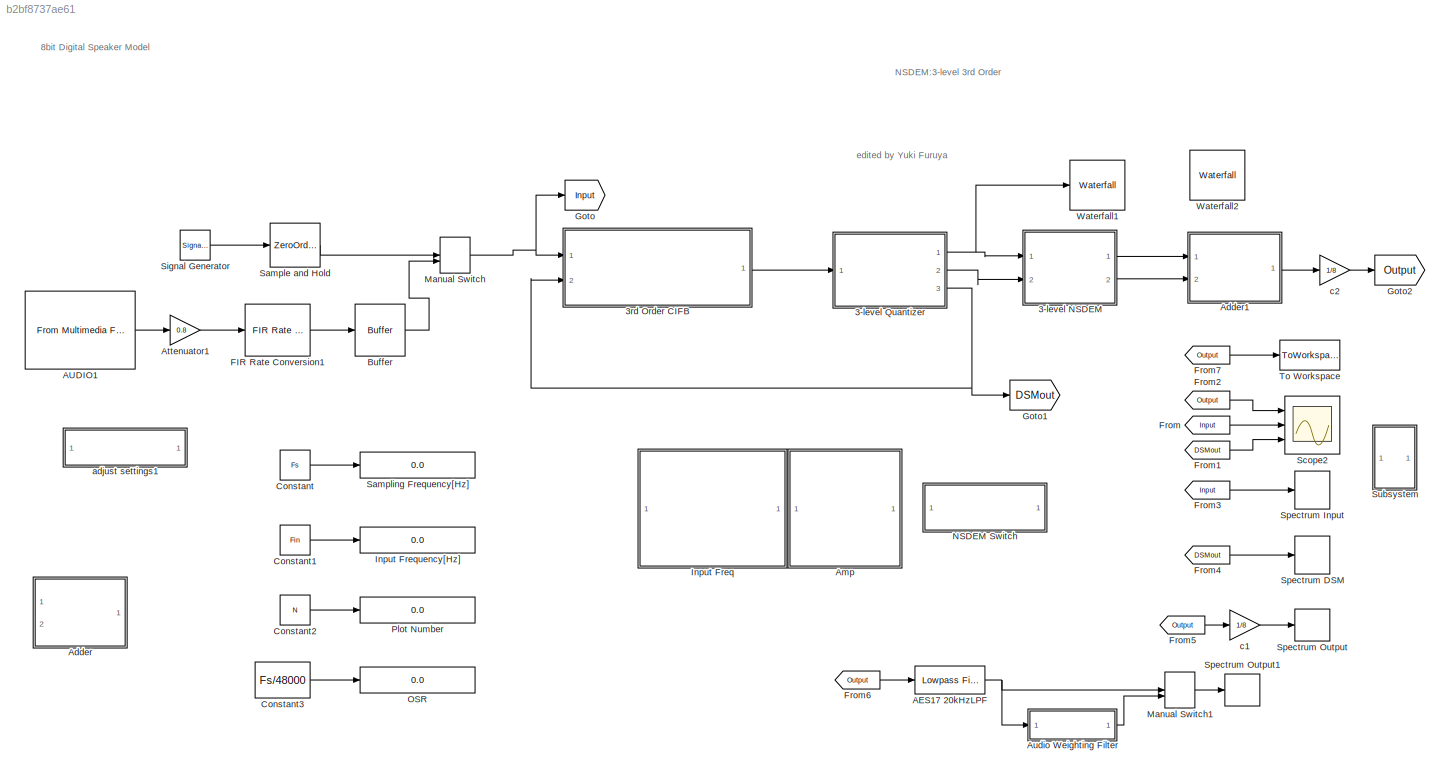
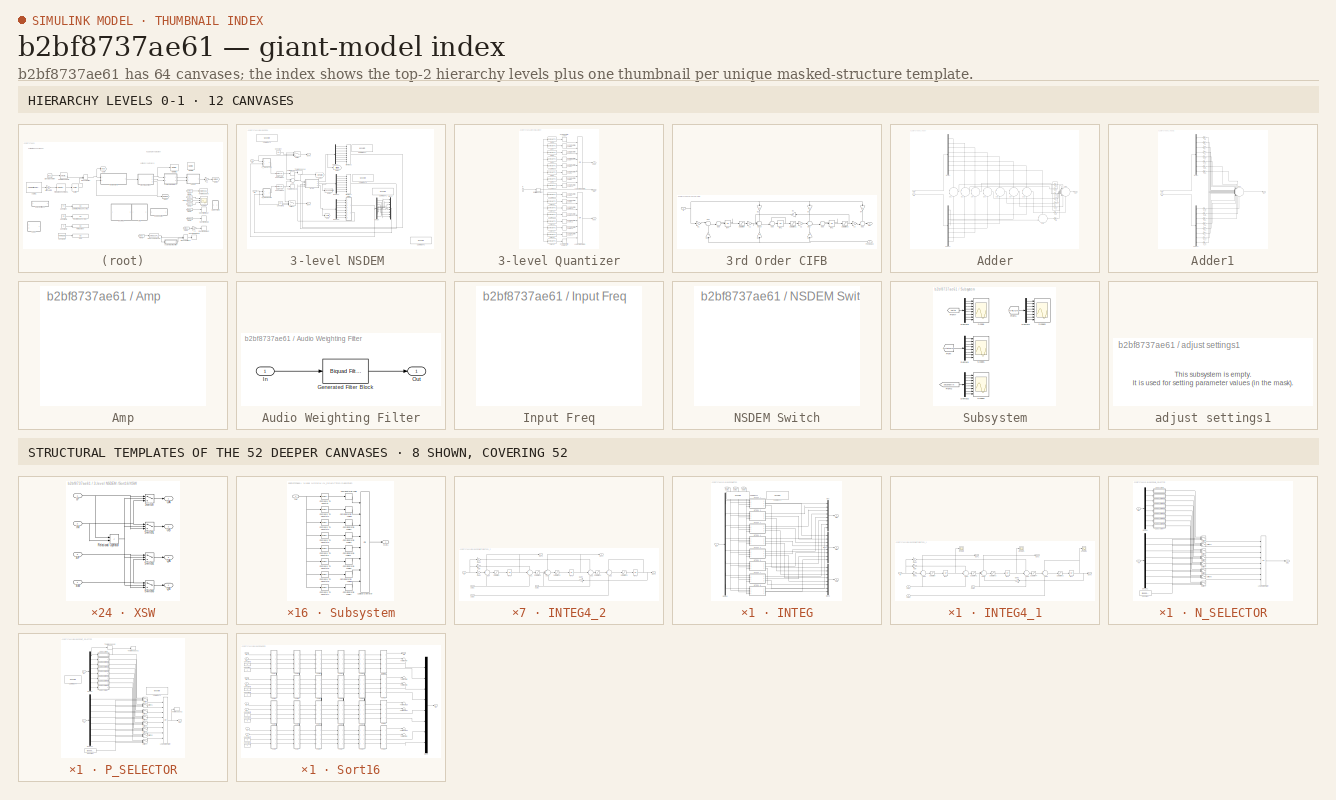
[diagram: thumbnail index - top-2 hierarchy levels (12 canvases) + 8 structural-template representatives of the remaining 52 canvases]
MODEL slx_b2bf8737ae61
KIND model
CONFIG AbsTol = auto
CONFIG EnableMultiTasking = on
CONFIG FixedStep = auto
CONFIG MaxStep = auto
CONFIG MinStep = auto
CONFIG PreLoadFcn = simtime=0.0034;
CONFIG RelTol = 1e-3
CONFIG SampleTimeConstraint = Unconstrained
CONFIG Solver = ode45
CONFIG SolverName = ode45
CONFIG StartTime = 0.0
CONFIG StopTime = simtime
BLOCK [SubSystem] 3-level NSDEM 
  Ports = [2, 2]
  RequestExecContextInheritance = off
  Variant = off
BLOCK [Sum] 3-level NSDEM /Add
  InputSameDT = off
  Inputs = +-
  OutDataTypeStr = Inherit: Inherit via internal rule
  Ports = [2, 1]
  SaturateOnIntegerOverflow = off
BLOCK [Reference] 3-level NSDEM /COMMENT1  REF=simulink/Model-Wide
Utilities/Model Info
  Ports = []
  SourceBlock = simulink/Model-Wide\nUtilities/Model Info
  SourceProductBaseCode = SL
  SourceProductName = Simulink
  SourceType = CMBlock
BLOCK [Reference] 3-level NSDEM /COMMENT2  REF=simulink/Model-Wide
Utilities/Model Info
  Ports = []
  SourceBlock = simulink/Model-Wide\nUtilities/Model Info
  SourceProductBaseCode = SL
  SourceProductName = Simulink
  SourceType = CMBlock
BLOCK [Reference] 3-level NSDEM /COMMENT3  REF=simulink/Model-Wide
Utilities/Model Info
  Ports = []
  SourceBlock = simulink/Model-Wide\nUtilities/Model Info
  SourceProductBaseCode = SL
  SourceProductName = Simulink
  SourceType = CMBlock
BLOCK [Reference] 3-level NSDEM /COMMENT4  REF=simulink/Model-Wide
Utilities/Model Info
  Ports = []
  SourceBlock = simulink/Model-Wide\nUtilities/Model Info
  SourceProductBaseCode = SL
  SourceProductName = Simulink
  SourceType = CMBlock
BLOCK [Reference] 3-level NSDEM /COMMENT5  REF=simulink/Model-Wide
Utilities/Model Info
  Ports = []
  SourceBlock = simulink/Model-Wide\nUtilities/Model Info
  SourceProductBaseCode = SL
  SourceProductName = Simulink
  SourceType = CMBlock
BLOCK [Constant] 3-level NSDEM /Constant
  Value = sw1
BLOCK [Constant] 3-level NSDEM /Constant1
  Value = sw1
BLOCK [DataTypeConversion] 3-level NSDEM /Data Type Conversion1
  OutDataTypeStr = double
  RndMeth = Floor
  SaturateOnIntegerOverflow = off
BLOCK [DataTypeConversion] 3-level NSDEM /Data Type Conversion2
  OutDataTypeStr = double
  RndMeth = Floor
  SaturateOnIntegerOverflow = off
BLOCK [Demux] 3-level NSDEM /Demux
  DisplayOption = bar
  Outputs = 8
  Ports = [1, 8]
BLOCK [Demux] 3-level NSDEM /Demux1
  DisplayOption = bar
  Outputs = 8
  Ports = [1, 8]
BLOCK [Demux] 3-level NSDEM /Demux2
  DisplayOption = bar
  Outputs = 8
  Ports = [1, 8]
BLOCK [Demux] 3-level NSDEM /Demux3
  DisplayOption = bar
  Outputs = 8
  Ports = [1, 8]
BLOCK [Goto] 3-level NSDEM /Goto
  GotoTag = sortin
  TagVisibility = global
BLOCK [Goto] 3-level NSDEM /Goto1
  GotoTag = firtstMIN
  TagVisibility = global
BLOCK [Goto] 3-level NSDEM /Goto2
  GotoTag = secondMIN
  TagVisibility = global
BLOCK [Goto] 3-level NSDEM /Goto3
  GotoTag = INTEGin
  TagVisibility = global
BLOCK [SubSystem] 3-level NSDEM /INTEG
  Ports = [4, 3]
  RequestExecContextInheritance = off
  Variant = off
BLOCK [Reference] 3-level NSDEM /INTEG/COMMENT1  REF=simulink/Model-Wide
Utilities/Model Info
  Ports = []
  SourceBlock = simulink/Model-Wide\nUtilities/Model Info
  SourceProductBaseCode = SL
  SourceProductName = Simulink
  SourceType = CMBlock
BLOCK [Reference] 3-level NSDEM /INTEG/COMMENT2  REF=simulink/Model-Wide
Utilities/Model Info
  Ports = []
  SourceBlock = simulink/Model-Wide\nUtilities/Model Info
  SourceProductBaseCode = SL
  SourceProductName = Simulink
  SourceType = CMBlock
BLOCK [Demux] 3-level NSDEM /INTEG/Demux
  DisplayOption = bar
  Outputs = 8
  Ports = [1, 8]
BLOCK [SubSystem] 3-level NSDEM /INTEG/INTEG4_1
  Ports = [4, 3]
  RequestExecContextInheritance = off
  Variant = off
BLOCK [Sum] 3-level NSDEM /INTEG/INTEG4_1/Add1
  IconShape = round
  InputSameDT = off
  Inputs = ++-
  OutDataTypeStr = Inherit: Inherit via internal rule
  Ports = [3, 1]
  SaturateOnIntegerOverflow = off
BLOCK [Sum] 3-level NSDEM /INTEG/INTEG4_1/Add2
  IconShape = round
  InputSameDT = off
  Inputs = ++-
  OutDataTypeStr = Inherit: Inherit via internal rule
  Ports = [3, 1]
  SaturateOnIntegerOverflow = off
BLOCK [Sum] 3-level NSDEM /INTEG/INTEG4_1/Add3
  IconShape = round
  InputSameDT = off
  Inputs = ++-
  OutDataTypeStr = Inherit: Inherit via internal rule
  Ports = [3, 1]
  SaturateOnIntegerOverflow = off
BLOCK [Sum] 3-level NSDEM /INTEG/INTEG4_1/Add4
  IconShape = round
  InputSameDT = off
  Inputs = ++-
  OutDataTypeStr = Inherit: Inherit via internal rule
  Ports = [3, 1]
  SaturateOnIntegerOverflow = off
BLOCK [Sum] 3-level NSDEM /INTEG/INTEG4_1/Add5
  IconShape = round
  InputSameDT = off
  Inputs = ++--
  OutDataTypeStr = Inherit: Inherit via internal rule
  Ports = [4, 1]
  SaturateOnIntegerOverflow = off
BLOCK [Gain] 3-level NSDEM /INTEG/INTEG4_1/Gain
  Gain = B
  OutDataTypeStr = Inherit: Inherit via internal rule
  ParamDataTypeStr = Inherit: Inherit via internal rule
  SaturateOnIntegerOverflow = off
BLOCK [Gain] 3-level NSDEM /INTEG/INTEG4_1/Gain1
  Gain = A
  OutDataTypeStr = Inherit: Inherit via internal rule
  ParamDataTypeStr = Inherit: Inherit via internal rule
  SaturateOnIntegerOverflow = off
BLOCK [Gain] 3-level NSDEM /INTEG/INTEG4_1/Gain2
  Gain = C
  OutDataTypeStr = Inherit: Inherit via internal rule
  ParamDataTypeStr = Inherit: Inherit via internal rule
  SaturateOnIntegerOverflow = off
BLOCK [Gain] 3-level NSDEM /INTEG/INTEG4_1/Gain3
  Gain = ns_fb
  OutDataTypeStr = Inherit: Inherit via internal rule
  ParamDataTypeStr = Inherit: Inherit via internal rule
  SaturateOnIntegerOverflow = off
BLOCK [Inport] 3-level NSDEM /INTEG/INTEG4_1/IN
  IconDisplay = Port number
BLOCK [UnitDelay] 3-level NSDEM /INTEG/INTEG4_1/INT1
  SampleTime = Ts
BLOCK [UnitDelay] 3-level NSDEM /INTEG/INTEG4_1/INT2
  SampleTime = Ts
BLOCK [UnitDelay] 3-level NSDEM /INTEG/INTEG4_1/INT3
  SampleTime = Ts
BLOCK [Outport] 3-level NSDEM /INTEG/INTEG4_1/OUT1
  IconDisplay = Port number
BLOCK [Outport] 3-level NSDEM /INTEG/INTEG4_1/OUT2
  IconDisplay = Port number
  Port = 2
BLOCK [Outport] 3-level NSDEM /INTEG/INTEG4_1/OUT3
  IconDisplay = Port number
  Port = 3
BLOCK [Inport] 3-level NSDEM /INTEG/INTEG4_1/SUB1
  IconDisplay = Port number
  Port = 2
BLOCK [Inport] 3-level NSDEM /INTEG/INTEG4_1/SUB2
  IconDisplay = Port number
  Port = 3
BLOCK [Inport] 3-level NSDEM /INTEG/INTEG4_1/SUB3
  IconDisplay = Port number
  Port = 4
BLOCK [Saturate] 3-level NSDEM /INTEG/INTEG4_1/Saturation
  InputPortMap = u0
  LowerLimit = -SAT
  Ports = [1, 1]
  UpperLimit = SAT
BLOCK [Saturate] 3-level NSDEM /INTEG/INTEG4_1/Saturation1
  InputPortMap = u0
  LowerLimit = -SAT
  Ports = [1, 1]
  UpperLimit = SAT
BLOCK [Saturate] 3-level NSDEM /INTEG/INTEG4_1/Saturation2
  InputPortMap = u0
  LowerLimit = -SAT
  Ports = [1, 1]
  UpperLimit = SAT
BLOCK [Saturate] 3-level NSDEM /INTEG/INTEG4_1/Saturation3
  InputPortMap = u0
  LowerLimit = -SAT
  Ports = [1, 1]
  UpperLimit = SAT
BLOCK [Saturate] 3-level NSDEM /INTEG/INTEG4_1/Saturation4
  InputPortMap = u0
  LowerLimit = -SAT
  Ports = [1, 1]
  UpperLimit = SAT
BLOCK [Scope] 3-level NSDEM /INTEG/INTEG4_1/Scope
  NumInputPorts = 1
  Ports = [1]
  ScopeSpecificationString = Simulink.scopes.TimeScopeBlockCfg('CurrentConfiguration', extmgr.ConfigurationSet(extmgr.Configuration('Core','General UI',true),extmgr.Configuration('Core','Source UI',true),extmgr.Configuration('Sources','WiredSimulink',true,'DataLoggingVariableName','ScopeData1'),extmgr.Configuration('Visuals','Time Domain',true,'SerializedDisplays',{struct('MinYLimReal','-1.375','MaxYLimReal','2.375','YLabelRe...<+1422ch>
BLOCK [Scope] 3-level NSDEM /INTEG/INTEG4_1/Scope1
  NumInputPorts = 1
  Ports = [1]
  ScopeSpecificationString = Simulink.scopes.TimeScopeBlockCfg('CurrentConfiguration', extmgr.ConfigurationSet(extmgr.Configuration('Core','General UI',true),extmgr.Configuration('Core','Source UI',true),extmgr.Configuration('Sources','WiredSimulink',true,'DataLoggingVariableName','ScopeData2'),extmgr.Configuration('Visuals','Time Domain',true,'SerializedDisplays',{struct('MinYLimReal','-14.125','MaxYLimReal','47.125','YLabel...<+1409ch>
BLOCK [Scope] 3-level NSDEM /INTEG/INTEG4_1/Scope2
  NumInputPorts = 1
  Ports = [1]
  ScopeSpecificationString = Simulink.scopes.TimeScopeBlockCfg('CurrentConfiguration', extmgr.ConfigurationSet(extmgr.Configuration('Core','General UI',true),extmgr.Configuration('Core','Source UI',true),extmgr.Configuration('Sources','WiredSimulink',true,'DataLoggingVariableName','ScopeData3'),extmgr.Configuration('Visuals','Time Domain',true,'SerializedDisplays',{struct('MinYLimReal','-192.25','MaxYLimReal','450.25','YLabel...<+1411ch>
BLOCK [SubSystem] 3-level NSDEM /INTEG/INTEG4_2
  Ports = [4, 3]
  RequestExecContextInheritance = off
  Variant = off
BLOCK [Sum] 3-level NSDEM /INTEG/INTEG4_2/Add1
  IconShape = round
  InputSameDT = off
  Inputs = ++-
  OutDataTypeStr = Inherit: Inherit via internal rule
  Ports = [3, 1]
  SaturateOnIntegerOverflow = off
BLOCK [Sum] 3-level NSDEM /INTEG/INTEG4_2/Add2
  IconShape = round
  InputSameDT = off
  Inputs = ++-
  OutDataTypeStr = Inherit: Inherit via internal rule
  Ports = [3, 1]
  SaturateOnIntegerOverflow = off
BLOCK [Sum] 3-level NSDEM /INTEG/INTEG4_2/Add3
  IconShape = round
  InputSameDT = off
  Inputs = ++-
  OutDataTypeStr = Inherit: Inherit via internal rule
  Ports = [3, 1]
  SaturateOnIntegerOverflow = off
BLOCK [Sum] 3-level NSDEM /INTEG/INTEG4_2/Add4
  IconShape = round
  InputSameDT = off
  Inputs = ++-
  OutDataTypeStr = Inherit: Inherit via internal rule
  Ports = [3, 1]
  SaturateOnIntegerOverflow = off
BLOCK [Sum] 3-level NSDEM /INTEG/INTEG4_2/Add5
  IconShape = round
  InputSameDT = off
  Inputs = ++--
  OutDataTypeStr = Inherit: Inherit via internal rule
  Ports = [4, 1]
  SaturateOnIntegerOverflow = off
BLOCK [Gain] 3-level NSDEM /INTEG/INTEG4_2/Gain
  Gain = B
  OutDataTypeStr = Inherit: Inherit via internal rule
  ParamDataTypeStr = Inherit: Inherit via internal rule
  SaturateOnIntegerOverflow = off
BLOCK [Gain] 3-level NSDEM /INTEG/INTEG4_2/Gain1
  Gain = A
  OutDataTypeStr = Inherit: Inherit via internal rule
  ParamDataTypeStr = Inherit: Inherit via internal rule
  SaturateOnIntegerOverflow = off
BLOCK [Gain] 3-level NSDEM /INTEG/INTEG4_2/Gain2
  Gain = C
  OutDataTypeStr = Inherit: Inherit via internal rule
  ParamDataTypeStr = Inherit: Inherit via internal rule
  SaturateOnIntegerOverflow = off
BLOCK [Gain] 3-level NSDEM /INTEG/INTEG4_2/Gain3
  Gain = ns_fb
  OutDataTypeStr = Inherit: Inherit via internal rule
  ParamDataTypeStr = Inherit: Inherit via internal rule
  SaturateOnIntegerOverflow = off
BLOCK [Inport] 3-level NSDEM /INTEG/INTEG4_2/IN
  IconDisplay = Port number
BLOCK [UnitDelay] 3-level NSDEM /INTEG/INTEG4_2/INT1
  SampleTime = Ts
BLOCK [UnitDelay] 3-level NSDEM /INTEG/INTEG4_2/INT2
  SampleTime = Ts
BLOCK [UnitDelay] 3-level NSDEM /INTEG/INTEG4_2/INT3
  SampleTime = Ts
BLOCK [Outport] 3-level NSDEM /INTEG/INTEG4_2/OUT1
  IconDisplay = Port number
BLOCK [Outport] 3-level NSDEM /INTEG/INTEG4_2/OUT2
  IconDisplay = Port number
  Port = 2
BLOCK [Outport] 3-level NSDEM /INTEG/INTEG4_2/OUT3
  IconDisplay = Port number
  Port = 3
BLOCK [Inport] 3-level NSDEM /INTEG/INTEG4_2/SUB1
  IconDisplay = Port number
  Port = 2
BLOCK [Inport] 3-level NSDEM /INTEG/INTEG4_2/SUB2
  IconDisplay = Port number
  Port = 3
BLOCK [Inport] 3-level NSDEM /INTEG/INTEG4_2/SUB3
  IconDisplay = Port number
  Port = 4
BLOCK [Saturate] 3-level NSDEM /INTEG/INTEG4_2/Saturation
  InputPortMap = u0
  LowerLimit = -SAT
  Ports = [1, 1]
  UpperLimit = SAT
BLOCK [Saturate] 3-level NSDEM /INTEG/INTEG4_2/Saturation1
  InputPortMap = u0
  LowerLimit = -SAT
  Ports = [1, 1]
  UpperLimit = SAT
BLOCK [Saturate] 3-level NSDEM /INTEG/INTEG4_2/Saturation2
  InputPortMap = u0
  LowerLimit = -SAT
  Ports = [1, 1]
  UpperLimit = SAT
BLOCK [Saturate] 3-level NSDEM /INTEG/INTEG4_2/Saturation3
  InputPortMap = u0
  LowerLimit = -SAT
  Ports = [1, 1]
  UpperLimit = SAT
BLOCK [Saturate] 3-level NSDEM /INTEG/INTEG4_2/Saturation4
  InputPortMap = u0
  LowerLimit = -SAT
  Ports = [1, 1]
  UpperLimit = SAT
BLOCK [SubSystem] 3-level NSDEM /INTEG/INTEG4_3
  Ports = [4, 3]
  RequestExecContextInheritance = off
  Variant = off
BLOCK [Sum] 3-level NSDEM /INTEG/INTEG4_3/Add1
  IconShape = round
  InputSameDT = off
  Inputs = ++-
  OutDataTypeStr = Inherit: Inherit via internal rule
  Ports = [3, 1]
  SaturateOnIntegerOverflow = off
BLOCK [Sum] 3-level NSDEM /INTEG/INTEG4_3/Add2
  IconShape = round
  InputSameDT = off
  Inputs = ++-
  OutDataTypeStr = Inherit: Inherit via internal rule
  Ports = [3, 1]
  SaturateOnIntegerOverflow = off
BLOCK [Sum] 3-level NSDEM /INTEG/INTEG4_3/Add3
  IconShape = round
  InputSameDT = off
  Inputs = ++-
  OutDataTypeStr = Inherit: Inherit via internal rule
  Ports = [3, 1]
  SaturateOnIntegerOverflow = off
BLOCK [Sum] 3-level NSDEM /INTEG/INTEG4_3/Add4
  IconShape = round
  InputSameDT = off
  Inputs = ++-
  OutDataTypeStr = Inherit: Inherit via internal rule
  Ports = [3, 1]
  SaturateOnIntegerOverflow = off
BLOCK [Sum] 3-level NSDEM /INTEG/INTEG4_3/Add5
  IconShape = round
  InputSameDT = off
  Inputs = ++--
  OutDataTypeStr = Inherit: Inherit via internal rule
  Ports = [4, 1]
  SaturateOnIntegerOverflow = off
BLOCK [Gain] 3-level NSDEM /INTEG/INTEG4_3/Gain
  Gain = B
  OutDataTypeStr = Inherit: Inherit via internal rule
  ParamDataTypeStr = Inherit: Inherit via internal rule
  SaturateOnIntegerOverflow = off
BLOCK [Gain] 3-level NSDEM /INTEG/INTEG4_3/Gain1
  Gain = A
  OutDataTypeStr = Inherit: Inherit via internal rule
  ParamDataTypeStr = Inherit: Inherit via internal rule
  SaturateOnIntegerOverflow = off
BLOCK [Gain] 3-level NSDEM /INTEG/INTEG4_3/Gain2
  Gain = C
  OutDataTypeStr = Inherit: Inherit via internal rule
  ParamDataTypeStr = Inherit: Inherit via internal rule
  SaturateOnIntegerOverflow = off
BLOCK [Gain] 3-level NSDEM /INTEG/INTEG4_3/Gain3
  Gain = ns_fb
  OutDataTypeStr = Inherit: Inherit via internal rule
  ParamDataTypeStr = Inherit: Inherit via internal rule
  SaturateOnIntegerOverflow = off
BLOCK [Inport] 3-level NSDEM /INTEG/INTEG4_3/IN
  IconDisplay = Port number
BLOCK [UnitDelay] 3-level NSDEM /INTEG/INTEG4_3/INT1
  SampleTime = Ts
BLOCK [UnitDelay] 3-level NSDEM /INTEG/INTEG4_3/INT2
  SampleTime = Ts
BLOCK [UnitDelay] 3-level NSDEM /INTEG/INTEG4_3/INT3
  SampleTime = Ts
BLOCK [Outport] 3-level NSDEM /INTEG/INTEG4_3/OUT1
  IconDisplay = Port number
BLOCK [Outport] 3-level NSDEM /INTEG/INTEG4_3/OUT2
  IconDisplay = Port number
  Port = 2
BLOCK [Outport] 3-level NSDEM /INTEG/INTEG4_3/OUT3
  IconDisplay = Port number
  Port = 3
BLOCK [Inport] 3-level NSDEM /INTEG/INTEG4_3/SUB1
  IconDisplay = Port number
  Port = 2
BLOCK [Inport] 3-level NSDEM /INTEG/INTEG4_3/SUB2
  IconDisplay = Port number
  Port = 3
BLOCK [Inport] 3-level NSDEM /INTEG/INTEG4_3/SUB3
  IconDisplay = Port number
  Port = 4
BLOCK [Saturate] 3-level NSDEM /INTEG/INTEG4_3/Saturation
  InputPortMap = u0
  LowerLimit = -SAT
  Ports = [1, 1]
  UpperLimit = SAT
BLOCK [Saturate] 3-level NSDEM /INTEG/INTEG4_3/Saturation1
  InputPortMap = u0
  LowerLimit = -SAT
  Ports = [1, 1]
  UpperLimit = SAT
BLOCK [Saturate] 3-level NSDEM /INTEG/INTEG4_3/Saturation2
  InputPortMap = u0
  LowerLimit = -SAT
  Ports = [1, 1]
  UpperLimit = SAT
BLOCK [Saturate] 3-level NSDEM /INTEG/INTEG4_3/Saturation3
  InputPortMap = u0
  LowerLimit = -SAT
  Ports = [1, 1]
  UpperLimit = SAT
BLOCK [Saturate] 3-level NSDEM /INTEG/INTEG4_3/Saturation4
  InputPortMap = u0
  LowerLimit = -SAT
  Ports = [1, 1]
  UpperLimit = SAT
BLOCK [SubSystem] 3-level NSDEM /INTEG/INTEG4_4
  Ports = [4, 3]
  RequestExecContextInheritance = off
  Variant = off
BLOCK [Sum] 3-level NSDEM /INTEG/INTEG4_4/Add1
  IconShape = round
  InputSameDT = off
  Inputs = ++-
  OutDataTypeStr = Inherit: Inherit via internal rule
  Ports = [3, 1]
  SaturateOnIntegerOverflow = off
BLOCK [Sum] 3-level NSDEM /INTEG/INTEG4_4/Add2
  IconShape = round
  InputSameDT = off
  Inputs = ++-
  OutDataTypeStr = Inherit: Inherit via internal rule
  Ports = [3, 1]
  SaturateOnIntegerOverflow = off
BLOCK [Sum] 3-level NSDEM /INTEG/INTEG4_4/Add3
  IconShape = round
  InputSameDT = off
  Inputs = ++-
  OutDataTypeStr = Inherit: Inherit via internal rule
  Ports = [3, 1]
  SaturateOnIntegerOverflow = off
BLOCK [Sum] 3-level NSDEM /INTEG/INTEG4_4/Add4
  IconShape = round
  InputSameDT = off
  Inputs = ++-
  OutDataTypeStr = Inherit: Inherit via internal rule
  Ports = [3, 1]
  SaturateOnIntegerOverflow = off
BLOCK [Sum] 3-level NSDEM /INTEG/INTEG4_4/Add5
  IconShape = round
  InputSameDT = off
  Inputs = ++--
  OutDataTypeStr = Inherit: Inherit via internal rule
  Ports = [4, 1]
  SaturateOnIntegerOverflow = off
BLOCK [Gain] 3-level NSDEM /INTEG/INTEG4_4/Gain
  Gain = B
  OutDataTypeStr = Inherit: Inherit via internal rule
  ParamDataTypeStr = Inherit: Inherit via internal rule
  SaturateOnIntegerOverflow = off
BLOCK [Gain] 3-level NSDEM /INTEG/INTEG4_4/Gain1
  Gain = A
  OutDataTypeStr = Inherit: Inherit via internal rule
  ParamDataTypeStr = Inherit: Inherit via internal rule
  SaturateOnIntegerOverflow = off
BLOCK [Gain] 3-level NSDEM /INTEG/INTEG4_4/Gain2
  Gain = C
  OutDataTypeStr = Inherit: Inherit via internal rule
  ParamDataTypeStr = Inherit: Inherit via internal rule
  SaturateOnIntegerOverflow = off
BLOCK [Gain] 3-level NSDEM /INTEG/INTEG4_4/Gain3
  Gain = ns_fb
  OutDataTypeStr = Inherit: Inherit via internal rule
  ParamDataTypeStr = Inherit: Inherit via internal rule
  SaturateOnIntegerOverflow = off
BLOCK [Inport] 3-level NSDEM /INTEG/INTEG4_4/IN
  IconDisplay = Port number
BLOCK [UnitDelay] 3-level NSDEM /INTEG/INTEG4_4/INT1
  SampleTime = Ts
BLOCK [UnitDelay] 3-level NSDEM /INTEG/INTEG4_4/INT2
  SampleTime = Ts
BLOCK [UnitDelay] 3-level NSDEM /INTEG/INTEG4_4/INT3
  SampleTime = Ts
BLOCK [Outport] 3-level NSDEM /INTEG/INTEG4_4/OUT1
  IconDisplay = Port number
BLOCK [Outport] 3-level NSDEM /INTEG/INTEG4_4/OUT2
  IconDisplay = Port number
  Port = 2
BLOCK [Outport] 3-level NSDEM /INTEG/INTEG4_4/OUT3
  IconDisplay = Port number
  Port = 3
BLOCK [Inport] 3-level NSDEM /INTEG/INTEG4_4/SUB1
  IconDisplay = Port number
  Port = 2
BLOCK [Inport] 3-level NSDEM /INTEG/INTEG4_4/SUB2
  IconDisplay = Port number
  Port = 3
BLOCK [Inport] 3-level NSDEM /INTEG/INTEG4_4/SUB3
  IconDisplay = Port number
  Port = 4
BLOCK [Saturate] 3-level NSDEM /INTEG/INTEG4_4/Saturation
  InputPortMap = u0
  LowerLimit = -SAT
  Ports = [1, 1]
  UpperLimit = SAT
BLOCK [Saturate] 3-level NSDEM /INTEG/INTEG4_4/Saturation1
  InputPortMap = u0
  LowerLimit = -SAT
  Ports = [1, 1]
  UpperLimit = SAT
BLOCK [Saturate] 3-level NSDEM /INTEG/INTEG4_4/Saturation2
  InputPortMap = u0
  LowerLimit = -SAT
  Ports = [1, 1]
  UpperLimit = SAT
BLOCK [Saturate] 3-level NSDEM /INTEG/INTEG4_4/Saturation3
  InputPortMap = u0
  LowerLimit = -SAT
  Ports = [1, 1]
  UpperLimit = SAT
BLOCK [Saturate] 3-level NSDEM /INTEG/INTEG4_4/Saturation4
  InputPortMap = u0
  LowerLimit = -SAT
  Ports = [1, 1]
  UpperLimit = SAT
BLOCK [SubSystem] 3-level NSDEM /INTEG/INTEG4_5
  Ports = [4, 3]
  RequestExecContextInheritance = off
  Variant = off
BLOCK [Sum] 3-level NSDEM /INTEG/INTEG4_5/Add1
  IconShape = round
  InputSameDT = off
  Inputs = ++-
  OutDataTypeStr = Inherit: Inherit via internal rule
  Ports = [3, 1]
  SaturateOnIntegerOverflow = off
BLOCK [Sum] 3-level NSDEM /INTEG/INTEG4_5/Add2
  IconShape = round
  InputSameDT = off
  Inputs = ++-
  OutDataTypeStr = Inherit: Inherit via internal rule
  Ports = [3, 1]
  SaturateOnIntegerOverflow = off
BLOCK [Sum] 3-level NSDEM /INTEG/INTEG4_5/Add3
  IconShape = round
  InputSameDT = off
  Inputs = ++-
  OutDataTypeStr = Inherit: Inherit via internal rule
  Ports = [3, 1]
  SaturateOnIntegerOverflow = off
BLOCK [Sum] 3-level NSDEM /INTEG/INTEG4_5/Add4
  IconShape = round
  InputSameDT = off
  Inputs = ++-
  OutDataTypeStr = Inherit: Inherit via internal rule
  Ports = [3, 1]
  SaturateOnIntegerOverflow = off
BLOCK [Sum] 3-level NSDEM /INTEG/INTEG4_5/Add5
  IconShape = round
  InputSameDT = off
  Inputs = ++--
  OutDataTypeStr = Inherit: Inherit via internal rule
  Ports = [4, 1]
  SaturateOnIntegerOverflow = off
BLOCK [Gain] 3-level NSDEM /INTEG/INTEG4_5/Gain
  Gain = B
  OutDataTypeStr = Inherit: Inherit via internal rule
  ParamDataTypeStr = Inherit: Inherit via internal rule
  SaturateOnIntegerOverflow = off
BLOCK [Gain] 3-level NSDEM /INTEG/INTEG4_5/Gain1
  Gain = A
  OutDataTypeStr = Inherit: Inherit via internal rule
  ParamDataTypeStr = Inherit: Inherit via internal rule
  SaturateOnIntegerOverflow = off
BLOCK [Gain] 3-level NSDEM /INTEG/INTEG4_5/Gain2
  Gain = C
  OutDataTypeStr = Inherit: Inherit via internal rule
  ParamDataTypeStr = Inherit: Inherit via internal rule
  SaturateOnIntegerOverflow = off
BLOCK [Gain] 3-level NSDEM /INTEG/INTEG4_5/Gain3
  Gain = ns_fb
  OutDataTypeStr = Inherit: Inherit via internal rule
  ParamDataTypeStr = Inherit: Inherit via internal rule
  SaturateOnIntegerOverflow = off
BLOCK [Inport] 3-level NSDEM /INTEG/INTEG4_5/IN
  IconDisplay = Port number
BLOCK [UnitDelay] 3-level NSDEM /INTEG/INTEG4_5/INT1
  SampleTime = Ts
BLOCK [UnitDelay] 3-level NSDEM /INTEG/INTEG4_5/INT2
  SampleTime = Ts
BLOCK [UnitDelay] 3-level NSDEM /INTEG/INTEG4_5/INT3
  SampleTime = Ts
BLOCK [Outport] 3-level NSDEM /INTEG/INTEG4_5/OUT1
  IconDisplay = Port number
BLOCK [Outport] 3-level NSDEM /INTEG/INTEG4_5/OUT2
  IconDisplay = Port number
  Port = 2
BLOCK [Outport] 3-level NSDEM /INTEG/INTEG4_5/OUT3
  IconDisplay = Port number
  Port = 3
BLOCK [Inport] 3-level NSDEM /INTEG/INTEG4_5/SUB1
  IconDisplay = Port number
  Port = 2
BLOCK [Inport] 3-level NSDEM /INTEG/INTEG4_5/SUB2
  IconDisplay = Port number
  Port = 3
BLOCK [Inport] 3-level NSDEM /INTEG/INTEG4_5/SUB3
  IconDisplay = Port number
  Port = 4
BLOCK [Saturate] 3-level NSDEM /INTEG/INTEG4_5/Saturation
  InputPortMap = u0
  LowerLimit = -SAT
  Ports = [1, 1]
  UpperLimit = SAT
BLOCK [Saturate] 3-level NSDEM /INTEG/INTEG4_5/Saturation1
  InputPortMap = u0
  LowerLimit = -SAT
  Ports = [1, 1]
  UpperLimit = SAT
BLOCK [Saturate] 3-level NSDEM /INTEG/INTEG4_5/Saturation2
  InputPortMap = u0
  LowerLimit = -SAT
  Ports = [1, 1]
  UpperLimit = SAT
BLOCK [Saturate] 3-level NSDEM /INTEG/INTEG4_5/Saturation3
  InputPortMap = u0
  LowerLimit = -SAT
  Ports = [1, 1]
  UpperLimit = SAT
BLOCK [Saturate] 3-level NSDEM /INTEG/INTEG4_5/Saturation4
  InputPortMap = u0
  LowerLimit = -SAT
  Ports = [1, 1]
  UpperLimit = SAT
BLOCK [SubSystem] 3-level NSDEM /INTEG/INTEG4_6
  Ports = [4, 3]
  RequestExecContextInheritance = off
  Variant = off
BLOCK [Sum] 3-level NSDEM /INTEG/INTEG4_6/Add1
  IconShape = round
  InputSameDT = off
  Inputs = ++-
  OutDataTypeStr = Inherit: Inherit via internal rule
  Ports = [3, 1]
  SaturateOnIntegerOverflow = off
BLOCK [Sum] 3-level NSDEM /INTEG/INTEG4_6/Add2
  IconShape = round
  InputSameDT = off
  Inputs = ++-
  OutDataTypeStr = Inherit: Inherit via internal rule
  Ports = [3, 1]
  SaturateOnIntegerOverflow = off
BLOCK [Sum] 3-level NSDEM /INTEG/INTEG4_6/Add3
  IconShape = round
  InputSameDT = off
  Inputs = ++-
  OutDataTypeStr = Inherit: Inherit via internal rule
  Ports = [3, 1]
  SaturateOnIntegerOverflow = off
BLOCK [Sum] 3-level NSDEM /INTEG/INTEG4_6/Add4
  IconShape = round
  InputSameDT = off
  Inputs = ++-
  OutDataTypeStr = Inherit: Inherit via internal rule
  Ports = [3, 1]
  SaturateOnIntegerOverflow = off
BLOCK [Sum] 3-level NSDEM /INTEG/INTEG4_6/Add5
  IconShape = round
  InputSameDT = off
  Inputs = ++--
  OutDataTypeStr = Inherit: Inherit via internal rule
  Ports = [4, 1]
  SaturateOnIntegerOverflow = off
BLOCK [Gain] 3-level NSDEM /INTEG/INTEG4_6/Gain
  Gain = B
  OutDataTypeStr = Inherit: Inherit via internal rule
  ParamDataTypeStr = Inherit: Inherit via internal rule
  SaturateOnIntegerOverflow = off
BLOCK [Gain] 3-level NSDEM /INTEG/INTEG4_6/Gain1
  Gain = A
  OutDataTypeStr = Inherit: Inherit via internal rule
  ParamDataTypeStr = Inherit: Inherit via internal rule
  SaturateOnIntegerOverflow = off
BLOCK [Gain] 3-level NSDEM /INTEG/INTEG4_6/Gain2
  Gain = C
  OutDataTypeStr = Inherit: Inherit via internal rule
  ParamDataTypeStr = Inherit: Inherit via internal rule
  SaturateOnIntegerOverflow = off
BLOCK [Gain] 3-level NSDEM /INTEG/INTEG4_6/Gain3
  Gain = ns_fb
  OutDataTypeStr = Inherit: Inherit via internal rule
  ParamDataTypeStr = Inherit: Inherit via internal rule
  SaturateOnIntegerOverflow = off
BLOCK [Inport] 3-level NSDEM /INTEG/INTEG4_6/IN
  IconDisplay = Port number
BLOCK [UnitDelay] 3-level NSDEM /INTEG/INTEG4_6/INT1
  SampleTime = Ts
BLOCK [UnitDelay] 3-level NSDEM /INTEG/INTEG4_6/INT2
  SampleTime = Ts
BLOCK [UnitDelay] 3-level NSDEM /INTEG/INTEG4_6/INT3
  SampleTime = Ts
BLOCK [Outport] 3-level NSDEM /INTEG/INTEG4_6/OUT1
  IconDisplay = Port number
BLOCK [Outport] 3-level NSDEM /INTEG/INTEG4_6/OUT2
  IconDisplay = Port number
  Port = 2
BLOCK [Outport] 3-level NSDEM /INTEG/INTEG4_6/OUT3
  IconDisplay = Port number
  Port = 3
BLOCK [Inport] 3-level NSDEM /INTEG/INTEG4_6/SUB1
  IconDisplay = Port number
  Port = 2
BLOCK [Inport] 3-level NSDEM /INTEG/INTEG4_6/SUB2
  IconDisplay = Port number
  Port = 3
BLOCK [Inport] 3-level NSDEM /INTEG/INTEG4_6/SUB3
  IconDisplay = Port number
  Port = 4
BLOCK [Saturate] 3-level NSDEM /INTEG/INTEG4_6/Saturation
  InputPortMap = u0
  LowerLimit = -SAT
  Ports = [1, 1]
  UpperLimit = SAT
BLOCK [Saturate] 3-level NSDEM /INTEG/INTEG4_6/Saturation1
  InputPortMap = u0
  LowerLimit = -SAT
  Ports = [1, 1]
  UpperLimit = SAT
BLOCK [Saturate] 3-level NSDEM /INTEG/INTEG4_6/Saturation2
  InputPortMap = u0
  LowerLimit = -SAT
  Ports = [1, 1]
  UpperLimit = SAT
BLOCK [Saturate] 3-level NSDEM /INTEG/INTEG4_6/Saturation3
  InputPortMap = u0
  LowerLimit = -SAT
  Ports = [1, 1]
  UpperLimit = SAT
BLOCK [Saturate] 3-level NSDEM /INTEG/INTEG4_6/Saturation4
  InputPortMap = u0
  LowerLimit = -SAT
  Ports = [1, 1]
  UpperLimit = SAT
BLOCK [SubSystem] 3-level NSDEM /INTEG/INTEG4_7
  Ports = [4, 3]
  RequestExecContextInheritance = off
  Variant = off
BLOCK [Sum] 3-level NSDEM /INTEG/INTEG4_7/Add1
  IconShape = round
  InputSameDT = off
  Inputs = ++-
  OutDataTypeStr = Inherit: Inherit via internal rule
  Ports = [3, 1]
  SaturateOnIntegerOverflow = off
BLOCK [Sum] 3-level NSDEM /INTEG/INTEG4_7/Add2
  IconShape = round
  InputSameDT = off
  Inputs = ++-
  OutDataTypeStr = Inherit: Inherit via internal rule
  Ports = [3, 1]
  SaturateOnIntegerOverflow = off
BLOCK [Sum] 3-level NSDEM /INTEG/INTEG4_7/Add3
  IconShape = round
  InputSameDT = off
  Inputs = ++-
  OutDataTypeStr = Inherit: Inherit via internal rule
  Ports = [3, 1]
  SaturateOnIntegerOverflow = off
BLOCK [Sum] 3-level NSDEM /INTEG/INTEG4_7/Add4
  IconShape = round
  InputSameDT = off
  Inputs = ++-
  OutDataTypeStr = Inherit: Inherit via internal rule
  Ports = [3, 1]
  SaturateOnIntegerOverflow = off
BLOCK [Sum] 3-level NSDEM /INTEG/INTEG4_7/Add5
  IconShape = round
  InputSameDT = off
  Inputs = ++--
  OutDataTypeStr = Inherit: Inherit via internal rule
  Ports = [4, 1]
  SaturateOnIntegerOverflow = off
BLOCK [Gain] 3-level NSDEM /INTEG/INTEG4_7/Gain
  Gain = B
  OutDataTypeStr = Inherit: Inherit via internal rule
  ParamDataTypeStr = Inherit: Inherit via internal rule
  SaturateOnIntegerOverflow = off
BLOCK [Gain] 3-level NSDEM /INTEG/INTEG4_7/Gain1
  Gain = A
  OutDataTypeStr = Inherit: Inherit via internal rule
  ParamDataTypeStr = Inherit: Inherit via internal rule
  SaturateOnIntegerOverflow = off
BLOCK [Gain] 3-level NSDEM /INTEG/INTEG4_7/Gain2
  Gain = C
  OutDataTypeStr = Inherit: Inherit via internal rule
  ParamDataTypeStr = Inherit: Inherit via internal rule
  SaturateOnIntegerOverflow = off
BLOCK [Gain] 3-level NSDEM /INTEG/INTEG4_7/Gain3
  Gain = ns_fb
  OutDataTypeStr = Inherit: Inherit via internal rule
  ParamDataTypeStr = Inherit: Inherit via internal rule
  SaturateOnIntegerOverflow = off
BLOCK [Inport] 3-level NSDEM /INTEG/INTEG4_7/IN
  IconDisplay = Port number
BLOCK [UnitDelay] 3-level NSDEM /INTEG/INTEG4_7/INT1
  SampleTime = Ts
BLOCK [UnitDelay] 3-level NSDEM /INTEG/INTEG4_7/INT2
  SampleTime = Ts
BLOCK [UnitDelay] 3-level NSDEM /INTEG/INTEG4_7/INT3
  SampleTime = Ts
BLOCK [Outport] 3-level NSDEM /INTEG/INTEG4_7/OUT1
  IconDisplay = Port number
BLOCK [Outport] 3-level NSDEM /INTEG/INTEG4_7/OUT2
  IconDisplay = Port number
  Port = 2
BLOCK [Outport] 3-level NSDEM /INTEG/INTEG4_7/OUT3
  IconDisplay = Port number
  Port = 3
BLOCK [Inport] 3-level NSDEM /INTEG/INTEG4_7/SUB1
  IconDisplay = Port number
  Port = 2
BLOCK [Inport] 3-level NSDEM /INTEG/INTEG4_7/SUB2
  IconDisplay = Port number
  Port = 3
BLOCK [Inport] 3-level NSDEM /INTEG/INTEG4_7/SUB3
  IconDisplay = Port number
  Port = 4
BLOCK [Saturate] 3-level NSDEM /INTEG/INTEG4_7/Saturation
  InputPortMap = u0
  LowerLimit = -SAT
  Ports = [1, 1]
  UpperLimit = SAT
BLOCK [Saturate] 3-level NSDEM /INTEG/INTEG4_7/Saturation1
  InputPortMap = u0
  LowerLimit = -SAT
  Ports = [1, 1]
  UpperLimit = SAT
BLOCK [Saturate] 3-level NSDEM /INTEG/INTEG4_7/Saturation2
  InputPortMap = u0
  LowerLimit = -SAT
  Ports = [1, 1]
  UpperLimit = SAT
BLOCK [Saturate] 3-level NSDEM /INTEG/INTEG4_7/Saturation3
  InputPortMap = u0
  LowerLimit = -SAT
  Ports = [1, 1]
  UpperLimit = SAT
BLOCK [Saturate] 3-level NSDEM /INTEG/INTEG4_7/Saturation4
  InputPortMap = u0
  LowerLimit = -SAT
  Ports = [1, 1]
  UpperLimit = SAT
BLOCK [SubSystem] 3-level NSDEM /INTEG/INTEG4_8
  Ports = [4, 3]
  RequestExecContextInheritance = off
  Variant = off
BLOCK [Sum] 3-level NSDEM /INTEG/INTEG4_8/Add1
  IconShape = round
  InputSameDT = off
  Inputs = ++-
  OutDataTypeStr = Inherit: Inherit via internal rule
  Ports = [3, 1]
  SaturateOnIntegerOverflow = off
BLOCK [Sum] 3-level NSDEM /INTEG/INTEG4_8/Add2
  IconShape = round
  InputSameDT = off
  Inputs = ++-
  OutDataTypeStr = Inherit: Inherit via internal rule
  Ports = [3, 1]
  SaturateOnIntegerOverflow = off
BLOCK [Sum] 3-level NSDEM /INTEG/INTEG4_8/Add3
  IconShape = round
  InputSameDT = off
  Inputs = ++-
  OutDataTypeStr = Inherit: Inherit via internal rule
  Ports = [3, 1]
  SaturateOnIntegerOverflow = off
BLOCK [Sum] 3-level NSDEM /INTEG/INTEG4_8/Add4
  IconShape = round
  InputSameDT = off
  Inputs = ++-
  OutDataTypeStr = Inherit: Inherit via internal rule
  Ports = [3, 1]
  SaturateOnIntegerOverflow = off
BLOCK [Sum] 3-level NSDEM /INTEG/INTEG4_8/Add5
  IconShape = round
  InputSameDT = off
  Inputs = ++--
  OutDataTypeStr = Inherit: Inherit via internal rule
  Ports = [4, 1]
  SaturateOnIntegerOverflow = off
BLOCK [Gain] 3-level NSDEM /INTEG/INTEG4_8/Gain
  Gain = B
  OutDataTypeStr = Inherit: Inherit via internal rule
  ParamDataTypeStr = Inherit: Inherit via internal rule
  SaturateOnIntegerOverflow = off
BLOCK [Gain] 3-level NSDEM /INTEG/INTEG4_8/Gain1
  Gain = A
  OutDataTypeStr = Inherit: Inherit via internal rule
  ParamDataTypeStr = Inherit: Inherit via internal rule
  SaturateOnIntegerOverflow = off
BLOCK [Gain] 3-level NSDEM /INTEG/INTEG4_8/Gain2
  Gain = C
  OutDataTypeStr = Inherit: Inherit via internal rule
  ParamDataTypeStr = Inherit: Inherit via internal rule
  SaturateOnIntegerOverflow = off
BLOCK [Gain] 3-level NSDEM /INTEG/INTEG4_8/Gain3
  Gain = ns_fb
  OutDataTypeStr = Inherit: Inherit via internal rule
  ParamDataTypeStr = Inherit: Inherit via internal rule
  SaturateOnIntegerOverflow = off
BLOCK [Inport] 3-level NSDEM /INTEG/INTEG4_8/IN
  IconDisplay = Port number
BLOCK [UnitDelay] 3-level NSDEM /INTEG/INTEG4_8/INT1
  SampleTime = Ts
BLOCK [UnitDelay] 3-level NSDEM /INTEG/INTEG4_8/INT2
  SampleTime = Ts
BLOCK [UnitDelay] 3-level NSDEM /INTEG/INTEG4_8/INT3
  SampleTime = Ts
BLOCK [Outport] 3-level NSDEM /INTEG/INTEG4_8/OUT1
  IconDisplay = Port number
BLOCK [Outport] 3-level NSDEM /INTEG/INTEG4_8/OUT2
  IconDisplay = Port number
  Port = 2
BLOCK [Outport] 3-level NSDEM /INTEG/INTEG4_8/OUT3
  IconDisplay = Port number
  Port = 3
BLOCK [Inport] 3-level NSDEM /INTEG/INTEG4_8/SUB1
  IconDisplay = Port number
  Port = 2
BLOCK [Inport] 3-level NSDEM /INTEG/INTEG4_8/SUB2
  IconDisplay = Port number
  Port = 3
BLOCK [Inport] 3-level NSDEM /INTEG/INTEG4_8/SUB3
  IconDisplay = Port number
  Port = 4
BLOCK [Saturate] 3-level NSDEM /INTEG/INTEG4_8/Saturation
  InputPortMap = u0
  LowerLimit = -SAT
  Ports = [1, 1]
  UpperLimit = SAT
BLOCK [Saturate] 3-level NSDEM /INTEG/INTEG4_8/Saturation1
  InputPortMap = u0
  LowerLimit = -SAT
  Ports = [1, 1]
  UpperLimit = SAT
BLOCK [Saturate] 3-level NSDEM /INTEG/INTEG4_8/Saturation2
  InputPortMap = u0
  LowerLimit = -SAT
  Ports = [1, 1]
  UpperLimit = SAT
BLOCK [Saturate] 3-level NSDEM /INTEG/INTEG4_8/Saturation3
  InputPortMap = u0
  LowerLimit = -SAT
  Ports = [1, 1]
  UpperLimit = SAT
BLOCK [Saturate] 3-level NSDEM /INTEG/INTEG4_8/Saturation4
  InputPortMap = u0
  LowerLimit = -SAT
  Ports = [1, 1]
  UpperLimit = SAT
BLOCK [Inport] 3-level NSDEM /INTEG/In1
  IconDisplay = Port number
BLOCK [Outport] 3-level NSDEM /INTEG/MIN1
  IconDisplay = Port number
BLOCK [Outport] 3-level NSDEM /INTEG/MIN2
  IconDisplay = Port number
  Port = 2
BLOCK [Mux] 3-level NSDEM /INTEG/Mux
  DisplayOption = bar
  Inputs = 8
  Ports = [8, 1]
BLOCK [Mux] 3-level NSDEM /INTEG/Mux1
  DisplayOption = bar
  Inputs = 8
  Ports = [8, 1]
BLOCK [Mux] 3-level NSDEM /INTEG/Mux2
  DisplayOption = bar
  Inputs = 8
  Ports = [8, 1]
BLOCK [Outport] 3-level NSDEM /INTEG/Out1
  IconDisplay = Port number
  Port = 3
BLOCK [Inport] 3-level NSDEM /INTEG/SUB1
  IconDisplay = Port number
  Port = 2
BLOCK [Inport] 3-level NSDEM /INTEG/SUB2
  IconDisplay = Port number
  Port = 3
BLOCK [Inport] 3-level NSDEM /INTEG/SUB3
  IconDisplay = Port number
  Port = 4
BLOCK [MinMax] 3-level NSDEM /MinMax1
  InputSameDT = off
  Inputs = 8
  Ports = [8, 1]
  SaturateOnIntegerOverflow = off
BLOCK [MinMax] 3-level NSDEM /MinMax2
  InputSameDT = off
  Inputs = 8
  Ports = [8, 1]
  SaturateOnIntegerOverflow = off
BLOCK [Mux] 3-level NSDEM /Mux2
  DisplayOption = bar
  Inputs = 8
  Ports = [8, 1]
BLOCK [SubSystem] 3-level NSDEM /N_SELECTOR
  Ports = [2, 1]
  RequestExecContextInheritance = off
  Variant = off
BLOCK [Constant] 3-level NSDEM /N_SELECTOR/Constant
  Value = [0 0 0 0 0 0 0 0]
BLOCK [Demux] 3-level NSDEM /N_SELECTOR/Demux
  DisplayOption = bar
  Outputs = 8
  Ports = [1, 8]
BLOCK [Demux] 3-level NSDEM /N_SELECTOR/Demux1
  DisplayOption = bar
  Outputs = 8
  Ports = [1, 8]
BLOCK [Inport] 3-level NSDEM /N_SELECTOR/INX
  IconDisplay = Port number
  Port = 2
BLOCK [Logic] 3-level NSDEM /N_SELECTOR/Logical Operator
  AllPortsSameDT = off
  Inputs = 8
  Operator = OR
  OutDataTypeStr = boolean
  Ports = [8, 1]
BLOCK [Outport] 3-level NSDEM /N_SELECTOR/SEL
  IconDisplay = Port number
BLOCK [SubSystem] 3-level NSDEM /N_SELECTOR/Subsystem
  Ports = [1, 1]
  RequestExecContextInheritance = off
  Variant = off
BLOCK [CombinatorialLogic] 3-level NSDEM /N_SELECTOR/Subsystem/Combinatorial Logic
  TruthTable = [0 0 0 0 0 0 0 0;1 0 0 0 0 0 0 0]
BLOCK [CombinatorialLogic] 3-level NSDEM /N_SELECTOR/Subsystem/Combinatorial Logic1
  TruthTable = [0 0 0 0 0 0 0 0; 0 1 0 0 0 0 0 0]
BLOCK [CombinatorialLogic] 3-level NSDEM /N_SELECTOR/Subsystem/Combinatorial Logic2
  TruthTable = [0 0 0 0 0 0 0 0;0 0 1 0 0 0 0 0]
BLOCK [CombinatorialLogic] 3-level NSDEM /N_SELECTOR/Subsystem/Combinatorial Logic3
  TruthTable = [0 0 0 0 0 0 0 0;0 0 0 1 0 0 0 0]
BLOCK [CombinatorialLogic] 3-level NSDEM /N_SELECTOR/Subsystem/Combinatorial Logic4
  TruthTable = [0 0 0 0 0 0 0 0;0 0 0 0 1 0 0 0]
BLOCK [CombinatorialLogic] 3-level NSDEM /N_SELECTOR/Subsystem/Combinatorial Logic5
  TruthTable = [0 0 0 0 0 0 0 0;0 0 0 0 0 1 0 0]
BLOCK [CombinatorialLogic] 3-level NSDEM /N_SELECTOR/Subsystem/Combinatorial Logic6
  TruthTable = [0 0 0 0 0 0 0 0;0 0 0 0 0 0 1 0]
BLOCK [CombinatorialLogic] 3-level NSDEM /N_SELECTOR/Subsystem/Combinatorial Logic7
  TruthTable = [0 0 0 0 0 0 0 0;0 0 0 0 0 0 0 1]
BLOCK [Reference] 3-level NSDEM /N_SELECTOR/Subsystem/Compare To Constnt  REF=simulink/Logic and Bit
Operations/Compare
To Constant
  Ports = [1, 1]
  SourceBlock = simulink/Logic and Bit\nOperations/Compare\nTo Constant
  SourceProductBaseCode = SL
  SourceProductName = Simulink
  SourceType = Compare To Constant
BLOCK [Reference] 3-level NSDEM /N_SELECTOR/Subsystem/Compare To Constnt1  REF=simulink/Logic and Bit
Operations/Compare
To Constant
  Ports = [1, 1]
  SourceBlock = simulink/Logic and Bit\nOperations/Compare\nTo Constant
  SourceProductBaseCode = SL
  SourceProductName = Simulink
  SourceType = Compare To Constant
BLOCK [Reference] 3-level NSDEM /N_SELECTOR/Subsystem/Compare To Constnt2  REF=simulink/Logic and Bit
Operations/Compare
To Constant
  Ports = [1, 1]
  SourceBlock = simulink/Logic and Bit\nOperations/Compare\nTo Constant
  SourceProductBaseCode = SL
  SourceProductName = Simulink
  SourceType = Compare To Constant
BLOCK [Reference] 3-level NSDEM /N_SELECTOR/Subsystem/Compare To Constnt3  REF=simulink/Logic and Bit
Operations/Compare
To Constant
  Ports = [1, 1]
  SourceBlock = simulink/Logic and Bit\nOperations/Compare\nTo Constant
  SourceProductBaseCode = SL
  SourceProductName = Simulink
  SourceType = Compare To Constant
BLOCK [Reference] 3-level NSDEM /N_SELECTOR/Subsystem/Compare To Constnt4  REF=simulink/Logic and Bit
Operations/Compare
To Constant
  Ports = [1, 1]
  SourceBlock = simulink/Logic and Bit\nOperations/Compare\nTo Constant
  SourceProductBaseCode = SL
  SourceProductName = Simulink
  SourceType = Compare To Constant
BLOCK [Reference] 3-level NSDEM /N_SELECTOR/Subsystem/Compare To Constnt5  REF=simulink/Logic and Bit
Operations/Compare
To Constant
  Ports = [1, 1]
  SourceBlock = simulink/Logic and Bit\nOperations/Compare\nTo Constant
  SourceProductBaseCode = SL
  SourceProductName = Simulink
  SourceType = Compare To Constant
BLOCK [Reference] 3-level NSDEM /N_SELECTOR/Subsystem/Compare To Constnt6  REF=simulink/Logic and Bit
Operations/Compare
To Constant
  Ports = [1, 1]
  SourceBlock = simulink/Logic and Bit\nOperations/Compare\nTo Constant
  SourceProductBaseCode = SL
  SourceProductName = Simulink
  SourceType = Compare To Constant
BLOCK [Reference] 3-level NSDEM /N_SELECTOR/Subsystem/Compare To Constnt7  REF=simulink/Logic and Bit
Operations/Compare
To Constant
  Ports = [1, 1]
  SourceBlock = simulink/Logic and Bit\nOperations/Compare\nTo Constant
  SourceProductBaseCode = SL
  SourceProductName = Simulink
  SourceType = Compare To Constant
BLOCK [Inport] 3-level NSDEM /N_SELECTOR/Subsystem/In1
  IconDisplay = Port number
BLOCK [Logic] 3-level NSDEM /N_SELECTOR/Subsystem/Logical Operator
  AllPortsSameDT = off
  Inputs = 8
  Operator = OR
  OutDataTypeStr = boolean
  Ports = [8, 1]
BLOCK [Outport] 3-level NSDEM /N_SELECTOR/Subsystem/Out1
  IconDisplay = Port number
BLOCK [SubSystem] 3-level NSDEM /N_SELECTOR/Subsystem1
  Ports = [1, 1]
  RequestExecContextInheritance = off
  Variant = off
BLOCK [CombinatorialLogic] 3-level NSDEM /N_SELECTOR/Subsystem1/Combinatorial Logic
  TruthTable = [0 0 0 0 0 0 0 0;1 0 0 0 0 0 0 0]
BLOCK [CombinatorialLogic] 3-level NSDEM /N_SELECTOR/Subsystem1/Combinatorial Logic1
  TruthTable = [0 0 0 0 0 0 0 0; 0 1 0 0 0 0 0 0]
BLOCK [CombinatorialLogic] 3-level NSDEM /N_SELECTOR/Subsystem1/Combinatorial Logic2
  TruthTable = [0 0 0 0 0 0 0 0;0 0 1 0 0 0 0 0]
BLOCK [CombinatorialLogic] 3-level NSDEM /N_SELECTOR/Subsystem1/Combinatorial Logic3
  TruthTable = [0 0 0 0 0 0 0 0;0 0 0 1 0 0 0 0]
BLOCK [CombinatorialLogic] 3-level NSDEM /N_SELECTOR/Subsystem1/Combinatorial Logic4
  TruthTable = [0 0 0 0 0 0 0 0;0 0 0 0 1 0 0 0]
BLOCK [CombinatorialLogic] 3-level NSDEM /N_SELECTOR/Subsystem1/Combinatorial Logic5
  TruthTable = [0 0 0 0 0 0 0 0;0 0 0 0 0 1 0 0]
BLOCK [CombinatorialLogic] 3-level NSDEM /N_SELECTOR/Subsystem1/Combinatorial Logic6
  TruthTable = [0 0 0 0 0 0 0 0;0 0 0 0 0 0 1 0]
BLOCK [CombinatorialLogic] 3-level NSDEM /N_SELECTOR/Subsystem1/Combinatorial Logic7
  TruthTable = [0 0 0 0 0 0 0 0;0 0 0 0 0 0 0 1]
BLOCK [Reference] 3-level NSDEM /N_SELECTOR/Subsystem1/Compare To Constnt  REF=simulink/Logic and Bit
Operations/Compare
To Constant
  Ports = [1, 1]
  SourceBlock = simulink/Logic and Bit\nOperations/Compare\nTo Constant
  SourceProductBaseCode = SL
  SourceProductName = Simulink
  SourceType = Compare To Constant
BLOCK [Reference] 3-level NSDEM /N_SELECTOR/Subsystem1/Compare To Constnt1  REF=simulink/Logic and Bit
Operations/Compare
To Constant
  Ports = [1, 1]
  SourceBlock = simulink/Logic and Bit\nOperations/Compare\nTo Constant
  SourceProductBaseCode = SL
  SourceProductName = Simulink
  SourceType = Compare To Constant
BLOCK [Reference] 3-level NSDEM /N_SELECTOR/Subsystem1/Compare To Constnt2  REF=simulink/Logic and Bit
Operations/Compare
To Constant
  Ports = [1, 1]
  SourceBlock = simulink/Logic and Bit\nOperations/Compare\nTo Constant
  SourceProductBaseCode = SL
  SourceProductName = Simulink
  SourceType = Compare To Constant
BLOCK [Reference] 3-level NSDEM /N_SELECTOR/Subsystem1/Compare To Constnt3  REF=simulink/Logic and Bit
Operations/Compare
To Constant
  Ports = [1, 1]
  SourceBlock = simulink/Logic and Bit\nOperations/Compare\nTo Constant
  SourceProductBaseCode = SL
  SourceProductName = Simulink
  SourceType = Compare To Constant
BLOCK [Reference] 3-level NSDEM /N_SELECTOR/Subsystem1/Compare To Constnt4  REF=simulink/Logic and Bit
Operations/Compare
To Constant
  Ports = [1, 1]
  SourceBlock = simulink/Logic and Bit\nOperations/Compare\nTo Constant
  SourceProductBaseCode = SL
  SourceProductName = Simulink
  SourceType = Compare To Constant
BLOCK [Reference] 3-level NSDEM /N_SELECTOR/Subsystem1/Compare To Constnt5  REF=simulink/Logic and Bit
Operations/Compare
To Constant
  Ports = [1, 1]
  SourceBlock = simulink/Logic and Bit\nOperations/Compare\nTo Constant
  SourceProductBaseCode = SL
  SourceProductName = Simulink
  SourceType = Compare To Constant
BLOCK [Reference] 3-level NSDEM /N_SELECTOR/Subsystem1/Compare To Constnt6  REF=simulink/Logic and Bit
Operations/Compare
To Constant
  Ports = [1, 1]
  SourceBlock = simulink/Logic and Bit\nOperations/Compare\nTo Constant
  SourceProductBaseCode = SL
  SourceProductName = Simulink
  SourceType = Compare To Constant
BLOCK [Reference] 3-level NSDEM /N_SELECTOR/Subsystem1/Compare To Constnt7  REF=simulink/Logic and Bit
Operations/Compare
To Constant
  Ports = [1, 1]
  SourceBlock = simulink/Logic and Bit\nOperations/Compare\nTo Constant
  SourceProductBaseCode = SL
  SourceProductName = Simulink
  SourceType = Compare To Constant
BLOCK [Inport] 3-level NSDEM /N_SELECTOR/Subsystem1/In1
  IconDisplay = Port number
BLOCK [Logic] 3-level NSDEM /N_SELECTOR/Subsystem1/Logical Operator
  AllPortsSameDT = off
  Inputs = 8
  Operator = OR
  OutDataTypeStr = boolean
  Ports = [8, 1]
BLOCK [Outport] 3-level NSDEM /N_SELECTOR/Subsystem1/Out1
  IconDisplay = Port number
BLOCK [SubSystem] 3-level NSDEM /N_SELECTOR/Subsystem2
  Ports = [1, 1]
  RequestExecContextInheritance = off
  Variant = off
BLOCK [CombinatorialLogic] 3-level NSDEM /N_SELECTOR/Subsystem2/Combinatorial Logic
  TruthTable = [0 0 0 0 0 0 0 0;1 0 0 0 0 0 0 0]
BLOCK [CombinatorialLogic] 3-level NSDEM /N_SELECTOR/Subsystem2/Combinatorial Logic1
  TruthTable = [0 0 0 0 0 0 0 0; 0 1 0 0 0 0 0 0]
BLOCK [CombinatorialLogic] 3-level NSDEM /N_SELECTOR/Subsystem2/Combinatorial Logic2
  TruthTable = [0 0 0 0 0 0 0 0;0 0 1 0 0 0 0 0]
BLOCK [CombinatorialLogic] 3-level NSDEM /N_SELECTOR/Subsystem2/Combinatorial Logic3
  TruthTable = [0 0 0 0 0 0 0 0;0 0 0 1 0 0 0 0]
BLOCK [CombinatorialLogic] 3-level NSDEM /N_SELECTOR/Subsystem2/Combinatorial Logic4
  TruthTable = [0 0 0 0 0 0 0 0;0 0 0 0 1 0 0 0]
BLOCK [CombinatorialLogic] 3-level NSDEM /N_SELECTOR/Subsystem2/Combinatorial Logic5
  TruthTable = [0 0 0 0 0 0 0 0;0 0 0 0 0 1 0 0]
BLOCK [CombinatorialLogic] 3-level NSDEM /N_SELECTOR/Subsystem2/Combinatorial Logic6
  TruthTable = [0 0 0 0 0 0 0 0;0 0 0 0 0 0 1 0]
BLOCK [CombinatorialLogic] 3-level NSDEM /N_SELECTOR/Subsystem2/Combinatorial Logic7
  TruthTable = [0 0 0 0 0 0 0 0;0 0 0 0 0 0 0 1]
BLOCK [Reference] 3-level NSDEM /N_SELECTOR/Subsystem2/Compare To Constnt  REF=simulink/Logic and Bit
Operations/Compare
To Constant
  Ports = [1, 1]
  SourceBlock = simulink/Logic and Bit\nOperations/Compare\nTo Constant
  SourceProductBaseCode = SL
  SourceProductName = Simulink
  SourceType = Compare To Constant
BLOCK [Reference] 3-level NSDEM /N_SELECTOR/Subsystem2/Compare To Constnt1  REF=simulink/Logic and Bit
Operations/Compare
To Constant
  Ports = [1, 1]
  SourceBlock = simulink/Logic and Bit\nOperations/Compare\nTo Constant
  SourceProductBaseCode = SL
  SourceProductName = Simulink
  SourceType = Compare To Constant
BLOCK [Reference] 3-level NSDEM /N_SELECTOR/Subsystem2/Compare To Constnt2  REF=simulink/Logic and Bit
Operations/Compare
To Constant
  Ports = [1, 1]
  SourceBlock = simulink/Logic and Bit\nOperations/Compare\nTo Constant
  SourceProductBaseCode = SL
  SourceProductName = Simulink
  SourceType = Compare To Constant
BLOCK [Reference] 3-level NSDEM /N_SELECTOR/Subsystem2/Compare To Constnt3  REF=simulink/Logic and Bit
Operations/Compare
To Constant
  Ports = [1, 1]
  SourceBlock = simulink/Logic and Bit\nOperations/Compare\nTo Constant
  SourceProductBaseCode = SL
  SourceProductName = Simulink
  SourceType = Compare To Constant
BLOCK [Reference] 3-level NSDEM /N_SELECTOR/Subsystem2/Compare To Constnt4  REF=simulink/Logic and Bit
Operations/Compare
To Constant
  Ports = [1, 1]
  SourceBlock = simulink/Logic and Bit\nOperations/Compare\nTo Constant
  SourceProductBaseCode = SL
  SourceProductName = Simulink
  SourceType = Compare To Constant
BLOCK [Reference] 3-level NSDEM /N_SELECTOR/Subsystem2/Compare To Constnt5  REF=simulink/Logic and Bit
Operations/Compare
To Constant
  Ports = [1, 1]
  SourceBlock = simulink/Logic and Bit\nOperations/Compare\nTo Constant
  SourceProductBaseCode = SL
  SourceProductName = Simulink
  SourceType = Compare To Constant
BLOCK [Reference] 3-level NSDEM /N_SELECTOR/Subsystem2/Compare To Constnt6  REF=simulink/Logic and Bit
Operations/Compare
To Constant
  Ports = [1, 1]
  SourceBlock = simulink/Logic and Bit\nOperations/Compare\nTo Constant
  SourceProductBaseCode = SL
  SourceProductName = Simulink
  SourceType = Compare To Constant
BLOCK [Reference] 3-level NSDEM /N_SELECTOR/Subsystem2/Compare To Constnt7  REF=simulink/Logic and Bit
Operations/Compare
To Constant
  Ports = [1, 1]
  SourceBlock = simulink/Logic and Bit\nOperations/Compare\nTo Constant
  SourceProductBaseCode = SL
  SourceProductName = Simulink
  SourceType = Compare To Constant
BLOCK [Inport] 3-level NSDEM /N_SELECTOR/Subsystem2/In1
  IconDisplay = Port number
BLOCK [Logic] 3-level NSDEM /N_SELECTOR/Subsystem2/Logical Operator
  AllPortsSameDT = off
  Inputs = 8
  Operator = OR
  OutDataTypeStr = boolean
  Ports = [8, 1]
BLOCK [Outport] 3-level NSDEM /N_SELECTOR/Subsystem2/Out1
  IconDisplay = Port number
BLOCK [SubSystem] 3-level NSDEM /N_SELECTOR/Subsystem3
  Ports = [1, 1]
  RequestExecContextInheritance = off
  Variant = off
BLOCK [CombinatorialLogic] 3-level NSDEM /N_SELECTOR/Subsystem3/Combinatorial Logic
  TruthTable = [0 0 0 0 0 0 0 0;1 0 0 0 0 0 0 0]
BLOCK [CombinatorialLogic] 3-level NSDEM /N_SELECTOR/Subsystem3/Combinatorial Logic1
  TruthTable = [0 0 0 0 0 0 0 0; 0 1 0 0 0 0 0 0]
BLOCK [CombinatorialLogic] 3-level NSDEM /N_SELECTOR/Subsystem3/Combinatorial Logic2
  TruthTable = [0 0 0 0 0 0 0 0;0 0 1 0 0 0 0 0]
BLOCK [CombinatorialLogic] 3-level NSDEM /N_SELECTOR/Subsystem3/Combinatorial Logic3
  TruthTable = [0 0 0 0 0 0 0 0;0 0 0 1 0 0 0 0]
BLOCK [CombinatorialLogic] 3-level NSDEM /N_SELECTOR/Subsystem3/Combinatorial Logic4
  TruthTable = [0 0 0 0 0 0 0 0;0 0 0 0 1 0 0 0]
BLOCK [CombinatorialLogic] 3-level NSDEM /N_SELECTOR/Subsystem3/Combinatorial Logic5
  TruthTable = [0 0 0 0 0 0 0 0;0 0 0 0 0 1 0 0]
BLOCK [CombinatorialLogic] 3-level NSDEM /N_SELECTOR/Subsystem3/Combinatorial Logic6
  TruthTable = [0 0 0 0 0 0 0 0;0 0 0 0 0 0 1 0]
BLOCK [CombinatorialLogic] 3-level NSDEM /N_SELECTOR/Subsystem3/Combinatorial Logic7
  TruthTable = [0 0 0 0 0 0 0 0;0 0 0 0 0 0 0 1]
BLOCK [Reference] 3-level NSDEM /N_SELECTOR/Subsystem3/Compare To Constnt  REF=simulink/Logic and Bit
Operations/Compare
To Constant
  Ports = [1, 1]
  SourceBlock = simulink/Logic and Bit\nOperations/Compare\nTo Constant
  SourceProductBaseCode = SL
  SourceProductName = Simulink
  SourceType = Compare To Constant
BLOCK [Reference] 3-level NSDEM /N_SELECTOR/Subsystem3/Compare To Constnt1  REF=simulink/Logic and Bit
Operations/Compare
To Constant
  Ports = [1, 1]
  SourceBlock = simulink/Logic and Bit\nOperations/Compare\nTo Constant
  SourceProductBaseCode = SL
  SourceProductName = Simulink
  SourceType = Compare To Constant
BLOCK [Reference] 3-level NSDEM /N_SELECTOR/Subsystem3/Compare To Constnt2  REF=simulink/Logic and Bit
Operations/Compare
To Constant
  Ports = [1, 1]
  SourceBlock = simulink/Logic and Bit\nOperations/Compare\nTo Constant
  SourceProductBaseCode = SL
  SourceProductName = Simulink
  SourceType = Compare To Constant
BLOCK [Reference] 3-level NSDEM /N_SELECTOR/Subsystem3/Compare To Constnt3  REF=simulink/Logic and Bit
Operations/Compare
To Constant
  Ports = [1, 1]
  SourceBlock = simulink/Logic and Bit\nOperations/Compare\nTo Constant
  SourceProductBaseCode = SL
  SourceProductName = Simulink
  SourceType = Compare To Constant
BLOCK [Reference] 3-level NSDEM /N_SELECTOR/Subsystem3/Compare To Constnt4  REF=simulink/Logic and Bit
Operations/Compare
To Constant
  Ports = [1, 1]
  SourceBlock = simulink/Logic and Bit\nOperations/Compare\nTo Constant
  SourceProductBaseCode = SL
  SourceProductName = Simulink
  SourceType = Compare To Constant
BLOCK [Reference] 3-level NSDEM /N_SELECTOR/Subsystem3/Compare To Constnt5  REF=simulink/Logic and Bit
Operations/Compare
To Constant
  Ports = [1, 1]
  SourceBlock = simulink/Logic and Bit\nOperations/Compare\nTo Constant
  SourceProductBaseCode = SL
  SourceProductName = Simulink
  SourceType = Compare To Constant
BLOCK [Reference] 3-level NSDEM /N_SELECTOR/Subsystem3/Compare To Constnt6  REF=simulink/Logic and Bit
Operations/Compare
To Constant
  Ports = [1, 1]
  SourceBlock = simulink/Logic and Bit\nOperations/Compare\nTo Constant
  SourceProductBaseCode = SL
  SourceProductName = Simulink
  SourceType = Compare To Constant
BLOCK [Reference] 3-level NSDEM /N_SELECTOR/Subsystem3/Compare To Constnt7  REF=simulink/Logic and Bit
Operations/Compare
To Constant
  Ports = [1, 1]
  SourceBlock = simulink/Logic and Bit\nOperations/Compare\nTo Constant
  SourceProductBaseCode = SL
  SourceProductName = Simulink
  SourceType = Compare To Constant
BLOCK [Inport] 3-level NSDEM /N_SELECTOR/Subsystem3/In1
  IconDisplay = Port number
BLOCK [Logic] 3-level NSDEM /N_SELECTOR/Subsystem3/Logical Operator
  AllPortsSameDT = off
  Inputs = 8
  Operator = OR
  OutDataTypeStr = boolean
  Ports = [8, 1]
BLOCK [Outport] 3-level NSDEM /N_SELECTOR/Subsystem3/Out1
  IconDisplay = Port number
BLOCK [SubSystem] 3-level NSDEM /N_SELECTOR/Subsystem4
  Ports = [1, 1]
  RequestExecContextInheritance = off
  Variant = off
BLOCK [CombinatorialLogic] 3-level NSDEM /N_SELECTOR/Subsystem4/Combinatorial Logic
  TruthTable = [0 0 0 0 0 0 0 0;1 0 0 0 0 0 0 0]
BLOCK [CombinatorialLogic] 3-level NSDEM /N_SELECTOR/Subsystem4/Combinatorial Logic1
  TruthTable = [0 0 0 0 0 0 0 0; 0 1 0 0 0 0 0 0]
BLOCK [CombinatorialLogic] 3-level NSDEM /N_SELECTOR/Subsystem4/Combinatorial Logic2
  TruthTable = [0 0 0 0 0 0 0 0;0 0 1 0 0 0 0 0]
BLOCK [CombinatorialLogic] 3-level NSDEM /N_SELECTOR/Subsystem4/Combinatorial Logic3
  TruthTable = [0 0 0 0 0 0 0 0;0 0 0 1 0 0 0 0]
BLOCK [CombinatorialLogic] 3-level NSDEM /N_SELECTOR/Subsystem4/Combinatorial Logic4
  TruthTable = [0 0 0 0 0 0 0 0;0 0 0 0 1 0 0 0]
BLOCK [CombinatorialLogic] 3-level NSDEM /N_SELECTOR/Subsystem4/Combinatorial Logic5
  TruthTable = [0 0 0 0 0 0 0 0;0 0 0 0 0 1 0 0]
BLOCK [CombinatorialLogic] 3-level NSDEM /N_SELECTOR/Subsystem4/Combinatorial Logic6
  TruthTable = [0 0 0 0 0 0 0 0;0 0 0 0 0 0 1 0]
BLOCK [CombinatorialLogic] 3-level NSDEM /N_SELECTOR/Subsystem4/Combinatorial Logic7
  TruthTable = [0 0 0 0 0 0 0 0;0 0 0 0 0 0 0 1]
BLOCK [Reference] 3-level NSDEM /N_SELECTOR/Subsystem4/Compare To Constnt  REF=simulink/Logic and Bit
Operations/Compare
To Constant
  Ports = [1, 1]
  SourceBlock = simulink/Logic and Bit\nOperations/Compare\nTo Constant
  SourceProductBaseCode = SL
  SourceProductName = Simulink
  SourceType = Compare To Constant
BLOCK [Reference] 3-level NSDEM /N_SELECTOR/Subsystem4/Compare To Constnt1  REF=simulink/Logic and Bit
Operations/Compare
To Constant
  Ports = [1, 1]
  SourceBlock = simulink/Logic and Bit\nOperations/Compare\nTo Constant
  SourceProductBaseCode = SL
  SourceProductName = Simulink
  SourceType = Compare To Constant
BLOCK [Reference] 3-level NSDEM /N_SELECTOR/Subsystem4/Compare To Constnt2  REF=simulink/Logic and Bit
Operations/Compare
To Constant
  Ports = [1, 1]
  SourceBlock = simulink/Logic and Bit\nOperations/Compare\nTo Constant
  SourceProductBaseCode = SL
  SourceProductName = Simulink
  SourceType = Compare To Constant
BLOCK [Reference] 3-level NSDEM /N_SELECTOR/Subsystem4/Compare To Constnt3  REF=simulink/Logic and Bit
Operations/Compare
To Constant
  Ports = [1, 1]
  SourceBlock = simulink/Logic and Bit\nOperations/Compare\nTo Constant
  SourceProductBaseCode = SL
  SourceProductName = Simulink
  SourceType = Compare To Constant
BLOCK [Reference] 3-level NSDEM /N_SELECTOR/Subsystem4/Compare To Constnt4  REF=simulink/Logic and Bit
Operations/Compare
To Constant
  Ports = [1, 1]
  SourceBlock = simulink/Logic and Bit\nOperations/Compare\nTo Constant
  SourceProductBaseCode = SL
  SourceProductName = Simulink
  SourceType = Compare To Constant
BLOCK [Reference] 3-level NSDEM /N_SELECTOR/Subsystem4/Compare To Constnt5  REF=simulink/Logic and Bit
Operations/Compare
To Constant
  Ports = [1, 1]
  SourceBlock = simulink/Logic and Bit\nOperations/Compare\nTo Constant
  SourceProductBaseCode = SL
  SourceProductName = Simulink
  SourceType = Compare To Constant
BLOCK [Reference] 3-level NSDEM /N_SELECTOR/Subsystem4/Compare To Constnt6  REF=simulink/Logic and Bit
Operations/Compare
To Constant
  Ports = [1, 1]
  SourceBlock = simulink/Logic and Bit\nOperations/Compare\nTo Constant
  SourceProductBaseCode = SL
  SourceProductName = Simulink
  SourceType = Compare To Constant
BLOCK [Reference] 3-level NSDEM /N_SELECTOR/Subsystem4/Compare To Constnt7  REF=simulink/Logic and Bit
Operations/Compare
To Constant
  Ports = [1, 1]
  SourceBlock = simulink/Logic and Bit\nOperations/Compare\nTo Constant
  SourceProductBaseCode = SL
  SourceProductName = Simulink
  SourceType = Compare To Constant
BLOCK [Inport] 3-level NSDEM /N_SELECTOR/Subsystem4/In1
  IconDisplay = Port number
BLOCK [Logic] 3-level NSDEM /N_SELECTOR/Subsystem4/Logical Operator
  AllPortsSameDT = off
  Inputs = 8
  Operator = OR
  OutDataTypeStr = boolean
  Ports = [8, 1]
BLOCK [Outport] 3-level NSDEM /N_SELECTOR/Subsystem4/Out1
  IconDisplay = Port number
BLOCK [SubSystem] 3-level NSDEM /N_SELECTOR/Subsystem5
  Ports = [1, 1]
  RequestExecContextInheritance = off
  Variant = off
BLOCK [CombinatorialLogic] 3-level NSDEM /N_SELECTOR/Subsystem5/Combinatorial Logic
  TruthTable = [0 0 0 0 0 0 0 0;1 0 0 0 0 0 0 0]
BLOCK [CombinatorialLogic] 3-level NSDEM /N_SELECTOR/Subsystem5/Combinatorial Logic1
  TruthTable = [0 0 0 0 0 0 0 0; 0 1 0 0 0 0 0 0]
BLOCK [CombinatorialLogic] 3-level NSDEM /N_SELECTOR/Subsystem5/Combinatorial Logic2
  TruthTable = [0 0 0 0 0 0 0 0;0 0 1 0 0 0 0 0]
BLOCK [CombinatorialLogic] 3-level NSDEM /N_SELECTOR/Subsystem5/Combinatorial Logic3
  TruthTable = [0 0 0 0 0 0 0 0;0 0 0 1 0 0 0 0]
BLOCK [CombinatorialLogic] 3-level NSDEM /N_SELECTOR/Subsystem5/Combinatorial Logic4
  TruthTable = [0 0 0 0 0 0 0 0;0 0 0 0 1 0 0 0]
BLOCK [CombinatorialLogic] 3-level NSDEM /N_SELECTOR/Subsystem5/Combinatorial Logic5
  TruthTable = [0 0 0 0 0 0 0 0;0 0 0 0 0 1 0 0]
BLOCK [CombinatorialLogic] 3-level NSDEM /N_SELECTOR/Subsystem5/Combinatorial Logic6
  TruthTable = [0 0 0 0 0 0 0 0;0 0 0 0 0 0 1 0]
BLOCK [CombinatorialLogic] 3-level NSDEM /N_SELECTOR/Subsystem5/Combinatorial Logic7
  TruthTable = [0 0 0 0 0 0 0 0;0 0 0 0 0 0 0 1]
BLOCK [Reference] 3-level NSDEM /N_SELECTOR/Subsystem5/Compare To Constnt  REF=simulink/Logic and Bit
Operations/Compare
To Constant
  Ports = [1, 1]
  SourceBlock = simulink/Logic and Bit\nOperations/Compare\nTo Constant
  SourceProductBaseCode = SL
  SourceProductName = Simulink
  SourceType = Compare To Constant
BLOCK [Reference] 3-level NSDEM /N_SELECTOR/Subsystem5/Compare To Constnt1  REF=simulink/Logic and Bit
Operations/Compare
To Constant
  Ports = [1, 1]
  SourceBlock = simulink/Logic and Bit\nOperations/Compare\nTo Constant
  SourceProductBaseCode = SL
  SourceProductName = Simulink
  SourceType = Compare To Constant
BLOCK [Reference] 3-level NSDEM /N_SELECTOR/Subsystem5/Compare To Constnt2  REF=simulink/Logic and Bit
Operations/Compare
To Constant
  Ports = [1, 1]
  SourceBlock = simulink/Logic and Bit\nOperations/Compare\nTo Constant
  SourceProductBaseCode = SL
  SourceProductName = Simulink
  SourceType = Compare To Constant
BLOCK [Reference] 3-level NSDEM /N_SELECTOR/Subsystem5/Compare To Constnt3  REF=simulink/Logic and Bit
Operations/Compare
To Constant
  Ports = [1, 1]
  SourceBlock = simulink/Logic and Bit\nOperations/Compare\nTo Constant
  SourceProductBaseCode = SL
  SourceProductName = Simulink
  SourceType = Compare To Constant
BLOCK [Reference] 3-level NSDEM /N_SELECTOR/Subsystem5/Compare To Constnt4  REF=simulink/Logic and Bit
Operations/Compare
To Constant
  Ports = [1, 1]
  SourceBlock = simulink/Logic and Bit\nOperations/Compare\nTo Constant
  SourceProductBaseCode = SL
  SourceProductName = Simulink
  SourceType = Compare To Constant
BLOCK [Reference] 3-level NSDEM /N_SELECTOR/Subsystem5/Compare To Constnt5  REF=simulink/Logic and Bit
Operations/Compare
To Constant
  Ports = [1, 1]
  SourceBlock = simulink/Logic and Bit\nOperations/Compare\nTo Constant
  SourceProductBaseCode = SL
  SourceProductName = Simulink
  SourceType = Compare To Constant
BLOCK [Reference] 3-level NSDEM /N_SELECTOR/Subsystem5/Compare To Constnt6  REF=simulink/Logic and Bit
Operations/Compare
To Constant
  Ports = [1, 1]
  SourceBlock = simulink/Logic and Bit\nOperations/Compare\nTo Constant
  SourceProductBaseCode = SL
  SourceProductName = Simulink
  SourceType = Compare To Constant
BLOCK [Reference] 3-level NSDEM /N_SELECTOR/Subsystem5/Compare To Constnt7  REF=simulink/Logic and Bit
Operations/Compare
To Constant
  Ports = [1, 1]
  SourceBlock = simulink/Logic and Bit\nOperations/Compare\nTo Constant
  SourceProductBaseCode = SL
  SourceProductName = Simulink
  SourceType = Compare To Constant
BLOCK [Inport] 3-level NSDEM /N_SELECTOR/Subsystem5/In1
  IconDisplay = Port number
BLOCK [Logic] 3-level NSDEM /N_SELECTOR/Subsystem5/Logical Operator
  AllPortsSameDT = off
  Inputs = 8
  Operator = OR
  OutDataTypeStr = boolean
  Ports = [8, 1]
BLOCK [Outport] 3-level NSDEM /N_SELECTOR/Subsystem5/Out1
  IconDisplay = Port number
BLOCK [SubSystem] 3-level NSDEM /N_SELECTOR/Subsystem6
  Ports = [1, 1]
  RequestExecContextInheritance = off
  Variant = off
BLOCK [CombinatorialLogic] 3-level NSDEM /N_SELECTOR/Subsystem6/Combinatorial Logic
  TruthTable = [0 0 0 0 0 0 0 0;1 0 0 0 0 0 0 0]
BLOCK [CombinatorialLogic] 3-level NSDEM /N_SELECTOR/Subsystem6/Combinatorial Logic1
  TruthTable = [0 0 0 0 0 0 0 0; 0 1 0 0 0 0 0 0]
BLOCK [CombinatorialLogic] 3-level NSDEM /N_SELECTOR/Subsystem6/Combinatorial Logic2
  TruthTable = [0 0 0 0 0 0 0 0;0 0 1 0 0 0 0 0]
BLOCK [CombinatorialLogic] 3-level NSDEM /N_SELECTOR/Subsystem6/Combinatorial Logic3
  TruthTable = [0 0 0 0 0 0 0 0;0 0 0 1 0 0 0 0]
BLOCK [CombinatorialLogic] 3-level NSDEM /N_SELECTOR/Subsystem6/Combinatorial Logic4
  TruthTable = [0 0 0 0 0 0 0 0;0 0 0 0 1 0 0 0]
BLOCK [CombinatorialLogic] 3-level NSDEM /N_SELECTOR/Subsystem6/Combinatorial Logic5
  TruthTable = [0 0 0 0 0 0 0 0;0 0 0 0 0 1 0 0]
BLOCK [CombinatorialLogic] 3-level NSDEM /N_SELECTOR/Subsystem6/Combinatorial Logic6
  TruthTable = [0 0 0 0 0 0 0 0;0 0 0 0 0 0 1 0]
BLOCK [CombinatorialLogic] 3-level NSDEM /N_SELECTOR/Subsystem6/Combinatorial Logic7
  TruthTable = [0 0 0 0 0 0 0 0;0 0 0 0 0 0 0 1]
BLOCK [Reference] 3-level NSDEM /N_SELECTOR/Subsystem6/Compare To Constnt  REF=simulink/Logic and Bit
Operations/Compare
To Constant
  Ports = [1, 1]
  SourceBlock = simulink/Logic and Bit\nOperations/Compare\nTo Constant
  SourceProductBaseCode = SL
  SourceProductName = Simulink
  SourceType = Compare To Constant
BLOCK [Reference] 3-level NSDEM /N_SELECTOR/Subsystem6/Compare To Constnt1  REF=simulink/Logic and Bit
Operations/Compare
To Constant
  Ports = [1, 1]
  SourceBlock = simulink/Logic and Bit\nOperations/Compare\nTo Constant
  SourceProductBaseCode = SL
  SourceProductName = Simulink
  SourceType = Compare To Constant
BLOCK [Reference] 3-level NSDEM /N_SELECTOR/Subsystem6/Compare To Constnt2  REF=simulink/Logic and Bit
Operations/Compare
To Constant
  Ports = [1, 1]
  SourceBlock = simulink/Logic and Bit\nOperations/Compare\nTo Constant
  SourceProductBaseCode = SL
  SourceProductName = Simulink
  SourceType = Compare To Constant
BLOCK [Reference] 3-level NSDEM /N_SELECTOR/Subsystem6/Compare To Constnt3  REF=simulink/Logic and Bit
Operations/Compare
To Constant
  Ports = [1, 1]
  SourceBlock = simulink/Logic and Bit\nOperations/Compare\nTo Constant
  SourceProductBaseCode = SL
  SourceProductName = Simulink
  SourceType = Compare To Constant
BLOCK [Reference] 3-level NSDEM /N_SELECTOR/Subsystem6/Compare To Constnt4  REF=simulink/Logic and Bit
Operations/Compare
To Constant
  Ports = [1, 1]
  SourceBlock = simulink/Logic and Bit\nOperations/Compare\nTo Constant
  SourceProductBaseCode = SL
  SourceProductName = Simulink
  SourceType = Compare To Constant
BLOCK [Reference] 3-level NSDEM /N_SELECTOR/Subsystem6/Compare To Constnt5  REF=simulink/Logic and Bit
Operations/Compare
To Constant
  Ports = [1, 1]
  SourceBlock = simulink/Logic and Bit\nOperations/Compare\nTo Constant
  SourceProductBaseCode = SL
  SourceProductName = Simulink
  SourceType = Compare To Constant
BLOCK [Reference] 3-level NSDEM /N_SELECTOR/Subsystem6/Compare To Constnt6  REF=simulink/Logic and Bit
Operations/Compare
To Constant
  Ports = [1, 1]
  SourceBlock = simulink/Logic and Bit\nOperations/Compare\nTo Constant
  SourceProductBaseCode = SL
  SourceProductName = Simulink
  SourceType = Compare To Constant
BLOCK [Reference] 3-level NSDEM /N_SELECTOR/Subsystem6/Compare To Constnt7  REF=simulink/Logic and Bit
Operations/Compare
To Constant
  Ports = [1, 1]
  SourceBlock = simulink/Logic and Bit\nOperations/Compare\nTo Constant
  SourceProductBaseCode = SL
  SourceProductName = Simulink
  SourceType = Compare To Constant
BLOCK [Inport] 3-level NSDEM /N_SELECTOR/Subsystem6/In1
  IconDisplay = Port number
BLOCK [Logic] 3-level NSDEM /N_SELECTOR/Subsystem6/Logical Operator
  AllPortsSameDT = off
  Inputs = 8
  Operator = OR
  OutDataTypeStr = boolean
  Ports = [8, 1]
BLOCK [Outport] 3-level NSDEM /N_SELECTOR/Subsystem6/Out1
  IconDisplay = Port number
BLOCK [SubSystem] 3-level NSDEM /N_SELECTOR/Subsystem7
  Ports = [1, 1]
  RequestExecContextInheritance = off
  Variant = off
BLOCK [CombinatorialLogic] 3-level NSDEM /N_SELECTOR/Subsystem7/Combinatorial Logic
  TruthTable = [0 0 0 0 0 0 0 0;1 0 0 0 0 0 0 0]
BLOCK [CombinatorialLogic] 3-level NSDEM /N_SELECTOR/Subsystem7/Combinatorial Logic1
  TruthTable = [0 0 0 0 0 0 0 0; 0 1 0 0 0 0 0 0]
BLOCK [CombinatorialLogic] 3-level NSDEM /N_SELECTOR/Subsystem7/Combinatorial Logic2
  TruthTable = [0 0 0 0 0 0 0 0;0 0 1 0 0 0 0 0]
BLOCK [CombinatorialLogic] 3-level NSDEM /N_SELECTOR/Subsystem7/Combinatorial Logic3
  TruthTable = [0 0 0 0 0 0 0 0;0 0 0 1 0 0 0 0]
BLOCK [CombinatorialLogic] 3-level NSDEM /N_SELECTOR/Subsystem7/Combinatorial Logic4
  TruthTable = [0 0 0 0 0 0 0 0;0 0 0 0 1 0 0 0]
BLOCK [CombinatorialLogic] 3-level NSDEM /N_SELECTOR/Subsystem7/Combinatorial Logic5
  TruthTable = [0 0 0 0 0 0 0 0;0 0 0 0 0 1 0 0]
BLOCK [CombinatorialLogic] 3-level NSDEM /N_SELECTOR/Subsystem7/Combinatorial Logic6
  TruthTable = [0 0 0 0 0 0 0 0;0 0 0 0 0 0 1 0]
BLOCK [CombinatorialLogic] 3-level NSDEM /N_SELECTOR/Subsystem7/Combinatorial Logic7
  TruthTable = [0 0 0 0 0 0 0 0;0 0 0 0 0 0 0 1]
BLOCK [Reference] 3-level NSDEM /N_SELECTOR/Subsystem7/Compare To Constnt  REF=simulink/Logic and Bit
Operations/Compare
To Constant
  Ports = [1, 1]
  SourceBlock = simulink/Logic and Bit\nOperations/Compare\nTo Constant
  SourceProductBaseCode = SL
  SourceProductName = Simulink
  SourceType = Compare To Constant
BLOCK [Reference] 3-level NSDEM /N_SELECTOR/Subsystem7/Compare To Constnt1  REF=simulink/Logic and Bit
Operations/Compare
To Constant
  Ports = [1, 1]
  SourceBlock = simulink/Logic and Bit\nOperations/Compare\nTo Constant
  SourceProductBaseCode = SL
  SourceProductName = Simulink
  SourceType = Compare To Constant
BLOCK [Reference] 3-level NSDEM /N_SELECTOR/Subsystem7/Compare To Constnt2  REF=simulink/Logic and Bit
Operations/Compare
To Constant
  Ports = [1, 1]
  SourceBlock = simulink/Logic and Bit\nOperations/Compare\nTo Constant
  SourceProductBaseCode = SL
  SourceProductName = Simulink
  SourceType = Compare To Constant
BLOCK [Reference] 3-level NSDEM /N_SELECTOR/Subsystem7/Compare To Constnt3  REF=simulink/Logic and Bit
Operations/Compare
To Constant
  Ports = [1, 1]
  SourceBlock = simulink/Logic and Bit\nOperations/Compare\nTo Constant
  SourceProductBaseCode = SL
  SourceProductName = Simulink
  SourceType = Compare To Constant
BLOCK [Reference] 3-level NSDEM /N_SELECTOR/Subsystem7/Compare To Constnt4  REF=simulink/Logic and Bit
Operations/Compare
To Constant
  Ports = [1, 1]
  SourceBlock = simulink/Logic and Bit\nOperations/Compare\nTo Constant
  SourceProductBaseCode = SL
  SourceProductName = Simulink
  SourceType = Compare To Constant
BLOCK [Reference] 3-level NSDEM /N_SELECTOR/Subsystem7/Compare To Constnt5  REF=simulink/Logic and Bit
Operations/Compare
To Constant
  Ports = [1, 1]
  SourceBlock = simulink/Logic and Bit\nOperations/Compare\nTo Constant
  SourceProductBaseCode = SL
  SourceProductName = Simulink
  SourceType = Compare To Constant
BLOCK [Reference] 3-level NSDEM /N_SELECTOR/Subsystem7/Compare To Constnt6  REF=simulink/Logic and Bit
Operations/Compare
To Constant
  Ports = [1, 1]
  SourceBlock = simulink/Logic and Bit\nOperations/Compare\nTo Constant
  SourceProductBaseCode = SL
  SourceProductName = Simulink
  SourceType = Compare To Constant
BLOCK [Reference] 3-level NSDEM /N_SELECTOR/Subsystem7/Compare To Constnt7  REF=simulink/Logic and Bit
Operations/Compare
To Constant
  Ports = [1, 1]
  SourceBlock = simulink/Logic and Bit\nOperations/Compare\nTo Constant
  SourceProductBaseCode = SL
  SourceProductName = Simulink
  SourceType = Compare To Constant
BLOCK [Inport] 3-level NSDEM /N_SELECTOR/Subsystem7/In1
  IconDisplay = Port number
BLOCK [Logic] 3-level NSDEM /N_SELECTOR/Subsystem7/Logical Operator
  AllPortsSameDT = off
  Inputs = 8
  Operator = OR
  OutDataTypeStr = boolean
  Ports = [8, 1]
BLOCK [Outport] 3-level NSDEM /N_SELECTOR/Subsystem7/Out1
  IconDisplay = Port number
BLOCK [Switch] 3-level NSDEM /N_SELECTOR/Switch
  Criteria = u2 ~= 0
  InputSameDT = off
  SaturateOnIntegerOverflow = off
BLOCK [Switch] 3-level NSDEM /N_SELECTOR/Switch1
  Criteria = u2 ~= 0
  InputSameDT = off
  SaturateOnIntegerOverflow = off
BLOCK [Switch] 3-level NSDEM /N_SELECTOR/Switch2
  Criteria = u2 ~= 0
  InputSameDT = off
  SaturateOnIntegerOverflow = off
BLOCK [Switch] 3-level NSDEM /N_SELECTOR/Switch3
  Criteria = u2 ~= 0
  InputSameDT = off
  SaturateOnIntegerOverflow = off
BLOCK [Switch] 3-level NSDEM /N_SELECTOR/Switch4
  Criteria = u2 ~= 0
  InputSameDT = off
  SaturateOnIntegerOverflow = off
BLOCK [Switch] 3-level NSDEM /N_SELECTOR/Switch5
  Criteria = u2 ~= 0
  InputSameDT = off
  SaturateOnIntegerOverflow = off
BLOCK [Switch] 3-level NSDEM /N_SELECTOR/Switch6
  Criteria = u2 ~= 0
  InputSameDT = off
  SaturateOnIntegerOverflow = off
BLOCK [Switch] 3-level NSDEM /N_SELECTOR/Switch7
  Criteria = u2 ~= 0
  InputSameDT = off
  SaturateOnIntegerOverflow = off
BLOCK [Inport] 3-level NSDEM /N_SELECTOR/TH
  IconDisplay = Port number
BLOCK [Inport] 3-level NSDEM /Nin
  IconDisplay = Port number
  Port = 2
BLOCK [Outport] 3-level NSDEM /OUTn
  IconDisplay = Port number
  Port = 2
BLOCK [Outport] 3-level NSDEM /OUTp
  IconDisplay = Port number
BLOCK [SubSystem] 3-level NSDEM /P_SELECTOR
  Ports = [2, 1]
  RequestExecContextInheritance = off
  Variant = off
BLOCK [Reference] 3-level NSDEM /P_SELECTOR/COMMENT2  REF=simulink/Model-Wide
Utilities/Model Info
  Ports = []
  SourceBlock = simulink/Model-Wide\nUtilities/Model Info
  SourceProductBaseCode = SL
  SourceProductName = Simulink
  SourceType = CMBlock
BLOCK [Reference] 3-level NSDEM /P_SELECTOR/COMMENT4  REF=simulink/Model-Wide
Utilities/Model Info
  Ports = []
  SourceBlock = simulink/Model-Wide\nUtilities/Model Info
  SourceProductBaseCode = SL
  SourceProductName = Simulink
  SourceType = CMBlock
BLOCK [Constant] 3-level NSDEM /P_SELECTOR/Constant
  Value = [0 0 0 0 0 0 0 0]
BLOCK [Demux] 3-level NSDEM /P_SELECTOR/Demux
  DisplayOption = bar
  Outputs = 8
  Ports = [1, 8]
BLOCK [Demux] 3-level NSDEM /P_SELECTOR/Demux1
  DisplayOption = bar
  Outputs = 8
  Ports = [1, 8]
BLOCK [Inport] 3-level NSDEM /P_SELECTOR/INX
  IconDisplay = Port number
  Port = 2
BLOCK [Logic] 3-level NSDEM /P_SELECTOR/Logical Operator
  AllPortsSameDT = off
  Inputs = 8
  Operator = OR
  OutDataTypeStr = boolean
  Ports = [8, 1]
BLOCK [Outport] 3-level NSDEM /P_SELECTOR/SEL
  IconDisplay = Port number
BLOCK [SubSystem] 3-level NSDEM /P_SELECTOR/Subsystem
  Ports = [1, 1]
  RequestExecContextInheritance = off
  Variant = off
BLOCK [CombinatorialLogic] 3-level NSDEM /P_SELECTOR/Subsystem/Combinatorial Logic
  TruthTable = [0 0 0 0 0 0 0 0;1 0 0 0 0 0 0 0]
BLOCK [CombinatorialLogic] 3-level NSDEM /P_SELECTOR/Subsystem/Combinatorial Logic1
  TruthTable = [0 0 0 0 0 0 0 0; 0 1 0 0 0 0 0 0]
BLOCK [CombinatorialLogic] 3-level NSDEM /P_SELECTOR/Subsystem/Combinatorial Logic2
  TruthTable = [0 0 0 0 0 0 0 0;0 0 1 0 0 0 0 0]
BLOCK [CombinatorialLogic] 3-level NSDEM /P_SELECTOR/Subsystem/Combinatorial Logic3
  TruthTable = [0 0 0 0 0 0 0 0;0 0 0 1 0 0 0 0]
BLOCK [CombinatorialLogic] 3-level NSDEM /P_SELECTOR/Subsystem/Combinatorial Logic4
  TruthTable = [0 0 0 0 0 0 0 0;0 0 0 0 1 0 0 0]
BLOCK [CombinatorialLogic] 3-level NSDEM /P_SELECTOR/Subsystem/Combinatorial Logic5
  TruthTable = [0 0 0 0 0 0 0 0;0 0 0 0 0 1 0 0]
BLOCK [CombinatorialLogic] 3-level NSDEM /P_SELECTOR/Subsystem/Combinatorial Logic6
  TruthTable = [0 0 0 0 0 0 0 0;0 0 0 0 0 0 1 0]
BLOCK [CombinatorialLogic] 3-level NSDEM /P_SELECTOR/Subsystem/Combinatorial Logic7
  TruthTable = [0 0 0 0 0 0 0 0;0 0 0 0 0 0 0 1]
BLOCK [Reference] 3-level NSDEM /P_SELECTOR/Subsystem/Compare To Constnt  REF=simulink/Logic and Bit
Operations/Compare
To Constant
  Ports = [1, 1]
  SourceBlock = simulink/Logic and Bit\nOperations/Compare\nTo Constant
  SourceProductBaseCode = SL
  SourceProductName = Simulink
  SourceType = Compare To Constant
BLOCK [Reference] 3-level NSDEM /P_SELECTOR/Subsystem/Compare To Constnt1  REF=simulink/Logic and Bit
Operations/Compare
To Constant
  Ports = [1, 1]
  SourceBlock = simulink/Logic and Bit\nOperations/Compare\nTo Constant
  SourceProductBaseCode = SL
  SourceProductName = Simulink
  SourceType = Compare To Constant
BLOCK [Reference] 3-level NSDEM /P_SELECTOR/Subsystem/Compare To Constnt2  REF=simulink/Logic and Bit
Operations/Compare
To Constant
  Ports = [1, 1]
  SourceBlock = simulink/Logic and Bit\nOperations/Compare\nTo Constant
  SourceProductBaseCode = SL
  SourceProductName = Simulink
  SourceType = Compare To Constant
BLOCK [Reference] 3-level NSDEM /P_SELECTOR/Subsystem/Compare To Constnt3  REF=simulink/Logic and Bit
Operations/Compare
To Constant
  Ports = [1, 1]
  SourceBlock = simulink/Logic and Bit\nOperations/Compare\nTo Constant
  SourceProductBaseCode = SL
  SourceProductName = Simulink
  SourceType = Compare To Constant
BLOCK [Reference] 3-level NSDEM /P_SELECTOR/Subsystem/Compare To Constnt4  REF=simulink/Logic and Bit
Operations/Compare
To Constant
  Ports = [1, 1]
  SourceBlock = simulink/Logic and Bit\nOperations/Compare\nTo Constant
  SourceProductBaseCode = SL
  SourceProductName = Simulink
  SourceType = Compare To Constant
BLOCK [Reference] 3-level NSDEM /P_SELECTOR/Subsystem/Compare To Constnt5  REF=simulink/Logic and Bit
Operations/Compare
To Constant
  Ports = [1, 1]
  SourceBlock = simulink/Logic and Bit\nOperations/Compare\nTo Constant
  SourceProductBaseCode = SL
  SourceProductName = Simulink
  SourceType = Compare To Constant
BLOCK [Reference] 3-level NSDEM /P_SELECTOR/Subsystem/Compare To Constnt6  REF=simulink/Logic and Bit
Operations/Compare
To Constant
  Ports = [1, 1]
  SourceBlock = simulink/Logic and Bit\nOperations/Compare\nTo Constant
  SourceProductBaseCode = SL
  SourceProductName = Simulink
  SourceType = Compare To Constant
BLOCK [Reference] 3-level NSDEM /P_SELECTOR/Subsystem/Compare To Constnt7  REF=simulink/Logic and Bit
Operations/Compare
To Constant
  Ports = [1, 1]
  SourceBlock = simulink/Logic and Bit\nOperations/Compare\nTo Constant
  SourceProductBaseCode = SL
  SourceProductName = Simulink
  SourceType = Compare To Constant
BLOCK [Inport] 3-level NSDEM /P_SELECTOR/Subsystem/In1
  IconDisplay = Port number
BLOCK [Logic] 3-level NSDEM /P_SELECTOR/Subsystem/Logical Operator
  AllPortsSameDT = off
  Inputs = 8
  Operator = OR
  OutDataTypeStr = boolean
  Ports = [8, 1]
BLOCK [Outport] 3-level NSDEM /P_SELECTOR/Subsystem/Out1
  IconDisplay = Port number
BLOCK [SubSystem] 3-level NSDEM /P_SELECTOR/Subsystem1
  Ports = [1, 1]
  RequestExecContextInheritance = off
  Variant = off
BLOCK [CombinatorialLogic] 3-level NSDEM /P_SELECTOR/Subsystem1/Combinatorial Logic
  TruthTable = [0 0 0 0 0 0 0 0;1 0 0 0 0 0 0 0]
BLOCK [CombinatorialLogic] 3-level NSDEM /P_SELECTOR/Subsystem1/Combinatorial Logic1
  TruthTable = [0 0 0 0 0 0 0 0; 0 1 0 0 0 0 0 0]
BLOCK [CombinatorialLogic] 3-level NSDEM /P_SELECTOR/Subsystem1/Combinatorial Logic2
  TruthTable = [0 0 0 0 0 0 0 0;0 0 1 0 0 0 0 0]
BLOCK [CombinatorialLogic] 3-level NSDEM /P_SELECTOR/Subsystem1/Combinatorial Logic3
  TruthTable = [0 0 0 0 0 0 0 0;0 0 0 1 0 0 0 0]
BLOCK [CombinatorialLogic] 3-level NSDEM /P_SELECTOR/Subsystem1/Combinatorial Logic4
  TruthTable = [0 0 0 0 0 0 0 0;0 0 0 0 1 0 0 0]
BLOCK [CombinatorialLogic] 3-level NSDEM /P_SELECTOR/Subsystem1/Combinatorial Logic5
  TruthTable = [0 0 0 0 0 0 0 0;0 0 0 0 0 1 0 0]
BLOCK [CombinatorialLogic] 3-level NSDEM /P_SELECTOR/Subsystem1/Combinatorial Logic6
  TruthTable = [0 0 0 0 0 0 0 0;0 0 0 0 0 0 1 0]
BLOCK [CombinatorialLogic] 3-level NSDEM /P_SELECTOR/Subsystem1/Combinatorial Logic7
  TruthTable = [0 0 0 0 0 0 0 0;0 0 0 0 0 0 0 1]
BLOCK [Reference] 3-level NSDEM /P_SELECTOR/Subsystem1/Compare To Constnt  REF=simulink/Logic and Bit
Operations/Compare
To Constant
  Ports = [1, 1]
  SourceBlock = simulink/Logic and Bit\nOperations/Compare\nTo Constant
  SourceProductBaseCode = SL
  SourceProductName = Simulink
  SourceType = Compare To Constant
BLOCK [Reference] 3-level NSDEM /P_SELECTOR/Subsystem1/Compare To Constnt1  REF=simulink/Logic and Bit
Operations/Compare
To Constant
  Ports = [1, 1]
  SourceBlock = simulink/Logic and Bit\nOperations/Compare\nTo Constant
  SourceProductBaseCode = SL
  SourceProductName = Simulink
  SourceType = Compare To Constant
BLOCK [Reference] 3-level NSDEM /P_SELECTOR/Subsystem1/Compare To Constnt2  REF=simulink/Logic and Bit
Operations/Compare
To Constant
  Ports = [1, 1]
  SourceBlock = simulink/Logic and Bit\nOperations/Compare\nTo Constant
  SourceProductBaseCode = SL
  SourceProductName = Simulink
  SourceType = Compare To Constant
BLOCK [Reference] 3-level NSDEM /P_SELECTOR/Subsystem1/Compare To Constnt3  REF=simulink/Logic and Bit
Operations/Compare
To Constant
  Ports = [1, 1]
  SourceBlock = simulink/Logic and Bit\nOperations/Compare\nTo Constant
  SourceProductBaseCode = SL
  SourceProductName = Simulink
  SourceType = Compare To Constant
BLOCK [Reference] 3-level NSDEM /P_SELECTOR/Subsystem1/Compare To Constnt4  REF=simulink/Logic and Bit
Operations/Compare
To Constant
  Ports = [1, 1]
  SourceBlock = simulink/Logic and Bit\nOperations/Compare\nTo Constant
  SourceProductBaseCode = SL
  SourceProductName = Simulink
  SourceType = Compare To Constant
BLOCK [Reference] 3-level NSDEM /P_SELECTOR/Subsystem1/Compare To Constnt5  REF=simulink/Logic and Bit
Operations/Compare
To Constant
  Ports = [1, 1]
  SourceBlock = simulink/Logic and Bit\nOperations/Compare\nTo Constant
  SourceProductBaseCode = SL
  SourceProductName = Simulink
  SourceType = Compare To Constant
BLOCK [Reference] 3-level NSDEM /P_SELECTOR/Subsystem1/Compare To Constnt6  REF=simulink/Logic and Bit
Operations/Compare
To Constant
  Ports = [1, 1]
  SourceBlock = simulink/Logic and Bit\nOperations/Compare\nTo Constant
  SourceProductBaseCode = SL
  SourceProductName = Simulink
  SourceType = Compare To Constant
BLOCK [Reference] 3-level NSDEM /P_SELECTOR/Subsystem1/Compare To Constnt7  REF=simulink/Logic and Bit
Operations/Compare
To Constant
  Ports = [1, 1]
  SourceBlock = simulink/Logic and Bit\nOperations/Compare\nTo Constant
  SourceProductBaseCode = SL
  SourceProductName = Simulink
  SourceType = Compare To Constant
BLOCK [Inport] 3-level NSDEM /P_SELECTOR/Subsystem1/In1
  IconDisplay = Port number
BLOCK [Logic] 3-level NSDEM /P_SELECTOR/Subsystem1/Logical Operator
  AllPortsSameDT = off
  Inputs = 8
  Operator = OR
  OutDataTypeStr = boolean
  Ports = [8, 1]
BLOCK [Outport] 3-level NSDEM /P_SELECTOR/Subsystem1/Out1
  IconDisplay = Port number
BLOCK [SubSystem] 3-level NSDEM /P_SELECTOR/Subsystem2
  Ports = [1, 1]
  RequestExecContextInheritance = off
  Variant = off
BLOCK [CombinatorialLogic] 3-level NSDEM /P_SELECTOR/Subsystem2/Combinatorial Logic
  TruthTable = [0 0 0 0 0 0 0 0;1 0 0 0 0 0 0 0]
BLOCK [CombinatorialLogic] 3-level NSDEM /P_SELECTOR/Subsystem2/Combinatorial Logic1
  TruthTable = [0 0 0 0 0 0 0 0; 0 1 0 0 0 0 0 0]
BLOCK [CombinatorialLogic] 3-level NSDEM /P_SELECTOR/Subsystem2/Combinatorial Logic2
  TruthTable = [0 0 0 0 0 0 0 0;0 0 1 0 0 0 0 0]
BLOCK [CombinatorialLogic] 3-level NSDEM /P_SELECTOR/Subsystem2/Combinatorial Logic3
  TruthTable = [0 0 0 0 0 0 0 0;0 0 0 1 0 0 0 0]
BLOCK [CombinatorialLogic] 3-level NSDEM /P_SELECTOR/Subsystem2/Combinatorial Logic4
  TruthTable = [0 0 0 0 0 0 0 0;0 0 0 0 1 0 0 0]
BLOCK [CombinatorialLogic] 3-level NSDEM /P_SELECTOR/Subsystem2/Combinatorial Logic5
  TruthTable = [0 0 0 0 0 0 0 0;0 0 0 0 0 1 0 0]
BLOCK [CombinatorialLogic] 3-level NSDEM /P_SELECTOR/Subsystem2/Combinatorial Logic6
  TruthTable = [0 0 0 0 0 0 0 0;0 0 0 0 0 0 1 0]
BLOCK [CombinatorialLogic] 3-level NSDEM /P_SELECTOR/Subsystem2/Combinatorial Logic7
  TruthTable = [0 0 0 0 0 0 0 0;0 0 0 0 0 0 0 1]
BLOCK [Reference] 3-level NSDEM /P_SELECTOR/Subsystem2/Compare To Constnt  REF=simulink/Logic and Bit
Operations/Compare
To Constant
  Ports = [1, 1]
  SourceBlock = simulink/Logic and Bit\nOperations/Compare\nTo Constant
  SourceProductBaseCode = SL
  SourceProductName = Simulink
  SourceType = Compare To Constant
BLOCK [Reference] 3-level NSDEM /P_SELECTOR/Subsystem2/Compare To Constnt1  REF=simulink/Logic and Bit
Operations/Compare
To Constant
  Ports = [1, 1]
  SourceBlock = simulink/Logic and Bit\nOperations/Compare\nTo Constant
  SourceProductBaseCode = SL
  SourceProductName = Simulink
  SourceType = Compare To Constant
BLOCK [Reference] 3-level NSDEM /P_SELECTOR/Subsystem2/Compare To Constnt2  REF=simulink/Logic and Bit
Operations/Compare
To Constant
  Ports = [1, 1]
  SourceBlock = simulink/Logic and Bit\nOperations/Compare\nTo Constant
  SourceProductBaseCode = SL
  SourceProductName = Simulink
  SourceType = Compare To Constant
BLOCK [Reference] 3-level NSDEM /P_SELECTOR/Subsystem2/Compare To Constnt3  REF=simulink/Logic and Bit
Operations/Compare
To Constant
  Ports = [1, 1]
  SourceBlock = simulink/Logic and Bit\nOperations/Compare\nTo Constant
  SourceProductBaseCode = SL
  SourceProductName = Simulink
  SourceType = Compare To Constant
BLOCK [Reference] 3-level NSDEM /P_SELECTOR/Subsystem2/Compare To Constnt4  REF=simulink/Logic and Bit
Operations/Compare
To Constant
  Ports = [1, 1]
  SourceBlock = simulink/Logic and Bit\nOperations/Compare\nTo Constant
  SourceProductBaseCode = SL
  SourceProductName = Simulink
  SourceType = Compare To Constant
BLOCK [Reference] 3-level NSDEM /P_SELECTOR/Subsystem2/Compare To Constnt5  REF=simulink/Logic and Bit
Operations/Compare
To Constant
  Ports = [1, 1]
  SourceBlock = simulink/Logic and Bit\nOperations/Compare\nTo Constant
  SourceProductBaseCode = SL
  SourceProductName = Simulink
  SourceType = Compare To Constant
BLOCK [Reference] 3-level NSDEM /P_SELECTOR/Subsystem2/Compare To Constnt6  REF=simulink/Logic and Bit
Operations/Compare
To Constant
  Ports = [1, 1]
  SourceBlock = simulink/Logic and Bit\nOperations/Compare\nTo Constant
  SourceProductBaseCode = SL
  SourceProductName = Simulink
  SourceType = Compare To Constant
BLOCK [Reference] 3-level NSDEM /P_SELECTOR/Subsystem2/Compare To Constnt7  REF=simulink/Logic and Bit
Operations/Compare
To Constant
  Ports = [1, 1]
  SourceBlock = simulink/Logic and Bit\nOperations/Compare\nTo Constant
  SourceProductBaseCode = SL
  SourceProductName = Simulink
  SourceType = Compare To Constant
BLOCK [Inport] 3-level NSDEM /P_SELECTOR/Subsystem2/In1
  IconDisplay = Port number
BLOCK [Logic] 3-level NSDEM /P_SELECTOR/Subsystem2/Logical Operator
  AllPortsSameDT = off
  Inputs = 8
  Operator = OR
  OutDataTypeStr = boolean
  Ports = [8, 1]
BLOCK [Outport] 3-level NSDEM /P_SELECTOR/Subsystem2/Out1
  IconDisplay = Port number
BLOCK [SubSystem] 3-level NSDEM /P_SELECTOR/Subsystem3
  Ports = [1, 1]
  RequestExecContextInheritance = off
  Variant = off
BLOCK [CombinatorialLogic] 3-level NSDEM /P_SELECTOR/Subsystem3/Combinatorial Logic
  TruthTable = [0 0 0 0 0 0 0 0;1 0 0 0 0 0 0 0]
BLOCK [CombinatorialLogic] 3-level NSDEM /P_SELECTOR/Subsystem3/Combinatorial Logic1
  TruthTable = [0 0 0 0 0 0 0 0; 0 1 0 0 0 0 0 0]
BLOCK [CombinatorialLogic] 3-level NSDEM /P_SELECTOR/Subsystem3/Combinatorial Logic2
  TruthTable = [0 0 0 0 0 0 0 0;0 0 1 0 0 0 0 0]
BLOCK [CombinatorialLogic] 3-level NSDEM /P_SELECTOR/Subsystem3/Combinatorial Logic3
  TruthTable = [0 0 0 0 0 0 0 0;0 0 0 1 0 0 0 0]
BLOCK [CombinatorialLogic] 3-level NSDEM /P_SELECTOR/Subsystem3/Combinatorial Logic4
  TruthTable = [0 0 0 0 0 0 0 0;0 0 0 0 1 0 0 0]
BLOCK [CombinatorialLogic] 3-level NSDEM /P_SELECTOR/Subsystem3/Combinatorial Logic5
  TruthTable = [0 0 0 0 0 0 0 0;0 0 0 0 0 1 0 0]
BLOCK [CombinatorialLogic] 3-level NSDEM /P_SELECTOR/Subsystem3/Combinatorial Logic6
  TruthTable = [0 0 0 0 0 0 0 0;0 0 0 0 0 0 1 0]
BLOCK [CombinatorialLogic] 3-level NSDEM /P_SELECTOR/Subsystem3/Combinatorial Logic7
  TruthTable = [0 0 0 0 0 0 0 0;0 0 0 0 0 0 0 1]
BLOCK [Reference] 3-level NSDEM /P_SELECTOR/Subsystem3/Compare To Constnt  REF=simulink/Logic and Bit
Operations/Compare
To Constant
  Ports = [1, 1]
  SourceBlock = simulink/Logic and Bit\nOperations/Compare\nTo Constant
  SourceProductBaseCode = SL
  SourceProductName = Simulink
  SourceType = Compare To Constant
BLOCK [Reference] 3-level NSDEM /P_SELECTOR/Subsystem3/Compare To Constnt1  REF=simulink/Logic and Bit
Operations/Compare
To Constant
  Ports = [1, 1]
  SourceBlock = simulink/Logic and Bit\nOperations/Compare\nTo Constant
  SourceProductBaseCode = SL
  SourceProductName = Simulink
  SourceType = Compare To Constant
BLOCK [Reference] 3-level NSDEM /P_SELECTOR/Subsystem3/Compare To Constnt2  REF=simulink/Logic and Bit
Operations/Compare
To Constant
  Ports = [1, 1]
  SourceBlock = simulink/Logic and Bit\nOperations/Compare\nTo Constant
  SourceProductBaseCode = SL
  SourceProductName = Simulink
  SourceType = Compare To Constant
BLOCK [Reference] 3-level NSDEM /P_SELECTOR/Subsystem3/Compare To Constnt3  REF=simulink/Logic and Bit
Operations/Compare
To Constant
  Ports = [1, 1]
  SourceBlock = simulink/Logic and Bit\nOperations/Compare\nTo Constant
  SourceProductBaseCode = SL
  SourceProductName = Simulink
  SourceType = Compare To Constant
BLOCK [Reference] 3-level NSDEM /P_SELECTOR/Subsystem3/Compare To Constnt4  REF=simulink/Logic and Bit
Operations/Compare
To Constant
  Ports = [1, 1]
  SourceBlock = simulink/Logic and Bit\nOperations/Compare\nTo Constant
  SourceProductBaseCode = SL
  SourceProductName = Simulink
  SourceType = Compare To Constant
BLOCK [Reference] 3-level NSDEM /P_SELECTOR/Subsystem3/Compare To Constnt5  REF=simulink/Logic and Bit
Operations/Compare
To Constant
  Ports = [1, 1]
  SourceBlock = simulink/Logic and Bit\nOperations/Compare\nTo Constant
  SourceProductBaseCode = SL
  SourceProductName = Simulink
  SourceType = Compare To Constant
BLOCK [Reference] 3-level NSDEM /P_SELECTOR/Subsystem3/Compare To Constnt6  REF=simulink/Logic and Bit
Operations/Compare
To Constant
  Ports = [1, 1]
  SourceBlock = simulink/Logic and Bit\nOperations/Compare\nTo Constant
  SourceProductBaseCode = SL
  SourceProductName = Simulink
  SourceType = Compare To Constant
BLOCK [Reference] 3-level NSDEM /P_SELECTOR/Subsystem3/Compare To Constnt7  REF=simulink/Logic and Bit
Operations/Compare
To Constant
  Ports = [1, 1]
  SourceBlock = simulink/Logic and Bit\nOperations/Compare\nTo Constant
  SourceProductBaseCode = SL
  SourceProductName = Simulink
  SourceType = Compare To Constant
BLOCK [Inport] 3-level NSDEM /P_SELECTOR/Subsystem3/In1
  IconDisplay = Port number
BLOCK [Logic] 3-level NSDEM /P_SELECTOR/Subsystem3/Logical Operator
  AllPortsSameDT = off
  Inputs = 8
  Operator = OR
  OutDataTypeStr = boolean
  Ports = [8, 1]
BLOCK [Outport] 3-level NSDEM /P_SELECTOR/Subsystem3/Out1
  IconDisplay = Port number
BLOCK [SubSystem] 3-level NSDEM /P_SELECTOR/Subsystem4
  Ports = [1, 1]
  RequestExecContextInheritance = off
  Variant = off
BLOCK [CombinatorialLogic] 3-level NSDEM /P_SELECTOR/Subsystem4/Combinatorial Logic
  TruthTable = [0 0 0 0 0 0 0 0;1 0 0 0 0 0 0 0]
BLOCK [CombinatorialLogic] 3-level NSDEM /P_SELECTOR/Subsystem4/Combinatorial Logic1
  TruthTable = [0 0 0 0 0 0 0 0; 0 1 0 0 0 0 0 0]
BLOCK [CombinatorialLogic] 3-level NSDEM /P_SELECTOR/Subsystem4/Combinatorial Logic2
  TruthTable = [0 0 0 0 0 0 0 0;0 0 1 0 0 0 0 0]
BLOCK [CombinatorialLogic] 3-level NSDEM /P_SELECTOR/Subsystem4/Combinatorial Logic3
  TruthTable = [0 0 0 0 0 0 0 0;0 0 0 1 0 0 0 0]
BLOCK [CombinatorialLogic] 3-level NSDEM /P_SELECTOR/Subsystem4/Combinatorial Logic4
  TruthTable = [0 0 0 0 0 0 0 0;0 0 0 0 1 0 0 0]
BLOCK [CombinatorialLogic] 3-level NSDEM /P_SELECTOR/Subsystem4/Combinatorial Logic5
  TruthTable = [0 0 0 0 0 0 0 0;0 0 0 0 0 1 0 0]
BLOCK [CombinatorialLogic] 3-level NSDEM /P_SELECTOR/Subsystem4/Combinatorial Logic6
  TruthTable = [0 0 0 0 0 0 0 0;0 0 0 0 0 0 1 0]
BLOCK [CombinatorialLogic] 3-level NSDEM /P_SELECTOR/Subsystem4/Combinatorial Logic7
  TruthTable = [0 0 0 0 0 0 0 0;0 0 0 0 0 0 0 1]
BLOCK [Reference] 3-level NSDEM /P_SELECTOR/Subsystem4/Compare To Constnt  REF=simulink/Logic and Bit
Operations/Compare
To Constant
  Ports = [1, 1]
  SourceBlock = simulink/Logic and Bit\nOperations/Compare\nTo Constant
  SourceProductBaseCode = SL
  SourceProductName = Simulink
  SourceType = Compare To Constant
BLOCK [Reference] 3-level NSDEM /P_SELECTOR/Subsystem4/Compare To Constnt1  REF=simulink/Logic and Bit
Operations/Compare
To Constant
  Ports = [1, 1]
  SourceBlock = simulink/Logic and Bit\nOperations/Compare\nTo Constant
  SourceProductBaseCode = SL
  SourceProductName = Simulink
  SourceType = Compare To Constant
BLOCK [Reference] 3-level NSDEM /P_SELECTOR/Subsystem4/Compare To Constnt2  REF=simulink/Logic and Bit
Operations/Compare
To Constant
  Ports = [1, 1]
  SourceBlock = simulink/Logic and Bit\nOperations/Compare\nTo Constant
  SourceProductBaseCode = SL
  SourceProductName = Simulink
  SourceType = Compare To Constant
BLOCK [Reference] 3-level NSDEM /P_SELECTOR/Subsystem4/Compare To Constnt3  REF=simulink/Logic and Bit
Operations/Compare
To Constant
  Ports = [1, 1]
  SourceBlock = simulink/Logic and Bit\nOperations/Compare\nTo Constant
  SourceProductBaseCode = SL
  SourceProductName = Simulink
  SourceType = Compare To Constant
BLOCK [Reference] 3-level NSDEM /P_SELECTOR/Subsystem4/Compare To Constnt4  REF=simulink/Logic and Bit
Operations/Compare
To Constant
  Ports = [1, 1]
  SourceBlock = simulink/Logic and Bit\nOperations/Compare\nTo Constant
  SourceProductBaseCode = SL
  SourceProductName = Simulink
  SourceType = Compare To Constant
BLOCK [Reference] 3-level NSDEM /P_SELECTOR/Subsystem4/Compare To Constnt5  REF=simulink/Logic and Bit
Operations/Compare
To Constant
  Ports = [1, 1]
  SourceBlock = simulink/Logic and Bit\nOperations/Compare\nTo Constant
  SourceProductBaseCode = SL
  SourceProductName = Simulink
  SourceType = Compare To Constant
BLOCK [Reference] 3-level NSDEM /P_SELECTOR/Subsystem4/Compare To Constnt6  REF=simulink/Logic and Bit
Operations/Compare
To Constant
  Ports = [1, 1]
  SourceBlock = simulink/Logic and Bit\nOperations/Compare\nTo Constant
  SourceProductBaseCode = SL
  SourceProductName = Simulink
  SourceType = Compare To Constant
BLOCK [Reference] 3-level NSDEM /P_SELECTOR/Subsystem4/Compare To Constnt7  REF=simulink/Logic and Bit
Operations/Compare
To Constant
  Ports = [1, 1]
  SourceBlock = simulink/Logic and Bit\nOperations/Compare\nTo Constant
  SourceProductBaseCode = SL
  SourceProductName = Simulink
  SourceType = Compare To Constant
BLOCK [Inport] 3-level NSDEM /P_SELECTOR/Subsystem4/In1
  IconDisplay = Port number
BLOCK [Logic] 3-level NSDEM /P_SELECTOR/Subsystem4/Logical Operator
  AllPortsSameDT = off
  Inputs = 8
  Operator = OR
  OutDataTypeStr = boolean
  Ports = [8, 1]
BLOCK [Outport] 3-level NSDEM /P_SELECTOR/Subsystem4/Out1
  IconDisplay = Port number
BLOCK [SubSystem] 3-level NSDEM /P_SELECTOR/Subsystem5
  Ports = [1, 1]
  RequestExecContextInheritance = off
  Variant = off
BLOCK [CombinatorialLogic] 3-level NSDEM /P_SELECTOR/Subsystem5/Combinatorial Logic
  TruthTable = [0 0 0 0 0 0 0 0;1 0 0 0 0 0 0 0]
BLOCK [CombinatorialLogic] 3-level NSDEM /P_SELECTOR/Subsystem5/Combinatorial Logic1
  TruthTable = [0 0 0 0 0 0 0 0; 0 1 0 0 0 0 0 0]
BLOCK [CombinatorialLogic] 3-level NSDEM /P_SELECTOR/Subsystem5/Combinatorial Logic2
  TruthTable = [0 0 0 0 0 0 0 0;0 0 1 0 0 0 0 0]
BLOCK [CombinatorialLogic] 3-level NSDEM /P_SELECTOR/Subsystem5/Combinatorial Logic3
  TruthTable = [0 0 0 0 0 0 0 0;0 0 0 1 0 0 0 0]
BLOCK [CombinatorialLogic] 3-level NSDEM /P_SELECTOR/Subsystem5/Combinatorial Logic4
  TruthTable = [0 0 0 0 0 0 0 0;0 0 0 0 1 0 0 0]
BLOCK [CombinatorialLogic] 3-level NSDEM /P_SELECTOR/Subsystem5/Combinatorial Logic5
  TruthTable = [0 0 0 0 0 0 0 0;0 0 0 0 0 1 0 0]
BLOCK [CombinatorialLogic] 3-level NSDEM /P_SELECTOR/Subsystem5/Combinatorial Logic6
  TruthTable = [0 0 0 0 0 0 0 0;0 0 0 0 0 0 1 0]
BLOCK [CombinatorialLogic] 3-level NSDEM /P_SELECTOR/Subsystem5/Combinatorial Logic7
  TruthTable = [0 0 0 0 0 0 0 0;0 0 0 0 0 0 0 1]
BLOCK [Reference] 3-level NSDEM /P_SELECTOR/Subsystem5/Compare To Constnt  REF=simulink/Logic and Bit
Operations/Compare
To Constant
  Ports = [1, 1]
  SourceBlock = simulink/Logic and Bit\nOperations/Compare\nTo Constant
  SourceProductBaseCode = SL
  SourceProductName = Simulink
  SourceType = Compare To Constant
BLOCK [Reference] 3-level NSDEM /P_SELECTOR/Subsystem5/Compare To Constnt1  REF=simulink/Logic and Bit
Operations/Compare
To Constant
  Ports = [1, 1]
  SourceBlock = simulink/Logic and Bit\nOperations/Compare\nTo Constant
  SourceProductBaseCode = SL
  SourceProductName = Simulink
  SourceType = Compare To Constant
BLOCK [Reference] 3-level NSDEM /P_SELECTOR/Subsystem5/Compare To Constnt2  REF=simulink/Logic and Bit
Operations/Compare
To Constant
  Ports = [1, 1]
  SourceBlock = simulink/Logic and Bit\nOperations/Compare\nTo Constant
  SourceProductBaseCode = SL
  SourceProductName = Simulink
  SourceType = Compare To Constant
BLOCK [Reference] 3-level NSDEM /P_SELECTOR/Subsystem5/Compare To Constnt3  REF=simulink/Logic and Bit
Operations/Compare
To Constant
  Ports = [1, 1]
  SourceBlock = simulink/Logic and Bit\nOperations/Compare\nTo Constant
  SourceProductBaseCode = SL
  SourceProductName = Simulink
  SourceType = Compare To Constant
BLOCK [Reference] 3-level NSDEM /P_SELECTOR/Subsystem5/Compare To Constnt4  REF=simulink/Logic and Bit
Operations/Compare
To Constant
  Ports = [1, 1]
  SourceBlock = simulink/Logic and Bit\nOperations/Compare\nTo Constant
  SourceProductBaseCode = SL
  SourceProductName = Simulink
  SourceType = Compare To Constant
BLOCK [Reference] 3-level NSDEM /P_SELECTOR/Subsystem5/Compare To Constnt5  REF=simulink/Logic and Bit
Operations/Compare
To Constant
  Ports = [1, 1]
  SourceBlock = simulink/Logic and Bit\nOperations/Compare\nTo Constant
  SourceProductBaseCode = SL
  SourceProductName = Simulink
  SourceType = Compare To Constant
BLOCK [Reference] 3-level NSDEM /P_SELECTOR/Subsystem5/Compare To Constnt6  REF=simulink/Logic and Bit
Operations/Compare
To Constant
  Ports = [1, 1]
  SourceBlock = simulink/Logic and Bit\nOperations/Compare\nTo Constant
  SourceProductBaseCode = SL
  SourceProductName = Simulink
  SourceType = Compare To Constant
BLOCK [Reference] 3-level NSDEM /P_SELECTOR/Subsystem5/Compare To Constnt7  REF=simulink/Logic and Bit
Operations/Compare
To Constant
  Ports = [1, 1]
  SourceBlock = simulink/Logic and Bit\nOperations/Compare\nTo Constant
  SourceProductBaseCode = SL
  SourceProductName = Simulink
  SourceType = Compare To Constant
BLOCK [Inport] 3-level NSDEM /P_SELECTOR/Subsystem5/In1
  IconDisplay = Port number
BLOCK [Logic] 3-level NSDEM /P_SELECTOR/Subsystem5/Logical Operator
  AllPortsSameDT = off
  Inputs = 8
  Operator = OR
  OutDataTypeStr = boolean
  Ports = [8, 1]
BLOCK [Outport] 3-level NSDEM /P_SELECTOR/Subsystem5/Out1
  IconDisplay = Port number
BLOCK [SubSystem] 3-level NSDEM /P_SELECTOR/Subsystem6
  Ports = [1, 1]
  RequestExecContextInheritance = off
  Variant = off
BLOCK [CombinatorialLogic] 3-level NSDEM /P_SELECTOR/Subsystem6/Combinatorial Logic
  TruthTable = [0 0 0 0 0 0 0 0;1 0 0 0 0 0 0 0]
BLOCK [CombinatorialLogic] 3-level NSDEM /P_SELECTOR/Subsystem6/Combinatorial Logic1
  TruthTable = [0 0 0 0 0 0 0 0; 0 1 0 0 0 0 0 0]
BLOCK [CombinatorialLogic] 3-level NSDEM /P_SELECTOR/Subsystem6/Combinatorial Logic2
  TruthTable = [0 0 0 0 0 0 0 0;0 0 1 0 0 0 0 0]
BLOCK [CombinatorialLogic] 3-level NSDEM /P_SELECTOR/Subsystem6/Combinatorial Logic3
  TruthTable = [0 0 0 0 0 0 0 0;0 0 0 1 0 0 0 0]
BLOCK [CombinatorialLogic] 3-level NSDEM /P_SELECTOR/Subsystem6/Combinatorial Logic4
  TruthTable = [0 0 0 0 0 0 0 0;0 0 0 0 1 0 0 0]
BLOCK [CombinatorialLogic] 3-level NSDEM /P_SELECTOR/Subsystem6/Combinatorial Logic5
  TruthTable = [0 0 0 0 0 0 0 0;0 0 0 0 0 1 0 0]
BLOCK [CombinatorialLogic] 3-level NSDEM /P_SELECTOR/Subsystem6/Combinatorial Logic6
  TruthTable = [0 0 0 0 0 0 0 0;0 0 0 0 0 0 1 0]
BLOCK [CombinatorialLogic] 3-level NSDEM /P_SELECTOR/Subsystem6/Combinatorial Logic7
  TruthTable = [0 0 0 0 0 0 0 0;0 0 0 0 0 0 0 1]
BLOCK [Reference] 3-level NSDEM /P_SELECTOR/Subsystem6/Compare To Constnt  REF=simulink/Logic and Bit
Operations/Compare
To Constant
  Ports = [1, 1]
  SourceBlock = simulink/Logic and Bit\nOperations/Compare\nTo Constant
  SourceProductBaseCode = SL
  SourceProductName = Simulink
  SourceType = Compare To Constant
BLOCK [Reference] 3-level NSDEM /P_SELECTOR/Subsystem6/Compare To Constnt1  REF=simulink/Logic and Bit
Operations/Compare
To Constant
  Ports = [1, 1]
  SourceBlock = simulink/Logic and Bit\nOperations/Compare\nTo Constant
  SourceProductBaseCode = SL
  SourceProductName = Simulink
  SourceType = Compare To Constant
BLOCK [Reference] 3-level NSDEM /P_SELECTOR/Subsystem6/Compare To Constnt2  REF=simulink/Logic and Bit
Operations/Compare
To Constant
  Ports = [1, 1]
  SourceBlock = simulink/Logic and Bit\nOperations/Compare\nTo Constant
  SourceProductBaseCode = SL
  SourceProductName = Simulink
  SourceType = Compare To Constant
BLOCK [Reference] 3-level NSDEM /P_SELECTOR/Subsystem6/Compare To Constnt3  REF=simulink/Logic and Bit
Operations/Compare
To Constant
  Ports = [1, 1]
  SourceBlock = simulink/Logic and Bit\nOperations/Compare\nTo Constant
  SourceProductBaseCode = SL
  SourceProductName = Simulink
  SourceType = Compare To Constant
BLOCK [Reference] 3-level NSDEM /P_SELECTOR/Subsystem6/Compare To Constnt4  REF=simulink/Logic and Bit
Operations/Compare
To Constant
  Ports = [1, 1]
  SourceBlock = simulink/Logic and Bit\nOperations/Compare\nTo Constant
  SourceProductBaseCode = SL
  SourceProductName = Simulink
  SourceType = Compare To Constant
BLOCK [Reference] 3-level NSDEM /P_SELECTOR/Subsystem6/Compare To Constnt5  REF=simulink/Logic and Bit
Operations/Compare
To Constant
  Ports = [1, 1]
  SourceBlock = simulink/Logic and Bit\nOperations/Compare\nTo Constant
  SourceProductBaseCode = SL
  SourceProductName = Simulink
  SourceType = Compare To Constant
BLOCK [Reference] 3-level NSDEM /P_SELECTOR/Subsystem6/Compare To Constnt6  REF=simulink/Logic and Bit
Operations/Compare
To Constant
  Ports = [1, 1]
  SourceBlock = simulink/Logic and Bit\nOperations/Compare\nTo Constant
  SourceProductBaseCode = SL
  SourceProductName = Simulink
  SourceType = Compare To Constant
BLOCK [Reference] 3-level NSDEM /P_SELECTOR/Subsystem6/Compare To Constnt7  REF=simulink/Logic and Bit
Operations/Compare
To Constant
  Ports = [1, 1]
  SourceBlock = simulink/Logic and Bit\nOperations/Compare\nTo Constant
  SourceProductBaseCode = SL
  SourceProductName = Simulink
  SourceType = Compare To Constant
BLOCK [Inport] 3-level NSDEM /P_SELECTOR/Subsystem6/In1
  IconDisplay = Port number
BLOCK [Logic] 3-level NSDEM /P_SELECTOR/Subsystem6/Logical Operator
  AllPortsSameDT = off
  Inputs = 8
  Operator = OR
  OutDataTypeStr = boolean
  Ports = [8, 1]
BLOCK [Outport] 3-level NSDEM /P_SELECTOR/Subsystem6/Out1
  IconDisplay = Port number
BLOCK [SubSystem] 3-level NSDEM /P_SELECTOR/Subsystem7
  Ports = [1, 1]
  RequestExecContextInheritance = off
  Variant = off
BLOCK [CombinatorialLogic] 3-level NSDEM /P_SELECTOR/Subsystem7/Combinatorial Logic
  TruthTable = [0 0 0 0 0 0 0 0;1 0 0 0 0 0 0 0]
BLOCK [CombinatorialLogic] 3-level NSDEM /P_SELECTOR/Subsystem7/Combinatorial Logic1
  TruthTable = [0 0 0 0 0 0 0 0; 0 1 0 0 0 0 0 0]
BLOCK [CombinatorialLogic] 3-level NSDEM /P_SELECTOR/Subsystem7/Combinatorial Logic2
  TruthTable = [0 0 0 0 0 0 0 0;0 0 1 0 0 0 0 0]
BLOCK [CombinatorialLogic] 3-level NSDEM /P_SELECTOR/Subsystem7/Combinatorial Logic3
  TruthTable = [0 0 0 0 0 0 0 0;0 0 0 1 0 0 0 0]
BLOCK [CombinatorialLogic] 3-level NSDEM /P_SELECTOR/Subsystem7/Combinatorial Logic4
  TruthTable = [0 0 0 0 0 0 0 0;0 0 0 0 1 0 0 0]
BLOCK [CombinatorialLogic] 3-level NSDEM /P_SELECTOR/Subsystem7/Combinatorial Logic5
  TruthTable = [0 0 0 0 0 0 0 0;0 0 0 0 0 1 0 0]
BLOCK [CombinatorialLogic] 3-level NSDEM /P_SELECTOR/Subsystem7/Combinatorial Logic6
  TruthTable = [0 0 0 0 0 0 0 0;0 0 0 0 0 0 1 0]
BLOCK [CombinatorialLogic] 3-level NSDEM /P_SELECTOR/Subsystem7/Combinatorial Logic7
  TruthTable = [0 0 0 0 0 0 0 0;0 0 0 0 0 0 0 1]
BLOCK [Reference] 3-level NSDEM /P_SELECTOR/Subsystem7/Compare To Constnt  REF=simulink/Logic and Bit
Operations/Compare
To Constant
  Ports = [1, 1]
  SourceBlock = simulink/Logic and Bit\nOperations/Compare\nTo Constant
  SourceProductBaseCode = SL
  SourceProductName = Simulink
  SourceType = Compare To Constant
BLOCK [Reference] 3-level NSDEM /P_SELECTOR/Subsystem7/Compare To Constnt1  REF=simulink/Logic and Bit
Operations/Compare
To Constant
  Ports = [1, 1]
  SourceBlock = simulink/Logic and Bit\nOperations/Compare\nTo Constant
  SourceProductBaseCode = SL
  SourceProductName = Simulink
  SourceType = Compare To Constant
BLOCK [Reference] 3-level NSDEM /P_SELECTOR/Subsystem7/Compare To Constnt2  REF=simulink/Logic and Bit
Operations/Compare
To Constant
  Ports = [1, 1]
  SourceBlock = simulink/Logic and Bit\nOperations/Compare\nTo Constant
  SourceProductBaseCode = SL
  SourceProductName = Simulink
  SourceType = Compare To Constant
BLOCK [Reference] 3-level NSDEM /P_SELECTOR/Subsystem7/Compare To Constnt3  REF=simulink/Logic and Bit
Operations/Compare
To Constant
  Ports = [1, 1]
  SourceBlock = simulink/Logic and Bit\nOperations/Compare\nTo Constant
  SourceProductBaseCode = SL
  SourceProductName = Simulink
  SourceType = Compare To Constant
BLOCK [Reference] 3-level NSDEM /P_SELECTOR/Subsystem7/Compare To Constnt4  REF=simulink/Logic and Bit
Operations/Compare
To Constant
  Ports = [1, 1]
  SourceBlock = simulink/Logic and Bit\nOperations/Compare\nTo Constant
  SourceProductBaseCode = SL
  SourceProductName = Simulink
  SourceType = Compare To Constant
BLOCK [Reference] 3-level NSDEM /P_SELECTOR/Subsystem7/Compare To Constnt5  REF=simulink/Logic and Bit
Operations/Compare
To Constant
  Ports = [1, 1]
  SourceBlock = simulink/Logic and Bit\nOperations/Compare\nTo Constant
  SourceProductBaseCode = SL
  SourceProductName = Simulink
  SourceType = Compare To Constant
BLOCK [Reference] 3-level NSDEM /P_SELECTOR/Subsystem7/Compare To Constnt6  REF=simulink/Logic and Bit
Operations/Compare
To Constant
  Ports = [1, 1]
  SourceBlock = simulink/Logic and Bit\nOperations/Compare\nTo Constant
  SourceProductBaseCode = SL
  SourceProductName = Simulink
  SourceType = Compare To Constant
BLOCK [Reference] 3-level NSDEM /P_SELECTOR/Subsystem7/Compare To Constnt7  REF=simulink/Logic and Bit
Operations/Compare
To Constant
  Ports = [1, 1]
  SourceBlock = simulink/Logic and Bit\nOperations/Compare\nTo Constant
  SourceProductBaseCode = SL
  SourceProductName = Simulink
  SourceType = Compare To Constant
BLOCK [Inport] 3-level NSDEM /P_SELECTOR/Subsystem7/In1
  IconDisplay = Port number
BLOCK [Logic] 3-level NSDEM /P_SELECTOR/Subsystem7/Logical Operator
  AllPortsSameDT = off
  Inputs = 8
  Operator = OR
  OutDataTypeStr = boolean
  Ports = [8, 1]
BLOCK [Outport] 3-level NSDEM /P_SELECTOR/Subsystem7/Out1
  IconDisplay = Port number
BLOCK [Switch] 3-level NSDEM /P_SELECTOR/Switch
  Criteria = u2 ~= 0
  InputSameDT = off
  SaturateOnIntegerOverflow = off
BLOCK [Switch] 3-level NSDEM /P_SELECTOR/Switch1
  Criteria = u2 ~= 0
  InputSameDT = off
  SaturateOnIntegerOverflow = off
BLOCK [Switch] 3-level NSDEM /P_SELECTOR/Switch2
  Criteria = u2 ~= 0
  InputSameDT = off
  SaturateOnIntegerOverflow = off
BLOCK [Switch] 3-level NSDEM /P_SELECTOR/Switch3
  Criteria = u2 ~= 0
  InputSameDT = off
  SaturateOnIntegerOverflow = off
BLOCK [Switch] 3-level NSDEM /P_SELECTOR/Switch4
  Criteria = u2 ~= 0
  InputSameDT = off
  SaturateOnIntegerOverflow = off
BLOCK [Switch] 3-level NSDEM /P_SELECTOR/Switch5
  Criteria = u2 ~= 0
  InputSameDT = off
  SaturateOnIntegerOverflow = off
BLOCK [Switch] 3-level NSDEM /P_SELECTOR/Switch6
  Criteria = u2 ~= 0
  InputSameDT = off
  SaturateOnIntegerOverflow = off
BLOCK [Switch] 3-level NSDEM /P_SELECTOR/Switch7
  Criteria = u2 ~= 0
  InputSameDT = off
  SaturateOnIntegerOverflow = off
BLOCK [Inport] 3-level NSDEM /P_SELECTOR/TH
  IconDisplay = Port number
BLOCK [ToWorkspace] 3-level NSDEM /P_SELECTOR/To Workspace1
  MaxDataPoints = inf
  Ports = [1]
  SampleTime = -1
  VariableName = OUTn2
BLOCK [ToWorkspace] 3-level NSDEM /P_SELECTOR/To Workspace2
  MaxDataPoints = inf
  Ports = [1]
  SampleTime = -1
  VariableName = OUTn3
BLOCK [ToWorkspace] 3-level NSDEM /P_SELECTOR/To Workspace5
  MaxDataPoints = inf
  Ports = [1]
  SampleTime = -1
  VariableName = OUTn1
BLOCK [Inport] 3-level NSDEM /Pin
  IconDisplay = Port number
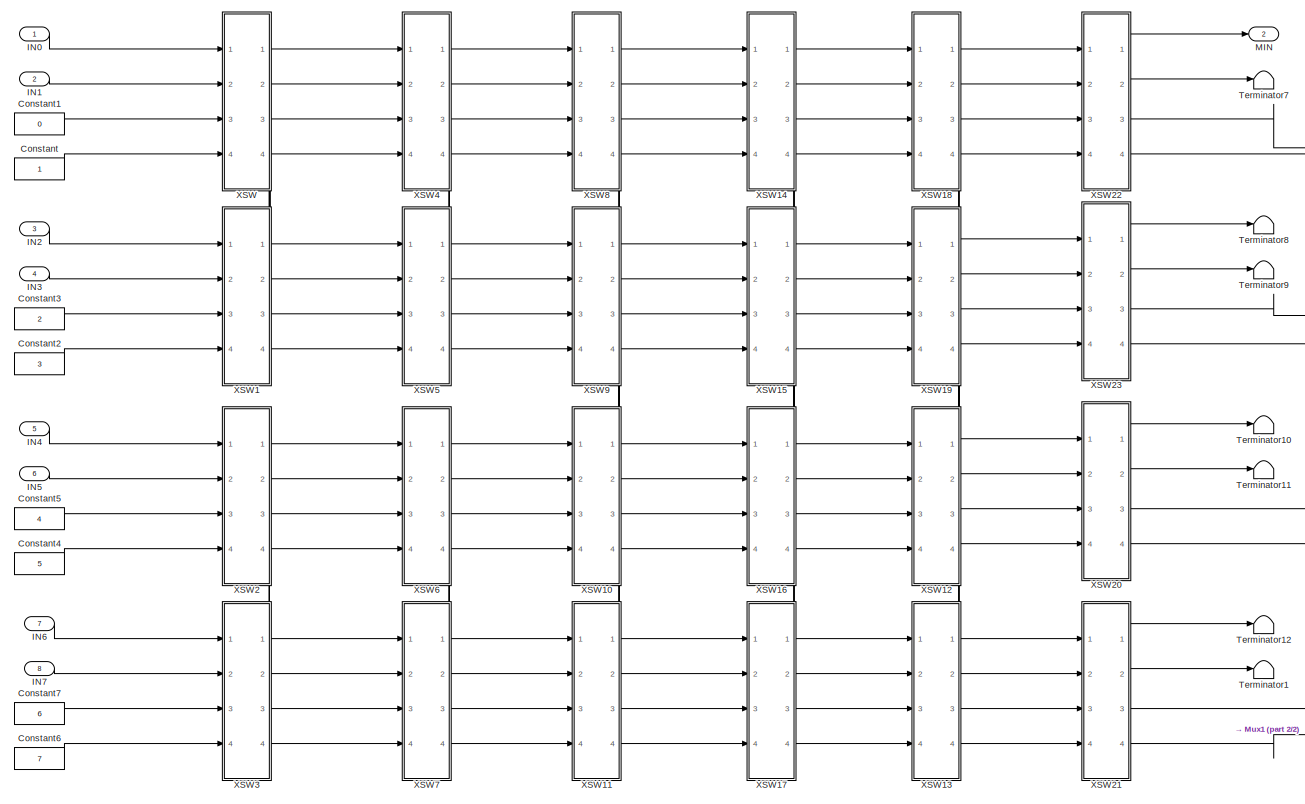
[diagram: 3-level NSDEM /Sort16 - part 1/2, most of the canvas]
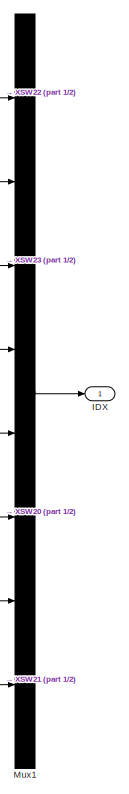
[diagram: 3-level NSDEM /Sort16 - part 2/2, right side, full height]
BLOCK [SubSystem] 3-level NSDEM /Sort16
  Ports = [8, 2]
  RequestExecContextInheritance = off
  Variant = off
BLOCK [Constant] 3-level NSDEM /Sort16/Constant
BLOCK [Constant] 3-level NSDEM /Sort16/Constant1
  Value = 0
BLOCK [Constant] 3-level NSDEM /Sort16/Constant2
  Value = 3
BLOCK [Constant] 3-level NSDEM /Sort16/Constant3
  Value = 2
BLOCK [Constant] 3-level NSDEM /Sort16/Constant4
  Value = 5
BLOCK [Constant] 3-level NSDEM /Sort16/Constant5
  Value = 4
BLOCK [Constant] 3-level NSDEM /Sort16/Constant6
  Value = 7
BLOCK [Constant] 3-level NSDEM /Sort16/Constant7
  Value = 6
BLOCK [Outport] 3-level NSDEM /Sort16/IDX
  IconDisplay = Port number
BLOCK [Inport] 3-level NSDEM /Sort16/IN0
  IconDisplay = Port number
BLOCK [Inport] 3-level NSDEM /Sort16/IN1
  IconDisplay = Port number
  Port = 2
BLOCK [Inport] 3-level NSDEM /Sort16/IN2
  IconDisplay = Port number
  Port = 3
BLOCK [Inport] 3-level NSDEM /Sort16/IN3
  IconDisplay = Port number
  Port = 4
BLOCK [Inport] 3-level NSDEM /Sort16/IN4
  IconDisplay = Port number
  Port = 5
BLOCK [Inport] 3-level NSDEM /Sort16/IN5
  IconDisplay = Port number
  Port = 6
BLOCK [Inport] 3-level NSDEM /Sort16/IN6
  IconDisplay = Port number
  Port = 7
BLOCK [Inport] 3-level NSDEM /Sort16/IN7
  IconDisplay = Port number
  Port = 8
BLOCK [Outport] 3-level NSDEM /Sort16/MIN
  IconDisplay = Port number
  Port = 2
BLOCK [Mux] 3-level NSDEM /Sort16/Mux1
  DisplayOption = bar
  Inputs = 8
  Ports = [8, 1]
BLOCK [Terminator] 3-level NSDEM /Sort16/Terminator1
BLOCK [Terminator] 3-level NSDEM /Sort16/Terminator10
BLOCK [Terminator] 3-level NSDEM /Sort16/Terminator11
BLOCK [Terminator] 3-level NSDEM /Sort16/Terminator12
BLOCK [Terminator] 3-level NSDEM /Sort16/Terminator7
BLOCK [Terminator] 3-level NSDEM /Sort16/Terminator8
BLOCK [Terminator] 3-level NSDEM /Sort16/Terminator9
BLOCK [SubSystem] 3-level NSDEM /Sort16/XSW
  Ports = [4, 4]
  RequestExecContextInheritance = off
  Variant = off
BLOCK [Inport] 3-level NSDEM /Sort16/XSW/IM
  IconDisplay = Port number
  Port = 2
BLOCK [Inport] 3-level NSDEM /Sort16/XSW/IP
  IconDisplay = Port number
BLOCK [Outport] 3-level NSDEM /Sort16/XSW/OA
  IconDisplay = Port number
BLOCK [Outport] 3-level NSDEM /Sort16/XSW/OB
  IconDisplay = Port number
  Port = 2
BLOCK [Outport] 3-level NSDEM /Sort16/XSW/QA
  IconDisplay = Port number
  Port = 3
BLOCK [Outport] 3-level NSDEM /Sort16/XSW/QB
  IconDisplay = Port number
  Port = 4
BLOCK [RelationalOperator] 3-level NSDEM /Sort16/XSW/Relational Operator
  InputSameDT = off
  Operator = <
  OutDataTypeStr = boolean
  Ports = [2, 1]
BLOCK [Inport] 3-level NSDEM /Sort16/XSW/SM
  IconDisplay = Port number
  Port = 4
BLOCK [Inport] 3-level NSDEM /Sort16/XSW/SP
  IconDisplay = Port number
  Port = 3
BLOCK [Switch] 3-level NSDEM /Sort16/XSW/Switch
  Criteria = u2 > Threshold
  InputSameDT = off
  SaturateOnIntegerOverflow = off
BLOCK [Switch] 3-level NSDEM /Sort16/XSW/Switch1
  Criteria = u2 > Threshold
  InputSameDT = off
  SaturateOnIntegerOverflow = off
BLOCK [Switch] 3-level NSDEM /Sort16/XSW/Switch2
  Criteria = u2 > Threshold
  InputSameDT = off
  SaturateOnIntegerOverflow = off
BLOCK [Switch] 3-level NSDEM /Sort16/XSW/Switch3
  Criteria = u2 > Threshold
  InputSameDT = off
  SaturateOnIntegerOverflow = off
BLOCK [SubSystem] 3-level NSDEM /Sort16/XSW1
  Ports = [4, 4]
  RequestExecContextInheritance = off
  Variant = off
BLOCK [Inport] 3-level NSDEM /Sort16/XSW1/IM
  IconDisplay = Port number
BLOCK [Inport] 3-level NSDEM /Sort16/XSW1/IP
  IconDisplay = Port number
  Port = 2
BLOCK [Outport] 3-level NSDEM /Sort16/XSW1/OA
  IconDisplay = Port number
  Port = 2
BLOCK [Outport] 3-level NSDEM /Sort16/XSW1/OB
  IconDisplay = Port number
BLOCK [Outport] 3-level NSDEM /Sort16/XSW1/QA
  IconDisplay = Port number
  Port = 4
BLOCK [Outport] 3-level NSDEM /Sort16/XSW1/QB
  IconDisplay = Port number
  Port = 3
BLOCK [RelationalOperator] 3-level NSDEM /Sort16/XSW1/Relational Operator
  InputSameDT = off
  Operator = <
  OutDataTypeStr = boolean
  Ports = [2, 1]
BLOCK [Inport] 3-level NSDEM /Sort16/XSW1/SM
  IconDisplay = Port number
  Port = 3
BLOCK [Inport] 3-level NSDEM /Sort16/XSW1/SP
  IconDisplay = Port number
  Port = 4
BLOCK [Switch] 3-level NSDEM /Sort16/XSW1/Switch
  Criteria = u2 > Threshold
  InputSameDT = off
  SaturateOnIntegerOverflow = off
BLOCK [Switch] 3-level NSDEM /Sort16/XSW1/Switch1
  Criteria = u2 > Threshold
  InputSameDT = off
  SaturateOnIntegerOverflow = off
BLOCK [Switch] 3-level NSDEM /Sort16/XSW1/Switch2
  Criteria = u2 > Threshold
  InputSameDT = off
  SaturateOnIntegerOverflow = off
BLOCK [Switch] 3-level NSDEM /Sort16/XSW1/Switch3
  Criteria = u2 > Threshold
  InputSameDT = off
  SaturateOnIntegerOverflow = off
BLOCK [SubSystem] 3-level NSDEM /Sort16/XSW10
  Ports = [4, 4]
  RequestExecContextInheritance = off
  Variant = off
BLOCK [Inport] 3-level NSDEM /Sort16/XSW10/IM
  IconDisplay = Port number
BLOCK [Inport] 3-level NSDEM /Sort16/XSW10/IP
  IconDisplay = Port number
  Port = 2
BLOCK [Outport] 3-level NSDEM /Sort16/XSW10/OA
  IconDisplay = Port number
  Port = 2
BLOCK [Outport] 3-level NSDEM /Sort16/XSW10/OB
  IconDisplay = Port number
BLOCK [Outport] 3-level NSDEM /Sort16/XSW10/QA
  IconDisplay = Port number
  Port = 4
BLOCK [Outport] 3-level NSDEM /Sort16/XSW10/QB
  IconDisplay = Port number
  Port = 3
BLOCK [RelationalOperator] 3-level NSDEM /Sort16/XSW10/Relational Operator
  InputSameDT = off
  Operator = <
  OutDataTypeStr = boolean
  Ports = [2, 1]
BLOCK [Inport] 3-level NSDEM /Sort16/XSW10/SM
  IconDisplay = Port number
  Port = 3
BLOCK [Inport] 3-level NSDEM /Sort16/XSW10/SP
  IconDisplay = Port number
  Port = 4
BLOCK [Switch] 3-level NSDEM /Sort16/XSW10/Switch
  Criteria = u2 > Threshold
  InputSameDT = off
  SaturateOnIntegerOverflow = off
BLOCK [Switch] 3-level NSDEM /Sort16/XSW10/Switch1
  Criteria = u2 > Threshold
  InputSameDT = off
  SaturateOnIntegerOverflow = off
BLOCK [Switch] 3-level NSDEM /Sort16/XSW10/Switch2
  Criteria = u2 > Threshold
  InputSameDT = off
  SaturateOnIntegerOverflow = off
BLOCK [Switch] 3-level NSDEM /Sort16/XSW10/Switch3
  Criteria = u2 > Threshold
  InputSameDT = off
  SaturateOnIntegerOverflow = off
BLOCK [SubSystem] 3-level NSDEM /Sort16/XSW11
  Ports = [4, 4]
  RequestExecContextInheritance = off
  Variant = off
BLOCK [Inport] 3-level NSDEM /Sort16/XSW11/IM
  IconDisplay = Port number
BLOCK [Inport] 3-level NSDEM /Sort16/XSW11/IP
  IconDisplay = Port number
  Port = 2
BLOCK [Outport] 3-level NSDEM /Sort16/XSW11/OA
  IconDisplay = Port number
  Port = 2
BLOCK [Outport] 3-level NSDEM /Sort16/XSW11/OB
  IconDisplay = Port number
BLOCK [Outport] 3-level NSDEM /Sort16/XSW11/QA
  IconDisplay = Port number
  Port = 4
BLOCK [Outport] 3-level NSDEM /Sort16/XSW11/QB
  IconDisplay = Port number
  Port = 3
BLOCK [RelationalOperator] 3-level NSDEM /Sort16/XSW11/Relational Operator
  InputSameDT = off
  Operator = <
  OutDataTypeStr = boolean
  Ports = [2, 1]
BLOCK [Inport] 3-level NSDEM /Sort16/XSW11/SM
  IconDisplay = Port number
  Port = 3
BLOCK [Inport] 3-level NSDEM /Sort16/XSW11/SP
  IconDisplay = Port number
  Port = 4
BLOCK [Switch] 3-level NSDEM /Sort16/XSW11/Switch
  Criteria = u2 > Threshold
  InputSameDT = off
  SaturateOnIntegerOverflow = off
BLOCK [Switch] 3-level NSDEM /Sort16/XSW11/Switch1
  Criteria = u2 > Threshold
  InputSameDT = off
  SaturateOnIntegerOverflow = off
BLOCK [Switch] 3-level NSDEM /Sort16/XSW11/Switch2
  Criteria = u2 > Threshold
  InputSameDT = off
  SaturateOnIntegerOverflow = off
BLOCK [Switch] 3-level NSDEM /Sort16/XSW11/Switch3
  Criteria = u2 > Threshold
  InputSameDT = off
  SaturateOnIntegerOverflow = off
BLOCK [SubSystem] 3-level NSDEM /Sort16/XSW12
  Ports = [4, 4]
  RequestExecContextInheritance = off
  Variant = off
BLOCK [Inport] 3-level NSDEM /Sort16/XSW12/IM
  IconDisplay = Port number
  Port = 2
BLOCK [Inport] 3-level NSDEM /Sort16/XSW12/IP
  IconDisplay = Port number
BLOCK [Outport] 3-level NSDEM /Sort16/XSW12/OA
  IconDisplay = Port number
BLOCK [Outport] 3-level NSDEM /Sort16/XSW12/OB
  IconDisplay = Port number
  Port = 2
BLOCK [Outport] 3-level NSDEM /Sort16/XSW12/QA
  IconDisplay = Port number
  Port = 3
BLOCK [Outport] 3-level NSDEM /Sort16/XSW12/QB
  IconDisplay = Port number
  Port = 4
BLOCK [RelationalOperator] 3-level NSDEM /Sort16/XSW12/Relational Operator
  InputSameDT = off
  Operator = <
  OutDataTypeStr = boolean
  Ports = [2, 1]
BLOCK [Inport] 3-level NSDEM /Sort16/XSW12/SM
  IconDisplay = Port number
  Port = 4
BLOCK [Inport] 3-level NSDEM /Sort16/XSW12/SP
  IconDisplay = Port number
  Port = 3
BLOCK [Switch] 3-level NSDEM /Sort16/XSW12/Switch
  Criteria = u2 > Threshold
  InputSameDT = off
  SaturateOnIntegerOverflow = off
BLOCK [Switch] 3-level NSDEM /Sort16/XSW12/Switch1
  Criteria = u2 > Threshold
  InputSameDT = off
  SaturateOnIntegerOverflow = off
BLOCK [Switch] 3-level NSDEM /Sort16/XSW12/Switch2
  Criteria = u2 > Threshold
  InputSameDT = off
  SaturateOnIntegerOverflow = off
BLOCK [Switch] 3-level NSDEM /Sort16/XSW12/Switch3
  Criteria = u2 > Threshold
  InputSameDT = off
  SaturateOnIntegerOverflow = off
BLOCK [SubSystem] 3-level NSDEM /Sort16/XSW13
  Ports = [4, 4]
  RequestExecContextInheritance = off
  Variant = off
BLOCK [Inport] 3-level NSDEM /Sort16/XSW13/IM
  IconDisplay = Port number
  Port = 2
BLOCK [Inport] 3-level NSDEM /Sort16/XSW13/IP
  IconDisplay = Port number
BLOCK [Outport] 3-level NSDEM /Sort16/XSW13/OA
  IconDisplay = Port number
BLOCK [Outport] 3-level NSDEM /Sort16/XSW13/OB
  IconDisplay = Port number
  Port = 2
BLOCK [Outport] 3-level NSDEM /Sort16/XSW13/QA
  IconDisplay = Port number
  Port = 3
BLOCK [Outport] 3-level NSDEM /Sort16/XSW13/QB
  IconDisplay = Port number
  Port = 4
BLOCK [RelationalOperator] 3-level NSDEM /Sort16/XSW13/Relational Operator
  InputSameDT = off
  Operator = <
  OutDataTypeStr = boolean
  Ports = [2, 1]
BLOCK [Inport] 3-level NSDEM /Sort16/XSW13/SM
  IconDisplay = Port number
  Port = 4
BLOCK [Inport] 3-level NSDEM /Sort16/XSW13/SP
  IconDisplay = Port number
  Port = 3
BLOCK [Switch] 3-level NSDEM /Sort16/XSW13/Switch
  Criteria = u2 > Threshold
  InputSameDT = off
  SaturateOnIntegerOverflow = off
BLOCK [Switch] 3-level NSDEM /Sort16/XSW13/Switch1
  Criteria = u2 > Threshold
  InputSameDT = off
  SaturateOnIntegerOverflow = off
BLOCK [Switch] 3-level NSDEM /Sort16/XSW13/Switch2
  Criteria = u2 > Threshold
  InputSameDT = off
  SaturateOnIntegerOverflow = off
BLOCK [Switch] 3-level NSDEM /Sort16/XSW13/Switch3
  Criteria = u2 > Threshold
  InputSameDT = off
  SaturateOnIntegerOverflow = off
BLOCK [SubSystem] 3-level NSDEM /Sort16/XSW14
  Ports = [4, 4]
  RequestExecContextInheritance = off
  Variant = off
BLOCK [Inport] 3-level NSDEM /Sort16/XSW14/IM
  IconDisplay = Port number
  Port = 2
BLOCK [Inport] 3-level NSDEM /Sort16/XSW14/IP
  IconDisplay = Port number
BLOCK [Outport] 3-level NSDEM /Sort16/XSW14/OA
  IconDisplay = Port number
BLOCK [Outport] 3-level NSDEM /Sort16/XSW14/OB
  IconDisplay = Port number
  Port = 2
BLOCK [Outport] 3-level NSDEM /Sort16/XSW14/QA
  IconDisplay = Port number
  Port = 3
BLOCK [Outport] 3-level NSDEM /Sort16/XSW14/QB
  IconDisplay = Port number
  Port = 4
BLOCK [RelationalOperator] 3-level NSDEM /Sort16/XSW14/Relational Operator
  InputSameDT = off
  Operator = <
  OutDataTypeStr = boolean
  Ports = [2, 1]
BLOCK [Inport] 3-level NSDEM /Sort16/XSW14/SM
  IconDisplay = Port number
  Port = 4
BLOCK [Inport] 3-level NSDEM /Sort16/XSW14/SP
  IconDisplay = Port number
  Port = 3
BLOCK [Switch] 3-level NSDEM /Sort16/XSW14/Switch
  Criteria = u2 > Threshold
  InputSameDT = off
  SaturateOnIntegerOverflow = off
BLOCK [Switch] 3-level NSDEM /Sort16/XSW14/Switch1
  Criteria = u2 > Threshold
  InputSameDT = off
  SaturateOnIntegerOverflow = off
BLOCK [Switch] 3-level NSDEM /Sort16/XSW14/Switch2
  Criteria = u2 > Threshold
  InputSameDT = off
  SaturateOnIntegerOverflow = off
BLOCK [Switch] 3-level NSDEM /Sort16/XSW14/Switch3
  Criteria = u2 > Threshold
  InputSameDT = off
  SaturateOnIntegerOverflow = off
BLOCK [SubSystem] 3-level NSDEM /Sort16/XSW15
  Ports = [4, 4]
  RequestExecContextInheritance = off
  Variant = off
BLOCK [Inport] 3-level NSDEM /Sort16/XSW15/IM
  IconDisplay = Port number
  Port = 2
BLOCK [Inport] 3-level NSDEM /Sort16/XSW15/IP
  IconDisplay = Port number
BLOCK [Outport] 3-level NSDEM /Sort16/XSW15/OA
  IconDisplay = Port number
BLOCK [Outport] 3-level NSDEM /Sort16/XSW15/OB
  IconDisplay = Port number
  Port = 2
BLOCK [Outport] 3-level NSDEM /Sort16/XSW15/QA
  IconDisplay = Port number
  Port = 3
BLOCK [Outport] 3-level NSDEM /Sort16/XSW15/QB
  IconDisplay = Port number
  Port = 4
BLOCK [RelationalOperator] 3-level NSDEM /Sort16/XSW15/Relational Operator
  InputSameDT = off
  Operator = <
  OutDataTypeStr = boolean
  Ports = [2, 1]
BLOCK [Inport] 3-level NSDEM /Sort16/XSW15/SM
  IconDisplay = Port number
  Port = 4
BLOCK [Inport] 3-level NSDEM /Sort16/XSW15/SP
  IconDisplay = Port number
  Port = 3
BLOCK [Switch] 3-level NSDEM /Sort16/XSW15/Switch
  Criteria = u2 > Threshold
  InputSameDT = off
  SaturateOnIntegerOverflow = off
BLOCK [Switch] 3-level NSDEM /Sort16/XSW15/Switch1
  Criteria = u2 > Threshold
  InputSameDT = off
  SaturateOnIntegerOverflow = off
BLOCK [Switch] 3-level NSDEM /Sort16/XSW15/Switch2
  Criteria = u2 > Threshold
  InputSameDT = off
  SaturateOnIntegerOverflow = off
BLOCK [Switch] 3-level NSDEM /Sort16/XSW15/Switch3
  Criteria = u2 > Threshold
  InputSameDT = off
  SaturateOnIntegerOverflow = off
BLOCK [SubSystem] 3-level NSDEM /Sort16/XSW16
  Ports = [4, 4]
  RequestExecContextInheritance = off
  Variant = off
BLOCK [Inport] 3-level NSDEM /Sort16/XSW16/IM
  IconDisplay = Port number
  Port = 2
BLOCK [Inport] 3-level NSDEM /Sort16/XSW16/IP
  IconDisplay = Port number
BLOCK [Outport] 3-level NSDEM /Sort16/XSW16/OA
  IconDisplay = Port number
BLOCK [Outport] 3-level NSDEM /Sort16/XSW16/OB
  IconDisplay = Port number
  Port = 2
BLOCK [Outport] 3-level NSDEM /Sort16/XSW16/QA
  IconDisplay = Port number
  Port = 3
BLOCK [Outport] 3-level NSDEM /Sort16/XSW16/QB
  IconDisplay = Port number
  Port = 4
BLOCK [RelationalOperator] 3-level NSDEM /Sort16/XSW16/Relational Operator
  InputSameDT = off
  Operator = <
  OutDataTypeStr = boolean
  Ports = [2, 1]
BLOCK [Inport] 3-level NSDEM /Sort16/XSW16/SM
  IconDisplay = Port number
  Port = 4
BLOCK [Inport] 3-level NSDEM /Sort16/XSW16/SP
  IconDisplay = Port number
  Port = 3
BLOCK [Switch] 3-level NSDEM /Sort16/XSW16/Switch
  Criteria = u2 > Threshold
  InputSameDT = off
  SaturateOnIntegerOverflow = off
BLOCK [Switch] 3-level NSDEM /Sort16/XSW16/Switch1
  Criteria = u2 > Threshold
  InputSameDT = off
  SaturateOnIntegerOverflow = off
BLOCK [Switch] 3-level NSDEM /Sort16/XSW16/Switch2
  Criteria = u2 > Threshold
  InputSameDT = off
  SaturateOnIntegerOverflow = off
BLOCK [Switch] 3-level NSDEM /Sort16/XSW16/Switch3
  Criteria = u2 > Threshold
  InputSameDT = off
  SaturateOnIntegerOverflow = off
BLOCK [SubSystem] 3-level NSDEM /Sort16/XSW17
  Ports = [4, 4]
  RequestExecContextInheritance = off
  Variant = off
BLOCK [Inport] 3-level NSDEM /Sort16/XSW17/IM
  IconDisplay = Port number
  Port = 2
BLOCK [Inport] 3-level NSDEM /Sort16/XSW17/IP
  IconDisplay = Port number
BLOCK [Outport] 3-level NSDEM /Sort16/XSW17/OA
  IconDisplay = Port number
BLOCK [Outport] 3-level NSDEM /Sort16/XSW17/OB
  IconDisplay = Port number
  Port = 2
BLOCK [Outport] 3-level NSDEM /Sort16/XSW17/QA
  IconDisplay = Port number
  Port = 3
BLOCK [Outport] 3-level NSDEM /Sort16/XSW17/QB
  IconDisplay = Port number
  Port = 4
BLOCK [RelationalOperator] 3-level NSDEM /Sort16/XSW17/Relational Operator
  InputSameDT = off
  Operator = <
  OutDataTypeStr = boolean
  Ports = [2, 1]
BLOCK [Inport] 3-level NSDEM /Sort16/XSW17/SM
  IconDisplay = Port number
  Port = 4
BLOCK [Inport] 3-level NSDEM /Sort16/XSW17/SP
  IconDisplay = Port number
  Port = 3
BLOCK [Switch] 3-level NSDEM /Sort16/XSW17/Switch
  Criteria = u2 > Threshold
  InputSameDT = off
  SaturateOnIntegerOverflow = off
BLOCK [Switch] 3-level NSDEM /Sort16/XSW17/Switch1
  Criteria = u2 > Threshold
  InputSameDT = off
  SaturateOnIntegerOverflow = off
BLOCK [Switch] 3-level NSDEM /Sort16/XSW17/Switch2
  Criteria = u2 > Threshold
  InputSameDT = off
  SaturateOnIntegerOverflow = off
BLOCK [Switch] 3-level NSDEM /Sort16/XSW17/Switch3
  Criteria = u2 > Threshold
  InputSameDT = off
  SaturateOnIntegerOverflow = off
BLOCK [SubSystem] 3-level NSDEM /Sort16/XSW18
  Ports = [4, 4]
  RequestExecContextInheritance = off
  Variant = off
BLOCK [Inport] 3-level NSDEM /Sort16/XSW18/IM
  IconDisplay = Port number
  Port = 2
BLOCK [Inport] 3-level NSDEM /Sort16/XSW18/IP
  IconDisplay = Port number
BLOCK [Outport] 3-level NSDEM /Sort16/XSW18/OA
  IconDisplay = Port number
BLOCK [Outport] 3-level NSDEM /Sort16/XSW18/OB
  IconDisplay = Port number
  Port = 2
BLOCK [Outport] 3-level NSDEM /Sort16/XSW18/QA
  IconDisplay = Port number
  Port = 3
BLOCK [Outport] 3-level NSDEM /Sort16/XSW18/QB
  IconDisplay = Port number
  Port = 4
BLOCK [RelationalOperator] 3-level NSDEM /Sort16/XSW18/Relational Operator
  InputSameDT = off
  Operator = <
  OutDataTypeStr = boolean
  Ports = [2, 1]
BLOCK [Inport] 3-level NSDEM /Sort16/XSW18/SM
  IconDisplay = Port number
  Port = 4
BLOCK [Inport] 3-level NSDEM /Sort16/XSW18/SP
  IconDisplay = Port number
  Port = 3
BLOCK [Switch] 3-level NSDEM /Sort16/XSW18/Switch
  Criteria = u2 > Threshold
  InputSameDT = off
  SaturateOnIntegerOverflow = off
BLOCK [Switch] 3-level NSDEM /Sort16/XSW18/Switch1
  Criteria = u2 > Threshold
  InputSameDT = off
  SaturateOnIntegerOverflow = off
BLOCK [Switch] 3-level NSDEM /Sort16/XSW18/Switch2
  Criteria = u2 > Threshold
  InputSameDT = off
  SaturateOnIntegerOverflow = off
BLOCK [Switch] 3-level NSDEM /Sort16/XSW18/Switch3
  Criteria = u2 > Threshold
  InputSameDT = off
  SaturateOnIntegerOverflow = off
BLOCK [SubSystem] 3-level NSDEM /Sort16/XSW19
  Ports = [4, 4]
  RequestExecContextInheritance = off
  Variant = off
BLOCK [Inport] 3-level NSDEM /Sort16/XSW19/IM
  IconDisplay = Port number
  Port = 2
BLOCK [Inport] 3-level NSDEM /Sort16/XSW19/IP
  IconDisplay = Port number
BLOCK [Outport] 3-level NSDEM /Sort16/XSW19/OA
  IconDisplay = Port number
BLOCK [Outport] 3-level NSDEM /Sort16/XSW19/OB
  IconDisplay = Port number
  Port = 2
BLOCK [Outport] 3-level NSDEM /Sort16/XSW19/QA
  IconDisplay = Port number
  Port = 3
BLOCK [Outport] 3-level NSDEM /Sort16/XSW19/QB
  IconDisplay = Port number
  Port = 4
BLOCK [RelationalOperator] 3-level NSDEM /Sort16/XSW19/Relational Operator
  InputSameDT = off
  Operator = <
  OutDataTypeStr = boolean
  Ports = [2, 1]
BLOCK [Inport] 3-level NSDEM /Sort16/XSW19/SM
  IconDisplay = Port number
  Port = 4
BLOCK [Inport] 3-level NSDEM /Sort16/XSW19/SP
  IconDisplay = Port number
  Port = 3
BLOCK [Switch] 3-level NSDEM /Sort16/XSW19/Switch
  Criteria = u2 > Threshold
  InputSameDT = off
  SaturateOnIntegerOverflow = off
BLOCK [Switch] 3-level NSDEM /Sort16/XSW19/Switch1
  Criteria = u2 > Threshold
  InputSameDT = off
  SaturateOnIntegerOverflow = off
BLOCK [Switch] 3-level NSDEM /Sort16/XSW19/Switch2
  Criteria = u2 > Threshold
  InputSameDT = off
  SaturateOnIntegerOverflow = off
BLOCK [Switch] 3-level NSDEM /Sort16/XSW19/Switch3
  Criteria = u2 > Threshold
  InputSameDT = off
  SaturateOnIntegerOverflow = off
BLOCK [SubSystem] 3-level NSDEM /Sort16/XSW2
  Ports = [4, 4]
  RequestExecContextInheritance = off
  Variant = off
BLOCK [Inport] 3-level NSDEM /Sort16/XSW2/IM
  IconDisplay = Port number
  Port = 2
BLOCK [Inport] 3-level NSDEM /Sort16/XSW2/IP
  IconDisplay = Port number
BLOCK [Outport] 3-level NSDEM /Sort16/XSW2/OA
  IconDisplay = Port number
BLOCK [Outport] 3-level NSDEM /Sort16/XSW2/OB
  IconDisplay = Port number
  Port = 2
BLOCK [Outport] 3-level NSDEM /Sort16/XSW2/QA
  IconDisplay = Port number
  Port = 3
BLOCK [Outport] 3-level NSDEM /Sort16/XSW2/QB
  IconDisplay = Port number
  Port = 4
BLOCK [RelationalOperator] 3-level NSDEM /Sort16/XSW2/Relational Operator
  InputSameDT = off
  Operator = <
  OutDataTypeStr = boolean
  Ports = [2, 1]
BLOCK [Inport] 3-level NSDEM /Sort16/XSW2/SM
  IconDisplay = Port number
  Port = 4
BLOCK [Inport] 3-level NSDEM /Sort16/XSW2/SP
  IconDisplay = Port number
  Port = 3
BLOCK [Switch] 3-level NSDEM /Sort16/XSW2/Switch
  Criteria = u2 > Threshold
  InputSameDT = off
  SaturateOnIntegerOverflow = off
BLOCK [Switch] 3-level NSDEM /Sort16/XSW2/Switch1
  Criteria = u2 > Threshold
  InputSameDT = off
  SaturateOnIntegerOverflow = off
BLOCK [Switch] 3-level NSDEM /Sort16/XSW2/Switch2
  Criteria = u2 > Threshold
  InputSameDT = off
  SaturateOnIntegerOverflow = off
BLOCK [Switch] 3-level NSDEM /Sort16/XSW2/Switch3
  Criteria = u2 > Threshold
  InputSameDT = off
  SaturateOnIntegerOverflow = off
BLOCK [SubSystem] 3-level NSDEM /Sort16/XSW20
  Ports = [4, 4]
  RequestExecContextInheritance = off
  Variant = off
BLOCK [Inport] 3-level NSDEM /Sort16/XSW20/IM
  IconDisplay = Port number
  Port = 2
BLOCK [Inport] 3-level NSDEM /Sort16/XSW20/IP
  IconDisplay = Port number
BLOCK [Outport] 3-level NSDEM /Sort16/XSW20/OA
  IconDisplay = Port number
BLOCK [Outport] 3-level NSDEM /Sort16/XSW20/OB
  IconDisplay = Port number
  Port = 2
BLOCK [Outport] 3-level NSDEM /Sort16/XSW20/QA
  IconDisplay = Port number
  Port = 3
BLOCK [Outport] 3-level NSDEM /Sort16/XSW20/QB
  IconDisplay = Port number
  Port = 4
BLOCK [RelationalOperator] 3-level NSDEM /Sort16/XSW20/Relational Operator
  InputSameDT = off
  Operator = <
  OutDataTypeStr = boolean
  Ports = [2, 1]
BLOCK [Inport] 3-level NSDEM /Sort16/XSW20/SM
  IconDisplay = Port number
  Port = 4
BLOCK [Inport] 3-level NSDEM /Sort16/XSW20/SP
  IconDisplay = Port number
  Port = 3
BLOCK [Switch] 3-level NSDEM /Sort16/XSW20/Switch
  Criteria = u2 > Threshold
  InputSameDT = off
  SaturateOnIntegerOverflow = off
BLOCK [Switch] 3-level NSDEM /Sort16/XSW20/Switch1
  Criteria = u2 > Threshold
  InputSameDT = off
  SaturateOnIntegerOverflow = off
BLOCK [Switch] 3-level NSDEM /Sort16/XSW20/Switch2
  Criteria = u2 > Threshold
  InputSameDT = off
  SaturateOnIntegerOverflow = off
BLOCK [Switch] 3-level NSDEM /Sort16/XSW20/Switch3
  Criteria = u2 > Threshold
  InputSameDT = off
  SaturateOnIntegerOverflow = off
BLOCK [SubSystem] 3-level NSDEM /Sort16/XSW21
  Ports = [4, 4]
  RequestExecContextInheritance = off
  Variant = off
BLOCK [Inport] 3-level NSDEM /Sort16/XSW21/IM
  IconDisplay = Port number
  Port = 2
BLOCK [Inport] 3-level NSDEM /Sort16/XSW21/IP
  IconDisplay = Port number
BLOCK [Outport] 3-level NSDEM /Sort16/XSW21/OA
  IconDisplay = Port number
BLOCK [Outport] 3-level NSDEM /Sort16/XSW21/OB
  IconDisplay = Port number
  Port = 2
BLOCK [Outport] 3-level NSDEM /Sort16/XSW21/QA
  IconDisplay = Port number
  Port = 3
BLOCK [Outport] 3-level NSDEM /Sort16/XSW21/QB
  IconDisplay = Port number
  Port = 4
BLOCK [RelationalOperator] 3-level NSDEM /Sort16/XSW21/Relational Operator
  InputSameDT = off
  Operator = <
  OutDataTypeStr = boolean
  Ports = [2, 1]
BLOCK [Inport] 3-level NSDEM /Sort16/XSW21/SM
  IconDisplay = Port number
  Port = 4
BLOCK [Inport] 3-level NSDEM /Sort16/XSW21/SP
  IconDisplay = Port number
  Port = 3
BLOCK [Switch] 3-level NSDEM /Sort16/XSW21/Switch
  Criteria = u2 > Threshold
  InputSameDT = off
  SaturateOnIntegerOverflow = off
BLOCK [Switch] 3-level NSDEM /Sort16/XSW21/Switch1
  Criteria = u2 > Threshold
  InputSameDT = off
  SaturateOnIntegerOverflow = off
BLOCK [Switch] 3-level NSDEM /Sort16/XSW21/Switch2
  Criteria = u2 > Threshold
  InputSameDT = off
  SaturateOnIntegerOverflow = off
BLOCK [Switch] 3-level NSDEM /Sort16/XSW21/Switch3
  Criteria = u2 > Threshold
  InputSameDT = off
  SaturateOnIntegerOverflow = off
BLOCK [SubSystem] 3-level NSDEM /Sort16/XSW22
  Ports = [4, 4]
  RequestExecContextInheritance = off
  Variant = off
BLOCK [Inport] 3-level NSDEM /Sort16/XSW22/IM
  IconDisplay = Port number
  Port = 2
BLOCK [Inport] 3-level NSDEM /Sort16/XSW22/IP
  IconDisplay = Port number
BLOCK [Outport] 3-level NSDEM /Sort16/XSW22/OA
  IconDisplay = Port number
BLOCK [Outport] 3-level NSDEM /Sort16/XSW22/OB
  IconDisplay = Port number
  Port = 2
BLOCK [Outport] 3-level NSDEM /Sort16/XSW22/QA
  IconDisplay = Port number
  Port = 3
BLOCK [Outport] 3-level NSDEM /Sort16/XSW22/QB
  IconDisplay = Port number
  Port = 4
BLOCK [RelationalOperator] 3-level NSDEM /Sort16/XSW22/Relational Operator
  InputSameDT = off
  Operator = <
  OutDataTypeStr = boolean
  Ports = [2, 1]
BLOCK [Inport] 3-level NSDEM /Sort16/XSW22/SM
  IconDisplay = Port number
  Port = 4
BLOCK [Inport] 3-level NSDEM /Sort16/XSW22/SP
  IconDisplay = Port number
  Port = 3
BLOCK [Switch] 3-level NSDEM /Sort16/XSW22/Switch
  Criteria = u2 > Threshold
  InputSameDT = off
  SaturateOnIntegerOverflow = off
BLOCK [Switch] 3-level NSDEM /Sort16/XSW22/Switch1
  Criteria = u2 > Threshold
  InputSameDT = off
  SaturateOnIntegerOverflow = off
BLOCK [Switch] 3-level NSDEM /Sort16/XSW22/Switch2
  Criteria = u2 > Threshold
  InputSameDT = off
  SaturateOnIntegerOverflow = off
BLOCK [Switch] 3-level NSDEM /Sort16/XSW22/Switch3
  Criteria = u2 > Threshold
  InputSameDT = off
  SaturateOnIntegerOverflow = off
BLOCK [SubSystem] 3-level NSDEM /Sort16/XSW23
  Ports = [4, 4]
  RequestExecContextInheritance = off
  Variant = off
BLOCK [Inport] 3-level NSDEM /Sort16/XSW23/IM
  IconDisplay = Port number
  Port = 2
BLOCK [Inport] 3-level NSDEM /Sort16/XSW23/IP
  IconDisplay = Port number
BLOCK [Outport] 3-level NSDEM /Sort16/XSW23/OA
  IconDisplay = Port number
BLOCK [Outport] 3-level NSDEM /Sort16/XSW23/OB
  IconDisplay = Port number
  Port = 2
BLOCK [Outport] 3-level NSDEM /Sort16/XSW23/QA
  IconDisplay = Port number
  Port = 3
BLOCK [Outport] 3-level NSDEM /Sort16/XSW23/QB
  IconDisplay = Port number
  Port = 4
BLOCK [RelationalOperator] 3-level NSDEM /Sort16/XSW23/Relational Operator
  InputSameDT = off
  Operator = <
  OutDataTypeStr = boolean
  Ports = [2, 1]
BLOCK [Inport] 3-level NSDEM /Sort16/XSW23/SM
  IconDisplay = Port number
  Port = 4
BLOCK [Inport] 3-level NSDEM /Sort16/XSW23/SP
  IconDisplay = Port number
  Port = 3
BLOCK [Switch] 3-level NSDEM /Sort16/XSW23/Switch
  Criteria = u2 > Threshold
  InputSameDT = off
  SaturateOnIntegerOverflow = off
BLOCK [Switch] 3-level NSDEM /Sort16/XSW23/Switch1
  Criteria = u2 > Threshold
  InputSameDT = off
  SaturateOnIntegerOverflow = off
BLOCK [Switch] 3-level NSDEM /Sort16/XSW23/Switch2
  Criteria = u2 > Threshold
  InputSameDT = off
  SaturateOnIntegerOverflow = off
BLOCK [Switch] 3-level NSDEM /Sort16/XSW23/Switch3
  Criteria = u2 > Threshold
  InputSameDT = off
  SaturateOnIntegerOverflow = off
BLOCK [SubSystem] 3-level NSDEM /Sort16/XSW3
  Ports = [4, 4]
  RequestExecContextInheritance = off
  Variant = off
BLOCK [Inport] 3-level NSDEM /Sort16/XSW3/IM
  IconDisplay = Port number
BLOCK [Inport] 3-level NSDEM /Sort16/XSW3/IP
  IconDisplay = Port number
  Port = 2
BLOCK [Outport] 3-level NSDEM /Sort16/XSW3/OA
  IconDisplay = Port number
  Port = 2
BLOCK [Outport] 3-level NSDEM /Sort16/XSW3/OB
  IconDisplay = Port number
BLOCK [Outport] 3-level NSDEM /Sort16/XSW3/QA
  IconDisplay = Port number
  Port = 4
BLOCK [Outport] 3-level NSDEM /Sort16/XSW3/QB
  IconDisplay = Port number
  Port = 3
BLOCK [RelationalOperator] 3-level NSDEM /Sort16/XSW3/Relational Operator
  InputSameDT = off
  Operator = <
  OutDataTypeStr = boolean
  Ports = [2, 1]
BLOCK [Inport] 3-level NSDEM /Sort16/XSW3/SM
  IconDisplay = Port number
  Port = 3
BLOCK [Inport] 3-level NSDEM /Sort16/XSW3/SP
  IconDisplay = Port number
  Port = 4
BLOCK [Switch] 3-level NSDEM /Sort16/XSW3/Switch
  Criteria = u2 > Threshold
  InputSameDT = off
  SaturateOnIntegerOverflow = off
BLOCK [Switch] 3-level NSDEM /Sort16/XSW3/Switch1
  Criteria = u2 > Threshold
  InputSameDT = off
  SaturateOnIntegerOverflow = off
BLOCK [Switch] 3-level NSDEM /Sort16/XSW3/Switch2
  Criteria = u2 > Threshold
  InputSameDT = off
  SaturateOnIntegerOverflow = off
BLOCK [Switch] 3-level NSDEM /Sort16/XSW3/Switch3
  Criteria = u2 > Threshold
  InputSameDT = off
  SaturateOnIntegerOverflow = off
BLOCK [SubSystem] 3-level NSDEM /Sort16/XSW4
  Ports = [4, 4]
  RequestExecContextInheritance = off
  Variant = off
BLOCK [Inport] 3-level NSDEM /Sort16/XSW4/IM
  IconDisplay = Port number
  Port = 2
BLOCK [Inport] 3-level NSDEM /Sort16/XSW4/IP
  IconDisplay = Port number
BLOCK [Outport] 3-level NSDEM /Sort16/XSW4/OA
  IconDisplay = Port number
BLOCK [Outport] 3-level NSDEM /Sort16/XSW4/OB
  IconDisplay = Port number
  Port = 2
BLOCK [Outport] 3-level NSDEM /Sort16/XSW4/QA
  IconDisplay = Port number
  Port = 3
BLOCK [Outport] 3-level NSDEM /Sort16/XSW4/QB
  IconDisplay = Port number
  Port = 4
BLOCK [RelationalOperator] 3-level NSDEM /Sort16/XSW4/Relational Operator
  InputSameDT = off
  Operator = <
  OutDataTypeStr = boolean
  Ports = [2, 1]
BLOCK [Inport] 3-level NSDEM /Sort16/XSW4/SM
  IconDisplay = Port number
  Port = 4
BLOCK [Inport] 3-level NSDEM /Sort16/XSW4/SP
  IconDisplay = Port number
  Port = 3
BLOCK [Switch] 3-level NSDEM /Sort16/XSW4/Switch
  Criteria = u2 > Threshold
  InputSameDT = off
  SaturateOnIntegerOverflow = off
BLOCK [Switch] 3-level NSDEM /Sort16/XSW4/Switch1
  Criteria = u2 > Threshold
  InputSameDT = off
  SaturateOnIntegerOverflow = off
BLOCK [Switch] 3-level NSDEM /Sort16/XSW4/Switch2
  Criteria = u2 > Threshold
  InputSameDT = off
  SaturateOnIntegerOverflow = off
BLOCK [Switch] 3-level NSDEM /Sort16/XSW4/Switch3
  Criteria = u2 > Threshold
  InputSameDT = off
  SaturateOnIntegerOverflow = off
BLOCK [SubSystem] 3-level NSDEM /Sort16/XSW5
  Ports = [4, 4]
  RequestExecContextInheritance = off
  Variant = off
BLOCK [Inport] 3-level NSDEM /Sort16/XSW5/IM
  IconDisplay = Port number
  Port = 2
BLOCK [Inport] 3-level NSDEM /Sort16/XSW5/IP
  IconDisplay = Port number
BLOCK [Outport] 3-level NSDEM /Sort16/XSW5/OA
  IconDisplay = Port number
BLOCK [Outport] 3-level NSDEM /Sort16/XSW5/OB
  IconDisplay = Port number
  Port = 2
BLOCK [Outport] 3-level NSDEM /Sort16/XSW5/QA
  IconDisplay = Port number
  Port = 3
BLOCK [Outport] 3-level NSDEM /Sort16/XSW5/QB
  IconDisplay = Port number
  Port = 4
BLOCK [RelationalOperator] 3-level NSDEM /Sort16/XSW5/Relational Operator
  InputSameDT = off
  Operator = <
  OutDataTypeStr = boolean
  Ports = [2, 1]
BLOCK [Inport] 3-level NSDEM /Sort16/XSW5/SM
  IconDisplay = Port number
  Port = 4
BLOCK [Inport] 3-level NSDEM /Sort16/XSW5/SP
  IconDisplay = Port number
  Port = 3
BLOCK [Switch] 3-level NSDEM /Sort16/XSW5/Switch
  Criteria = u2 > Threshold
  InputSameDT = off
  SaturateOnIntegerOverflow = off
BLOCK [Switch] 3-level NSDEM /Sort16/XSW5/Switch1
  Criteria = u2 > Threshold
  InputSameDT = off
  SaturateOnIntegerOverflow = off
BLOCK [Switch] 3-level NSDEM /Sort16/XSW5/Switch2
  Criteria = u2 > Threshold
  InputSameDT = off
  SaturateOnIntegerOverflow = off
BLOCK [Switch] 3-level NSDEM /Sort16/XSW5/Switch3
  Criteria = u2 > Threshold
  InputSameDT = off
  SaturateOnIntegerOverflow = off
BLOCK [SubSystem] 3-level NSDEM /Sort16/XSW6
  Ports = [4, 4]
  RequestExecContextInheritance = off
  Variant = off
BLOCK [Inport] 3-level NSDEM /Sort16/XSW6/IM
  IconDisplay = Port number
BLOCK [Inport] 3-level NSDEM /Sort16/XSW6/IP
  IconDisplay = Port number
  Port = 2
BLOCK [Outport] 3-level NSDEM /Sort16/XSW6/OA
  IconDisplay = Port number
  Port = 2
BLOCK [Outport] 3-level NSDEM /Sort16/XSW6/OB
  IconDisplay = Port number
BLOCK [Outport] 3-level NSDEM /Sort16/XSW6/QA
  IconDisplay = Port number
  Port = 4
BLOCK [Outport] 3-level NSDEM /Sort16/XSW6/QB
  IconDisplay = Port number
  Port = 3
BLOCK [RelationalOperator] 3-level NSDEM /Sort16/XSW6/Relational Operator
  InputSameDT = off
  Operator = <
  OutDataTypeStr = boolean
  Ports = [2, 1]
BLOCK [Inport] 3-level NSDEM /Sort16/XSW6/SM
  IconDisplay = Port number
  Port = 3
BLOCK [Inport] 3-level NSDEM /Sort16/XSW6/SP
  IconDisplay = Port number
  Port = 4
BLOCK [Switch] 3-level NSDEM /Sort16/XSW6/Switch
  Criteria = u2 > Threshold
  InputSameDT = off
  SaturateOnIntegerOverflow = off
BLOCK [Switch] 3-level NSDEM /Sort16/XSW6/Switch1
  Criteria = u2 > Threshold
  InputSameDT = off
  SaturateOnIntegerOverflow = off
BLOCK [Switch] 3-level NSDEM /Sort16/XSW6/Switch2
  Criteria = u2 > Threshold
  InputSameDT = off
  SaturateOnIntegerOverflow = off
BLOCK [Switch] 3-level NSDEM /Sort16/XSW6/Switch3
  Criteria = u2 > Threshold
  InputSameDT = off
  SaturateOnIntegerOverflow = off
BLOCK [SubSystem] 3-level NSDEM /Sort16/XSW7
  Ports = [4, 4]
  RequestExecContextInheritance = off
  Variant = off
BLOCK [Inport] 3-level NSDEM /Sort16/XSW7/IM
  IconDisplay = Port number
BLOCK [Inport] 3-level NSDEM /Sort16/XSW7/IP
  IconDisplay = Port number
  Port = 2
BLOCK [Outport] 3-level NSDEM /Sort16/XSW7/OA
  IconDisplay = Port number
  Port = 2
BLOCK [Outport] 3-level NSDEM /Sort16/XSW7/OB
  IconDisplay = Port number
BLOCK [Outport] 3-level NSDEM /Sort16/XSW7/QA
  IconDisplay = Port number
  Port = 4
BLOCK [Outport] 3-level NSDEM /Sort16/XSW7/QB
  IconDisplay = Port number
  Port = 3
BLOCK [RelationalOperator] 3-level NSDEM /Sort16/XSW7/Relational Operator
  InputSameDT = off
  Operator = <
  OutDataTypeStr = boolean
  Ports = [2, 1]
BLOCK [Inport] 3-level NSDEM /Sort16/XSW7/SM
  IconDisplay = Port number
  Port = 3
BLOCK [Inport] 3-level NSDEM /Sort16/XSW7/SP
  IconDisplay = Port number
  Port = 4
BLOCK [Switch] 3-level NSDEM /Sort16/XSW7/Switch
  Criteria = u2 > Threshold
  InputSameDT = off
  SaturateOnIntegerOverflow = off
BLOCK [Switch] 3-level NSDEM /Sort16/XSW7/Switch1
  Criteria = u2 > Threshold
  InputSameDT = off
  SaturateOnIntegerOverflow = off
BLOCK [Switch] 3-level NSDEM /Sort16/XSW7/Switch2
  Criteria = u2 > Threshold
  InputSameDT = off
  SaturateOnIntegerOverflow = off
BLOCK [Switch] 3-level NSDEM /Sort16/XSW7/Switch3
  Criteria = u2 > Threshold
  InputSameDT = off
  SaturateOnIntegerOverflow = off
BLOCK [SubSystem] 3-level NSDEM /Sort16/XSW8
  Ports = [4, 4]
  RequestExecContextInheritance = off
  Variant = off
BLOCK [Inport] 3-level NSDEM /Sort16/XSW8/IM
  IconDisplay = Port number
  Port = 2
BLOCK [Inport] 3-level NSDEM /Sort16/XSW8/IP
  IconDisplay = Port number
BLOCK [Outport] 3-level NSDEM /Sort16/XSW8/OA
  IconDisplay = Port number
BLOCK [Outport] 3-level NSDEM /Sort16/XSW8/OB
  IconDisplay = Port number
  Port = 2
BLOCK [Outport] 3-level NSDEM /Sort16/XSW8/QA
  IconDisplay = Port number
  Port = 3
BLOCK [Outport] 3-level NSDEM /Sort16/XSW8/QB
  IconDisplay = Port number
  Port = 4
BLOCK [RelationalOperator] 3-level NSDEM /Sort16/XSW8/Relational Operator
  InputSameDT = off
  Operator = <
  OutDataTypeStr = boolean
  Ports = [2, 1]
BLOCK [Inport] 3-level NSDEM /Sort16/XSW8/SM
  IconDisplay = Port number
  Port = 4
BLOCK [Inport] 3-level NSDEM /Sort16/XSW8/SP
  IconDisplay = Port number
  Port = 3
BLOCK [Switch] 3-level NSDEM /Sort16/XSW8/Switch
  Criteria = u2 > Threshold
  InputSameDT = off
  SaturateOnIntegerOverflow = off
BLOCK [Switch] 3-level NSDEM /Sort16/XSW8/Switch1
  Criteria = u2 > Threshold
  InputSameDT = off
  SaturateOnIntegerOverflow = off
BLOCK [Switch] 3-level NSDEM /Sort16/XSW8/Switch2
  Criteria = u2 > Threshold
  InputSameDT = off
  SaturateOnIntegerOverflow = off
BLOCK [Switch] 3-level NSDEM /Sort16/XSW8/Switch3
  Criteria = u2 > Threshold
  InputSameDT = off
  SaturateOnIntegerOverflow = off
BLOCK [SubSystem] 3-level NSDEM /Sort16/XSW9
  Ports = [4, 4]
  RequestExecContextInheritance = off
  Variant = off
BLOCK [Inport] 3-level NSDEM /Sort16/XSW9/IM
  IconDisplay = Port number
  Port = 2
BLOCK [Inport] 3-level NSDEM /Sort16/XSW9/IP
  IconDisplay = Port number
BLOCK [Outport] 3-level NSDEM /Sort16/XSW9/OA
  IconDisplay = Port number
BLOCK [Outport] 3-level NSDEM /Sort16/XSW9/OB
  IconDisplay = Port number
  Port = 2
BLOCK [Outport] 3-level NSDEM /Sort16/XSW9/QA
  IconDisplay = Port number
  Port = 3
BLOCK [Outport] 3-level NSDEM /Sort16/XSW9/QB
  IconDisplay = Port number
  Port = 4
BLOCK [RelationalOperator] 3-level NSDEM /Sort16/XSW9/Relational Operator
  InputSameDT = off
  Operator = <
  OutDataTypeStr = boolean
  Ports = [2, 1]
BLOCK [Inport] 3-level NSDEM /Sort16/XSW9/SM
  IconDisplay = Port number
  Port = 4
BLOCK [Inport] 3-level NSDEM /Sort16/XSW9/SP
  IconDisplay = Port number
  Port = 3
BLOCK [Switch] 3-level NSDEM /Sort16/XSW9/Switch
  Criteria = u2 > Threshold
  InputSameDT = off
  SaturateOnIntegerOverflow = off
BLOCK [Switch] 3-level NSDEM /Sort16/XSW9/Switch1
  Criteria = u2 > Threshold
  InputSameDT = off
  SaturateOnIntegerOverflow = off
BLOCK [Switch] 3-level NSDEM /Sort16/XSW9/Switch2
  Criteria = u2 > Threshold
  InputSameDT = off
  SaturateOnIntegerOverflow = off
BLOCK [Switch] 3-level NSDEM /Sort16/XSW9/Switch3
  Criteria = u2 > Threshold
  InputSameDT = off
  SaturateOnIntegerOverflow = off
BLOCK [Switch] 3-level NSDEM /Switch
  Criteria = u2 > Threshold
  InputSameDT = off
  SaturateOnIntegerOverflow = off
BLOCK [Switch] 3-level NSDEM /Switch1
  Criteria = u2 > Threshold
  InputSameDT = off
  SaturateOnIntegerOverflow = off
BLOCK [ToWorkspace] 3-level NSDEM /To Workspace2
  MaxDataPoints = inf
  Ports = [1]
  SampleTime = -1
  VariableName = Dp
BLOCK [ToWorkspace] 3-level NSDEM /To Workspace3
  MaxDataPoints = inf
  Ports = [1]
  SampleTime = -1
  VariableName = Dn
BLOCK [ToWorkspace] 3-level NSDEM /To Workspace4
  MaxDataPoints = inf
  Ports = [1]
  SampleTime = -1
  VariableName = DX
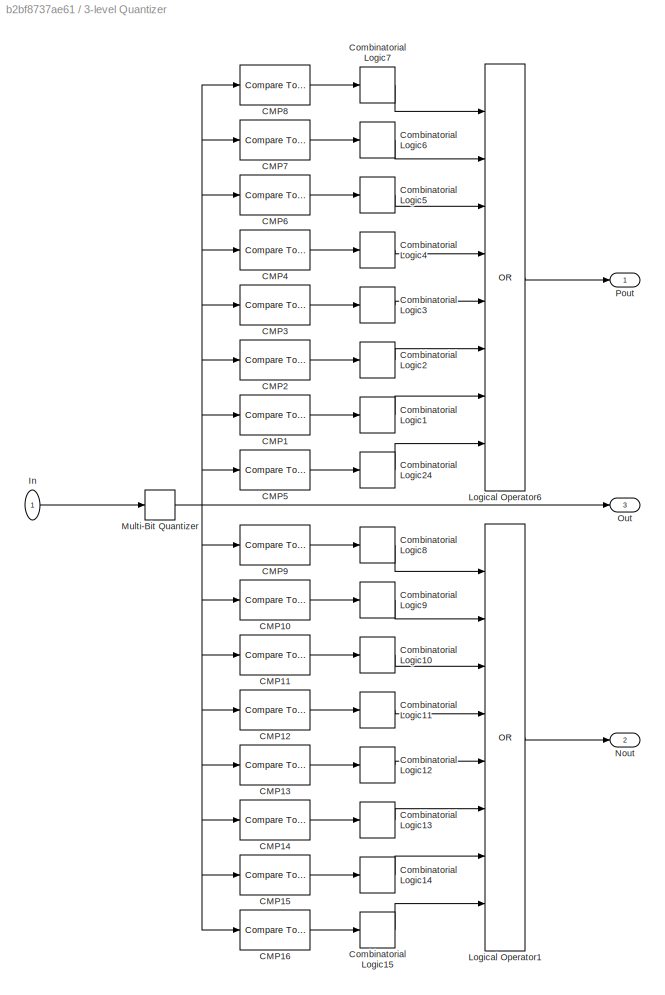
BLOCK [SubSystem] 3-level Quantizer
  Ports = [1, 3]
  RequestExecContextInheritance = off
  Variant = off
BLOCK [Reference] 3-level Quantizer/CMP1  REF=simulink/Logic and Bit
Operations/Compare
To Constant
  Ports = [1, 1]
  SourceBlock = simulink/Logic and Bit\nOperations/Compare\nTo Constant
  SourceProductBaseCode = SL
  SourceProductName = Simulink
  SourceType = Compare To Constant
BLOCK [Reference] 3-level Quantizer/CMP10  REF=simulink/Logic and Bit
Operations/Compare
To Constant
  Ports = [1, 1]
  SourceBlock = simulink/Logic and Bit\nOperations/Compare\nTo Constant
  SourceProductBaseCode = SL
  SourceProductName = Simulink
  SourceType = Compare To Constant
BLOCK [Reference] 3-level Quantizer/CMP11  REF=simulink/Logic and Bit
Operations/Compare
To Constant
  Ports = [1, 1]
  SourceBlock = simulink/Logic and Bit\nOperations/Compare\nTo Constant
  SourceProductBaseCode = SL
  SourceProductName = Simulink
  SourceType = Compare To Constant
BLOCK [Reference] 3-level Quantizer/CMP12  REF=simulink/Logic and Bit
Operations/Compare
To Constant
  Ports = [1, 1]
  SourceBlock = simulink/Logic and Bit\nOperations/Compare\nTo Constant
  SourceProductBaseCode = SL
  SourceProductName = Simulink
  SourceType = Compare To Constant
BLOCK [Reference] 3-level Quantizer/CMP13  REF=simulink/Logic and Bit
Operations/Compare
To Constant
  Ports = [1, 1]
  SourceBlock = simulink/Logic and Bit\nOperations/Compare\nTo Constant
  SourceProductBaseCode = SL
  SourceProductName = Simulink
  SourceType = Compare To Constant
BLOCK [Reference] 3-level Quantizer/CMP14  REF=simulink/Logic and Bit
Operations/Compare
To Constant
  Ports = [1, 1]
  SourceBlock = simulink/Logic and Bit\nOperations/Compare\nTo Constant
  SourceProductBaseCode = SL
  SourceProductName = Simulink
  SourceType = Compare To Constant
BLOCK [Reference] 3-level Quantizer/CMP15  REF=simulink/Logic and Bit
Operations/Compare
To Constant
  Ports = [1, 1]
  SourceBlock = simulink/Logic and Bit\nOperations/Compare\nTo Constant
  SourceProductBaseCode = SL
  SourceProductName = Simulink
  SourceType = Compare To Constant
BLOCK [Reference] 3-level Quantizer/CMP16  REF=simulink/Logic and Bit
Operations/Compare
To Constant
  Ports = [1, 1]
  SourceBlock = simulink/Logic and Bit\nOperations/Compare\nTo Constant
  SourceProductBaseCode = SL
  SourceProductName = Simulink
  SourceType = Compare To Constant
BLOCK [Reference] 3-level Quantizer/CMP2  REF=simulink/Logic and Bit
Operations/Compare
To Constant
  Ports = [1, 1]
  SourceBlock = simulink/Logic and Bit\nOperations/Compare\nTo Constant
  SourceProductBaseCode = SL
  SourceProductName = Simulink
  SourceType = Compare To Constant
BLOCK [Reference] 3-level Quantizer/CMP3  REF=simulink/Logic and Bit
Operations/Compare
To Constant
  Ports = [1, 1]
  SourceBlock = simulink/Logic and Bit\nOperations/Compare\nTo Constant
  SourceProductBaseCode = SL
  SourceProductName = Simulink
  SourceType = Compare To Constant
BLOCK [Reference] 3-level Quantizer/CMP4  REF=simulink/Logic and Bit
Operations/Compare
To Constant
  Ports = [1, 1]
  SourceBlock = simulink/Logic and Bit\nOperations/Compare\nTo Constant
  SourceProductBaseCode = SL
  SourceProductName = Simulink
  SourceType = Compare To Constant
BLOCK [Reference] 3-level Quantizer/CMP5  REF=simulink/Logic and Bit
Operations/Compare
To Constant
  Ports = [1, 1]
  SourceBlock = simulink/Logic and Bit\nOperations/Compare\nTo Constant
  SourceProductBaseCode = SL
  SourceProductName = Simulink
  SourceType = Compare To Constant
BLOCK [Reference] 3-level Quantizer/CMP6  REF=simulink/Logic and Bit
Operations/Compare
To Constant
  Ports = [1, 1]
  SourceBlock = simulink/Logic and Bit\nOperations/Compare\nTo Constant
  SourceProductBaseCode = SL
  SourceProductName = Simulink
  SourceType = Compare To Constant
BLOCK [Reference] 3-level Quantizer/CMP7  REF=simulink/Logic and Bit
Operations/Compare
To Constant
  Ports = [1, 1]
  SourceBlock = simulink/Logic and Bit\nOperations/Compare\nTo Constant
  SourceProductBaseCode = SL
  SourceProductName = Simulink
  SourceType = Compare To Constant
BLOCK [Reference] 3-level Quantizer/CMP8  REF=simulink/Logic and Bit
Operations/Compare
To Constant
  Ports = [1, 1]
  SourceBlock = simulink/Logic and Bit\nOperations/Compare\nTo Constant
  SourceProductBaseCode = SL
  SourceProductName = Simulink
  SourceType = Compare To Constant
BLOCK [Reference] 3-level Quantizer/CMP9  REF=simulink/Logic and Bit
Operations/Compare
To Constant
  Ports = [1, 1]
  SourceBlock = simulink/Logic and Bit\nOperations/Compare\nTo Constant
  SourceProductBaseCode = SL
  SourceProductName = Simulink
  SourceType = Compare To Constant
BLOCK [CombinatorialLogic] 3-level Quantizer/Combinatorial Logic1
  TruthTable = [0 0 0 0 0 0 0 0;1 1 0 0 0 0 0 0]
BLOCK [CombinatorialLogic] 3-level Quantizer/Combinatorial Logic10
  TruthTable = [0 0 0 0 0 0 0 0;1 1 1 0 0 0 0 0]
BLOCK [CombinatorialLogic] 3-level Quantizer/Combinatorial Logic11
  TruthTable = [0 0 0 0 0 0 0 0;1 1 1 1 0 0 0 0]
BLOCK [CombinatorialLogic] 3-level Quantizer/Combinatorial Logic12
  TruthTable = [0 0 0 0 0 0 0 0;1 1 1 1 1 0 0 0]
BLOCK [CombinatorialLogic] 3-level Quantizer/Combinatorial Logic13
  TruthTable = [0 0 0 0 0 0 0 0;1 1 1 1 1 1 0 0]
BLOCK [CombinatorialLogic] 3-level Quantizer/Combinatorial Logic14
  TruthTable = [0 0 0 0 0 0 0 0;1 1 1 1 1 1 1 0]
BLOCK [CombinatorialLogic] 3-level Quantizer/Combinatorial Logic15
  TruthTable = [0 0 0 0 0 0 0 0;1 1 1 1 1 1 1 1]
BLOCK [CombinatorialLogic] 3-level Quantizer/Combinatorial Logic2
  TruthTable = [0 0 0 0 0 0 0 0;1 1 1 0 0 0 0 0]
BLOCK [CombinatorialLogic] 3-level Quantizer/Combinatorial Logic24
  TruthTable = [0 0 0 0 0 0 0 0;1 0 0 0 0 0 0 0]
BLOCK [CombinatorialLogic] 3-level Quantizer/Combinatorial Logic3
  TruthTable = [0 0 0 0 0 0 0 0;1 1 1 1 0 0 0 0]
BLOCK [CombinatorialLogic] 3-level Quantizer/Combinatorial Logic4
  TruthTable = [0 0 0 0 0 0 0 0;1 1 1 1 1 0 0 0]
BLOCK [CombinatorialLogic] 3-level Quantizer/Combinatorial Logic5
  TruthTable = [0 0 0 0 0 0 0 0;1 1 1 1 1 1 0 0]
BLOCK [CombinatorialLogic] 3-level Quantizer/Combinatorial Logic6
  TruthTable = [0 0 0 0 0 0 0 0;1 1 1 1 1 1 1 0]
BLOCK [CombinatorialLogic] 3-level Quantizer/Combinatorial Logic7
  TruthTable = [0 0 0 0 0 0 0 0;1 1 1 1 1 1 1 1]
BLOCK [CombinatorialLogic] 3-level Quantizer/Combinatorial Logic8
  TruthTable = [0 0 0 0 0 0 0 0;1 0 0 0 0 0 0 0]
BLOCK [CombinatorialLogic] 3-level Quantizer/Combinatorial Logic9
  TruthTable = [0 0 0 0 0 0 0 0;1 1 0 0 0 0 0 0]
BLOCK [Inport] 3-level Quantizer/In
  IconDisplay = Port number
BLOCK [Logic] 3-level Quantizer/Logical Operator1
  AllPortsSameDT = off
  Inputs = 8
  Operator = OR
  OutDataTypeStr = boolean
  Ports = [8, 1]
BLOCK [Logic] 3-level Quantizer/Logical Operator6
  AllPortsSameDT = off
  Inputs = 8
  Operator = OR
  OutDataTypeStr = boolean
  Ports = [8, 1]
BLOCK [Quantizer] 3-level Quantizer/Multi-Bit Quantizer
  QuantizationInterval = FSC/8
BLOCK [Outport] 3-level Quantizer/Nout
  IconDisplay = Port number
  Port = 2
BLOCK [Outport] 3-level Quantizer/Out
  IconDisplay = Port number
  Port = 3
BLOCK [Outport] 3-level Quantizer/Pout
  IconDisplay = Port number
BLOCK [SubSystem] 3rd Order CIFB
  Ports = [2, 1]
  RequestExecContextInheritance = off
  Variant = off
BLOCK [Inport] 3rd Order CIFB/Feedback
  IconDisplay = Port number
  Port = 2
BLOCK [UnitDelay] 3rd Order CIFB/INT1
  SampleTime = Ts
BLOCK [UnitDelay] 3rd Order CIFB/INT2
  SampleTime = Ts
BLOCK [UnitDelay] 3rd Order CIFB/INT4
  SampleTime = Ts
BLOCK [Inport] 3rd Order CIFB/In
  IconDisplay = Port number
BLOCK [Outport] 3rd Order CIFB/Out
  IconDisplay = Port number
BLOCK [Saturate] 3rd Order CIFB/Saturation
  InputPortMap = u0
  LowerLimit = -sat
  Ports = [1, 1]
  UpperLimit = sat
BLOCK [Saturate] 3rd Order CIFB/Saturation1
  InputPortMap = u0
  LowerLimit = -sat
  Ports = [1, 1]
  UpperLimit = sat
BLOCK [Saturate] 3rd Order CIFB/Saturation2
  InputPortMap = u0
  LowerLimit = -sat
  Ports = [1, 1]
  UpperLimit = sat
BLOCK [Gain] 3rd Order CIFB/a1
  Gain = a1
  SampleTime = Ts
  SaturateOnIntegerOverflow = off
BLOCK [Gain] 3rd Order CIFB/a2
  Gain = a2
  SampleTime = Ts
  SaturateOnIntegerOverflow = off
BLOCK [Gain] 3rd Order CIFB/a3
  Gain = a3
  SampleTime = Ts
  SaturateOnIntegerOverflow = off
BLOCK [Gain] 3rd Order CIFB/b1
  Gain = b1
  SampleTime = Ts
BLOCK [Gain] 3rd Order CIFB/b2
  Gain = b2
  SampleTime = Ts
BLOCK [Gain] 3rd Order CIFB/b3
  Gain = b3
  SampleTime = Ts
BLOCK [Gain] 3rd Order CIFB/b4
  Gain = b4
  SampleTime = Ts
BLOCK [Gain] 3rd Order CIFB/c1
  Gain = c1
  SampleTime = Ts
  SaturateOnIntegerOverflow = off
BLOCK [Gain] 3rd Order CIFB/c2
  Gain = c2
  SampleTime = Ts
  SaturateOnIntegerOverflow = off
BLOCK [Gain] 3rd Order CIFB/c3
  Gain = c3
  SampleTime = Ts
  SaturateOnIntegerOverflow = off
BLOCK [Sum] 3rd Order CIFB/dd1
  IconShape = round
  Inputs = |+-
  OutDataTypeStr = double
  Ports = [2, 1]
  SampleTime = Ts
BLOCK [Sum] 3rd Order CIFB/dd10
  IconShape = round
  Inputs = +-+-
  OutDataTypeStr = double
  Ports = [4, 1]
  SampleTime = Ts
BLOCK [Sum] 3rd Order CIFB/dd2
  IconShape = round
  Inputs = ++-
  OutDataTypeStr = double
  Ports = [3, 1]
  SampleTime = Ts
BLOCK [Sum] 3rd Order CIFB/dd3
  IconShape = round
  Inputs = ++|
  OutDataTypeStr = double
  Ports = [2, 1]
  SampleTime = Ts
BLOCK [Sum] 3rd Order CIFB/dd6
  IconShape = round
  Inputs = ++|
  OutDataTypeStr = double
  Ports = [2, 1]
BLOCK [Sum] 3rd Order CIFB/dd8
  IconShape = round
  Inputs = ++|
  OutDataTypeStr = double
  Ports = [2, 1]
BLOCK [Sum] 3rd Order CIFB/dd9
  IconShape = round
  Inputs = ++|
  OutDataTypeStr = double
  Ports = [2, 1]
BLOCK [Gain] 3rd Order CIFB/g1
  Gain = g1
  SampleTime = Ts
BLOCK [Reference] AES17 20kHzLPF  REF=dspfdesign/Lowpass Filter
  Commented = on
  Ports = [1, 1]
  SourceBlock = dspfdesign/Lowpass Filter
  SourceProductBaseCode = DS
  SourceProductName = DSP System Toolbox
  SourceType = dsp.LowpassFilter
BLOCK [Reference] AUDIO1  REF=dspvision/From Multimedia File
  Commented = on
  Ports = [0, 1]
  SourceBlock = dspvision/From Multimedia File
  SourceProductBaseCode = VP
  SourceProductName = Computer Vision System Toolbox
  SourceType = From Multimedia File
BLOCK [SubSystem] Adder
  Commented = on
  Ports = [2, 1]
  RequestExecContextInheritance = off
  Variant = off
BLOCK [Demux] Adder/Demux
  DisplayOption = bar
  Outputs = 8
  Ports = [1, 8]
BLOCK [Demux] Adder/Demux1
  DisplayOption = bar
  Outputs = 8
  Ports = [1, 8]
BLOCK [Inport] Adder/Nin
  IconDisplay = Port number
  Port = 2
BLOCK [Outport] Adder/Out
  IconDisplay = Port number
BLOCK [Inport] Adder/Pin
  IconDisplay = Port number
BLOCK [Gain] Adder/c1
  Gain = err(1)
  SaturateOnIntegerOverflow = off
BLOCK [Gain] Adder/c2
  Gain = err(2)
  SaturateOnIntegerOverflow = off
BLOCK [Gain] Adder/c3
  Gain = err(3)
  SaturateOnIntegerOverflow = off
BLOCK [Gain] Adder/c4
  Gain = err(4)
  SaturateOnIntegerOverflow = off
BLOCK [Gain] Adder/c5
  Gain = err(5)
  SaturateOnIntegerOverflow = off
BLOCK [Gain] Adder/c6
  Gain = err(6)
  SaturateOnIntegerOverflow = off
BLOCK [Gain] Adder/c7
  Gain = err(7)
  SaturateOnIntegerOverflow = off
BLOCK [Gain] Adder/c8
  Gain = err(8)
  SaturateOnIntegerOverflow = off
BLOCK [Sum] Adder/dd1
  IconShape = round
  Inputs = +-
  OutDataTypeStr = double
  Ports = [2, 1]
BLOCK [Sum] Adder/dd2
  IconShape = round
  Inputs = +-
  OutDataTypeStr = double
  Ports = [2, 1]
BLOCK [Sum] Adder/dd3
  IconShape = round
  Inputs = |++++++++
  OutDataTypeStr = double
  Ports = [8, 1]
BLOCK [Sum] Adder/dd4
  IconShape = round
  Inputs = +-
  OutDataTypeStr = double
  Ports = [2, 1]
BLOCK [Sum] Adder/dd5
  IconShape = round
  Inputs = +-
  OutDataTypeStr = double
  Ports = [2, 1]
BLOCK [Sum] Adder/dd6
  IconShape = round
  Inputs = +-
  OutDataTypeStr = double
  Ports = [2, 1]
BLOCK [Sum] Adder/dd7
  IconShape = round
  Inputs = +-
  OutDataTypeStr = double
  Ports = [2, 1]
BLOCK [Sum] Adder/dd8
  IconShape = round
  Inputs = +-
  OutDataTypeStr = double
  Ports = [2, 1]
BLOCK [Sum] Adder/dd9
  IconShape = round
  Inputs = +-
  OutDataTypeStr = double
  Ports = [2, 1]
BLOCK [SubSystem] Adder1
  Ports = [2, 1]
  RequestExecContextInheritance = off
  Variant = off
BLOCK [Demux] Adder1/Demux
  DisplayOption = bar
  Outputs = 8
  Ports = [1, 8]
BLOCK [Demux] Adder1/Demux1
  DisplayOption = bar
  Outputs = 8
  Ports = [1, 8]
BLOCK [Inport] Adder1/Nin
  IconDisplay = Port number
  Port = 2
BLOCK [Outport] Adder1/Out
  IconDisplay = Port number
BLOCK [Inport] Adder1/Pin
  IconDisplay = Port number
BLOCK [Gain] Adder1/c10
  Gain = err(6)
  SaturateOnIntegerOverflow = off
BLOCK [Gain] Adder1/c11
  Gain = err(7)
  SaturateOnIntegerOverflow = off
BLOCK [Gain] Adder1/c12
  Gain = err(8)
  SaturateOnIntegerOverflow = off
BLOCK [Gain] Adder1/c13
  Gain = err(7)
  SaturateOnIntegerOverflow = off
BLOCK [Gain] Adder1/c14
  Gain = err(8)
  SaturateOnIntegerOverflow = off
BLOCK [Gain] Adder1/c15
  Gain = err(1)
  SaturateOnIntegerOverflow = off
BLOCK [Gain] Adder1/c16
  Gain = err(2)
  SaturateOnIntegerOverflow = off
BLOCK [Gain] Adder1/c17
  Gain = err(3)
  SaturateOnIntegerOverflow = off
BLOCK [Gain] Adder1/c18
  Gain = err(4)
  SaturateOnIntegerOverflow = off
BLOCK [Gain] Adder1/c19
  Gain = err(5)
  SaturateOnIntegerOverflow = off
BLOCK [Gain] Adder1/c4
  Gain = err(6)
  SaturateOnIntegerOverflow = off
BLOCK [Gain] Adder1/c5
  Gain = err(1)
  SaturateOnIntegerOverflow = off
BLOCK [Gain] Adder1/c6
  Gain = err(2)
  SaturateOnIntegerOverflow = off
BLOCK [Gain] Adder1/c7
  Gain = err(3)
  SaturateOnIntegerOverflow = off
BLOCK [Gain] Adder1/c8
  Gain = err(4)
  SaturateOnIntegerOverflow = off
BLOCK [Gain] Adder1/c9
  Gain = err(5)
  SaturateOnIntegerOverflow = off
BLOCK [Sum] Adder1/dd3
  IconShape = round
  Inputs = |++++++++--------
  OutDataTypeStr = double
  Ports = [16, 1]
BLOCK [SubSystem] Amp
  DialogController = hmiCreateDDGDialog
  IsWebBlock = on
  MaskHideContents = on
  Ports = []
  RequestExecContextInheritance = off
  Variant = off
BLOCK [Gain] Attenuator1
  Commented = on
  Gain = 0.8
  SaturateOnIntegerOverflow = off
BLOCK [SubSystem] Audio Weighting Filter
  Commented = on
  CopyFcn = fdesignblkfcn(gcbh, {'CopyFcn'});
  DialogController = fdesignblkfcn
  InitFcn = fdesignblkfcn(gcbh, {'InitFcn'});
  Ports = [1, 1]
  RequestExecContextInheritance = off
  UserDataPersistent = on
  Variant = off
BLOCK [Reference] Audio Weighting Filter/Generated Filter Block  REF=dsparch4/Biquad Filter
  Ports = [1, 1]
  SourceBlock = dsparch4/Biquad Filter
  SourceProductBaseCode = DS
  SourceProductName = DSP System Toolbox
  SourceType = Biquad Filter
  Tag = BlockMethodSubSystem
  UserDataPersistent = on
BLOCK [Inport] Audio Weighting Filter/In
  IconDisplay = Port number
BLOCK [Outport] Audio Weighting Filter/Out
  IconDisplay = Port number
BLOCK [Buffer] Buffer
  Commented = on
  N = 1
BLOCK [Constant] Constant
  Value = Fs
BLOCK [Constant] Constant1
  Value = Fin
BLOCK [Constant] Constant2
  Value = N
BLOCK [Constant] Constant3
  Value = Fs/48000
BLOCK [Reference] FIR Rate Conversion1  REF=dspmlti4/FIR Rate
Conversion
  Commented = on
  Ports = [1, 1]
  SourceBlock = dspmlti4/FIR Rate\nConversion
  SourceProductBaseCode = DS
  SourceProductName = DSP System Toolbox
  SourceType = FIR Rate Conversion
BLOCK [From] From
  GotoTag = Input
BLOCK [From] From1
  GotoTag = DSMout
BLOCK [From] From2
  GotoTag = Output
BLOCK [From] From3
  GotoTag = Input
BLOCK [From] From4
  GotoTag = DSMout
BLOCK [From] From5
  GotoTag = Output
BLOCK [From] From6
  Commented = on
  GotoTag = Output
BLOCK [From] From7
  GotoTag = Output
BLOCK [Goto] Goto
  GotoTag = Input
BLOCK [Goto] Goto1
  GotoTag = DSMout
BLOCK [Goto] Goto2
  GotoTag = Output
BLOCK [SubSystem] Input Freq
  DialogController = hmiCreateDDGDialog
  IsWebBlock = on
  MaskHideContents = on
  Ports = []
  RequestExecContextInheritance = off
  Variant = off
BLOCK [Display] Input Frequency[Hz]
  Decimation = 1
  Ports = [1]
BLOCK [ManualSwitch] Manual Switch
BLOCK [ManualSwitch] Manual Switch1
  Commented = on
BLOCK [SubSystem] NSDEM Switch
  DialogController = hmiCreateDDGDialog
  IsWebBlock = on
  MaskHideContents = on
  Ports = []
  RequestExecContextInheritance = off
  Variant = off
BLOCK [Display] OSR
  Decimation = 1
  Format = long
  Ports = [1]
BLOCK [Display] Plot Number
  Decimation = 1
  Format = long
  Ports = [1]
BLOCK [ZeroOrderHold] Sample and Hold
  SampleTime = Ts
BLOCK [Display] Sampling Frequency[Hz]
  Decimation = 1
  Format = long
  Ports = [1]
BLOCK [Scope] Scope2
  NumInputPorts = 3
  Ports = [3]
  ScopeSpecificationString = Simulink.scopes.TimeScopeBlockCfg('CurrentConfiguration', extmgr.ConfigurationSet(extmgr.Configuration('Core','General UI',true,'FigureColor',[0.156862745098039 0.156862745098039 0.156862745098039]),extmgr.Configuration('Core','Source UI',true),extmgr.Configuration('Sources','WiredSimulink',true,'DataLoggingLimitDataPoints',true,'DataLoggingVariableName','ScopeData3','DataLoggingDecimation','1','D...<+3891ch>
BLOCK [SignalGenerator] Signal Generator
  Amplitude = Amp
  Frequency = Fin
  Ports = [0, 1]
BLOCK [SpectrumAnalyzer] Spectrum DSM
  NumInputPorts = 1
  Ports = [1]
  ScopeSpecificationString = spbscopes.SpectrumAnalyzerBlockCfg('CurrentConfiguration', extmgr.ConfigurationSet(extmgr.Configuration('Core','General UI',true),extmgr.Configuration('Core','Source UI',true),extmgr.Configuration('Sources','WiredSimulink',true),extmgr.Configuration('Sources','Simulink',false),extmgr.Configuration('Sources','SimulinkEvent',false),extmgr.Configuration('Sources','File',false),extmgr.Configuration('S...<+3651ch>
BLOCK [SpectrumAnalyzer] Spectrum Input
  NumInputPorts = 1
  Ports = [1]
  ScopeSpecificationString = spbscopes.SpectrumAnalyzerBlockCfg('CurrentConfiguration', extmgr.ConfigurationSet(extmgr.Configuration('Core','General UI',true),extmgr.Configuration('Core','Source UI',true),extmgr.Configuration('Sources','WiredSimulink',true),extmgr.Configuration('Sources','Simulink',false),extmgr.Configuration('Sources','SimulinkEvent',false),extmgr.Configuration('Sources','File',false),extmgr.Configuration('S...<+3155ch>
BLOCK [SpectrumAnalyzer] Spectrum Output
  NumInputPorts = 1
  Ports = [1]
  ScopeSpecificationString = spbscopes.SpectrumAnalyzerBlockCfg('CurrentConfiguration', extmgr.ConfigurationSet(extmgr.Configuration('Core','General UI',true),extmgr.Configuration('Core','Source UI',true),extmgr.Configuration('Sources','WiredSimulink',true),extmgr.Configuration('Sources','Simulink',false),extmgr.Configuration('Sources','SimulinkEvent',false),extmgr.Configuration('Sources','File',false),extmgr.Configuration('S...<+3594ch>
BLOCK [SpectrumAnalyzer] Spectrum Output1
  Commented = on
  NumInputPorts = 1
  Ports = [1]
  ScopeSpecificationString = spbscopes.SpectrumAnalyzerBlockCfg('CurrentConfiguration', extmgr.ConfigurationSet(extmgr.Configuration('Core','General UI',true),extmgr.Configuration('Core','Source UI',true),extmgr.Configuration('Sources','WiredSimulink',true),extmgr.Configuration('Sources','Simulink',false),extmgr.Configuration('Sources','SimulinkEvent',false),extmgr.Configuration('Sources','File',false),extmgr.Configuration('S...<+3693ch>
BLOCK [SubSystem] Subsystem
  Ports = []
  RequestExecContextInheritance = off
  Variant = off
BLOCK [Demux] Subsystem/Demux1
  DisplayOption = bar
  Outputs = 8
  Ports = [1, 8]
BLOCK [Demux] Subsystem/Demux2
  DisplayOption = bar
  Outputs = 8
  Ports = [1, 8]
BLOCK [Demux] Subsystem/Demux3
  DisplayOption = bar
  Outputs = 8
  Ports = [1, 8]
BLOCK [Demux] Subsystem/Demux4
  DisplayOption = bar
  Outputs = 8
  Ports = [1, 8]
BLOCK [From] Subsystem/From
  GotoTag = firtstMIN
  TagVisibility = global
BLOCK [From] Subsystem/From1
  GotoTag = INTEGin
  TagVisibility = global
BLOCK [From] Subsystem/From2
  GotoTag = secondMIN
  TagVisibility = global
BLOCK [From] Subsystem/From7
  GotoTag = sortin
  TagVisibility = global
BLOCK [Scope] Subsystem/Scope
  NumInputPorts = 8
  Ports = [8]
  ScopeSpecificationString = Simulink.scopes.TimeScopeBlockCfg('CurrentConfiguration', extmgr.ConfigurationSet(extmgr.Configuration('Core','General UI',true),extmgr.Configuration('Core','Source UI',true),extmgr.Configuration('Sources','WiredSimulink',true,'DataLoggingVariableName','ScopeData2'),extmgr.Configuration('Visuals','Time Domain',true,'SerializedDisplays',{struct('MinYLimReal','-55.875','MaxYLimReal','182.875','YLabe...<+6576ch>
BLOCK [Scope] Subsystem/Scope1
  NumInputPorts = 8
  Ports = [8]
  ScopeSpecificationString = Simulink.scopes.TimeScopeBlockCfg('CurrentConfiguration', extmgr.ConfigurationSet(extmgr.Configuration('Core','General UI',true),extmgr.Configuration('Core','Source UI',true),extmgr.Configuration('Sources','WiredSimulink',true,'DataLoggingVariableName','ScopeData1'),extmgr.Configuration('Visuals','Time Domain',true,'SerializedDisplays',{struct('MinYLimReal','-1.5','MaxYLimReal','3.5','YLabelReal',...<+6495ch>
BLOCK [Scope] Subsystem/Scope2
  NumInputPorts = 8
  Ports = [8]
  ScopeSpecificationString = Simulink.scopes.TimeScopeBlockCfg('CurrentConfiguration', extmgr.ConfigurationSet(extmgr.Configuration('Core','General UI',true),extmgr.Configuration('Core','Source UI',true),extmgr.Configuration('Sources','WiredSimulink',true,'DataLoggingVariableName','ScopeData3'),extmgr.Configuration('Visuals','Time Domain',true,'SerializedDisplays',{struct('MinYLimReal','-12.375','MaxYLimReal','31.375','YLabel...<+6530ch>
BLOCK [Scope] Subsystem/Scope3
  NumInputPorts = 8
  Ports = [8]
  ScopeSpecificationString = Simulink.scopes.TimeScopeBlockCfg('CurrentConfiguration', extmgr.ConfigurationSet(extmgr.Configuration('Core','General UI',true),extmgr.Configuration('Core','Source UI',true),extmgr.Configuration('Sources','WiredSimulink',true,'DataLoggingVariableName','ScopeData4'),extmgr.Configuration('Visuals','Time Domain',true,'SerializedDisplays',{struct('MinYLimReal','-1.25','MaxYLimReal','1.25','YLabelReal...<+6531ch>
BLOCK [ToWorkspace] To Workspace
  MaxDataPoints = inf
  Ports = [1]
  SampleTime = -1
  Save2DSignal = 3-D array (concatenate along third dimension)
  VariableName = simout
BLOCK [Reference] Waterfall1  REF=dspsnks4/Waterfall
  Commented = on
  Ports = [1]
  SourceBlock = dspsnks4/Waterfall
  SourceProductBaseCode = DS
  SourceProductName = DSP System Toolbox
  SourceType = Waterfall
BLOCK [Reference] Waterfall2  REF=dspsnks4/Waterfall
  Commented = on
  Ports = [1]
  SourceBlock = dspsnks4/Waterfall
  SourceProductBaseCode = DS
  SourceProductName = DSP System Toolbox
  SourceType = Waterfall
BLOCK [SubSystem] adjust settings1
  Ports = []
  Priority = 1
  RequestExecContextInheritance = off
  Variant = off
BLOCK [Gain] c1
  Gain = 1/8
  SaturateOnIntegerOverflow = off
BLOCK [Gain] c2
  Gain = 1/8
  SaturateOnIntegerOverflow = off
ANNOTATION (root): 8bit Digital Speaker Model
ANNOTATION (root): edited by Yuki Furuya
ANNOTATION (root): NSDEM:3-level 3rd Order
ANNOTATION adjust settings1: This subsystem is empty. It is used for setting parameter values (in the mask).
NET 3-level NSDEM /Add:1 -> 3-level NSDEM /Goto3:1, 3-level NSDEM /INTEG:1, 3-level NSDEM /To Workspace4:1
LINE 3-level NSDEM /Constant1:1 -> 3-level NSDEM /Switch1:2
LINE 3-level NSDEM /Constant:1 -> 3-level NSDEM /Switch:2
NET 3-level NSDEM /Data Type Conversion1:1 -> 3-level NSDEM /Add:1, 3-level NSDEM /Switch:1, 3-level NSDEM /To Workspace2:1
NET 3-level NSDEM /Data Type Conversion2:1 -> 3-level NSDEM /Add:2, 3-level NSDEM /Switch1:1, 3-level NSDEM /To Workspace3:1
LINE 3-level NSDEM /Demux1:1 -> 3-level NSDEM /MinMax2:1
LINE 3-level NSDEM /Demux1:2 -> 3-level NSDEM /MinMax2:2
LINE 3-level NSDEM /Demux1:3 -> 3-level NSDEM /MinMax2:3
LINE 3-level NSDEM /Demux1:4 -> 3-level NSDEM /MinMax2:4
LINE 3-level NSDEM /Demux1:5 -> 3-level NSDEM /MinMax2:5
LINE 3-level NSDEM /Demux1:6 -> 3-level NSDEM /MinMax2:6
LINE 3-level NSDEM /Demux1:7 -> 3-level NSDEM /MinMax2:7
LINE 3-level NSDEM /Demux1:8 -> 3-level NSDEM /MinMax2:8
LINE 3-level NSDEM /Demux2:1 -> 3-level NSDEM /MinMax1:1
LINE 3-level NSDEM /Demux2:2 -> 3-level NSDEM /MinMax1:2
LINE 3-level NSDEM /Demux2:3 -> 3-level NSDEM /MinMax1:3
LINE 3-level NSDEM /Demux2:4 -> 3-level NSDEM /MinMax1:4
LINE 3-level NSDEM /Demux2:5 -> 3-level NSDEM /MinMax1:5
LINE 3-level NSDEM /Demux2:6 -> 3-level NSDEM /MinMax1:6
LINE 3-level NSDEM /Demux2:7 -> 3-level NSDEM /MinMax1:7
LINE 3-level NSDEM /Demux2:8 -> 3-level NSDEM /MinMax1:8
LINE 3-level NSDEM /Demux3:1 -> 3-level NSDEM /Sort16:1
LINE 3-level NSDEM /Demux3:2 -> 3-level NSDEM /Sort16:2
LINE 3-level NSDEM /Demux3:3 -> 3-level NSDEM /Sort16:3
LINE 3-level NSDEM /Demux3:4 -> 3-level NSDEM /Sort16:4
LINE 3-level NSDEM /Demux3:5 -> 3-level NSDEM /Sort16:5
LINE 3-level NSDEM /Demux3:6 -> 3-level NSDEM /Sort16:6
LINE 3-level NSDEM /Demux3:7 -> 3-level NSDEM /Sort16:7
LINE 3-level NSDEM /Demux3:8 -> 3-level NSDEM /Sort16:8
LINE 3-level NSDEM /Demux:1 -> 3-level NSDEM /Mux2:8
LINE 3-level NSDEM /Demux:2 -> 3-level NSDEM /Mux2:7
LINE 3-level NSDEM /Demux:3 -> 3-level NSDEM /Mux2:6
LINE 3-level NSDEM /Demux:4 -> 3-level NSDEM /Mux2:5
LINE 3-level NSDEM /Demux:5 -> 3-level NSDEM /Mux2:4
LINE 3-level NSDEM /Demux:6 -> 3-level NSDEM /Mux2:3
LINE 3-level NSDEM /Demux:7 -> 3-level NSDEM /Mux2:2
LINE 3-level NSDEM /Demux:8 -> 3-level NSDEM /Mux2:1
LINE 3-level NSDEM /INTEG/Demux:1 -> 3-level NSDEM /INTEG/INTEG4_1:1
LINE 3-level NSDEM /INTEG/Demux:2 -> 3-level NSDEM /INTEG/INTEG4_2:1
LINE 3-level NSDEM /INTEG/Demux:3 -> 3-level NSDEM /INTEG/INTEG4_3:1
LINE 3-level NSDEM /INTEG/Demux:4 -> 3-level NSDEM /INTEG/INTEG4_4:1
LINE 3-level NSDEM /INTEG/Demux:5 -> 3-level NSDEM /INTEG/INTEG4_5:1
LINE 3-level NSDEM /INTEG/Demux:6 -> 3-level NSDEM /INTEG/INTEG4_6:1
LINE 3-level NSDEM /INTEG/Demux:7 -> 3-level NSDEM /INTEG/INTEG4_7:1
LINE 3-level NSDEM /INTEG/Demux:8 -> 3-level NSDEM /INTEG/INTEG4_8:1
LINE 3-level NSDEM /INTEG/INTEG4_1/Add1:1 -> 3-level NSDEM /INTEG/INTEG4_1/Saturation1:1
LINE 3-level NSDEM /INTEG/INTEG4_1/Add2:1 -> 3-level NSDEM /INTEG/INTEG4_1/Saturation2:1
LINE 3-level NSDEM /INTEG/INTEG4_1/Add3:1 -> 3-level NSDEM /INTEG/INTEG4_1/Saturation4:1
LINE 3-level NSDEM /INTEG/INTEG4_1/Add4:1 -> 3-level NSDEM /INTEG/INTEG4_1/Saturation:1
LINE 3-level NSDEM /INTEG/INTEG4_1/Add5:1 -> 3-level NSDEM /INTEG/INTEG4_1/Saturation3:1
LINE 3-level NSDEM /INTEG/INTEG4_1/Gain1:1 -> 3-level NSDEM /INTEG/INTEG4_1/Add4:2
LINE 3-level NSDEM /INTEG/INTEG4_1/Gain2:1 -> 3-level NSDEM /INTEG/INTEG4_1/Add3:1
LINE 3-level NSDEM /INTEG/INTEG4_1/Gain3:1 -> 3-level NSDEM /INTEG/INTEG4_1/Add5:4
LINE 3-level NSDEM /INTEG/INTEG4_1/Gain:1 -> 3-level NSDEM /INTEG/INTEG4_1/Add1:1
NET 3-level NSDEM /INTEG/INTEG4_1/IN:1 -> 3-level NSDEM /INTEG/INTEG4_1/Gain1:1, 3-level NSDEM /INTEG/INTEG4_1/Gain2:1, 3-level NSDEM /INTEG/INTEG4_1/Gain:1
NET 3-level NSDEM /INTEG/INTEG4_1/INT1:1 -> 3-level NSDEM /INTEG/INTEG4_1/Add2:1, 3-level NSDEM /INTEG/INTEG4_1/Gain3:1, 3-level NSDEM /INTEG/INTEG4_1/OUT3:1, 3-level NSDEM /INTEG/INTEG4_1/Scope2:1
NET 3-level NSDEM /INTEG/INTEG4_1/INT2:1 -> 3-level NSDEM /INTEG/INTEG4_1/Add1:2, 3-level NSDEM /INTEG/INTEG4_1/Add4:1, 3-level NSDEM /INTEG/INTEG4_1/OUT1:1, 3-level NSDEM /INTEG/INTEG4_1/Scope:1
NET 3-level NSDEM /INTEG/INTEG4_1/INT3:1 -> 3-level NSDEM /INTEG/INTEG4_1/Add3:2, 3-level NSDEM /INTEG/INTEG4_1/Add5:1, 3-level NSDEM /INTEG/INTEG4_1/OUT2:1, 3-level NSDEM /INTEG/INTEG4_1/Scope1:1
NET 3-level NSDEM /INTEG/INTEG4_1/SUB1:1 -> 3-level NSDEM /INTEG/INTEG4_1/Add1:3, 3-level NSDEM /INTEG/INTEG4_1/Add4:3
NET 3-level NSDEM /INTEG/INTEG4_1/SUB2:1 -> 3-level NSDEM /INTEG/INTEG4_1/Add3:3, 3-level NSDEM /INTEG/INTEG4_1/Add5:3
LINE 3-level NSDEM /INTEG/INTEG4_1/SUB3:1 -> 3-level NSDEM /INTEG/INTEG4_1/Add2:3
LINE 3-level NSDEM /INTEG/INTEG4_1/Saturation1:1 -> 3-level NSDEM /INTEG/INTEG4_1/Add5:2
LINE 3-level NSDEM /INTEG/INTEG4_1/Saturation2:1 -> 3-level NSDEM /INTEG/INTEG4_1/INT1:1
LINE 3-level NSDEM /INTEG/INTEG4_1/Saturation3:1 -> 3-level NSDEM /INTEG/INTEG4_1/INT3:1
LINE 3-level NSDEM /INTEG/INTEG4_1/Saturation4:1 -> 3-level NSDEM /INTEG/INTEG4_1/Add2:2
LINE 3-level NSDEM /INTEG/INTEG4_1/Saturation:1 -> 3-level NSDEM /INTEG/INTEG4_1/INT2:1
LINE 3-level NSDEM /INTEG/INTEG4_1:1 -> 3-level NSDEM /INTEG/Mux:1
LINE 3-level NSDEM /INTEG/INTEG4_1:2 -> 3-level NSDEM /INTEG/Mux1:1
LINE 3-level NSDEM /INTEG/INTEG4_1:3 -> 3-level NSDEM /INTEG/Mux2:1
LINE 3-level NSDEM /INTEG/INTEG4_2/Add1:1 -> 3-level NSDEM /INTEG/INTEG4_2/Saturation1:1
LINE 3-level NSDEM /INTEG/INTEG4_2/Add2:1 -> 3-level NSDEM /INTEG/INTEG4_2/Saturation2:1
LINE 3-level NSDEM /INTEG/INTEG4_2/Add3:1 -> 3-level NSDEM /INTEG/INTEG4_2/Saturation4:1
LINE 3-level NSDEM /INTEG/INTEG4_2/Add4:1 -> 3-level NSDEM /INTEG/INTEG4_2/Saturation:1
LINE 3-level NSDEM /INTEG/INTEG4_2/Add5:1 -> 3-level NSDEM /INTEG/INTEG4_2/Saturation3:1
LINE 3-level NSDEM /INTEG/INTEG4_2/Gain1:1 -> 3-level NSDEM /INTEG/INTEG4_2/Add4:2
LINE 3-level NSDEM /INTEG/INTEG4_2/Gain2:1 -> 3-level NSDEM /INTEG/INTEG4_2/Add3:1
LINE 3-level NSDEM /INTEG/INTEG4_2/Gain3:1 -> 3-level NSDEM /INTEG/INTEG4_2/Add5:4
LINE 3-level NSDEM /INTEG/INTEG4_2/Gain:1 -> 3-level NSDEM /INTEG/INTEG4_2/Add1:1
NET 3-level NSDEM /INTEG/INTEG4_2/IN:1 -> 3-level NSDEM /INTEG/INTEG4_2/Gain1:1, 3-level NSDEM /INTEG/INTEG4_2/Gain2:1, 3-level NSDEM /INTEG/INTEG4_2/Gain:1
NET 3-level NSDEM /INTEG/INTEG4_2/INT1:1 -> 3-level NSDEM /INTEG/INTEG4_2/Add2:1, 3-level NSDEM /INTEG/INTEG4_2/Gain3:1, 3-level NSDEM /INTEG/INTEG4_2/OUT3:1
NET 3-level NSDEM /INTEG/INTEG4_2/INT2:1 -> 3-level NSDEM /INTEG/INTEG4_2/Add1:2, 3-level NSDEM /INTEG/INTEG4_2/Add4:1, 3-level NSDEM /INTEG/INTEG4_2/OUT1:1
NET 3-level NSDEM /INTEG/INTEG4_2/INT3:1 -> 3-level NSDEM /INTEG/INTEG4_2/Add3:2, 3-level NSDEM /INTEG/INTEG4_2/Add5:1, 3-level NSDEM /INTEG/INTEG4_2/OUT2:1
NET 3-level NSDEM /INTEG/INTEG4_2/SUB1:1 -> 3-level NSDEM /INTEG/INTEG4_2/Add1:3, 3-level NSDEM /INTEG/INTEG4_2/Add4:3
NET 3-level NSDEM /INTEG/INTEG4_2/SUB2:1 -> 3-level NSDEM /INTEG/INTEG4_2/Add3:3, 3-level NSDEM /INTEG/INTEG4_2/Add5:3
LINE 3-level NSDEM /INTEG/INTEG4_2/SUB3:1 -> 3-level NSDEM /INTEG/INTEG4_2/Add2:3
LINE 3-level NSDEM /INTEG/INTEG4_2/Saturation1:1 -> 3-level NSDEM /INTEG/INTEG4_2/Add5:2
LINE 3-level NSDEM /INTEG/INTEG4_2/Saturation2:1 -> 3-level NSDEM /INTEG/INTEG4_2/INT1:1
LINE 3-level NSDEM /INTEG/INTEG4_2/Saturation3:1 -> 3-level NSDEM /INTEG/INTEG4_2/INT3:1
LINE 3-level NSDEM /INTEG/INTEG4_2/Saturation4:1 -> 3-level NSDEM /INTEG/INTEG4_2/Add2:2
LINE 3-level NSDEM /INTEG/INTEG4_2/Saturation:1 -> 3-level NSDEM /INTEG/INTEG4_2/INT2:1
LINE 3-level NSDEM /INTEG/INTEG4_2:1 -> 3-level NSDEM /INTEG/Mux:2
LINE 3-level NSDEM /INTEG/INTEG4_2:2 -> 3-level NSDEM /INTEG/Mux1:2
LINE 3-level NSDEM /INTEG/INTEG4_2:3 -> 3-level NSDEM /INTEG/Mux2:2
LINE 3-level NSDEM /INTEG/INTEG4_3/Add1:1 -> 3-level NSDEM /INTEG/INTEG4_3/Saturation1:1
LINE 3-level NSDEM /INTEG/INTEG4_3/Add2:1 -> 3-level NSDEM /INTEG/INTEG4_3/Saturation2:1
LINE 3-level NSDEM /INTEG/INTEG4_3/Add3:1 -> 3-level NSDEM /INTEG/INTEG4_3/Saturation4:1
LINE 3-level NSDEM /INTEG/INTEG4_3/Add4:1 -> 3-level NSDEM /INTEG/INTEG4_3/Saturation:1
LINE 3-level NSDEM /INTEG/INTEG4_3/Add5:1 -> 3-level NSDEM /INTEG/INTEG4_3/Saturation3:1
LINE 3-level NSDEM /INTEG/INTEG4_3/Gain1:1 -> 3-level NSDEM /INTEG/INTEG4_3/Add4:2
LINE 3-level NSDEM /INTEG/INTEG4_3/Gain2:1 -> 3-level NSDEM /INTEG/INTEG4_3/Add3:1
LINE 3-level NSDEM /INTEG/INTEG4_3/Gain3:1 -> 3-level NSDEM /INTEG/INTEG4_3/Add5:4
LINE 3-level NSDEM /INTEG/INTEG4_3/Gain:1 -> 3-level NSDEM /INTEG/INTEG4_3/Add1:1
NET 3-level NSDEM /INTEG/INTEG4_3/IN:1 -> 3-level NSDEM /INTEG/INTEG4_3/Gain1:1, 3-level NSDEM /INTEG/INTEG4_3/Gain2:1, 3-level NSDEM /INTEG/INTEG4_3/Gain:1
NET 3-level NSDEM /INTEG/INTEG4_3/INT1:1 -> 3-level NSDEM /INTEG/INTEG4_3/Add2:1, 3-level NSDEM /INTEG/INTEG4_3/Gain3:1, 3-level NSDEM /INTEG/INTEG4_3/OUT3:1
NET 3-level NSDEM /INTEG/INTEG4_3/INT2:1 -> 3-level NSDEM /INTEG/INTEG4_3/Add1:2, 3-level NSDEM /INTEG/INTEG4_3/Add4:1, 3-level NSDEM /INTEG/INTEG4_3/OUT1:1
NET 3-level NSDEM /INTEG/INTEG4_3/INT3:1 -> 3-level NSDEM /INTEG/INTEG4_3/Add3:2, 3-level NSDEM /INTEG/INTEG4_3/Add5:1, 3-level NSDEM /INTEG/INTEG4_3/OUT2:1
NET 3-level NSDEM /INTEG/INTEG4_3/SUB1:1 -> 3-level NSDEM /INTEG/INTEG4_3/Add1:3, 3-level NSDEM /INTEG/INTEG4_3/Add4:3
NET 3-level NSDEM /INTEG/INTEG4_3/SUB2:1 -> 3-level NSDEM /INTEG/INTEG4_3/Add3:3, 3-level NSDEM /INTEG/INTEG4_3/Add5:3
LINE 3-level NSDEM /INTEG/INTEG4_3/SUB3:1 -> 3-level NSDEM /INTEG/INTEG4_3/Add2:3
LINE 3-level NSDEM /INTEG/INTEG4_3/Saturation1:1 -> 3-level NSDEM /INTEG/INTEG4_3/Add5:2
LINE 3-level NSDEM /INTEG/INTEG4_3/Saturation2:1 -> 3-level NSDEM /INTEG/INTEG4_3/INT1:1
LINE 3-level NSDEM /INTEG/INTEG4_3/Saturation3:1 -> 3-level NSDEM /INTEG/INTEG4_3/INT3:1
LINE 3-level NSDEM /INTEG/INTEG4_3/Saturation4:1 -> 3-level NSDEM /INTEG/INTEG4_3/Add2:2
LINE 3-level NSDEM /INTEG/INTEG4_3/Saturation:1 -> 3-level NSDEM /INTEG/INTEG4_3/INT2:1
LINE 3-level NSDEM /INTEG/INTEG4_3:1 -> 3-level NSDEM /INTEG/Mux:3
LINE 3-level NSDEM /INTEG/INTEG4_3:2 -> 3-level NSDEM /INTEG/Mux1:3
LINE 3-level NSDEM /INTEG/INTEG4_3:3 -> 3-level NSDEM /INTEG/Mux2:3
LINE 3-level NSDEM /INTEG/INTEG4_4/Add1:1 -> 3-level NSDEM /INTEG/INTEG4_4/Saturation1:1
LINE 3-level NSDEM /INTEG/INTEG4_4/Add2:1 -> 3-level NSDEM /INTEG/INTEG4_4/Saturation2:1
LINE 3-level NSDEM /INTEG/INTEG4_4/Add3:1 -> 3-level NSDEM /INTEG/INTEG4_4/Saturation4:1
LINE 3-level NSDEM /INTEG/INTEG4_4/Add4:1 -> 3-level NSDEM /INTEG/INTEG4_4/Saturation:1
LINE 3-level NSDEM /INTEG/INTEG4_4/Add5:1 -> 3-level NSDEM /INTEG/INTEG4_4/Saturation3:1
LINE 3-level NSDEM /INTEG/INTEG4_4/Gain1:1 -> 3-level NSDEM /INTEG/INTEG4_4/Add4:2
LINE 3-level NSDEM /INTEG/INTEG4_4/Gain2:1 -> 3-level NSDEM /INTEG/INTEG4_4/Add3:1
LINE 3-level NSDEM /INTEG/INTEG4_4/Gain3:1 -> 3-level NSDEM /INTEG/INTEG4_4/Add5:4
LINE 3-level NSDEM /INTEG/INTEG4_4/Gain:1 -> 3-level NSDEM /INTEG/INTEG4_4/Add1:1
NET 3-level NSDEM /INTEG/INTEG4_4/IN:1 -> 3-level NSDEM /INTEG/INTEG4_4/Gain1:1, 3-level NSDEM /INTEG/INTEG4_4/Gain2:1, 3-level NSDEM /INTEG/INTEG4_4/Gain:1
NET 3-level NSDEM /INTEG/INTEG4_4/INT1:1 -> 3-level NSDEM /INTEG/INTEG4_4/Add2:1, 3-level NSDEM /INTEG/INTEG4_4/Gain3:1, 3-level NSDEM /INTEG/INTEG4_4/OUT3:1
NET 3-level NSDEM /INTEG/INTEG4_4/INT2:1 -> 3-level NSDEM /INTEG/INTEG4_4/Add1:2, 3-level NSDEM /INTEG/INTEG4_4/Add4:1, 3-level NSDEM /INTEG/INTEG4_4/OUT1:1
NET 3-level NSDEM /INTEG/INTEG4_4/INT3:1 -> 3-level NSDEM /INTEG/INTEG4_4/Add3:2, 3-level NSDEM /INTEG/INTEG4_4/Add5:1, 3-level NSDEM /INTEG/INTEG4_4/OUT2:1
NET 3-level NSDEM /INTEG/INTEG4_4/SUB1:1 -> 3-level NSDEM /INTEG/INTEG4_4/Add1:3, 3-level NSDEM /INTEG/INTEG4_4/Add4:3
NET 3-level NSDEM /INTEG/INTEG4_4/SUB2:1 -> 3-level NSDEM /INTEG/INTEG4_4/Add3:3, 3-level NSDEM /INTEG/INTEG4_4/Add5:3
LINE 3-level NSDEM /INTEG/INTEG4_4/SUB3:1 -> 3-level NSDEM /INTEG/INTEG4_4/Add2:3
LINE 3-level NSDEM /INTEG/INTEG4_4/Saturation1:1 -> 3-level NSDEM /INTEG/INTEG4_4/Add5:2
LINE 3-level NSDEM /INTEG/INTEG4_4/Saturation2:1 -> 3-level NSDEM /INTEG/INTEG4_4/INT1:1
LINE 3-level NSDEM /INTEG/INTEG4_4/Saturation3:1 -> 3-level NSDEM /INTEG/INTEG4_4/INT3:1
LINE 3-level NSDEM /INTEG/INTEG4_4/Saturation4:1 -> 3-level NSDEM /INTEG/INTEG4_4/Add2:2
LINE 3-level NSDEM /INTEG/INTEG4_4/Saturation:1 -> 3-level NSDEM /INTEG/INTEG4_4/INT2:1
LINE 3-level NSDEM /INTEG/INTEG4_4:1 -> 3-level NSDEM /INTEG/Mux:4
LINE 3-level NSDEM /INTEG/INTEG4_4:2 -> 3-level NSDEM /INTEG/Mux1:4
LINE 3-level NSDEM /INTEG/INTEG4_4:3 -> 3-level NSDEM /INTEG/Mux2:4
LINE 3-level NSDEM /INTEG/INTEG4_5/Add1:1 -> 3-level NSDEM /INTEG/INTEG4_5/Saturation1:1
LINE 3-level NSDEM /INTEG/INTEG4_5/Add2:1 -> 3-level NSDEM /INTEG/INTEG4_5/Saturation2:1
LINE 3-level NSDEM /INTEG/INTEG4_5/Add3:1 -> 3-level NSDEM /INTEG/INTEG4_5/Saturation4:1
LINE 3-level NSDEM /INTEG/INTEG4_5/Add4:1 -> 3-level NSDEM /INTEG/INTEG4_5/Saturation:1
LINE 3-level NSDEM /INTEG/INTEG4_5/Add5:1 -> 3-level NSDEM /INTEG/INTEG4_5/Saturation3:1
LINE 3-level NSDEM /INTEG/INTEG4_5/Gain1:1 -> 3-level NSDEM /INTEG/INTEG4_5/Add4:2
LINE 3-level NSDEM /INTEG/INTEG4_5/Gain2:1 -> 3-level NSDEM /INTEG/INTEG4_5/Add3:1
LINE 3-level NSDEM /INTEG/INTEG4_5/Gain3:1 -> 3-level NSDEM /INTEG/INTEG4_5/Add5:4
LINE 3-level NSDEM /INTEG/INTEG4_5/Gain:1 -> 3-level NSDEM /INTEG/INTEG4_5/Add1:1
NET 3-level NSDEM /INTEG/INTEG4_5/IN:1 -> 3-level NSDEM /INTEG/INTEG4_5/Gain1:1, 3-level NSDEM /INTEG/INTEG4_5/Gain2:1, 3-level NSDEM /INTEG/INTEG4_5/Gain:1
NET 3-level NSDEM /INTEG/INTEG4_5/INT1:1 -> 3-level NSDEM /INTEG/INTEG4_5/Add2:1, 3-level NSDEM /INTEG/INTEG4_5/Gain3:1, 3-level NSDEM /INTEG/INTEG4_5/OUT3:1
NET 3-level NSDEM /INTEG/INTEG4_5/INT2:1 -> 3-level NSDEM /INTEG/INTEG4_5/Add1:2, 3-level NSDEM /INTEG/INTEG4_5/Add4:1, 3-level NSDEM /INTEG/INTEG4_5/OUT1:1
NET 3-level NSDEM /INTEG/INTEG4_5/INT3:1 -> 3-level NSDEM /INTEG/INTEG4_5/Add3:2, 3-level NSDEM /INTEG/INTEG4_5/Add5:1, 3-level NSDEM /INTEG/INTEG4_5/OUT2:1
NET 3-level NSDEM /INTEG/INTEG4_5/SUB1:1 -> 3-level NSDEM /INTEG/INTEG4_5/Add1:3, 3-level NSDEM /INTEG/INTEG4_5/Add4:3
NET 3-level NSDEM /INTEG/INTEG4_5/SUB2:1 -> 3-level NSDEM /INTEG/INTEG4_5/Add3:3, 3-level NSDEM /INTEG/INTEG4_5/Add5:3
LINE 3-level NSDEM /INTEG/INTEG4_5/SUB3:1 -> 3-level NSDEM /INTEG/INTEG4_5/Add2:3
LINE 3-level NSDEM /INTEG/INTEG4_5/Saturation1:1 -> 3-level NSDEM /INTEG/INTEG4_5/Add5:2
LINE 3-level NSDEM /INTEG/INTEG4_5/Saturation2:1 -> 3-level NSDEM /INTEG/INTEG4_5/INT1:1
LINE 3-level NSDEM /INTEG/INTEG4_5/Saturation3:1 -> 3-level NSDEM /INTEG/INTEG4_5/INT3:1
LINE 3-level NSDEM /INTEG/INTEG4_5/Saturation4:1 -> 3-level NSDEM /INTEG/INTEG4_5/Add2:2
LINE 3-level NSDEM /INTEG/INTEG4_5/Saturation:1 -> 3-level NSDEM /INTEG/INTEG4_5/INT2:1
LINE 3-level NSDEM /INTEG/INTEG4_5:1 -> 3-level NSDEM /INTEG/Mux:5
LINE 3-level NSDEM /INTEG/INTEG4_5:2 -> 3-level NSDEM /INTEG/Mux1:5
LINE 3-level NSDEM /INTEG/INTEG4_5:3 -> 3-level NSDEM /INTEG/Mux2:5
LINE 3-level NSDEM /INTEG/INTEG4_6/Add1:1 -> 3-level NSDEM /INTEG/INTEG4_6/Saturation1:1
LINE 3-level NSDEM /INTEG/INTEG4_6/Add2:1 -> 3-level NSDEM /INTEG/INTEG4_6/Saturation2:1
LINE 3-level NSDEM /INTEG/INTEG4_6/Add3:1 -> 3-level NSDEM /INTEG/INTEG4_6/Saturation4:1
LINE 3-level NSDEM /INTEG/INTEG4_6/Add4:1 -> 3-level NSDEM /INTEG/INTEG4_6/Saturation:1
LINE 3-level NSDEM /INTEG/INTEG4_6/Add5:1 -> 3-level NSDEM /INTEG/INTEG4_6/Saturation3:1
LINE 3-level NSDEM /INTEG/INTEG4_6/Gain1:1 -> 3-level NSDEM /INTEG/INTEG4_6/Add4:2
LINE 3-level NSDEM /INTEG/INTEG4_6/Gain2:1 -> 3-level NSDEM /INTEG/INTEG4_6/Add3:1
LINE 3-level NSDEM /INTEG/INTEG4_6/Gain3:1 -> 3-level NSDEM /INTEG/INTEG4_6/Add5:4
LINE 3-level NSDEM /INTEG/INTEG4_6/Gain:1 -> 3-level NSDEM /INTEG/INTEG4_6/Add1:1
NET 3-level NSDEM /INTEG/INTEG4_6/IN:1 -> 3-level NSDEM /INTEG/INTEG4_6/Gain1:1, 3-level NSDEM /INTEG/INTEG4_6/Gain2:1, 3-level NSDEM /INTEG/INTEG4_6/Gain:1
NET 3-level NSDEM /INTEG/INTEG4_6/INT1:1 -> 3-level NSDEM /INTEG/INTEG4_6/Add2:1, 3-level NSDEM /INTEG/INTEG4_6/Gain3:1, 3-level NSDEM /INTEG/INTEG4_6/OUT3:1
NET 3-level NSDEM /INTEG/INTEG4_6/INT2:1 -> 3-level NSDEM /INTEG/INTEG4_6/Add1:2, 3-level NSDEM /INTEG/INTEG4_6/Add4:1, 3-level NSDEM /INTEG/INTEG4_6/OUT1:1
NET 3-level NSDEM /INTEG/INTEG4_6/INT3:1 -> 3-level NSDEM /INTEG/INTEG4_6/Add3:2, 3-level NSDEM /INTEG/INTEG4_6/Add5:1, 3-level NSDEM /INTEG/INTEG4_6/OUT2:1
NET 3-level NSDEM /INTEG/INTEG4_6/SUB1:1 -> 3-level NSDEM /INTEG/INTEG4_6/Add1:3, 3-level NSDEM /INTEG/INTEG4_6/Add4:3
NET 3-level NSDEM /INTEG/INTEG4_6/SUB2:1 -> 3-level NSDEM /INTEG/INTEG4_6/Add3:3, 3-level NSDEM /INTEG/INTEG4_6/Add5:3
LINE 3-level NSDEM /INTEG/INTEG4_6/SUB3:1 -> 3-level NSDEM /INTEG/INTEG4_6/Add2:3
LINE 3-level NSDEM /INTEG/INTEG4_6/Saturation1:1 -> 3-level NSDEM /INTEG/INTEG4_6/Add5:2
LINE 3-level NSDEM /INTEG/INTEG4_6/Saturation2:1 -> 3-level NSDEM /INTEG/INTEG4_6/INT1:1
LINE 3-level NSDEM /INTEG/INTEG4_6/Saturation3:1 -> 3-level NSDEM /INTEG/INTEG4_6/INT3:1
LINE 3-level NSDEM /INTEG/INTEG4_6/Saturation4:1 -> 3-level NSDEM /INTEG/INTEG4_6/Add2:2
LINE 3-level NSDEM /INTEG/INTEG4_6/Saturation:1 -> 3-level NSDEM /INTEG/INTEG4_6/INT2:1
LINE 3-level NSDEM /INTEG/INTEG4_6:1 -> 3-level NSDEM /INTEG/Mux:6
LINE 3-level NSDEM /INTEG/INTEG4_6:2 -> 3-level NSDEM /INTEG/Mux1:6
LINE 3-level NSDEM /INTEG/INTEG4_6:3 -> 3-level NSDEM /INTEG/Mux2:6
LINE 3-level NSDEM /INTEG/INTEG4_7/Add1:1 -> 3-level NSDEM /INTEG/INTEG4_7/Saturation1:1
LINE 3-level NSDEM /INTEG/INTEG4_7/Add2:1 -> 3-level NSDEM /INTEG/INTEG4_7/Saturation2:1
LINE 3-level NSDEM /INTEG/INTEG4_7/Add3:1 -> 3-level NSDEM /INTEG/INTEG4_7/Saturation4:1
LINE 3-level NSDEM /INTEG/INTEG4_7/Add4:1 -> 3-level NSDEM /INTEG/INTEG4_7/Saturation:1
LINE 3-level NSDEM /INTEG/INTEG4_7/Add5:1 -> 3-level NSDEM /INTEG/INTEG4_7/Saturation3:1
LINE 3-level NSDEM /INTEG/INTEG4_7/Gain1:1 -> 3-level NSDEM /INTEG/INTEG4_7/Add4:2
LINE 3-level NSDEM /INTEG/INTEG4_7/Gain2:1 -> 3-level NSDEM /INTEG/INTEG4_7/Add3:1
LINE 3-level NSDEM /INTEG/INTEG4_7/Gain3:1 -> 3-level NSDEM /INTEG/INTEG4_7/Add5:4
LINE 3-level NSDEM /INTEG/INTEG4_7/Gain:1 -> 3-level NSDEM /INTEG/INTEG4_7/Add1:1
NET 3-level NSDEM /INTEG/INTEG4_7/IN:1 -> 3-level NSDEM /INTEG/INTEG4_7/Gain1:1, 3-level NSDEM /INTEG/INTEG4_7/Gain2:1, 3-level NSDEM /INTEG/INTEG4_7/Gain:1
NET 3-level NSDEM /INTEG/INTEG4_7/INT1:1 -> 3-level NSDEM /INTEG/INTEG4_7/Add2:1, 3-level NSDEM /INTEG/INTEG4_7/Gain3:1, 3-level NSDEM /INTEG/INTEG4_7/OUT3:1
NET 3-level NSDEM /INTEG/INTEG4_7/INT2:1 -> 3-level NSDEM /INTEG/INTEG4_7/Add1:2, 3-level NSDEM /INTEG/INTEG4_7/Add4:1, 3-level NSDEM /INTEG/INTEG4_7/OUT1:1
NET 3-level NSDEM /INTEG/INTEG4_7/INT3:1 -> 3-level NSDEM /INTEG/INTEG4_7/Add3:2, 3-level NSDEM /INTEG/INTEG4_7/Add5:1, 3-level NSDEM /INTEG/INTEG4_7/OUT2:1
NET 3-level NSDEM /INTEG/INTEG4_7/SUB1:1 -> 3-level NSDEM /INTEG/INTEG4_7/Add1:3, 3-level NSDEM /INTEG/INTEG4_7/Add4:3
NET 3-level NSDEM /INTEG/INTEG4_7/SUB2:1 -> 3-level NSDEM /INTEG/INTEG4_7/Add3:3, 3-level NSDEM /INTEG/INTEG4_7/Add5:3
LINE 3-level NSDEM /INTEG/INTEG4_7/SUB3:1 -> 3-level NSDEM /INTEG/INTEG4_7/Add2:3
LINE 3-level NSDEM /INTEG/INTEG4_7/Saturation1:1 -> 3-level NSDEM /INTEG/INTEG4_7/Add5:2
LINE 3-level NSDEM /INTEG/INTEG4_7/Saturation2:1 -> 3-level NSDEM /INTEG/INTEG4_7/INT1:1
LINE 3-level NSDEM /INTEG/INTEG4_7/Saturation3:1 -> 3-level NSDEM /INTEG/INTEG4_7/INT3:1
LINE 3-level NSDEM /INTEG/INTEG4_7/Saturation4:1 -> 3-level NSDEM /INTEG/INTEG4_7/Add2:2
LINE 3-level NSDEM /INTEG/INTEG4_7/Saturation:1 -> 3-level NSDEM /INTEG/INTEG4_7/INT2:1
LINE 3-level NSDEM /INTEG/INTEG4_7:1 -> 3-level NSDEM /INTEG/Mux:7
LINE 3-level NSDEM /INTEG/INTEG4_7:2 -> 3-level NSDEM /INTEG/Mux1:7
LINE 3-level NSDEM /INTEG/INTEG4_7:3 -> 3-level NSDEM /INTEG/Mux2:7
LINE 3-level NSDEM /INTEG/INTEG4_8/Add1:1 -> 3-level NSDEM /INTEG/INTEG4_8/Saturation1:1
LINE 3-level NSDEM /INTEG/INTEG4_8/Add2:1 -> 3-level NSDEM /INTEG/INTEG4_8/Saturation2:1
LINE 3-level NSDEM /INTEG/INTEG4_8/Add3:1 -> 3-level NSDEM /INTEG/INTEG4_8/Saturation4:1
LINE 3-level NSDEM /INTEG/INTEG4_8/Add4:1 -> 3-level NSDEM /INTEG/INTEG4_8/Saturation:1
LINE 3-level NSDEM /INTEG/INTEG4_8/Add5:1 -> 3-level NSDEM /INTEG/INTEG4_8/Saturation3:1
LINE 3-level NSDEM /INTEG/INTEG4_8/Gain1:1 -> 3-level NSDEM /INTEG/INTEG4_8/Add4:2
LINE 3-level NSDEM /INTEG/INTEG4_8/Gain2:1 -> 3-level NSDEM /INTEG/INTEG4_8/Add3:1
LINE 3-level NSDEM /INTEG/INTEG4_8/Gain3:1 -> 3-level NSDEM /INTEG/INTEG4_8/Add5:4
LINE 3-level NSDEM /INTEG/INTEG4_8/Gain:1 -> 3-level NSDEM /INTEG/INTEG4_8/Add1:1
NET 3-level NSDEM /INTEG/INTEG4_8/IN:1 -> 3-level NSDEM /INTEG/INTEG4_8/Gain1:1, 3-level NSDEM /INTEG/INTEG4_8/Gain2:1, 3-level NSDEM /INTEG/INTEG4_8/Gain:1
NET 3-level NSDEM /INTEG/INTEG4_8/INT1:1 -> 3-level NSDEM /INTEG/INTEG4_8/Add2:1, 3-level NSDEM /INTEG/INTEG4_8/Gain3:1, 3-level NSDEM /INTEG/INTEG4_8/OUT3:1
NET 3-level NSDEM /INTEG/INTEG4_8/INT2:1 -> 3-level NSDEM /INTEG/INTEG4_8/Add1:2, 3-level NSDEM /INTEG/INTEG4_8/Add4:1, 3-level NSDEM /INTEG/INTEG4_8/OUT1:1
NET 3-level NSDEM /INTEG/INTEG4_8/INT3:1 -> 3-level NSDEM /INTEG/INTEG4_8/Add3:2, 3-level NSDEM /INTEG/INTEG4_8/Add5:1, 3-level NSDEM /INTEG/INTEG4_8/OUT2:1
NET 3-level NSDEM /INTEG/INTEG4_8/SUB1:1 -> 3-level NSDEM /INTEG/INTEG4_8/Add1:3, 3-level NSDEM /INTEG/INTEG4_8/Add4:3
NET 3-level NSDEM /INTEG/INTEG4_8/SUB2:1 -> 3-level NSDEM /INTEG/INTEG4_8/Add3:3, 3-level NSDEM /INTEG/INTEG4_8/Add5:3
LINE 3-level NSDEM /INTEG/INTEG4_8/SUB3:1 -> 3-level NSDEM /INTEG/INTEG4_8/Add2:3
LINE 3-level NSDEM /INTEG/INTEG4_8/Saturation1:1 -> 3-level NSDEM /INTEG/INTEG4_8/Add5:2
LINE 3-level NSDEM /INTEG/INTEG4_8/Saturation2:1 -> 3-level NSDEM /INTEG/INTEG4_8/INT1:1
LINE 3-level NSDEM /INTEG/INTEG4_8/Saturation3:1 -> 3-level NSDEM /INTEG/INTEG4_8/INT3:1
LINE 3-level NSDEM /INTEG/INTEG4_8/Saturation4:1 -> 3-level NSDEM /INTEG/INTEG4_8/Add2:2
LINE 3-level NSDEM /INTEG/INTEG4_8/Saturation:1 -> 3-level NSDEM /INTEG/INTEG4_8/INT2:1
LINE 3-level NSDEM /INTEG/INTEG4_8:1 -> 3-level NSDEM /INTEG/Mux:8
LINE 3-level NSDEM /INTEG/INTEG4_8:2 -> 3-level NSDEM /INTEG/Mux1:8
LINE 3-level NSDEM /INTEG/INTEG4_8:3 -> 3-level NSDEM /INTEG/Mux2:8
LINE 3-level NSDEM /INTEG/In1:1 -> 3-level NSDEM /INTEG/Demux:1
LINE 3-level NSDEM /INTEG/Mux1:1 -> 3-level NSDEM /INTEG/MIN2:1
LINE 3-level NSDEM /INTEG/Mux2:1 -> 3-level NSDEM /INTEG/Out1:1
LINE 3-level NSDEM /INTEG/Mux:1 -> 3-level NSDEM /INTEG/MIN1:1
NET 3-level NSDEM /INTEG/SUB1:1 -> 3-level NSDEM /INTEG/INTEG4_1:2, 3-level NSDEM /INTEG/INTEG4_2:2, 3-level NSDEM /INTEG/INTEG4_3:2, 3-level NSDEM /INTEG/INTEG4_4:2, 3-level NSDEM /INTEG/INTEG4_5:2, 3-level NSDEM /INTEG/INTEG4_6:2, 3-level NSDEM /INTEG/INTEG4_7:2, 3-level NSDEM /INTEG/INTEG4_8:2
NET 3-level NSDEM /INTEG/SUB2:1 -> 3-level NSDEM /INTEG/INTEG4_1:3, 3-level NSDEM /INTEG/INTEG4_2:3, 3-level NSDEM /INTEG/INTEG4_3:3, 3-level NSDEM /INTEG/INTEG4_4:3, 3-level NSDEM /INTEG/INTEG4_5:3, 3-level NSDEM /INTEG/INTEG4_6:3, 3-level NSDEM /INTEG/INTEG4_7:3, 3-level NSDEM /INTEG/INTEG4_8:3
NET 3-level NSDEM /INTEG/SUB3:1 -> 3-level NSDEM /INTEG/INTEG4_1:4, 3-level NSDEM /INTEG/INTEG4_2:4, 3-level NSDEM /INTEG/INTEG4_3:4, 3-level NSDEM /INTEG/INTEG4_4:4, 3-level NSDEM /INTEG/INTEG4_5:4, 3-level NSDEM /INTEG/INTEG4_6:4, 3-level NSDEM /INTEG/INTEG4_7:4, 3-level NSDEM /INTEG/INTEG4_8:4
NET 3-level NSDEM /INTEG:1 -> 3-level NSDEM /Demux1:1, 3-level NSDEM /Goto1:1
NET 3-level NSDEM /INTEG:2 -> 3-level NSDEM /Demux2:1, 3-level NSDEM /Goto2:1
NET 3-level NSDEM /INTEG:3 -> 3-level NSDEM /Demux3:1, 3-level NSDEM /Goto:1
LINE 3-level NSDEM /MinMax1:1 -> 3-level NSDEM /INTEG:3
LINE 3-level NSDEM /MinMax2:1 -> 3-level NSDEM /INTEG:2
LINE 3-level NSDEM /Mux2:1 -> 3-level NSDEM /N_SELECTOR:2
NET 3-level NSDEM /N_SELECTOR/Constant:1 -> 3-level NSDEM /N_SELECTOR/Switch1:3, 3-level NSDEM /N_SELECTOR/Switch2:3, 3-level NSDEM /N_SELECTOR/Switch3:3, 3-level NSDEM /N_SELECTOR/Switch4:3, 3-level NSDEM /N_SELECTOR/Switch5:3, 3-level NSDEM /N_SELECTOR/Switch6:3, 3-level NSDEM /N_SELECTOR/Switch7:3, 3-level NSDEM /N_SELECTOR/Switch:3
LINE 3-level NSDEM /N_SELECTOR/Demux1:1 -> 3-level NSDEM /N_SELECTOR/Switch:2
LINE 3-level NSDEM /N_SELECTOR/Demux1:2 -> 3-level NSDEM /N_SELECTOR/Switch1:2
LINE 3-level NSDEM /N_SELECTOR/Demux1:3 -> 3-level NSDEM /N_SELECTOR/Switch2:2
LINE 3-level NSDEM /N_SELECTOR/Demux1:4 -> 3-level NSDEM /N_SELECTOR/Switch3:2
LINE 3-level NSDEM /N_SELECTOR/Demux1:5 -> 3-level NSDEM /N_SELECTOR/Switch4:2
LINE 3-level NSDEM /N_SELECTOR/Demux1:6 -> 3-level NSDEM /N_SELECTOR/Switch5:2
LINE 3-level NSDEM /N_SELECTOR/Demux1:7 -> 3-level NSDEM /N_SELECTOR/Switch6:2
LINE 3-level NSDEM /N_SELECTOR/Demux1:8 -> 3-level NSDEM /N_SELECTOR/Switch7:2
LINE 3-level NSDEM /N_SELECTOR/Demux:1 -> 3-level NSDEM /N_SELECTOR/Subsystem:1
LINE 3-level NSDEM /N_SELECTOR/Demux:2 -> 3-level NSDEM /N_SELECTOR/Subsystem1:1
LINE 3-level NSDEM /N_SELECTOR/Demux:3 -> 3-level NSDEM /N_SELECTOR/Subsystem2:1
LINE 3-level NSDEM /N_SELECTOR/Demux:4 -> 3-level NSDEM /N_SELECTOR/Subsystem3:1
LINE 3-level NSDEM /N_SELECTOR/Demux:5 -> 3-level NSDEM /N_SELECTOR/Subsystem4:1
LINE 3-level NSDEM /N_SELECTOR/Demux:6 -> 3-level NSDEM /N_SELECTOR/Subsystem5:1
LINE 3-level NSDEM /N_SELECTOR/Demux:7 -> 3-level NSDEM /N_SELECTOR/Subsystem6:1
LINE 3-level NSDEM /N_SELECTOR/Demux:8 -> 3-level NSDEM /N_SELECTOR/Subsystem7:1
LINE 3-level NSDEM /N_SELECTOR/INX:1 -> 3-level NSDEM /N_SELECTOR/Demux:1
LINE 3-level NSDEM /N_SELECTOR/Logical Operator:1 -> 3-level NSDEM /N_SELECTOR/SEL:1
LINE 3-level NSDEM /N_SELECTOR/Subsystem/Combinatorial Logic1:1 -> 3-level NSDEM /N_SELECTOR/Subsystem/Logical Operator:2
LINE 3-level NSDEM /N_SELECTOR/Subsystem/Combinatorial Logic2:1 -> 3-level NSDEM /N_SELECTOR/Subsystem/Logical Operator:3
LINE 3-level NSDEM /N_SELECTOR/Subsystem/Combinatorial Logic3:1 -> 3-level NSDEM /N_SELECTOR/Subsystem/Logical Operator:4
LINE 3-level NSDEM /N_SELECTOR/Subsystem/Combinatorial Logic4:1 -> 3-level NSDEM /N_SELECTOR/Subsystem/Logical Operator:5
LINE 3-level NSDEM /N_SELECTOR/Subsystem/Combinatorial Logic5:1 -> 3-level NSDEM /N_SELECTOR/Subsystem/Logical Operator:6
LINE 3-level NSDEM /N_SELECTOR/Subsystem/Combinatorial Logic6:1 -> 3-level NSDEM /N_SELECTOR/Subsystem/Logical Operator:7
LINE 3-level NSDEM /N_SELECTOR/Subsystem/Combinatorial Logic7:1 -> 3-level NSDEM /N_SELECTOR/Subsystem/Logical Operator:8
LINE 3-level NSDEM /N_SELECTOR/Subsystem/Combinatorial Logic:1 -> 3-level NSDEM /N_SELECTOR/Subsystem/Logical Operator:1
LINE 3-level NSDEM /N_SELECTOR/Subsystem/Compare To Constnt1:1 -> 3-level NSDEM /N_SELECTOR/Subsystem/Combinatorial Logic1:1
LINE 3-level NSDEM /N_SELECTOR/Subsystem/Compare To Constnt2:1 -> 3-level NSDEM /N_SELECTOR/Subsystem/Combinatorial Logic2:1
LINE 3-level NSDEM /N_SELECTOR/Subsystem/Compare To Constnt3:1 -> 3-level NSDEM /N_SELECTOR/Subsystem/Combinatorial Logic3:1
LINE 3-level NSDEM /N_SELECTOR/Subsystem/Compare To Constnt4:1 -> 3-level NSDEM /N_SELECTOR/Subsystem/Combinatorial Logic4:1
LINE 3-level NSDEM /N_SELECTOR/Subsystem/Compare To Constnt5:1 -> 3-level NSDEM /N_SELECTOR/Subsystem/Combinatorial Logic5:1
LINE 3-level NSDEM /N_SELECTOR/Subsystem/Compare To Constnt6:1 -> 3-level NSDEM /N_SELECTOR/Subsystem/Combinatorial Logic6:1
LINE 3-level NSDEM /N_SELECTOR/Subsystem/Compare To Constnt7:1 -> 3-level NSDEM /N_SELECTOR/Subsystem/Combinatorial Logic7:1
LINE 3-level NSDEM /N_SELECTOR/Subsystem/Compare To Constnt:1 -> 3-level NSDEM /N_SELECTOR/Subsystem/Combinatorial Logic:1
NET 3-level NSDEM /N_SELECTOR/Subsystem/In1:1 -> 3-level NSDEM /N_SELECTOR/Subsystem/Compare To Constnt1:1, 3-level NSDEM /N_SELECTOR/Subsystem/Compare To Constnt2:1, 3-level NSDEM /N_SELECTOR/Subsystem/Compare To Constnt3:1, 3-level NSDEM /N_SELECTOR/Subsystem/Compare To Constnt4:1, 3-level NSDEM /N_SELECTOR/Subsystem/Compare To Constnt5:1, 3-level NSDEM /N_SELECTOR/Subsystem/Compare To Constnt6:1, 3-level NSDEM /N_SELECTOR/Subsystem/Compare To Constnt7:1, 3-level NSDEM /N_SELECTOR/Subsystem/Compare To Constnt:1
LINE 3-level NSDEM /N_SELECTOR/Subsystem/Logical Operator:1 -> 3-level NSDEM /N_SELECTOR/Subsystem/Out1:1
LINE 3-level NSDEM /N_SELECTOR/Subsystem1/Combinatorial Logic1:1 -> 3-level NSDEM /N_SELECTOR/Subsystem1/Logical Operator:2
LINE 3-level NSDEM /N_SELECTOR/Subsystem1/Combinatorial Logic2:1 -> 3-level NSDEM /N_SELECTOR/Subsystem1/Logical Operator:3
LINE 3-level NSDEM /N_SELECTOR/Subsystem1/Combinatorial Logic3:1 -> 3-level NSDEM /N_SELECTOR/Subsystem1/Logical Operator:4
LINE 3-level NSDEM /N_SELECTOR/Subsystem1/Combinatorial Logic4:1 -> 3-level NSDEM /N_SELECTOR/Subsystem1/Logical Operator:5
LINE 3-level NSDEM /N_SELECTOR/Subsystem1/Combinatorial Logic5:1 -> 3-level NSDEM /N_SELECTOR/Subsystem1/Logical Operator:6
LINE 3-level NSDEM /N_SELECTOR/Subsystem1/Combinatorial Logic6:1 -> 3-level NSDEM /N_SELECTOR/Subsystem1/Logical Operator:7
LINE 3-level NSDEM /N_SELECTOR/Subsystem1/Combinatorial Logic7:1 -> 3-level NSDEM /N_SELECTOR/Subsystem1/Logical Operator:8
LINE 3-level NSDEM /N_SELECTOR/Subsystem1/Combinatorial Logic:1 -> 3-level NSDEM /N_SELECTOR/Subsystem1/Logical Operator:1
LINE 3-level NSDEM /N_SELECTOR/Subsystem1/Compare To Constnt1:1 -> 3-level NSDEM /N_SELECTOR/Subsystem1/Combinatorial Logic1:1
LINE 3-level NSDEM /N_SELECTOR/Subsystem1/Compare To Constnt2:1 -> 3-level NSDEM /N_SELECTOR/Subsystem1/Combinatorial Logic2:1
LINE 3-level NSDEM /N_SELECTOR/Subsystem1/Compare To Constnt3:1 -> 3-level NSDEM /N_SELECTOR/Subsystem1/Combinatorial Logic3:1
LINE 3-level NSDEM /N_SELECTOR/Subsystem1/Compare To Constnt4:1 -> 3-level NSDEM /N_SELECTOR/Subsystem1/Combinatorial Logic4:1
LINE 3-level NSDEM /N_SELECTOR/Subsystem1/Compare To Constnt5:1 -> 3-level NSDEM /N_SELECTOR/Subsystem1/Combinatorial Logic5:1
LINE 3-level NSDEM /N_SELECTOR/Subsystem1/Compare To Constnt6:1 -> 3-level NSDEM /N_SELECTOR/Subsystem1/Combinatorial Logic6:1
LINE 3-level NSDEM /N_SELECTOR/Subsystem1/Compare To Constnt7:1 -> 3-level NSDEM /N_SELECTOR/Subsystem1/Combinatorial Logic7:1
LINE 3-level NSDEM /N_SELECTOR/Subsystem1/Compare To Constnt:1 -> 3-level NSDEM /N_SELECTOR/Subsystem1/Combinatorial Logic:1
NET 3-level NSDEM /N_SELECTOR/Subsystem1/In1:1 -> 3-level NSDEM /N_SELECTOR/Subsystem1/Compare To Constnt1:1, 3-level NSDEM /N_SELECTOR/Subsystem1/Compare To Constnt2:1, 3-level NSDEM /N_SELECTOR/Subsystem1/Compare To Constnt3:1, 3-level NSDEM /N_SELECTOR/Subsystem1/Compare To Constnt4:1, 3-level NSDEM /N_SELECTOR/Subsystem1/Compare To Constnt5:1, 3-level NSDEM /N_SELECTOR/Subsystem1/Compare To Constnt6:1, 3-level NSDEM /N_SELECTOR/Subsystem1/Compare To Constnt7:1, 3-level NSDEM /N_SELECTOR/Subsystem1/Compare To Constnt:1
LINE 3-level NSDEM /N_SELECTOR/Subsystem1/Logical Operator:1 -> 3-level NSDEM /N_SELECTOR/Subsystem1/Out1:1
LINE 3-level NSDEM /N_SELECTOR/Subsystem1:1 -> 3-level NSDEM /N_SELECTOR/Switch1:1
LINE 3-level NSDEM /N_SELECTOR/Subsystem2/Combinatorial Logic1:1 -> 3-level NSDEM /N_SELECTOR/Subsystem2/Logical Operator:2
LINE 3-level NSDEM /N_SELECTOR/Subsystem2/Combinatorial Logic2:1 -> 3-level NSDEM /N_SELECTOR/Subsystem2/Logical Operator:3
LINE 3-level NSDEM /N_SELECTOR/Subsystem2/Combinatorial Logic3:1 -> 3-level NSDEM /N_SELECTOR/Subsystem2/Logical Operator:4
LINE 3-level NSDEM /N_SELECTOR/Subsystem2/Combinatorial Logic4:1 -> 3-level NSDEM /N_SELECTOR/Subsystem2/Logical Operator:5
LINE 3-level NSDEM /N_SELECTOR/Subsystem2/Combinatorial Logic5:1 -> 3-level NSDEM /N_SELECTOR/Subsystem2/Logical Operator:6
LINE 3-level NSDEM /N_SELECTOR/Subsystem2/Combinatorial Logic6:1 -> 3-level NSDEM /N_SELECTOR/Subsystem2/Logical Operator:7
LINE 3-level NSDEM /N_SELECTOR/Subsystem2/Combinatorial Logic7:1 -> 3-level NSDEM /N_SELECTOR/Subsystem2/Logical Operator:8
LINE 3-level NSDEM /N_SELECTOR/Subsystem2/Combinatorial Logic:1 -> 3-level NSDEM /N_SELECTOR/Subsystem2/Logical Operator:1
LINE 3-level NSDEM /N_SELECTOR/Subsystem2/Compare To Constnt1:1 -> 3-level NSDEM /N_SELECTOR/Subsystem2/Combinatorial Logic1:1
LINE 3-level NSDEM /N_SELECTOR/Subsystem2/Compare To Constnt2:1 -> 3-level NSDEM /N_SELECTOR/Subsystem2/Combinatorial Logic2:1
LINE 3-level NSDEM /N_SELECTOR/Subsystem2/Compare To Constnt3:1 -> 3-level NSDEM /N_SELECTOR/Subsystem2/Combinatorial Logic3:1
LINE 3-level NSDEM /N_SELECTOR/Subsystem2/Compare To Constnt4:1 -> 3-level NSDEM /N_SELECTOR/Subsystem2/Combinatorial Logic4:1
LINE 3-level NSDEM /N_SELECTOR/Subsystem2/Compare To Constnt5:1 -> 3-level NSDEM /N_SELECTOR/Subsystem2/Combinatorial Logic5:1
LINE 3-level NSDEM /N_SELECTOR/Subsystem2/Compare To Constnt6:1 -> 3-level NSDEM /N_SELECTOR/Subsystem2/Combinatorial Logic6:1
LINE 3-level NSDEM /N_SELECTOR/Subsystem2/Compare To Constnt7:1 -> 3-level NSDEM /N_SELECTOR/Subsystem2/Combinatorial Logic7:1
LINE 3-level NSDEM /N_SELECTOR/Subsystem2/Compare To Constnt:1 -> 3-level NSDEM /N_SELECTOR/Subsystem2/Combinatorial Logic:1
NET 3-level NSDEM /N_SELECTOR/Subsystem2/In1:1 -> 3-level NSDEM /N_SELECTOR/Subsystem2/Compare To Constnt1:1, 3-level NSDEM /N_SELECTOR/Subsystem2/Compare To Constnt2:1, 3-level NSDEM /N_SELECTOR/Subsystem2/Compare To Constnt3:1, 3-level NSDEM /N_SELECTOR/Subsystem2/Compare To Constnt4:1, 3-level NSDEM /N_SELECTOR/Subsystem2/Compare To Constnt5:1, 3-level NSDEM /N_SELECTOR/Subsystem2/Compare To Constnt6:1, 3-level NSDEM /N_SELECTOR/Subsystem2/Compare To Constnt7:1, 3-level NSDEM /N_SELECTOR/Subsystem2/Compare To Constnt:1
LINE 3-level NSDEM /N_SELECTOR/Subsystem2/Logical Operator:1 -> 3-level NSDEM /N_SELECTOR/Subsystem2/Out1:1
LINE 3-level NSDEM /N_SELECTOR/Subsystem2:1 -> 3-level NSDEM /N_SELECTOR/Switch2:1
LINE 3-level NSDEM /N_SELECTOR/Subsystem3/Combinatorial Logic1:1 -> 3-level NSDEM /N_SELECTOR/Subsystem3/Logical Operator:2
LINE 3-level NSDEM /N_SELECTOR/Subsystem3/Combinatorial Logic2:1 -> 3-level NSDEM /N_SELECTOR/Subsystem3/Logical Operator:3
LINE 3-level NSDEM /N_SELECTOR/Subsystem3/Combinatorial Logic3:1 -> 3-level NSDEM /N_SELECTOR/Subsystem3/Logical Operator:4
LINE 3-level NSDEM /N_SELECTOR/Subsystem3/Combinatorial Logic4:1 -> 3-level NSDEM /N_SELECTOR/Subsystem3/Logical Operator:5
LINE 3-level NSDEM /N_SELECTOR/Subsystem3/Combinatorial Logic5:1 -> 3-level NSDEM /N_SELECTOR/Subsystem3/Logical Operator:6
LINE 3-level NSDEM /N_SELECTOR/Subsystem3/Combinatorial Logic6:1 -> 3-level NSDEM /N_SELECTOR/Subsystem3/Logical Operator:7
LINE 3-level NSDEM /N_SELECTOR/Subsystem3/Combinatorial Logic7:1 -> 3-level NSDEM /N_SELECTOR/Subsystem3/Logical Operator:8
LINE 3-level NSDEM /N_SELECTOR/Subsystem3/Combinatorial Logic:1 -> 3-level NSDEM /N_SELECTOR/Subsystem3/Logical Operator:1
LINE 3-level NSDEM /N_SELECTOR/Subsystem3/Compare To Constnt1:1 -> 3-level NSDEM /N_SELECTOR/Subsystem3/Combinatorial Logic1:1
LINE 3-level NSDEM /N_SELECTOR/Subsystem3/Compare To Constnt2:1 -> 3-level NSDEM /N_SELECTOR/Subsystem3/Combinatorial Logic2:1
LINE 3-level NSDEM /N_SELECTOR/Subsystem3/Compare To Constnt3:1 -> 3-level NSDEM /N_SELECTOR/Subsystem3/Combinatorial Logic3:1
LINE 3-level NSDEM /N_SELECTOR/Subsystem3/Compare To Constnt4:1 -> 3-level NSDEM /N_SELECTOR/Subsystem3/Combinatorial Logic4:1
LINE 3-level NSDEM /N_SELECTOR/Subsystem3/Compare To Constnt5:1 -> 3-level NSDEM /N_SELECTOR/Subsystem3/Combinatorial Logic5:1
LINE 3-level NSDEM /N_SELECTOR/Subsystem3/Compare To Constnt6:1 -> 3-level NSDEM /N_SELECTOR/Subsystem3/Combinatorial Logic6:1
LINE 3-level NSDEM /N_SELECTOR/Subsystem3/Compare To Constnt7:1 -> 3-level NSDEM /N_SELECTOR/Subsystem3/Combinatorial Logic7:1
LINE 3-level NSDEM /N_SELECTOR/Subsystem3/Compare To Constnt:1 -> 3-level NSDEM /N_SELECTOR/Subsystem3/Combinatorial Logic:1
NET 3-level NSDEM /N_SELECTOR/Subsystem3/In1:1 -> 3-level NSDEM /N_SELECTOR/Subsystem3/Compare To Constnt1:1, 3-level NSDEM /N_SELECTOR/Subsystem3/Compare To Constnt2:1, 3-level NSDEM /N_SELECTOR/Subsystem3/Compare To Constnt3:1, 3-level NSDEM /N_SELECTOR/Subsystem3/Compare To Constnt4:1, 3-level NSDEM /N_SELECTOR/Subsystem3/Compare To Constnt5:1, 3-level NSDEM /N_SELECTOR/Subsystem3/Compare To Constnt6:1, 3-level NSDEM /N_SELECTOR/Subsystem3/Compare To Constnt7:1, 3-level NSDEM /N_SELECTOR/Subsystem3/Compare To Constnt:1
LINE 3-level NSDEM /N_SELECTOR/Subsystem3/Logical Operator:1 -> 3-level NSDEM /N_SELECTOR/Subsystem3/Out1:1
LINE 3-level NSDEM /N_SELECTOR/Subsystem3:1 -> 3-level NSDEM /N_SELECTOR/Switch3:1
LINE 3-level NSDEM /N_SELECTOR/Subsystem4/Combinatorial Logic1:1 -> 3-level NSDEM /N_SELECTOR/Subsystem4/Logical Operator:2
LINE 3-level NSDEM /N_SELECTOR/Subsystem4/Combinatorial Logic2:1 -> 3-level NSDEM /N_SELECTOR/Subsystem4/Logical Operator:3
LINE 3-level NSDEM /N_SELECTOR/Subsystem4/Combinatorial Logic3:1 -> 3-level NSDEM /N_SELECTOR/Subsystem4/Logical Operator:4
LINE 3-level NSDEM /N_SELECTOR/Subsystem4/Combinatorial Logic4:1 -> 3-level NSDEM /N_SELECTOR/Subsystem4/Logical Operator:5
LINE 3-level NSDEM /N_SELECTOR/Subsystem4/Combinatorial Logic5:1 -> 3-level NSDEM /N_SELECTOR/Subsystem4/Logical Operator:6
LINE 3-level NSDEM /N_SELECTOR/Subsystem4/Combinatorial Logic6:1 -> 3-level NSDEM /N_SELECTOR/Subsystem4/Logical Operator:7
LINE 3-level NSDEM /N_SELECTOR/Subsystem4/Combinatorial Logic7:1 -> 3-level NSDEM /N_SELECTOR/Subsystem4/Logical Operator:8
LINE 3-level NSDEM /N_SELECTOR/Subsystem4/Combinatorial Logic:1 -> 3-level NSDEM /N_SELECTOR/Subsystem4/Logical Operator:1
LINE 3-level NSDEM /N_SELECTOR/Subsystem4/Compare To Constnt1:1 -> 3-level NSDEM /N_SELECTOR/Subsystem4/Combinatorial Logic1:1
LINE 3-level NSDEM /N_SELECTOR/Subsystem4/Compare To Constnt2:1 -> 3-level NSDEM /N_SELECTOR/Subsystem4/Combinatorial Logic2:1
LINE 3-level NSDEM /N_SELECTOR/Subsystem4/Compare To Constnt3:1 -> 3-level NSDEM /N_SELECTOR/Subsystem4/Combinatorial Logic3:1
LINE 3-level NSDEM /N_SELECTOR/Subsystem4/Compare To Constnt4:1 -> 3-level NSDEM /N_SELECTOR/Subsystem4/Combinatorial Logic4:1
LINE 3-level NSDEM /N_SELECTOR/Subsystem4/Compare To Constnt5:1 -> 3-level NSDEM /N_SELECTOR/Subsystem4/Combinatorial Logic5:1
LINE 3-level NSDEM /N_SELECTOR/Subsystem4/Compare To Constnt6:1 -> 3-level NSDEM /N_SELECTOR/Subsystem4/Combinatorial Logic6:1
LINE 3-level NSDEM /N_SELECTOR/Subsystem4/Compare To Constnt7:1 -> 3-level NSDEM /N_SELECTOR/Subsystem4/Combinatorial Logic7:1
LINE 3-level NSDEM /N_SELECTOR/Subsystem4/Compare To Constnt:1 -> 3-level NSDEM /N_SELECTOR/Subsystem4/Combinatorial Logic:1
NET 3-level NSDEM /N_SELECTOR/Subsystem4/In1:1 -> 3-level NSDEM /N_SELECTOR/Subsystem4/Compare To Constnt1:1, 3-level NSDEM /N_SELECTOR/Subsystem4/Compare To Constnt2:1, 3-level NSDEM /N_SELECTOR/Subsystem4/Compare To Constnt3:1, 3-level NSDEM /N_SELECTOR/Subsystem4/Compare To Constnt4:1, 3-level NSDEM /N_SELECTOR/Subsystem4/Compare To Constnt5:1, 3-level NSDEM /N_SELECTOR/Subsystem4/Compare To Constnt6:1, 3-level NSDEM /N_SELECTOR/Subsystem4/Compare To Constnt7:1, 3-level NSDEM /N_SELECTOR/Subsystem4/Compare To Constnt:1
LINE 3-level NSDEM /N_SELECTOR/Subsystem4/Logical Operator:1 -> 3-level NSDEM /N_SELECTOR/Subsystem4/Out1:1
LINE 3-level NSDEM /N_SELECTOR/Subsystem4:1 -> 3-level NSDEM /N_SELECTOR/Switch4:1
LINE 3-level NSDEM /N_SELECTOR/Subsystem5/Combinatorial Logic1:1 -> 3-level NSDEM /N_SELECTOR/Subsystem5/Logical Operator:2
LINE 3-level NSDEM /N_SELECTOR/Subsystem5/Combinatorial Logic2:1 -> 3-level NSDEM /N_SELECTOR/Subsystem5/Logical Operator:3
LINE 3-level NSDEM /N_SELECTOR/Subsystem5/Combinatorial Logic3:1 -> 3-level NSDEM /N_SELECTOR/Subsystem5/Logical Operator:4
LINE 3-level NSDEM /N_SELECTOR/Subsystem5/Combinatorial Logic4:1 -> 3-level NSDEM /N_SELECTOR/Subsystem5/Logical Operator:5
LINE 3-level NSDEM /N_SELECTOR/Subsystem5/Combinatorial Logic5:1 -> 3-level NSDEM /N_SELECTOR/Subsystem5/Logical Operator:6
LINE 3-level NSDEM /N_SELECTOR/Subsystem5/Combinatorial Logic6:1 -> 3-level NSDEM /N_SELECTOR/Subsystem5/Logical Operator:7
LINE 3-level NSDEM /N_SELECTOR/Subsystem5/Combinatorial Logic7:1 -> 3-level NSDEM /N_SELECTOR/Subsystem5/Logical Operator:8
LINE 3-level NSDEM /N_SELECTOR/Subsystem5/Combinatorial Logic:1 -> 3-level NSDEM /N_SELECTOR/Subsystem5/Logical Operator:1
LINE 3-level NSDEM /N_SELECTOR/Subsystem5/Compare To Constnt1:1 -> 3-level NSDEM /N_SELECTOR/Subsystem5/Combinatorial Logic1:1
LINE 3-level NSDEM /N_SELECTOR/Subsystem5/Compare To Constnt2:1 -> 3-level NSDEM /N_SELECTOR/Subsystem5/Combinatorial Logic2:1
LINE 3-level NSDEM /N_SELECTOR/Subsystem5/Compare To Constnt3:1 -> 3-level NSDEM /N_SELECTOR/Subsystem5/Combinatorial Logic3:1
LINE 3-level NSDEM /N_SELECTOR/Subsystem5/Compare To Constnt4:1 -> 3-level NSDEM /N_SELECTOR/Subsystem5/Combinatorial Logic4:1
LINE 3-level NSDEM /N_SELECTOR/Subsystem5/Compare To Constnt5:1 -> 3-level NSDEM /N_SELECTOR/Subsystem5/Combinatorial Logic5:1
LINE 3-level NSDEM /N_SELECTOR/Subsystem5/Compare To Constnt6:1 -> 3-level NSDEM /N_SELECTOR/Subsystem5/Combinatorial Logic6:1
LINE 3-level NSDEM /N_SELECTOR/Subsystem5/Compare To Constnt7:1 -> 3-level NSDEM /N_SELECTOR/Subsystem5/Combinatorial Logic7:1
LINE 3-level NSDEM /N_SELECTOR/Subsystem5/Compare To Constnt:1 -> 3-level NSDEM /N_SELECTOR/Subsystem5/Combinatorial Logic:1
NET 3-level NSDEM /N_SELECTOR/Subsystem5/In1:1 -> 3-level NSDEM /N_SELECTOR/Subsystem5/Compare To Constnt1:1, 3-level NSDEM /N_SELECTOR/Subsystem5/Compare To Constnt2:1, 3-level NSDEM /N_SELECTOR/Subsystem5/Compare To Constnt3:1, 3-level NSDEM /N_SELECTOR/Subsystem5/Compare To Constnt4:1, 3-level NSDEM /N_SELECTOR/Subsystem5/Compare To Constnt5:1, 3-level NSDEM /N_SELECTOR/Subsystem5/Compare To Constnt6:1, 3-level NSDEM /N_SELECTOR/Subsystem5/Compare To Constnt7:1, 3-level NSDEM /N_SELECTOR/Subsystem5/Compare To Constnt:1
LINE 3-level NSDEM /N_SELECTOR/Subsystem5/Logical Operator:1 -> 3-level NSDEM /N_SELECTOR/Subsystem5/Out1:1
LINE 3-level NSDEM /N_SELECTOR/Subsystem5:1 -> 3-level NSDEM /N_SELECTOR/Switch5:1
LINE 3-level NSDEM /N_SELECTOR/Subsystem6/Combinatorial Logic1:1 -> 3-level NSDEM /N_SELECTOR/Subsystem6/Logical Operator:2
LINE 3-level NSDEM /N_SELECTOR/Subsystem6/Combinatorial Logic2:1 -> 3-level NSDEM /N_SELECTOR/Subsystem6/Logical Operator:3
LINE 3-level NSDEM /N_SELECTOR/Subsystem6/Combinatorial Logic3:1 -> 3-level NSDEM /N_SELECTOR/Subsystem6/Logical Operator:4
LINE 3-level NSDEM /N_SELECTOR/Subsystem6/Combinatorial Logic4:1 -> 3-level NSDEM /N_SELECTOR/Subsystem6/Logical Operator:5
LINE 3-level NSDEM /N_SELECTOR/Subsystem6/Combinatorial Logic5:1 -> 3-level NSDEM /N_SELECTOR/Subsystem6/Logical Operator:6
LINE 3-level NSDEM /N_SELECTOR/Subsystem6/Combinatorial Logic6:1 -> 3-level NSDEM /N_SELECTOR/Subsystem6/Logical Operator:7
LINE 3-level NSDEM /N_SELECTOR/Subsystem6/Combinatorial Logic7:1 -> 3-level NSDEM /N_SELECTOR/Subsystem6/Logical Operator:8
LINE 3-level NSDEM /N_SELECTOR/Subsystem6/Combinatorial Logic:1 -> 3-level NSDEM /N_SELECTOR/Subsystem6/Logical Operator:1
LINE 3-level NSDEM /N_SELECTOR/Subsystem6/Compare To Constnt1:1 -> 3-level NSDEM /N_SELECTOR/Subsystem6/Combinatorial Logic1:1
LINE 3-level NSDEM /N_SELECTOR/Subsystem6/Compare To Constnt2:1 -> 3-level NSDEM /N_SELECTOR/Subsystem6/Combinatorial Logic2:1
LINE 3-level NSDEM /N_SELECTOR/Subsystem6/Compare To Constnt3:1 -> 3-level NSDEM /N_SELECTOR/Subsystem6/Combinatorial Logic3:1
LINE 3-level NSDEM /N_SELECTOR/Subsystem6/Compare To Constnt4:1 -> 3-level NSDEM /N_SELECTOR/Subsystem6/Combinatorial Logic4:1
LINE 3-level NSDEM /N_SELECTOR/Subsystem6/Compare To Constnt5:1 -> 3-level NSDEM /N_SELECTOR/Subsystem6/Combinatorial Logic5:1
LINE 3-level NSDEM /N_SELECTOR/Subsystem6/Compare To Constnt6:1 -> 3-level NSDEM /N_SELECTOR/Subsystem6/Combinatorial Logic6:1
LINE 3-level NSDEM /N_SELECTOR/Subsystem6/Compare To Constnt7:1 -> 3-level NSDEM /N_SELECTOR/Subsystem6/Combinatorial Logic7:1
LINE 3-level NSDEM /N_SELECTOR/Subsystem6/Compare To Constnt:1 -> 3-level NSDEM /N_SELECTOR/Subsystem6/Combinatorial Logic:1
NET 3-level NSDEM /N_SELECTOR/Subsystem6/In1:1 -> 3-level NSDEM /N_SELECTOR/Subsystem6/Compare To Constnt1:1, 3-level NSDEM /N_SELECTOR/Subsystem6/Compare To Constnt2:1, 3-level NSDEM /N_SELECTOR/Subsystem6/Compare To Constnt3:1, 3-level NSDEM /N_SELECTOR/Subsystem6/Compare To Constnt4:1, 3-level NSDEM /N_SELECTOR/Subsystem6/Compare To Constnt5:1, 3-level NSDEM /N_SELECTOR/Subsystem6/Compare To Constnt6:1, 3-level NSDEM /N_SELECTOR/Subsystem6/Compare To Constnt7:1, 3-level NSDEM /N_SELECTOR/Subsystem6/Compare To Constnt:1
LINE 3-level NSDEM /N_SELECTOR/Subsystem6/Logical Operator:1 -> 3-level NSDEM /N_SELECTOR/Subsystem6/Out1:1
LINE 3-level NSDEM /N_SELECTOR/Subsystem6:1 -> 3-level NSDEM /N_SELECTOR/Switch6:1
LINE 3-level NSDEM /N_SELECTOR/Subsystem7/Combinatorial Logic1:1 -> 3-level NSDEM /N_SELECTOR/Subsystem7/Logical Operator:2
LINE 3-level NSDEM /N_SELECTOR/Subsystem7/Combinatorial Logic2:1 -> 3-level NSDEM /N_SELECTOR/Subsystem7/Logical Operator:3
LINE 3-level NSDEM /N_SELECTOR/Subsystem7/Combinatorial Logic3:1 -> 3-level NSDEM /N_SELECTOR/Subsystem7/Logical Operator:4
LINE 3-level NSDEM /N_SELECTOR/Subsystem7/Combinatorial Logic4:1 -> 3-level NSDEM /N_SELECTOR/Subsystem7/Logical Operator:5
LINE 3-level NSDEM /N_SELECTOR/Subsystem7/Combinatorial Logic5:1 -> 3-level NSDEM /N_SELECTOR/Subsystem7/Logical Operator:6
LINE 3-level NSDEM /N_SELECTOR/Subsystem7/Combinatorial Logic6:1 -> 3-level NSDEM /N_SELECTOR/Subsystem7/Logical Operator:7
LINE 3-level NSDEM /N_SELECTOR/Subsystem7/Combinatorial Logic7:1 -> 3-level NSDEM /N_SELECTOR/Subsystem7/Logical Operator:8
LINE 3-level NSDEM /N_SELECTOR/Subsystem7/Combinatorial Logic:1 -> 3-level NSDEM /N_SELECTOR/Subsystem7/Logical Operator:1
LINE 3-level NSDEM /N_SELECTOR/Subsystem7/Compare To Constnt1:1 -> 3-level NSDEM /N_SELECTOR/Subsystem7/Combinatorial Logic1:1
LINE 3-level NSDEM /N_SELECTOR/Subsystem7/Compare To Constnt2:1 -> 3-level NSDEM /N_SELECTOR/Subsystem7/Combinatorial Logic2:1
LINE 3-level NSDEM /N_SELECTOR/Subsystem7/Compare To Constnt3:1 -> 3-level NSDEM /N_SELECTOR/Subsystem7/Combinatorial Logic3:1
LINE 3-level NSDEM /N_SELECTOR/Subsystem7/Compare To Constnt4:1 -> 3-level NSDEM /N_SELECTOR/Subsystem7/Combinatorial Logic4:1
LINE 3-level NSDEM /N_SELECTOR/Subsystem7/Compare To Constnt5:1 -> 3-level NSDEM /N_SELECTOR/Subsystem7/Combinatorial Logic5:1
LINE 3-level NSDEM /N_SELECTOR/Subsystem7/Compare To Constnt6:1 -> 3-level NSDEM /N_SELECTOR/Subsystem7/Combinatorial Logic6:1
LINE 3-level NSDEM /N_SELECTOR/Subsystem7/Compare To Constnt7:1 -> 3-level NSDEM /N_SELECTOR/Subsystem7/Combinatorial Logic7:1
LINE 3-level NSDEM /N_SELECTOR/Subsystem7/Compare To Constnt:1 -> 3-level NSDEM /N_SELECTOR/Subsystem7/Combinatorial Logic:1
NET 3-level NSDEM /N_SELECTOR/Subsystem7/In1:1 -> 3-level NSDEM /N_SELECTOR/Subsystem7/Compare To Constnt1:1, 3-level NSDEM /N_SELECTOR/Subsystem7/Compare To Constnt2:1, 3-level NSDEM /N_SELECTOR/Subsystem7/Compare To Constnt3:1, 3-level NSDEM /N_SELECTOR/Subsystem7/Compare To Constnt4:1, 3-level NSDEM /N_SELECTOR/Subsystem7/Compare To Constnt5:1, 3-level NSDEM /N_SELECTOR/Subsystem7/Compare To Constnt6:1, 3-level NSDEM /N_SELECTOR/Subsystem7/Compare To Constnt7:1, 3-level NSDEM /N_SELECTOR/Subsystem7/Compare To Constnt:1
LINE 3-level NSDEM /N_SELECTOR/Subsystem7/Logical Operator:1 -> 3-level NSDEM /N_SELECTOR/Subsystem7/Out1:1
LINE 3-level NSDEM /N_SELECTOR/Subsystem7:1 -> 3-level NSDEM /N_SELECTOR/Switch7:1
LINE 3-level NSDEM /N_SELECTOR/Subsystem:1 -> 3-level NSDEM /N_SELECTOR/Switch:1
LINE 3-level NSDEM /N_SELECTOR/Switch1:1 -> 3-level NSDEM /N_SELECTOR/Logical Operator:2
LINE 3-level NSDEM /N_SELECTOR/Switch2:1 -> 3-level NSDEM /N_SELECTOR/Logical Operator:3
LINE 3-level NSDEM /N_SELECTOR/Switch3:1 -> 3-level NSDEM /N_SELECTOR/Logical Operator:4
LINE 3-level NSDEM /N_SELECTOR/Switch4:1 -> 3-level NSDEM /N_SELECTOR/Logical Operator:5
LINE 3-level NSDEM /N_SELECTOR/Switch5:1 -> 3-level NSDEM /N_SELECTOR/Logical Operator:6
LINE 3-level NSDEM /N_SELECTOR/Switch6:1 -> 3-level NSDEM /N_SELECTOR/Logical Operator:7
LINE 3-level NSDEM /N_SELECTOR/Switch7:1 -> 3-level NSDEM /N_SELECTOR/Logical Operator:8
LINE 3-level NSDEM /N_SELECTOR/Switch:1 -> 3-level NSDEM /N_SELECTOR/Logical Operator:1
LINE 3-level NSDEM /N_SELECTOR/TH:1 -> 3-level NSDEM /N_SELECTOR/Demux1:1
LINE 3-level NSDEM /N_SELECTOR:1 -> 3-level NSDEM /Data Type Conversion2:1
NET 3-level NSDEM /Nin:1 -> 3-level NSDEM /N_SELECTOR:1, 3-level NSDEM /Switch1:3
NET 3-level NSDEM /P_SELECTOR/Constant:1 -> 3-level NSDEM /P_SELECTOR/Switch1:3, 3-level NSDEM /P_SELECTOR/Switch2:3, 3-level NSDEM /P_SELECTOR/Switch3:3, 3-level NSDEM /P_SELECTOR/Switch4:3, 3-level NSDEM /P_SELECTOR/Switch5:3, 3-level NSDEM /P_SELECTOR/Switch6:3, 3-level NSDEM /P_SELECTOR/Switch7:3, 3-level NSDEM /P_SELECTOR/Switch:3
LINE 3-level NSDEM /P_SELECTOR/Demux1:1 -> 3-level NSDEM /P_SELECTOR/Switch:2
LINE 3-level NSDEM /P_SELECTOR/Demux1:2 -> 3-level NSDEM /P_SELECTOR/Switch1:2
LINE 3-level NSDEM /P_SELECTOR/Demux1:3 -> 3-level NSDEM /P_SELECTOR/Switch2:2
LINE 3-level NSDEM /P_SELECTOR/Demux1:4 -> 3-level NSDEM /P_SELECTOR/Switch3:2
LINE 3-level NSDEM /P_SELECTOR/Demux1:5 -> 3-level NSDEM /P_SELECTOR/Switch4:2
LINE 3-level NSDEM /P_SELECTOR/Demux1:6 -> 3-level NSDEM /P_SELECTOR/Switch5:2
LINE 3-level NSDEM /P_SELECTOR/Demux1:7 -> 3-level NSDEM /P_SELECTOR/Switch6:2
LINE 3-level NSDEM /P_SELECTOR/Demux1:8 -> 3-level NSDEM /P_SELECTOR/Switch7:2
NET 3-level NSDEM /P_SELECTOR/Demux:1 -> 3-level NSDEM /P_SELECTOR/Subsystem:1, 3-level NSDEM /P_SELECTOR/To Workspace5:1
LINE 3-level NSDEM /P_SELECTOR/Demux:2 -> 3-level NSDEM /P_SELECTOR/Subsystem1:1
LINE 3-level NSDEM /P_SELECTOR/Demux:3 -> 3-level NSDEM /P_SELECTOR/Subsystem2:1
LINE 3-level NSDEM /P_SELECTOR/Demux:4 -> 3-level NSDEM /P_SELECTOR/Subsystem3:1
LINE 3-level NSDEM /P_SELECTOR/Demux:5 -> 3-level NSDEM /P_SELECTOR/Subsystem4:1
LINE 3-level NSDEM /P_SELECTOR/Demux:6 -> 3-level NSDEM /P_SELECTOR/Subsystem5:1
LINE 3-level NSDEM /P_SELECTOR/Demux:7 -> 3-level NSDEM /P_SELECTOR/Subsystem6:1
LINE 3-level NSDEM /P_SELECTOR/Demux:8 -> 3-level NSDEM /P_SELECTOR/Subsystem7:1
LINE 3-level NSDEM /P_SELECTOR/INX:1 -> 3-level NSDEM /P_SELECTOR/Demux:1
NET 3-level NSDEM /P_SELECTOR/Logical Operator:1 -> 3-level NSDEM /P_SELECTOR/SEL:1, 3-level NSDEM /P_SELECTOR/To Workspace2:1
LINE 3-level NSDEM /P_SELECTOR/Subsystem/Combinatorial Logic1:1 -> 3-level NSDEM /P_SELECTOR/Subsystem/Logical Operator:2
LINE 3-level NSDEM /P_SELECTOR/Subsystem/Combinatorial Logic2:1 -> 3-level NSDEM /P_SELECTOR/Subsystem/Logical Operator:3
LINE 3-level NSDEM /P_SELECTOR/Subsystem/Combinatorial Logic3:1 -> 3-level NSDEM /P_SELECTOR/Subsystem/Logical Operator:4
LINE 3-level NSDEM /P_SELECTOR/Subsystem/Combinatorial Logic4:1 -> 3-level NSDEM /P_SELECTOR/Subsystem/Logical Operator:5
LINE 3-level NSDEM /P_SELECTOR/Subsystem/Combinatorial Logic5:1 -> 3-level NSDEM /P_SELECTOR/Subsystem/Logical Operator:6
LINE 3-level NSDEM /P_SELECTOR/Subsystem/Combinatorial Logic6:1 -> 3-level NSDEM /P_SELECTOR/Subsystem/Logical Operator:7
LINE 3-level NSDEM /P_SELECTOR/Subsystem/Combinatorial Logic7:1 -> 3-level NSDEM /P_SELECTOR/Subsystem/Logical Operator:8
LINE 3-level NSDEM /P_SELECTOR/Subsystem/Combinatorial Logic:1 -> 3-level NSDEM /P_SELECTOR/Subsystem/Logical Operator:1
LINE 3-level NSDEM /P_SELECTOR/Subsystem/Compare To Constnt1:1 -> 3-level NSDEM /P_SELECTOR/Subsystem/Combinatorial Logic1:1
LINE 3-level NSDEM /P_SELECTOR/Subsystem/Compare To Constnt2:1 -> 3-level NSDEM /P_SELECTOR/Subsystem/Combinatorial Logic2:1
LINE 3-level NSDEM /P_SELECTOR/Subsystem/Compare To Constnt3:1 -> 3-level NSDEM /P_SELECTOR/Subsystem/Combinatorial Logic3:1
LINE 3-level NSDEM /P_SELECTOR/Subsystem/Compare To Constnt4:1 -> 3-level NSDEM /P_SELECTOR/Subsystem/Combinatorial Logic4:1
LINE 3-level NSDEM /P_SELECTOR/Subsystem/Compare To Constnt5:1 -> 3-level NSDEM /P_SELECTOR/Subsystem/Combinatorial Logic5:1
LINE 3-level NSDEM /P_SELECTOR/Subsystem/Compare To Constnt6:1 -> 3-level NSDEM /P_SELECTOR/Subsystem/Combinatorial Logic6:1
LINE 3-level NSDEM /P_SELECTOR/Subsystem/Compare To Constnt7:1 -> 3-level NSDEM /P_SELECTOR/Subsystem/Combinatorial Logic7:1
LINE 3-level NSDEM /P_SELECTOR/Subsystem/Compare To Constnt:1 -> 3-level NSDEM /P_SELECTOR/Subsystem/Combinatorial Logic:1
NET 3-level NSDEM /P_SELECTOR/Subsystem/In1:1 -> 3-level NSDEM /P_SELECTOR/Subsystem/Compare To Constnt1:1, 3-level NSDEM /P_SELECTOR/Subsystem/Compare To Constnt2:1, 3-level NSDEM /P_SELECTOR/Subsystem/Compare To Constnt3:1, 3-level NSDEM /P_SELECTOR/Subsystem/Compare To Constnt4:1, 3-level NSDEM /P_SELECTOR/Subsystem/Compare To Constnt5:1, 3-level NSDEM /P_SELECTOR/Subsystem/Compare To Constnt6:1, 3-level NSDEM /P_SELECTOR/Subsystem/Compare To Constnt7:1, 3-level NSDEM /P_SELECTOR/Subsystem/Compare To Constnt:1
LINE 3-level NSDEM /P_SELECTOR/Subsystem/Logical Operator:1 -> 3-level NSDEM /P_SELECTOR/Subsystem/Out1:1
LINE 3-level NSDEM /P_SELECTOR/Subsystem1/Combinatorial Logic1:1 -> 3-level NSDEM /P_SELECTOR/Subsystem1/Logical Operator:2
LINE 3-level NSDEM /P_SELECTOR/Subsystem1/Combinatorial Logic2:1 -> 3-level NSDEM /P_SELECTOR/Subsystem1/Logical Operator:3
LINE 3-level NSDEM /P_SELECTOR/Subsystem1/Combinatorial Logic3:1 -> 3-level NSDEM /P_SELECTOR/Subsystem1/Logical Operator:4
LINE 3-level NSDEM /P_SELECTOR/Subsystem1/Combinatorial Logic4:1 -> 3-level NSDEM /P_SELECTOR/Subsystem1/Logical Operator:5
LINE 3-level NSDEM /P_SELECTOR/Subsystem1/Combinatorial Logic5:1 -> 3-level NSDEM /P_SELECTOR/Subsystem1/Logical Operator:6
LINE 3-level NSDEM /P_SELECTOR/Subsystem1/Combinatorial Logic6:1 -> 3-level NSDEM /P_SELECTOR/Subsystem1/Logical Operator:7
LINE 3-level NSDEM /P_SELECTOR/Subsystem1/Combinatorial Logic7:1 -> 3-level NSDEM /P_SELECTOR/Subsystem1/Logical Operator:8
LINE 3-level NSDEM /P_SELECTOR/Subsystem1/Combinatorial Logic:1 -> 3-level NSDEM /P_SELECTOR/Subsystem1/Logical Operator:1
LINE 3-level NSDEM /P_SELECTOR/Subsystem1/Compare To Constnt1:1 -> 3-level NSDEM /P_SELECTOR/Subsystem1/Combinatorial Logic1:1
LINE 3-level NSDEM /P_SELECTOR/Subsystem1/Compare To Constnt2:1 -> 3-level NSDEM /P_SELECTOR/Subsystem1/Combinatorial Logic2:1
LINE 3-level NSDEM /P_SELECTOR/Subsystem1/Compare To Constnt3:1 -> 3-level NSDEM /P_SELECTOR/Subsystem1/Combinatorial Logic3:1
LINE 3-level NSDEM /P_SELECTOR/Subsystem1/Compare To Constnt4:1 -> 3-level NSDEM /P_SELECTOR/Subsystem1/Combinatorial Logic4:1
LINE 3-level NSDEM /P_SELECTOR/Subsystem1/Compare To Constnt5:1 -> 3-level NSDEM /P_SELECTOR/Subsystem1/Combinatorial Logic5:1
LINE 3-level NSDEM /P_SELECTOR/Subsystem1/Compare To Constnt6:1 -> 3-level NSDEM /P_SELECTOR/Subsystem1/Combinatorial Logic6:1
LINE 3-level NSDEM /P_SELECTOR/Subsystem1/Compare To Constnt7:1 -> 3-level NSDEM /P_SELECTOR/Subsystem1/Combinatorial Logic7:1
LINE 3-level NSDEM /P_SELECTOR/Subsystem1/Compare To Constnt:1 -> 3-level NSDEM /P_SELECTOR/Subsystem1/Combinatorial Logic:1
NET 3-level NSDEM /P_SELECTOR/Subsystem1/In1:1 -> 3-level NSDEM /P_SELECTOR/Subsystem1/Compare To Constnt1:1, 3-level NSDEM /P_SELECTOR/Subsystem1/Compare To Constnt2:1, 3-level NSDEM /P_SELECTOR/Subsystem1/Compare To Constnt3:1, 3-level NSDEM /P_SELECTOR/Subsystem1/Compare To Constnt4:1, 3-level NSDEM /P_SELECTOR/Subsystem1/Compare To Constnt5:1, 3-level NSDEM /P_SELECTOR/Subsystem1/Compare To Constnt6:1, 3-level NSDEM /P_SELECTOR/Subsystem1/Compare To Constnt7:1, 3-level NSDEM /P_SELECTOR/Subsystem1/Compare To Constnt:1
LINE 3-level NSDEM /P_SELECTOR/Subsystem1/Logical Operator:1 -> 3-level NSDEM /P_SELECTOR/Subsystem1/Out1:1
LINE 3-level NSDEM /P_SELECTOR/Subsystem1:1 -> 3-level NSDEM /P_SELECTOR/Switch1:1
LINE 3-level NSDEM /P_SELECTOR/Subsystem2/Combinatorial Logic1:1 -> 3-level NSDEM /P_SELECTOR/Subsystem2/Logical Operator:2
LINE 3-level NSDEM /P_SELECTOR/Subsystem2/Combinatorial Logic2:1 -> 3-level NSDEM /P_SELECTOR/Subsystem2/Logical Operator:3
LINE 3-level NSDEM /P_SELECTOR/Subsystem2/Combinatorial Logic3:1 -> 3-level NSDEM /P_SELECTOR/Subsystem2/Logical Operator:4
LINE 3-level NSDEM /P_SELECTOR/Subsystem2/Combinatorial Logic4:1 -> 3-level NSDEM /P_SELECTOR/Subsystem2/Logical Operator:5
LINE 3-level NSDEM /P_SELECTOR/Subsystem2/Combinatorial Logic5:1 -> 3-level NSDEM /P_SELECTOR/Subsystem2/Logical Operator:6
LINE 3-level NSDEM /P_SELECTOR/Subsystem2/Combinatorial Logic6:1 -> 3-level NSDEM /P_SELECTOR/Subsystem2/Logical Operator:7
LINE 3-level NSDEM /P_SELECTOR/Subsystem2/Combinatorial Logic7:1 -> 3-level NSDEM /P_SELECTOR/Subsystem2/Logical Operator:8
LINE 3-level NSDEM /P_SELECTOR/Subsystem2/Combinatorial Logic:1 -> 3-level NSDEM /P_SELECTOR/Subsystem2/Logical Operator:1
LINE 3-level NSDEM /P_SELECTOR/Subsystem2/Compare To Constnt1:1 -> 3-level NSDEM /P_SELECTOR/Subsystem2/Combinatorial Logic1:1
LINE 3-level NSDEM /P_SELECTOR/Subsystem2/Compare To Constnt2:1 -> 3-level NSDEM /P_SELECTOR/Subsystem2/Combinatorial Logic2:1
LINE 3-level NSDEM /P_SELECTOR/Subsystem2/Compare To Constnt3:1 -> 3-level NSDEM /P_SELECTOR/Subsystem2/Combinatorial Logic3:1
LINE 3-level NSDEM /P_SELECTOR/Subsystem2/Compare To Constnt4:1 -> 3-level NSDEM /P_SELECTOR/Subsystem2/Combinatorial Logic4:1
LINE 3-level NSDEM /P_SELECTOR/Subsystem2/Compare To Constnt5:1 -> 3-level NSDEM /P_SELECTOR/Subsystem2/Combinatorial Logic5:1
LINE 3-level NSDEM /P_SELECTOR/Subsystem2/Compare To Constnt6:1 -> 3-level NSDEM /P_SELECTOR/Subsystem2/Combinatorial Logic6:1
LINE 3-level NSDEM /P_SELECTOR/Subsystem2/Compare To Constnt7:1 -> 3-level NSDEM /P_SELECTOR/Subsystem2/Combinatorial Logic7:1
LINE 3-level NSDEM /P_SELECTOR/Subsystem2/Compare To Constnt:1 -> 3-level NSDEM /P_SELECTOR/Subsystem2/Combinatorial Logic:1
NET 3-level NSDEM /P_SELECTOR/Subsystem2/In1:1 -> 3-level NSDEM /P_SELECTOR/Subsystem2/Compare To Constnt1:1, 3-level NSDEM /P_SELECTOR/Subsystem2/Compare To Constnt2:1, 3-level NSDEM /P_SELECTOR/Subsystem2/Compare To Constnt3:1, 3-level NSDEM /P_SELECTOR/Subsystem2/Compare To Constnt4:1, 3-level NSDEM /P_SELECTOR/Subsystem2/Compare To Constnt5:1, 3-level NSDEM /P_SELECTOR/Subsystem2/Compare To Constnt6:1, 3-level NSDEM /P_SELECTOR/Subsystem2/Compare To Constnt7:1, 3-level NSDEM /P_SELECTOR/Subsystem2/Compare To Constnt:1
LINE 3-level NSDEM /P_SELECTOR/Subsystem2/Logical Operator:1 -> 3-level NSDEM /P_SELECTOR/Subsystem2/Out1:1
LINE 3-level NSDEM /P_SELECTOR/Subsystem2:1 -> 3-level NSDEM /P_SELECTOR/Switch2:1
LINE 3-level NSDEM /P_SELECTOR/Subsystem3/Combinatorial Logic1:1 -> 3-level NSDEM /P_SELECTOR/Subsystem3/Logical Operator:2
LINE 3-level NSDEM /P_SELECTOR/Subsystem3/Combinatorial Logic2:1 -> 3-level NSDEM /P_SELECTOR/Subsystem3/Logical Operator:3
LINE 3-level NSDEM /P_SELECTOR/Subsystem3/Combinatorial Logic3:1 -> 3-level NSDEM /P_SELECTOR/Subsystem3/Logical Operator:4
LINE 3-level NSDEM /P_SELECTOR/Subsystem3/Combinatorial Logic4:1 -> 3-level NSDEM /P_SELECTOR/Subsystem3/Logical Operator:5
LINE 3-level NSDEM /P_SELECTOR/Subsystem3/Combinatorial Logic5:1 -> 3-level NSDEM /P_SELECTOR/Subsystem3/Logical Operator:6
LINE 3-level NSDEM /P_SELECTOR/Subsystem3/Combinatorial Logic6:1 -> 3-level NSDEM /P_SELECTOR/Subsystem3/Logical Operator:7
LINE 3-level NSDEM /P_SELECTOR/Subsystem3/Combinatorial Logic7:1 -> 3-level NSDEM /P_SELECTOR/Subsystem3/Logical Operator:8
LINE 3-level NSDEM /P_SELECTOR/Subsystem3/Combinatorial Logic:1 -> 3-level NSDEM /P_SELECTOR/Subsystem3/Logical Operator:1
LINE 3-level NSDEM /P_SELECTOR/Subsystem3/Compare To Constnt1:1 -> 3-level NSDEM /P_SELECTOR/Subsystem3/Combinatorial Logic1:1
LINE 3-level NSDEM /P_SELECTOR/Subsystem3/Compare To Constnt2:1 -> 3-level NSDEM /P_SELECTOR/Subsystem3/Combinatorial Logic2:1
LINE 3-level NSDEM /P_SELECTOR/Subsystem3/Compare To Constnt3:1 -> 3-level NSDEM /P_SELECTOR/Subsystem3/Combinatorial Logic3:1
LINE 3-level NSDEM /P_SELECTOR/Subsystem3/Compare To Constnt4:1 -> 3-level NSDEM /P_SELECTOR/Subsystem3/Combinatorial Logic4:1
LINE 3-level NSDEM /P_SELECTOR/Subsystem3/Compare To Constnt5:1 -> 3-level NSDEM /P_SELECTOR/Subsystem3/Combinatorial Logic5:1
LINE 3-level NSDEM /P_SELECTOR/Subsystem3/Compare To Constnt6:1 -> 3-level NSDEM /P_SELECTOR/Subsystem3/Combinatorial Logic6:1
LINE 3-level NSDEM /P_SELECTOR/Subsystem3/Compare To Constnt7:1 -> 3-level NSDEM /P_SELECTOR/Subsystem3/Combinatorial Logic7:1
LINE 3-level NSDEM /P_SELECTOR/Subsystem3/Compare To Constnt:1 -> 3-level NSDEM /P_SELECTOR/Subsystem3/Combinatorial Logic:1
NET 3-level NSDEM /P_SELECTOR/Subsystem3/In1:1 -> 3-level NSDEM /P_SELECTOR/Subsystem3/Compare To Constnt1:1, 3-level NSDEM /P_SELECTOR/Subsystem3/Compare To Constnt2:1, 3-level NSDEM /P_SELECTOR/Subsystem3/Compare To Constnt3:1, 3-level NSDEM /P_SELECTOR/Subsystem3/Compare To Constnt4:1, 3-level NSDEM /P_SELECTOR/Subsystem3/Compare To Constnt5:1, 3-level NSDEM /P_SELECTOR/Subsystem3/Compare To Constnt6:1, 3-level NSDEM /P_SELECTOR/Subsystem3/Compare To Constnt7:1, 3-level NSDEM /P_SELECTOR/Subsystem3/Compare To Constnt:1
LINE 3-level NSDEM /P_SELECTOR/Subsystem3/Logical Operator:1 -> 3-level NSDEM /P_SELECTOR/Subsystem3/Out1:1
LINE 3-level NSDEM /P_SELECTOR/Subsystem3:1 -> 3-level NSDEM /P_SELECTOR/Switch3:1
LINE 3-level NSDEM /P_SELECTOR/Subsystem4/Combinatorial Logic1:1 -> 3-level NSDEM /P_SELECTOR/Subsystem4/Logical Operator:2
LINE 3-level NSDEM /P_SELECTOR/Subsystem4/Combinatorial Logic2:1 -> 3-level NSDEM /P_SELECTOR/Subsystem4/Logical Operator:3
LINE 3-level NSDEM /P_SELECTOR/Subsystem4/Combinatorial Logic3:1 -> 3-level NSDEM /P_SELECTOR/Subsystem4/Logical Operator:4
LINE 3-level NSDEM /P_SELECTOR/Subsystem4/Combinatorial Logic4:1 -> 3-level NSDEM /P_SELECTOR/Subsystem4/Logical Operator:5
LINE 3-level NSDEM /P_SELECTOR/Subsystem4/Combinatorial Logic5:1 -> 3-level NSDEM /P_SELECTOR/Subsystem4/Logical Operator:6
LINE 3-level NSDEM /P_SELECTOR/Subsystem4/Combinatorial Logic6:1 -> 3-level NSDEM /P_SELECTOR/Subsystem4/Logical Operator:7
LINE 3-level NSDEM /P_SELECTOR/Subsystem4/Combinatorial Logic7:1 -> 3-level NSDEM /P_SELECTOR/Subsystem4/Logical Operator:8
LINE 3-level NSDEM /P_SELECTOR/Subsystem4/Combinatorial Logic:1 -> 3-level NSDEM /P_SELECTOR/Subsystem4/Logical Operator:1
LINE 3-level NSDEM /P_SELECTOR/Subsystem4/Compare To Constnt1:1 -> 3-level NSDEM /P_SELECTOR/Subsystem4/Combinatorial Logic1:1
LINE 3-level NSDEM /P_SELECTOR/Subsystem4/Compare To Constnt2:1 -> 3-level NSDEM /P_SELECTOR/Subsystem4/Combinatorial Logic2:1
LINE 3-level NSDEM /P_SELECTOR/Subsystem4/Compare To Constnt3:1 -> 3-level NSDEM /P_SELECTOR/Subsystem4/Combinatorial Logic3:1
LINE 3-level NSDEM /P_SELECTOR/Subsystem4/Compare To Constnt4:1 -> 3-level NSDEM /P_SELECTOR/Subsystem4/Combinatorial Logic4:1
LINE 3-level NSDEM /P_SELECTOR/Subsystem4/Compare To Constnt5:1 -> 3-level NSDEM /P_SELECTOR/Subsystem4/Combinatorial Logic5:1
LINE 3-level NSDEM /P_SELECTOR/Subsystem4/Compare To Constnt6:1 -> 3-level NSDEM /P_SELECTOR/Subsystem4/Combinatorial Logic6:1
LINE 3-level NSDEM /P_SELECTOR/Subsystem4/Compare To Constnt7:1 -> 3-level NSDEM /P_SELECTOR/Subsystem4/Combinatorial Logic7:1
LINE 3-level NSDEM /P_SELECTOR/Subsystem4/Compare To Constnt:1 -> 3-level NSDEM /P_SELECTOR/Subsystem4/Combinatorial Logic:1
NET 3-level NSDEM /P_SELECTOR/Subsystem4/In1:1 -> 3-level NSDEM /P_SELECTOR/Subsystem4/Compare To Constnt1:1, 3-level NSDEM /P_SELECTOR/Subsystem4/Compare To Constnt2:1, 3-level NSDEM /P_SELECTOR/Subsystem4/Compare To Constnt3:1, 3-level NSDEM /P_SELECTOR/Subsystem4/Compare To Constnt4:1, 3-level NSDEM /P_SELECTOR/Subsystem4/Compare To Constnt5:1, 3-level NSDEM /P_SELECTOR/Subsystem4/Compare To Constnt6:1, 3-level NSDEM /P_SELECTOR/Subsystem4/Compare To Constnt7:1, 3-level NSDEM /P_SELECTOR/Subsystem4/Compare To Constnt:1
LINE 3-level NSDEM /P_SELECTOR/Subsystem4/Logical Operator:1 -> 3-level NSDEM /P_SELECTOR/Subsystem4/Out1:1
LINE 3-level NSDEM /P_SELECTOR/Subsystem4:1 -> 3-level NSDEM /P_SELECTOR/Switch4:1
LINE 3-level NSDEM /P_SELECTOR/Subsystem5/Combinatorial Logic1:1 -> 3-level NSDEM /P_SELECTOR/Subsystem5/Logical Operator:2
LINE 3-level NSDEM /P_SELECTOR/Subsystem5/Combinatorial Logic2:1 -> 3-level NSDEM /P_SELECTOR/Subsystem5/Logical Operator:3
LINE 3-level NSDEM /P_SELECTOR/Subsystem5/Combinatorial Logic3:1 -> 3-level NSDEM /P_SELECTOR/Subsystem5/Logical Operator:4
LINE 3-level NSDEM /P_SELECTOR/Subsystem5/Combinatorial Logic4:1 -> 3-level NSDEM /P_SELECTOR/Subsystem5/Logical Operator:5
LINE 3-level NSDEM /P_SELECTOR/Subsystem5/Combinatorial Logic5:1 -> 3-level NSDEM /P_SELECTOR/Subsystem5/Logical Operator:6
LINE 3-level NSDEM /P_SELECTOR/Subsystem5/Combinatorial Logic6:1 -> 3-level NSDEM /P_SELECTOR/Subsystem5/Logical Operator:7
LINE 3-level NSDEM /P_SELECTOR/Subsystem5/Combinatorial Logic7:1 -> 3-level NSDEM /P_SELECTOR/Subsystem5/Logical Operator:8
LINE 3-level NSDEM /P_SELECTOR/Subsystem5/Combinatorial Logic:1 -> 3-level NSDEM /P_SELECTOR/Subsystem5/Logical Operator:1
LINE 3-level NSDEM /P_SELECTOR/Subsystem5/Compare To Constnt1:1 -> 3-level NSDEM /P_SELECTOR/Subsystem5/Combinatorial Logic1:1
LINE 3-level NSDEM /P_SELECTOR/Subsystem5/Compare To Constnt2:1 -> 3-level NSDEM /P_SELECTOR/Subsystem5/Combinatorial Logic2:1
LINE 3-level NSDEM /P_SELECTOR/Subsystem5/Compare To Constnt3:1 -> 3-level NSDEM /P_SELECTOR/Subsystem5/Combinatorial Logic3:1
LINE 3-level NSDEM /P_SELECTOR/Subsystem5/Compare To Constnt4:1 -> 3-level NSDEM /P_SELECTOR/Subsystem5/Combinatorial Logic4:1
LINE 3-level NSDEM /P_SELECTOR/Subsystem5/Compare To Constnt5:1 -> 3-level NSDEM /P_SELECTOR/Subsystem5/Combinatorial Logic5:1
LINE 3-level NSDEM /P_SELECTOR/Subsystem5/Compare To Constnt6:1 -> 3-level NSDEM /P_SELECTOR/Subsystem5/Combinatorial Logic6:1
LINE 3-level NSDEM /P_SELECTOR/Subsystem5/Compare To Constnt7:1 -> 3-level NSDEM /P_SELECTOR/Subsystem5/Combinatorial Logic7:1
LINE 3-level NSDEM /P_SELECTOR/Subsystem5/Compare To Constnt:1 -> 3-level NSDEM /P_SELECTOR/Subsystem5/Combinatorial Logic:1
NET 3-level NSDEM /P_SELECTOR/Subsystem5/In1:1 -> 3-level NSDEM /P_SELECTOR/Subsystem5/Compare To Constnt1:1, 3-level NSDEM /P_SELECTOR/Subsystem5/Compare To Constnt2:1, 3-level NSDEM /P_SELECTOR/Subsystem5/Compare To Constnt3:1, 3-level NSDEM /P_SELECTOR/Subsystem5/Compare To Constnt4:1, 3-level NSDEM /P_SELECTOR/Subsystem5/Compare To Constnt5:1, 3-level NSDEM /P_SELECTOR/Subsystem5/Compare To Constnt6:1, 3-level NSDEM /P_SELECTOR/Subsystem5/Compare To Constnt7:1, 3-level NSDEM /P_SELECTOR/Subsystem5/Compare To Constnt:1
LINE 3-level NSDEM /P_SELECTOR/Subsystem5/Logical Operator:1 -> 3-level NSDEM /P_SELECTOR/Subsystem5/Out1:1
LINE 3-level NSDEM /P_SELECTOR/Subsystem5:1 -> 3-level NSDEM /P_SELECTOR/Switch5:1
LINE 3-level NSDEM /P_SELECTOR/Subsystem6/Combinatorial Logic1:1 -> 3-level NSDEM /P_SELECTOR/Subsystem6/Logical Operator:2
LINE 3-level NSDEM /P_SELECTOR/Subsystem6/Combinatorial Logic2:1 -> 3-level NSDEM /P_SELECTOR/Subsystem6/Logical Operator:3
LINE 3-level NSDEM /P_SELECTOR/Subsystem6/Combinatorial Logic3:1 -> 3-level NSDEM /P_SELECTOR/Subsystem6/Logical Operator:4
LINE 3-level NSDEM /P_SELECTOR/Subsystem6/Combinatorial Logic4:1 -> 3-level NSDEM /P_SELECTOR/Subsystem6/Logical Operator:5
LINE 3-level NSDEM /P_SELECTOR/Subsystem6/Combinatorial Logic5:1 -> 3-level NSDEM /P_SELECTOR/Subsystem6/Logical Operator:6
LINE 3-level NSDEM /P_SELECTOR/Subsystem6/Combinatorial Logic6:1 -> 3-level NSDEM /P_SELECTOR/Subsystem6/Logical Operator:7
LINE 3-level NSDEM /P_SELECTOR/Subsystem6/Combinatorial Logic7:1 -> 3-level NSDEM /P_SELECTOR/Subsystem6/Logical Operator:8
LINE 3-level NSDEM /P_SELECTOR/Subsystem6/Combinatorial Logic:1 -> 3-level NSDEM /P_SELECTOR/Subsystem6/Logical Operator:1
LINE 3-level NSDEM /P_SELECTOR/Subsystem6/Compare To Constnt1:1 -> 3-level NSDEM /P_SELECTOR/Subsystem6/Combinatorial Logic1:1
LINE 3-level NSDEM /P_SELECTOR/Subsystem6/Compare To Constnt2:1 -> 3-level NSDEM /P_SELECTOR/Subsystem6/Combinatorial Logic2:1
LINE 3-level NSDEM /P_SELECTOR/Subsystem6/Compare To Constnt3:1 -> 3-level NSDEM /P_SELECTOR/Subsystem6/Combinatorial Logic3:1
LINE 3-level NSDEM /P_SELECTOR/Subsystem6/Compare To Constnt4:1 -> 3-level NSDEM /P_SELECTOR/Subsystem6/Combinatorial Logic4:1
LINE 3-level NSDEM /P_SELECTOR/Subsystem6/Compare To Constnt5:1 -> 3-level NSDEM /P_SELECTOR/Subsystem6/Combinatorial Logic5:1
LINE 3-level NSDEM /P_SELECTOR/Subsystem6/Compare To Constnt6:1 -> 3-level NSDEM /P_SELECTOR/Subsystem6/Combinatorial Logic6:1
LINE 3-level NSDEM /P_SELECTOR/Subsystem6/Compare To Constnt7:1 -> 3-level NSDEM /P_SELECTOR/Subsystem6/Combinatorial Logic7:1
LINE 3-level NSDEM /P_SELECTOR/Subsystem6/Compare To Constnt:1 -> 3-level NSDEM /P_SELECTOR/Subsystem6/Combinatorial Logic:1
NET 3-level NSDEM /P_SELECTOR/Subsystem6/In1:1 -> 3-level NSDEM /P_SELECTOR/Subsystem6/Compare To Constnt1:1, 3-level NSDEM /P_SELECTOR/Subsystem6/Compare To Constnt2:1, 3-level NSDEM /P_SELECTOR/Subsystem6/Compare To Constnt3:1, 3-level NSDEM /P_SELECTOR/Subsystem6/Compare To Constnt4:1, 3-level NSDEM /P_SELECTOR/Subsystem6/Compare To Constnt5:1, 3-level NSDEM /P_SELECTOR/Subsystem6/Compare To Constnt6:1, 3-level NSDEM /P_SELECTOR/Subsystem6/Compare To Constnt7:1, 3-level NSDEM /P_SELECTOR/Subsystem6/Compare To Constnt:1
LINE 3-level NSDEM /P_SELECTOR/Subsystem6/Logical Operator:1 -> 3-level NSDEM /P_SELECTOR/Subsystem6/Out1:1
LINE 3-level NSDEM /P_SELECTOR/Subsystem6:1 -> 3-level NSDEM /P_SELECTOR/Switch6:1
LINE 3-level NSDEM /P_SELECTOR/Subsystem7/Combinatorial Logic1:1 -> 3-level NSDEM /P_SELECTOR/Subsystem7/Logical Operator:2
LINE 3-level NSDEM /P_SELECTOR/Subsystem7/Combinatorial Logic2:1 -> 3-level NSDEM /P_SELECTOR/Subsystem7/Logical Operator:3
LINE 3-level NSDEM /P_SELECTOR/Subsystem7/Combinatorial Logic3:1 -> 3-level NSDEM /P_SELECTOR/Subsystem7/Logical Operator:4
LINE 3-level NSDEM /P_SELECTOR/Subsystem7/Combinatorial Logic4:1 -> 3-level NSDEM /P_SELECTOR/Subsystem7/Logical Operator:5
LINE 3-level NSDEM /P_SELECTOR/Subsystem7/Combinatorial Logic5:1 -> 3-level NSDEM /P_SELECTOR/Subsystem7/Logical Operator:6
LINE 3-level NSDEM /P_SELECTOR/Subsystem7/Combinatorial Logic6:1 -> 3-level NSDEM /P_SELECTOR/Subsystem7/Logical Operator:7
LINE 3-level NSDEM /P_SELECTOR/Subsystem7/Combinatorial Logic7:1 -> 3-level NSDEM /P_SELECTOR/Subsystem7/Logical Operator:8
LINE 3-level NSDEM /P_SELECTOR/Subsystem7/Combinatorial Logic:1 -> 3-level NSDEM /P_SELECTOR/Subsystem7/Logical Operator:1
LINE 3-level NSDEM /P_SELECTOR/Subsystem7/Compare To Constnt1:1 -> 3-level NSDEM /P_SELECTOR/Subsystem7/Combinatorial Logic1:1
LINE 3-level NSDEM /P_SELECTOR/Subsystem7/Compare To Constnt2:1 -> 3-level NSDEM /P_SELECTOR/Subsystem7/Combinatorial Logic2:1
LINE 3-level NSDEM /P_SELECTOR/Subsystem7/Compare To Constnt3:1 -> 3-level NSDEM /P_SELECTOR/Subsystem7/Combinatorial Logic3:1
LINE 3-level NSDEM /P_SELECTOR/Subsystem7/Compare To Constnt4:1 -> 3-level NSDEM /P_SELECTOR/Subsystem7/Combinatorial Logic4:1
LINE 3-level NSDEM /P_SELECTOR/Subsystem7/Compare To Constnt5:1 -> 3-level NSDEM /P_SELECTOR/Subsystem7/Combinatorial Logic5:1
LINE 3-level NSDEM /P_SELECTOR/Subsystem7/Compare To Constnt6:1 -> 3-level NSDEM /P_SELECTOR/Subsystem7/Combinatorial Logic6:1
LINE 3-level NSDEM /P_SELECTOR/Subsystem7/Compare To Constnt7:1 -> 3-level NSDEM /P_SELECTOR/Subsystem7/Combinatorial Logic7:1
LINE 3-level NSDEM /P_SELECTOR/Subsystem7/Compare To Constnt:1 -> 3-level NSDEM /P_SELECTOR/Subsystem7/Combinatorial Logic:1
NET 3-level NSDEM /P_SELECTOR/Subsystem7/In1:1 -> 3-level NSDEM /P_SELECTOR/Subsystem7/Compare To Constnt1:1, 3-level NSDEM /P_SELECTOR/Subsystem7/Compare To Constnt2:1, 3-level NSDEM /P_SELECTOR/Subsystem7/Compare To Constnt3:1, 3-level NSDEM /P_SELECTOR/Subsystem7/Compare To Constnt4:1, 3-level NSDEM /P_SELECTOR/Subsystem7/Compare To Constnt5:1, 3-level NSDEM /P_SELECTOR/Subsystem7/Compare To Constnt6:1, 3-level NSDEM /P_SELECTOR/Subsystem7/Compare To Constnt7:1, 3-level NSDEM /P_SELECTOR/Subsystem7/Compare To Constnt:1
LINE 3-level NSDEM /P_SELECTOR/Subsystem7/Logical Operator:1 -> 3-level NSDEM /P_SELECTOR/Subsystem7/Out1:1
LINE 3-level NSDEM /P_SELECTOR/Subsystem7:1 -> 3-level NSDEM /P_SELECTOR/Switch7:1
NET 3-level NSDEM /P_SELECTOR/Subsystem:1 -> 3-level NSDEM /P_SELECTOR/Switch:1, 3-level NSDEM /P_SELECTOR/To Workspace1:1
LINE 3-level NSDEM /P_SELECTOR/Switch1:1 -> 3-level NSDEM /P_SELECTOR/Logical Operator:2
LINE 3-level NSDEM /P_SELECTOR/Switch2:1 -> 3-level NSDEM /P_SELECTOR/Logical Operator:3
LINE 3-level NSDEM /P_SELECTOR/Switch3:1 -> 3-level NSDEM /P_SELECTOR/Logical Operator:4
LINE 3-level NSDEM /P_SELECTOR/Switch4:1 -> 3-level NSDEM /P_SELECTOR/Logical Operator:5
LINE 3-level NSDEM /P_SELECTOR/Switch5:1 -> 3-level NSDEM /P_SELECTOR/Logical Operator:6
LINE 3-level NSDEM /P_SELECTOR/Switch6:1 -> 3-level NSDEM /P_SELECTOR/Logical Operator:7
LINE 3-level NSDEM /P_SELECTOR/Switch7:1 -> 3-level NSDEM /P_SELECTOR/Logical Operator:8
LINE 3-level NSDEM /P_SELECTOR/Switch:1 -> 3-level NSDEM /P_SELECTOR/Logical Operator:1
LINE 3-level NSDEM /P_SELECTOR/TH:1 -> 3-level NSDEM /P_SELECTOR/Demux1:1
LINE 3-level NSDEM /P_SELECTOR:1 -> 3-level NSDEM /Data Type Conversion1:1
NET 3-level NSDEM /Pin:1 -> 3-level NSDEM /P_SELECTOR:1, 3-level NSDEM /Switch:3
LINE 3-level NSDEM /Sort16/Constant1:1 -> 3-level NSDEM /Sort16/XSW:3
LINE 3-level NSDEM /Sort16/Constant2:1 -> 3-level NSDEM /Sort16/XSW1:4
LINE 3-level NSDEM /Sort16/Constant3:1 -> 3-level NSDEM /Sort16/XSW1:3
LINE 3-level NSDEM /Sort16/Constant4:1 -> 3-level NSDEM /Sort16/XSW2:4
LINE 3-level NSDEM /Sort16/Constant5:1 -> 3-level NSDEM /Sort16/XSW2:3
LINE 3-level NSDEM /Sort16/Constant6:1 -> 3-level NSDEM /Sort16/XSW3:4
LINE 3-level NSDEM /Sort16/Constant7:1 -> 3-level NSDEM /Sort16/XSW3:3
LINE 3-level NSDEM /Sort16/Constant:1 -> 3-level NSDEM /Sort16/XSW:4
LINE 3-level NSDEM /Sort16/IN0:1 -> 3-level NSDEM /Sort16/XSW:1
LINE 3-level NSDEM /Sort16/IN1:1 -> 3-level NSDEM /Sort16/XSW:2
LINE 3-level NSDEM /Sort16/IN2:1 -> 3-level NSDEM /Sort16/XSW1:1
LINE 3-level NSDEM /Sort16/IN3:1 -> 3-level NSDEM /Sort16/XSW1:2
LINE 3-level NSDEM /Sort16/IN4:1 -> 3-level NSDEM /Sort16/XSW2:1
LINE 3-level NSDEM /Sort16/IN5:1 -> 3-level NSDEM /Sort16/XSW2:2
LINE 3-level NSDEM /Sort16/IN6:1 -> 3-level NSDEM /Sort16/XSW3:1
LINE 3-level NSDEM /Sort16/IN7:1 -> 3-level NSDEM /Sort16/XSW3:2
LINE 3-level NSDEM /Sort16/Mux1:1 -> 3-level NSDEM /Sort16/IDX:1
NET 3-level NSDEM /Sort16/XSW/IM:1 -> 3-level NSDEM /Sort16/XSW/Relational Operator:2, 3-level NSDEM /Sort16/XSW/Switch1:1, 3-level NSDEM /Sort16/XSW/Switch:3
NET 3-level NSDEM /Sort16/XSW/IP:1 -> 3-level NSDEM /Sort16/XSW/Relational Operator:1, 3-level NSDEM /Sort16/XSW/Switch1:3, 3-level NSDEM /Sort16/XSW/Switch:1
NET 3-level NSDEM /Sort16/XSW/Relational Operator:1 -> 3-level NSDEM /Sort16/XSW/Switch1:2, 3-level NSDEM /Sort16/XSW/Switch2:2, 3-level NSDEM /Sort16/XSW/Switch3:2, 3-level NSDEM /Sort16/XSW/Switch:2
NET 3-level NSDEM /Sort16/XSW/SM:1 -> 3-level NSDEM /Sort16/XSW/Switch2:3, 3-level NSDEM /Sort16/XSW/Switch3:1
NET 3-level NSDEM /Sort16/XSW/SP:1 -> 3-level NSDEM /Sort16/XSW/Switch2:1, 3-level NSDEM /Sort16/XSW/Switch3:3
LINE 3-level NSDEM /Sort16/XSW/Switch1:1 -> 3-level NSDEM /Sort16/XSW/OB:1
LINE 3-level NSDEM /Sort16/XSW/Switch2:1 -> 3-level NSDEM /Sort16/XSW/QA:1
LINE 3-level NSDEM /Sort16/XSW/Switch3:1 -> 3-level NSDEM /Sort16/XSW/QB:1
LINE 3-level NSDEM /Sort16/XSW/Switch:1 -> 3-level NSDEM /Sort16/XSW/OA:1
NET 3-level NSDEM /Sort16/XSW1/IM:1 -> 3-level NSDEM /Sort16/XSW1/Relational Operator:2, 3-level NSDEM /Sort16/XSW1/Switch1:1, 3-level NSDEM /Sort16/XSW1/Switch:3
NET 3-level NSDEM /Sort16/XSW1/IP:1 -> 3-level NSDEM /Sort16/XSW1/Relational Operator:1, 3-level NSDEM /Sort16/XSW1/Switch1:3, 3-level NSDEM /Sort16/XSW1/Switch:1
NET 3-level NSDEM /Sort16/XSW1/Relational Operator:1 -> 3-level NSDEM /Sort16/XSW1/Switch1:2, 3-level NSDEM /Sort16/XSW1/Switch2:2, 3-level NSDEM /Sort16/XSW1/Switch3:2, 3-level NSDEM /Sort16/XSW1/Switch:2
NET 3-level NSDEM /Sort16/XSW1/SM:1 -> 3-level NSDEM /Sort16/XSW1/Switch2:3, 3-level NSDEM /Sort16/XSW1/Switch3:1
NET 3-level NSDEM /Sort16/XSW1/SP:1 -> 3-level NSDEM /Sort16/XSW1/Switch2:1, 3-level NSDEM /Sort16/XSW1/Switch3:3
LINE 3-level NSDEM /Sort16/XSW1/Switch1:1 -> 3-level NSDEM /Sort16/XSW1/OB:1
LINE 3-level NSDEM /Sort16/XSW1/Switch2:1 -> 3-level NSDEM /Sort16/XSW1/QA:1
LINE 3-level NSDEM /Sort16/XSW1/Switch3:1 -> 3-level NSDEM /Sort16/XSW1/QB:1
LINE 3-level NSDEM /Sort16/XSW1/Switch:1 -> 3-level NSDEM /Sort16/XSW1/OA:1
NET 3-level NSDEM /Sort16/XSW10/IM:1 -> 3-level NSDEM /Sort16/XSW10/Relational Operator:2, 3-level NSDEM /Sort16/XSW10/Switch1:1, 3-level NSDEM /Sort16/XSW10/Switch:3
NET 3-level NSDEM /Sort16/XSW10/IP:1 -> 3-level NSDEM /Sort16/XSW10/Relational Operator:1, 3-level NSDEM /Sort16/XSW10/Switch1:3, 3-level NSDEM /Sort16/XSW10/Switch:1
NET 3-level NSDEM /Sort16/XSW10/Relational Operator:1 -> 3-level NSDEM /Sort16/XSW10/Switch1:2, 3-level NSDEM /Sort16/XSW10/Switch2:2, 3-level NSDEM /Sort16/XSW10/Switch3:2, 3-level NSDEM /Sort16/XSW10/Switch:2
NET 3-level NSDEM /Sort16/XSW10/SM:1 -> 3-level NSDEM /Sort16/XSW10/Switch2:3, 3-level NSDEM /Sort16/XSW10/Switch3:1
NET 3-level NSDEM /Sort16/XSW10/SP:1 -> 3-level NSDEM /Sort16/XSW10/Switch2:1, 3-level NSDEM /Sort16/XSW10/Switch3:3
LINE 3-level NSDEM /Sort16/XSW10/Switch1:1 -> 3-level NSDEM /Sort16/XSW10/OB:1
LINE 3-level NSDEM /Sort16/XSW10/Switch2:1 -> 3-level NSDEM /Sort16/XSW10/QA:1
LINE 3-level NSDEM /Sort16/XSW10/Switch3:1 -> 3-level NSDEM /Sort16/XSW10/QB:1
LINE 3-level NSDEM /Sort16/XSW10/Switch:1 -> 3-level NSDEM /Sort16/XSW10/OA:1
LINE 3-level NSDEM /Sort16/XSW10:1 -> 3-level NSDEM /Sort16/XSW14:2
LINE 3-level NSDEM /Sort16/XSW10:2 -> 3-level NSDEM /Sort16/XSW15:2
LINE 3-level NSDEM /Sort16/XSW10:3 -> 3-level NSDEM /Sort16/XSW14:4
LINE 3-level NSDEM /Sort16/XSW10:4 -> 3-level NSDEM /Sort16/XSW15:4
NET 3-level NSDEM /Sort16/XSW11/IM:1 -> 3-level NSDEM /Sort16/XSW11/Relational Operator:2, 3-level NSDEM /Sort16/XSW11/Switch1:1, 3-level NSDEM /Sort16/XSW11/Switch:3
NET 3-level NSDEM /Sort16/XSW11/IP:1 -> 3-level NSDEM /Sort16/XSW11/Relational Operator:1, 3-level NSDEM /Sort16/XSW11/Switch1:3, 3-level NSDEM /Sort16/XSW11/Switch:1
NET 3-level NSDEM /Sort16/XSW11/Relational Operator:1 -> 3-level NSDEM /Sort16/XSW11/Switch1:2, 3-level NSDEM /Sort16/XSW11/Switch2:2, 3-level NSDEM /Sort16/XSW11/Switch3:2, 3-level NSDEM /Sort16/XSW11/Switch:2
NET 3-level NSDEM /Sort16/XSW11/SM:1 -> 3-level NSDEM /Sort16/XSW11/Switch2:3, 3-level NSDEM /Sort16/XSW11/Switch3:1
NET 3-level NSDEM /Sort16/XSW11/SP:1 -> 3-level NSDEM /Sort16/XSW11/Switch2:1, 3-level NSDEM /Sort16/XSW11/Switch3:3
LINE 3-level NSDEM /Sort16/XSW11/Switch1:1 -> 3-level NSDEM /Sort16/XSW11/OB:1
LINE 3-level NSDEM /Sort16/XSW11/Switch2:1 -> 3-level NSDEM /Sort16/XSW11/QA:1
LINE 3-level NSDEM /Sort16/XSW11/Switch3:1 -> 3-level NSDEM /Sort16/XSW11/QB:1
LINE 3-level NSDEM /Sort16/XSW11/Switch:1 -> 3-level NSDEM /Sort16/XSW11/OA:1
LINE 3-level NSDEM /Sort16/XSW11:1 -> 3-level NSDEM /Sort16/XSW16:2
LINE 3-level NSDEM /Sort16/XSW11:2 -> 3-level NSDEM /Sort16/XSW17:2
LINE 3-level NSDEM /Sort16/XSW11:3 -> 3-level NSDEM /Sort16/XSW16:4
LINE 3-level NSDEM /Sort16/XSW11:4 -> 3-level NSDEM /Sort16/XSW17:4
NET 3-level NSDEM /Sort16/XSW12/IM:1 -> 3-level NSDEM /Sort16/XSW12/Relational Operator:2, 3-level NSDEM /Sort16/XSW12/Switch1:1, 3-level NSDEM /Sort16/XSW12/Switch:3
NET 3-level NSDEM /Sort16/XSW12/IP:1 -> 3-level NSDEM /Sort16/XSW12/Relational Operator:1, 3-level NSDEM /Sort16/XSW12/Switch1:3, 3-level NSDEM /Sort16/XSW12/Switch:1
NET 3-level NSDEM /Sort16/XSW12/Relational Operator:1 -> 3-level NSDEM /Sort16/XSW12/Switch1:2, 3-level NSDEM /Sort16/XSW12/Switch2:2, 3-level NSDEM /Sort16/XSW12/Switch3:2, 3-level NSDEM /Sort16/XSW12/Switch:2
NET 3-level NSDEM /Sort16/XSW12/SM:1 -> 3-level NSDEM /Sort16/XSW12/Switch2:3, 3-level NSDEM /Sort16/XSW12/Switch3:1
NET 3-level NSDEM /Sort16/XSW12/SP:1 -> 3-level NSDEM /Sort16/XSW12/Switch2:1, 3-level NSDEM /Sort16/XSW12/Switch3:3
LINE 3-level NSDEM /Sort16/XSW12/Switch1:1 -> 3-level NSDEM /Sort16/XSW12/OB:1
LINE 3-level NSDEM /Sort16/XSW12/Switch2:1 -> 3-level NSDEM /Sort16/XSW12/QA:1
LINE 3-level NSDEM /Sort16/XSW12/Switch3:1 -> 3-level NSDEM /Sort16/XSW12/QB:1
LINE 3-level NSDEM /Sort16/XSW12/Switch:1 -> 3-level NSDEM /Sort16/XSW12/OA:1
LINE 3-level NSDEM /Sort16/XSW12:1 -> 3-level NSDEM /Sort16/XSW22:2
LINE 3-level NSDEM /Sort16/XSW12:2 -> 3-level NSDEM /Sort16/XSW23:2
LINE 3-level NSDEM /Sort16/XSW12:3 -> 3-level NSDEM /Sort16/XSW22:4
LINE 3-level NSDEM /Sort16/XSW12:4 -> 3-level NSDEM /Sort16/XSW23:4
NET 3-level NSDEM /Sort16/XSW13/IM:1 -> 3-level NSDEM /Sort16/XSW13/Relational Operator:2, 3-level NSDEM /Sort16/XSW13/Switch1:1, 3-level NSDEM /Sort16/XSW13/Switch:3
NET 3-level NSDEM /Sort16/XSW13/IP:1 -> 3-level NSDEM /Sort16/XSW13/Relational Operator:1, 3-level NSDEM /Sort16/XSW13/Switch1:3, 3-level NSDEM /Sort16/XSW13/Switch:1
NET 3-level NSDEM /Sort16/XSW13/Relational Operator:1 -> 3-level NSDEM /Sort16/XSW13/Switch1:2, 3-level NSDEM /Sort16/XSW13/Switch2:2, 3-level NSDEM /Sort16/XSW13/Switch3:2, 3-level NSDEM /Sort16/XSW13/Switch:2
NET 3-level NSDEM /Sort16/XSW13/SM:1 -> 3-level NSDEM /Sort16/XSW13/Switch2:3, 3-level NSDEM /Sort16/XSW13/Switch3:1
NET 3-level NSDEM /Sort16/XSW13/SP:1 -> 3-level NSDEM /Sort16/XSW13/Switch2:1, 3-level NSDEM /Sort16/XSW13/Switch3:3
LINE 3-level NSDEM /Sort16/XSW13/Switch1:1 -> 3-level NSDEM /Sort16/XSW13/OB:1
LINE 3-level NSDEM /Sort16/XSW13/Switch2:1 -> 3-level NSDEM /Sort16/XSW13/QA:1
LINE 3-level NSDEM /Sort16/XSW13/Switch3:1 -> 3-level NSDEM /Sort16/XSW13/QB:1
LINE 3-level NSDEM /Sort16/XSW13/Switch:1 -> 3-level NSDEM /Sort16/XSW13/OA:1
LINE 3-level NSDEM /Sort16/XSW13:1 -> 3-level NSDEM /Sort16/XSW20:2
LINE 3-level NSDEM /Sort16/XSW13:2 -> 3-level NSDEM /Sort16/XSW21:2
LINE 3-level NSDEM /Sort16/XSW13:3 -> 3-level NSDEM /Sort16/XSW20:4
LINE 3-level NSDEM /Sort16/XSW13:4 -> 3-level NSDEM /Sort16/XSW21:4
NET 3-level NSDEM /Sort16/XSW14/IM:1 -> 3-level NSDEM /Sort16/XSW14/Relational Operator:2, 3-level NSDEM /Sort16/XSW14/Switch1:1, 3-level NSDEM /Sort16/XSW14/Switch:3
NET 3-level NSDEM /Sort16/XSW14/IP:1 -> 3-level NSDEM /Sort16/XSW14/Relational Operator:1, 3-level NSDEM /Sort16/XSW14/Switch1:3, 3-level NSDEM /Sort16/XSW14/Switch:1
NET 3-level NSDEM /Sort16/XSW14/Relational Operator:1 -> 3-level NSDEM /Sort16/XSW14/Switch1:2, 3-level NSDEM /Sort16/XSW14/Switch2:2, 3-level NSDEM /Sort16/XSW14/Switch3:2, 3-level NSDEM /Sort16/XSW14/Switch:2
NET 3-level NSDEM /Sort16/XSW14/SM:1 -> 3-level NSDEM /Sort16/XSW14/Switch2:3, 3-level NSDEM /Sort16/XSW14/Switch3:1
NET 3-level NSDEM /Sort16/XSW14/SP:1 -> 3-level NSDEM /Sort16/XSW14/Switch2:1, 3-level NSDEM /Sort16/XSW14/Switch3:3
LINE 3-level NSDEM /Sort16/XSW14/Switch1:1 -> 3-level NSDEM /Sort16/XSW14/OB:1
LINE 3-level NSDEM /Sort16/XSW14/Switch2:1 -> 3-level NSDEM /Sort16/XSW14/QA:1
LINE 3-level NSDEM /Sort16/XSW14/Switch3:1 -> 3-level NSDEM /Sort16/XSW14/QB:1
LINE 3-level NSDEM /Sort16/XSW14/Switch:1 -> 3-level NSDEM /Sort16/XSW14/OA:1
LINE 3-level NSDEM /Sort16/XSW14:1 -> 3-level NSDEM /Sort16/XSW18:1
LINE 3-level NSDEM /Sort16/XSW14:2 -> 3-level NSDEM /Sort16/XSW19:1
LINE 3-level NSDEM /Sort16/XSW14:3 -> 3-level NSDEM /Sort16/XSW18:3
LINE 3-level NSDEM /Sort16/XSW14:4 -> 3-level NSDEM /Sort16/XSW19:3
NET 3-level NSDEM /Sort16/XSW15/IM:1 -> 3-level NSDEM /Sort16/XSW15/Relational Operator:2, 3-level NSDEM /Sort16/XSW15/Switch1:1, 3-level NSDEM /Sort16/XSW15/Switch:3
NET 3-level NSDEM /Sort16/XSW15/IP:1 -> 3-level NSDEM /Sort16/XSW15/Relational Operator:1, 3-level NSDEM /Sort16/XSW15/Switch1:3, 3-level NSDEM /Sort16/XSW15/Switch:1
NET 3-level NSDEM /Sort16/XSW15/Relational Operator:1 -> 3-level NSDEM /Sort16/XSW15/Switch1:2, 3-level NSDEM /Sort16/XSW15/Switch2:2, 3-level NSDEM /Sort16/XSW15/Switch3:2, 3-level NSDEM /Sort16/XSW15/Switch:2
NET 3-level NSDEM /Sort16/XSW15/SM:1 -> 3-level NSDEM /Sort16/XSW15/Switch2:3, 3-level NSDEM /Sort16/XSW15/Switch3:1
NET 3-level NSDEM /Sort16/XSW15/SP:1 -> 3-level NSDEM /Sort16/XSW15/Switch2:1, 3-level NSDEM /Sort16/XSW15/Switch3:3
LINE 3-level NSDEM /Sort16/XSW15/Switch1:1 -> 3-level NSDEM /Sort16/XSW15/OB:1
LINE 3-level NSDEM /Sort16/XSW15/Switch2:1 -> 3-level NSDEM /Sort16/XSW15/QA:1
LINE 3-level NSDEM /Sort16/XSW15/Switch3:1 -> 3-level NSDEM /Sort16/XSW15/QB:1
LINE 3-level NSDEM /Sort16/XSW15/Switch:1 -> 3-level NSDEM /Sort16/XSW15/OA:1
LINE 3-level NSDEM /Sort16/XSW15:1 -> 3-level NSDEM /Sort16/XSW12:1
LINE 3-level NSDEM /Sort16/XSW15:2 -> 3-level NSDEM /Sort16/XSW13:1
LINE 3-level NSDEM /Sort16/XSW15:3 -> 3-level NSDEM /Sort16/XSW12:3
LINE 3-level NSDEM /Sort16/XSW15:4 -> 3-level NSDEM /Sort16/XSW13:3
NET 3-level NSDEM /Sort16/XSW16/IM:1 -> 3-level NSDEM /Sort16/XSW16/Relational Operator:2, 3-level NSDEM /Sort16/XSW16/Switch1:1, 3-level NSDEM /Sort16/XSW16/Switch:3
NET 3-level NSDEM /Sort16/XSW16/IP:1 -> 3-level NSDEM /Sort16/XSW16/Relational Operator:1, 3-level NSDEM /Sort16/XSW16/Switch1:3, 3-level NSDEM /Sort16/XSW16/Switch:1
NET 3-level NSDEM /Sort16/XSW16/Relational Operator:1 -> 3-level NSDEM /Sort16/XSW16/Switch1:2, 3-level NSDEM /Sort16/XSW16/Switch2:2, 3-level NSDEM /Sort16/XSW16/Switch3:2, 3-level NSDEM /Sort16/XSW16/Switch:2
NET 3-level NSDEM /Sort16/XSW16/SM:1 -> 3-level NSDEM /Sort16/XSW16/Switch2:3, 3-level NSDEM /Sort16/XSW16/Switch3:1
NET 3-level NSDEM /Sort16/XSW16/SP:1 -> 3-level NSDEM /Sort16/XSW16/Switch2:1, 3-level NSDEM /Sort16/XSW16/Switch3:3
LINE 3-level NSDEM /Sort16/XSW16/Switch1:1 -> 3-level NSDEM /Sort16/XSW16/OB:1
LINE 3-level NSDEM /Sort16/XSW16/Switch2:1 -> 3-level NSDEM /Sort16/XSW16/QA:1
LINE 3-level NSDEM /Sort16/XSW16/Switch3:1 -> 3-level NSDEM /Sort16/XSW16/QB:1
LINE 3-level NSDEM /Sort16/XSW16/Switch:1 -> 3-level NSDEM /Sort16/XSW16/OA:1
LINE 3-level NSDEM /Sort16/XSW16:1 -> 3-level NSDEM /Sort16/XSW18:2
LINE 3-level NSDEM /Sort16/XSW16:2 -> 3-level NSDEM /Sort16/XSW19:2
LINE 3-level NSDEM /Sort16/XSW16:3 -> 3-level NSDEM /Sort16/XSW18:4
LINE 3-level NSDEM /Sort16/XSW16:4 -> 3-level NSDEM /Sort16/XSW19:4
NET 3-level NSDEM /Sort16/XSW17/IM:1 -> 3-level NSDEM /Sort16/XSW17/Relational Operator:2, 3-level NSDEM /Sort16/XSW17/Switch1:1, 3-level NSDEM /Sort16/XSW17/Switch:3
NET 3-level NSDEM /Sort16/XSW17/IP:1 -> 3-level NSDEM /Sort16/XSW17/Relational Operator:1, 3-level NSDEM /Sort16/XSW17/Switch1:3, 3-level NSDEM /Sort16/XSW17/Switch:1
NET 3-level NSDEM /Sort16/XSW17/Relational Operator:1 -> 3-level NSDEM /Sort16/XSW17/Switch1:2, 3-level NSDEM /Sort16/XSW17/Switch2:2, 3-level NSDEM /Sort16/XSW17/Switch3:2, 3-level NSDEM /Sort16/XSW17/Switch:2
NET 3-level NSDEM /Sort16/XSW17/SM:1 -> 3-level NSDEM /Sort16/XSW17/Switch2:3, 3-level NSDEM /Sort16/XSW17/Switch3:1
NET 3-level NSDEM /Sort16/XSW17/SP:1 -> 3-level NSDEM /Sort16/XSW17/Switch2:1, 3-level NSDEM /Sort16/XSW17/Switch3:3
LINE 3-level NSDEM /Sort16/XSW17/Switch1:1 -> 3-level NSDEM /Sort16/XSW17/OB:1
LINE 3-level NSDEM /Sort16/XSW17/Switch2:1 -> 3-level NSDEM /Sort16/XSW17/QA:1
LINE 3-level NSDEM /Sort16/XSW17/Switch3:1 -> 3-level NSDEM /Sort16/XSW17/QB:1
LINE 3-level NSDEM /Sort16/XSW17/Switch:1 -> 3-level NSDEM /Sort16/XSW17/OA:1
LINE 3-level NSDEM /Sort16/XSW17:1 -> 3-level NSDEM /Sort16/XSW12:2
LINE 3-level NSDEM /Sort16/XSW17:2 -> 3-level NSDEM /Sort16/XSW13:2
LINE 3-level NSDEM /Sort16/XSW17:3 -> 3-level NSDEM /Sort16/XSW12:4
LINE 3-level NSDEM /Sort16/XSW17:4 -> 3-level NSDEM /Sort16/XSW13:4
NET 3-level NSDEM /Sort16/XSW18/IM:1 -> 3-level NSDEM /Sort16/XSW18/Relational Operator:2, 3-level NSDEM /Sort16/XSW18/Switch1:1, 3-level NSDEM /Sort16/XSW18/Switch:3
NET 3-level NSDEM /Sort16/XSW18/IP:1 -> 3-level NSDEM /Sort16/XSW18/Relational Operator:1, 3-level NSDEM /Sort16/XSW18/Switch1:3, 3-level NSDEM /Sort16/XSW18/Switch:1
NET 3-level NSDEM /Sort16/XSW18/Relational Operator:1 -> 3-level NSDEM /Sort16/XSW18/Switch1:2, 3-level NSDEM /Sort16/XSW18/Switch2:2, 3-level NSDEM /Sort16/XSW18/Switch3:2, 3-level NSDEM /Sort16/XSW18/Switch:2
NET 3-level NSDEM /Sort16/XSW18/SM:1 -> 3-level NSDEM /Sort16/XSW18/Switch2:3, 3-level NSDEM /Sort16/XSW18/Switch3:1
NET 3-level NSDEM /Sort16/XSW18/SP:1 -> 3-level NSDEM /Sort16/XSW18/Switch2:1, 3-level NSDEM /Sort16/XSW18/Switch3:3
LINE 3-level NSDEM /Sort16/XSW18/Switch1:1 -> 3-level NSDEM /Sort16/XSW18/OB:1
LINE 3-level NSDEM /Sort16/XSW18/Switch2:1 -> 3-level NSDEM /Sort16/XSW18/QA:1
LINE 3-level NSDEM /Sort16/XSW18/Switch3:1 -> 3-level NSDEM /Sort16/XSW18/QB:1
LINE 3-level NSDEM /Sort16/XSW18/Switch:1 -> 3-level NSDEM /Sort16/XSW18/OA:1
LINE 3-level NSDEM /Sort16/XSW18:1 -> 3-level NSDEM /Sort16/XSW22:1
LINE 3-level NSDEM /Sort16/XSW18:2 -> 3-level NSDEM /Sort16/XSW23:1
LINE 3-level NSDEM /Sort16/XSW18:3 -> 3-level NSDEM /Sort16/XSW22:3
LINE 3-level NSDEM /Sort16/XSW18:4 -> 3-level NSDEM /Sort16/XSW23:3
NET 3-level NSDEM /Sort16/XSW19/IM:1 -> 3-level NSDEM /Sort16/XSW19/Relational Operator:2, 3-level NSDEM /Sort16/XSW19/Switch1:1, 3-level NSDEM /Sort16/XSW19/Switch:3
NET 3-level NSDEM /Sort16/XSW19/IP:1 -> 3-level NSDEM /Sort16/XSW19/Relational Operator:1, 3-level NSDEM /Sort16/XSW19/Switch1:3, 3-level NSDEM /Sort16/XSW19/Switch:1
NET 3-level NSDEM /Sort16/XSW19/Relational Operator:1 -> 3-level NSDEM /Sort16/XSW19/Switch1:2, 3-level NSDEM /Sort16/XSW19/Switch2:2, 3-level NSDEM /Sort16/XSW19/Switch3:2, 3-level NSDEM /Sort16/XSW19/Switch:2
NET 3-level NSDEM /Sort16/XSW19/SM:1 -> 3-level NSDEM /Sort16/XSW19/Switch2:3, 3-level NSDEM /Sort16/XSW19/Switch3:1
NET 3-level NSDEM /Sort16/XSW19/SP:1 -> 3-level NSDEM /Sort16/XSW19/Switch2:1, 3-level NSDEM /Sort16/XSW19/Switch3:3
LINE 3-level NSDEM /Sort16/XSW19/Switch1:1 -> 3-level NSDEM /Sort16/XSW19/OB:1
LINE 3-level NSDEM /Sort16/XSW19/Switch2:1 -> 3-level NSDEM /Sort16/XSW19/QA:1
LINE 3-level NSDEM /Sort16/XSW19/Switch3:1 -> 3-level NSDEM /Sort16/XSW19/QB:1
LINE 3-level NSDEM /Sort16/XSW19/Switch:1 -> 3-level NSDEM /Sort16/XSW19/OA:1
LINE 3-level NSDEM /Sort16/XSW19:1 -> 3-level NSDEM /Sort16/XSW20:1
LINE 3-level NSDEM /Sort16/XSW19:2 -> 3-level NSDEM /Sort16/XSW21:1
LINE 3-level NSDEM /Sort16/XSW19:3 -> 3-level NSDEM /Sort16/XSW20:3
LINE 3-level NSDEM /Sort16/XSW19:4 -> 3-level NSDEM /Sort16/XSW21:3
LINE 3-level NSDEM /Sort16/XSW1:1 -> 3-level NSDEM /Sort16/XSW4:2
LINE 3-level NSDEM /Sort16/XSW1:2 -> 3-level NSDEM /Sort16/XSW5:2
LINE 3-level NSDEM /Sort16/XSW1:3 -> 3-level NSDEM /Sort16/XSW4:4
LINE 3-level NSDEM /Sort16/XSW1:4 -> 3-level NSDEM /Sort16/XSW5:4
NET 3-level NSDEM /Sort16/XSW2/IM:1 -> 3-level NSDEM /Sort16/XSW2/Relational Operator:2, 3-level NSDEM /Sort16/XSW2/Switch1:1, 3-level NSDEM /Sort16/XSW2/Switch:3
NET 3-level NSDEM /Sort16/XSW2/IP:1 -> 3-level NSDEM /Sort16/XSW2/Relational Operator:1, 3-level NSDEM /Sort16/XSW2/Switch1:3, 3-level NSDEM /Sort16/XSW2/Switch:1
NET 3-level NSDEM /Sort16/XSW2/Relational Operator:1 -> 3-level NSDEM /Sort16/XSW2/Switch1:2, 3-level NSDEM /Sort16/XSW2/Switch2:2, 3-level NSDEM /Sort16/XSW2/Switch3:2, 3-level NSDEM /Sort16/XSW2/Switch:2
NET 3-level NSDEM /Sort16/XSW2/SM:1 -> 3-level NSDEM /Sort16/XSW2/Switch2:3, 3-level NSDEM /Sort16/XSW2/Switch3:1
NET 3-level NSDEM /Sort16/XSW2/SP:1 -> 3-level NSDEM /Sort16/XSW2/Switch2:1, 3-level NSDEM /Sort16/XSW2/Switch3:3
LINE 3-level NSDEM /Sort16/XSW2/Switch1:1 -> 3-level NSDEM /Sort16/XSW2/OB:1
LINE 3-level NSDEM /Sort16/XSW2/Switch2:1 -> 3-level NSDEM /Sort16/XSW2/QA:1
LINE 3-level NSDEM /Sort16/XSW2/Switch3:1 -> 3-level NSDEM /Sort16/XSW2/QB:1
LINE 3-level NSDEM /Sort16/XSW2/Switch:1 -> 3-level NSDEM /Sort16/XSW2/OA:1
NET 3-level NSDEM /Sort16/XSW20/IM:1 -> 3-level NSDEM /Sort16/XSW20/Relational Operator:2, 3-level NSDEM /Sort16/XSW20/Switch1:1, 3-level NSDEM /Sort16/XSW20/Switch:3
NET 3-level NSDEM /Sort16/XSW20/IP:1 -> 3-level NSDEM /Sort16/XSW20/Relational Operator:1, 3-level NSDEM /Sort16/XSW20/Switch1:3, 3-level NSDEM /Sort16/XSW20/Switch:1
NET 3-level NSDEM /Sort16/XSW20/Relational Operator:1 -> 3-level NSDEM /Sort16/XSW20/Switch1:2, 3-level NSDEM /Sort16/XSW20/Switch2:2, 3-level NSDEM /Sort16/XSW20/Switch3:2, 3-level NSDEM /Sort16/XSW20/Switch:2
NET 3-level NSDEM /Sort16/XSW20/SM:1 -> 3-level NSDEM /Sort16/XSW20/Switch2:3, 3-level NSDEM /Sort16/XSW20/Switch3:1
NET 3-level NSDEM /Sort16/XSW20/SP:1 -> 3-level NSDEM /Sort16/XSW20/Switch2:1, 3-level NSDEM /Sort16/XSW20/Switch3:3
LINE 3-level NSDEM /Sort16/XSW20/Switch1:1 -> 3-level NSDEM /Sort16/XSW20/OB:1
LINE 3-level NSDEM /Sort16/XSW20/Switch2:1 -> 3-level NSDEM /Sort16/XSW20/QA:1
LINE 3-level NSDEM /Sort16/XSW20/Switch3:1 -> 3-level NSDEM /Sort16/XSW20/QB:1
LINE 3-level NSDEM /Sort16/XSW20/Switch:1 -> 3-level NSDEM /Sort16/XSW20/OA:1
LINE 3-level NSDEM /Sort16/XSW20:1 -> 3-level NSDEM /Sort16/Terminator10:1
LINE 3-level NSDEM /Sort16/XSW20:2 -> 3-level NSDEM /Sort16/Terminator11:1
LINE 3-level NSDEM /Sort16/XSW20:3 -> 3-level NSDEM /Sort16/Mux1:5
LINE 3-level NSDEM /Sort16/XSW20:4 -> 3-level NSDEM /Sort16/Mux1:6
NET 3-level NSDEM /Sort16/XSW21/IM:1 -> 3-level NSDEM /Sort16/XSW21/Relational Operator:2, 3-level NSDEM /Sort16/XSW21/Switch1:1, 3-level NSDEM /Sort16/XSW21/Switch:3
NET 3-level NSDEM /Sort16/XSW21/IP:1 -> 3-level NSDEM /Sort16/XSW21/Relational Operator:1, 3-level NSDEM /Sort16/XSW21/Switch1:3, 3-level NSDEM /Sort16/XSW21/Switch:1
NET 3-level NSDEM /Sort16/XSW21/Relational Operator:1 -> 3-level NSDEM /Sort16/XSW21/Switch1:2, 3-level NSDEM /Sort16/XSW21/Switch2:2, 3-level NSDEM /Sort16/XSW21/Switch3:2, 3-level NSDEM /Sort16/XSW21/Switch:2
NET 3-level NSDEM /Sort16/XSW21/SM:1 -> 3-level NSDEM /Sort16/XSW21/Switch2:3, 3-level NSDEM /Sort16/XSW21/Switch3:1
NET 3-level NSDEM /Sort16/XSW21/SP:1 -> 3-level NSDEM /Sort16/XSW21/Switch2:1, 3-level NSDEM /Sort16/XSW21/Switch3:3
LINE 3-level NSDEM /Sort16/XSW21/Switch1:1 -> 3-level NSDEM /Sort16/XSW21/OB:1
LINE 3-level NSDEM /Sort16/XSW21/Switch2:1 -> 3-level NSDEM /Sort16/XSW21/QA:1
LINE 3-level NSDEM /Sort16/XSW21/Switch3:1 -> 3-level NSDEM /Sort16/XSW21/QB:1
LINE 3-level NSDEM /Sort16/XSW21/Switch:1 -> 3-level NSDEM /Sort16/XSW21/OA:1
LINE 3-level NSDEM /Sort16/XSW21:1 -> 3-level NSDEM /Sort16/Terminator12:1
LINE 3-level NSDEM /Sort16/XSW21:2 -> 3-level NSDEM /Sort16/Terminator1:1
LINE 3-level NSDEM /Sort16/XSW21:3 -> 3-level NSDEM /Sort16/Mux1:7
LINE 3-level NSDEM /Sort16/XSW21:4 -> 3-level NSDEM /Sort16/Mux1:8
NET 3-level NSDEM /Sort16/XSW22/IM:1 -> 3-level NSDEM /Sort16/XSW22/Relational Operator:2, 3-level NSDEM /Sort16/XSW22/Switch1:1, 3-level NSDEM /Sort16/XSW22/Switch:3
NET 3-level NSDEM /Sort16/XSW22/IP:1 -> 3-level NSDEM /Sort16/XSW22/Relational Operator:1, 3-level NSDEM /Sort16/XSW22/Switch1:3, 3-level NSDEM /Sort16/XSW22/Switch:1
NET 3-level NSDEM /Sort16/XSW22/Relational Operator:1 -> 3-level NSDEM /Sort16/XSW22/Switch1:2, 3-level NSDEM /Sort16/XSW22/Switch2:2, 3-level NSDEM /Sort16/XSW22/Switch3:2, 3-level NSDEM /Sort16/XSW22/Switch:2
NET 3-level NSDEM /Sort16/XSW22/SM:1 -> 3-level NSDEM /Sort16/XSW22/Switch2:3, 3-level NSDEM /Sort16/XSW22/Switch3:1
NET 3-level NSDEM /Sort16/XSW22/SP:1 -> 3-level NSDEM /Sort16/XSW22/Switch2:1, 3-level NSDEM /Sort16/XSW22/Switch3:3
LINE 3-level NSDEM /Sort16/XSW22/Switch1:1 -> 3-level NSDEM /Sort16/XSW22/OB:1
LINE 3-level NSDEM /Sort16/XSW22/Switch2:1 -> 3-level NSDEM /Sort16/XSW22/QA:1
LINE 3-level NSDEM /Sort16/XSW22/Switch3:1 -> 3-level NSDEM /Sort16/XSW22/QB:1
LINE 3-level NSDEM /Sort16/XSW22/Switch:1 -> 3-level NSDEM /Sort16/XSW22/OA:1
LINE 3-level NSDEM /Sort16/XSW22:1 -> 3-level NSDEM /Sort16/MIN:1
LINE 3-level NSDEM /Sort16/XSW22:2 -> 3-level NSDEM /Sort16/Terminator7:1
LINE 3-level NSDEM /Sort16/XSW22:3 -> 3-level NSDEM /Sort16/Mux1:1
LINE 3-level NSDEM /Sort16/XSW22:4 -> 3-level NSDEM /Sort16/Mux1:2
NET 3-level NSDEM /Sort16/XSW23/IM:1 -> 3-level NSDEM /Sort16/XSW23/Relational Operator:2, 3-level NSDEM /Sort16/XSW23/Switch1:1, 3-level NSDEM /Sort16/XSW23/Switch:3
NET 3-level NSDEM /Sort16/XSW23/IP:1 -> 3-level NSDEM /Sort16/XSW23/Relational Operator:1, 3-level NSDEM /Sort16/XSW23/Switch1:3, 3-level NSDEM /Sort16/XSW23/Switch:1
NET 3-level NSDEM /Sort16/XSW23/Relational Operator:1 -> 3-level NSDEM /Sort16/XSW23/Switch1:2, 3-level NSDEM /Sort16/XSW23/Switch2:2, 3-level NSDEM /Sort16/XSW23/Switch3:2, 3-level NSDEM /Sort16/XSW23/Switch:2
NET 3-level NSDEM /Sort16/XSW23/SM:1 -> 3-level NSDEM /Sort16/XSW23/Switch2:3, 3-level NSDEM /Sort16/XSW23/Switch3:1
NET 3-level NSDEM /Sort16/XSW23/SP:1 -> 3-level NSDEM /Sort16/XSW23/Switch2:1, 3-level NSDEM /Sort16/XSW23/Switch3:3
LINE 3-level NSDEM /Sort16/XSW23/Switch1:1 -> 3-level NSDEM /Sort16/XSW23/OB:1
LINE 3-level NSDEM /Sort16/XSW23/Switch2:1 -> 3-level NSDEM /Sort16/XSW23/QA:1
LINE 3-level NSDEM /Sort16/XSW23/Switch3:1 -> 3-level NSDEM /Sort16/XSW23/QB:1
LINE 3-level NSDEM /Sort16/XSW23/Switch:1 -> 3-level NSDEM /Sort16/XSW23/OA:1
LINE 3-level NSDEM /Sort16/XSW23:1 -> 3-level NSDEM /Sort16/Terminator8:1
LINE 3-level NSDEM /Sort16/XSW23:2 -> 3-level NSDEM /Sort16/Terminator9:1
LINE 3-level NSDEM /Sort16/XSW23:3 -> 3-level NSDEM /Sort16/Mux1:3
LINE 3-level NSDEM /Sort16/XSW23:4 -> 3-level NSDEM /Sort16/Mux1:4
LINE 3-level NSDEM /Sort16/XSW2:1 -> 3-level NSDEM /Sort16/XSW6:1
LINE 3-level NSDEM /Sort16/XSW2:2 -> 3-level NSDEM /Sort16/XSW7:1
LINE 3-level NSDEM /Sort16/XSW2:3 -> 3-level NSDEM /Sort16/XSW6:3
LINE 3-level NSDEM /Sort16/XSW2:4 -> 3-level NSDEM /Sort16/XSW7:3
NET 3-level NSDEM /Sort16/XSW3/IM:1 -> 3-level NSDEM /Sort16/XSW3/Relational Operator:2, 3-level NSDEM /Sort16/XSW3/Switch1:1, 3-level NSDEM /Sort16/XSW3/Switch:3
NET 3-level NSDEM /Sort16/XSW3/IP:1 -> 3-level NSDEM /Sort16/XSW3/Relational Operator:1, 3-level NSDEM /Sort16/XSW3/Switch1:3, 3-level NSDEM /Sort16/XSW3/Switch:1
NET 3-level NSDEM /Sort16/XSW3/Relational Operator:1 -> 3-level NSDEM /Sort16/XSW3/Switch1:2, 3-level NSDEM /Sort16/XSW3/Switch2:2, 3-level NSDEM /Sort16/XSW3/Switch3:2, 3-level NSDEM /Sort16/XSW3/Switch:2
NET 3-level NSDEM /Sort16/XSW3/SM:1 -> 3-level NSDEM /Sort16/XSW3/Switch2:3, 3-level NSDEM /Sort16/XSW3/Switch3:1
NET 3-level NSDEM /Sort16/XSW3/SP:1 -> 3-level NSDEM /Sort16/XSW3/Switch2:1, 3-level NSDEM /Sort16/XSW3/Switch3:3
LINE 3-level NSDEM /Sort16/XSW3/Switch1:1 -> 3-level NSDEM /Sort16/XSW3/OB:1
LINE 3-level NSDEM /Sort16/XSW3/Switch2:1 -> 3-level NSDEM /Sort16/XSW3/QA:1
LINE 3-level NSDEM /Sort16/XSW3/Switch3:1 -> 3-level NSDEM /Sort16/XSW3/QB:1
LINE 3-level NSDEM /Sort16/XSW3/Switch:1 -> 3-level NSDEM /Sort16/XSW3/OA:1
LINE 3-level NSDEM /Sort16/XSW3:1 -> 3-level NSDEM /Sort16/XSW6:2
LINE 3-level NSDEM /Sort16/XSW3:2 -> 3-level NSDEM /Sort16/XSW7:2
LINE 3-level NSDEM /Sort16/XSW3:3 -> 3-level NSDEM /Sort16/XSW6:4
LINE 3-level NSDEM /Sort16/XSW3:4 -> 3-level NSDEM /Sort16/XSW7:4
NET 3-level NSDEM /Sort16/XSW4/IM:1 -> 3-level NSDEM /Sort16/XSW4/Relational Operator:2, 3-level NSDEM /Sort16/XSW4/Switch1:1, 3-level NSDEM /Sort16/XSW4/Switch:3
NET 3-level NSDEM /Sort16/XSW4/IP:1 -> 3-level NSDEM /Sort16/XSW4/Relational Operator:1, 3-level NSDEM /Sort16/XSW4/Switch1:3, 3-level NSDEM /Sort16/XSW4/Switch:1
NET 3-level NSDEM /Sort16/XSW4/Relational Operator:1 -> 3-level NSDEM /Sort16/XSW4/Switch1:2, 3-level NSDEM /Sort16/XSW4/Switch2:2, 3-level NSDEM /Sort16/XSW4/Switch3:2, 3-level NSDEM /Sort16/XSW4/Switch:2
NET 3-level NSDEM /Sort16/XSW4/SM:1 -> 3-level NSDEM /Sort16/XSW4/Switch2:3, 3-level NSDEM /Sort16/XSW4/Switch3:1
NET 3-level NSDEM /Sort16/XSW4/SP:1 -> 3-level NSDEM /Sort16/XSW4/Switch2:1, 3-level NSDEM /Sort16/XSW4/Switch3:3
LINE 3-level NSDEM /Sort16/XSW4/Switch1:1 -> 3-level NSDEM /Sort16/XSW4/OB:1
LINE 3-level NSDEM /Sort16/XSW4/Switch2:1 -> 3-level NSDEM /Sort16/XSW4/QA:1
LINE 3-level NSDEM /Sort16/XSW4/Switch3:1 -> 3-level NSDEM /Sort16/XSW4/QB:1
LINE 3-level NSDEM /Sort16/XSW4/Switch:1 -> 3-level NSDEM /Sort16/XSW4/OA:1
LINE 3-level NSDEM /Sort16/XSW4:1 -> 3-level NSDEM /Sort16/XSW8:1
LINE 3-level NSDEM /Sort16/XSW4:2 -> 3-level NSDEM /Sort16/XSW9:1
LINE 3-level NSDEM /Sort16/XSW4:3 -> 3-level NSDEM /Sort16/XSW8:3
LINE 3-level NSDEM /Sort16/XSW4:4 -> 3-level NSDEM /Sort16/XSW9:3
NET 3-level NSDEM /Sort16/XSW5/IM:1 -> 3-level NSDEM /Sort16/XSW5/Relational Operator:2, 3-level NSDEM /Sort16/XSW5/Switch1:1, 3-level NSDEM /Sort16/XSW5/Switch:3
NET 3-level NSDEM /Sort16/XSW5/IP:1 -> 3-level NSDEM /Sort16/XSW5/Relational Operator:1, 3-level NSDEM /Sort16/XSW5/Switch1:3, 3-level NSDEM /Sort16/XSW5/Switch:1
NET 3-level NSDEM /Sort16/XSW5/Relational Operator:1 -> 3-level NSDEM /Sort16/XSW5/Switch1:2, 3-level NSDEM /Sort16/XSW5/Switch2:2, 3-level NSDEM /Sort16/XSW5/Switch3:2, 3-level NSDEM /Sort16/XSW5/Switch:2
NET 3-level NSDEM /Sort16/XSW5/SM:1 -> 3-level NSDEM /Sort16/XSW5/Switch2:3, 3-level NSDEM /Sort16/XSW5/Switch3:1
NET 3-level NSDEM /Sort16/XSW5/SP:1 -> 3-level NSDEM /Sort16/XSW5/Switch2:1, 3-level NSDEM /Sort16/XSW5/Switch3:3
LINE 3-level NSDEM /Sort16/XSW5/Switch1:1 -> 3-level NSDEM /Sort16/XSW5/OB:1
LINE 3-level NSDEM /Sort16/XSW5/Switch2:1 -> 3-level NSDEM /Sort16/XSW5/QA:1
LINE 3-level NSDEM /Sort16/XSW5/Switch3:1 -> 3-level NSDEM /Sort16/XSW5/QB:1
LINE 3-level NSDEM /Sort16/XSW5/Switch:1 -> 3-level NSDEM /Sort16/XSW5/OA:1
LINE 3-level NSDEM /Sort16/XSW5:1 -> 3-level NSDEM /Sort16/XSW8:2
LINE 3-level NSDEM /Sort16/XSW5:2 -> 3-level NSDEM /Sort16/XSW9:2
LINE 3-level NSDEM /Sort16/XSW5:3 -> 3-level NSDEM /Sort16/XSW8:4
LINE 3-level NSDEM /Sort16/XSW5:4 -> 3-level NSDEM /Sort16/XSW9:4
NET 3-level NSDEM /Sort16/XSW6/IM:1 -> 3-level NSDEM /Sort16/XSW6/Relational Operator:2, 3-level NSDEM /Sort16/XSW6/Switch1:1, 3-level NSDEM /Sort16/XSW6/Switch:3
NET 3-level NSDEM /Sort16/XSW6/IP:1 -> 3-level NSDEM /Sort16/XSW6/Relational Operator:1, 3-level NSDEM /Sort16/XSW6/Switch1:3, 3-level NSDEM /Sort16/XSW6/Switch:1
NET 3-level NSDEM /Sort16/XSW6/Relational Operator:1 -> 3-level NSDEM /Sort16/XSW6/Switch1:2, 3-level NSDEM /Sort16/XSW6/Switch2:2, 3-level NSDEM /Sort16/XSW6/Switch3:2, 3-level NSDEM /Sort16/XSW6/Switch:2
NET 3-level NSDEM /Sort16/XSW6/SM:1 -> 3-level NSDEM /Sort16/XSW6/Switch2:3, 3-level NSDEM /Sort16/XSW6/Switch3:1
NET 3-level NSDEM /Sort16/XSW6/SP:1 -> 3-level NSDEM /Sort16/XSW6/Switch2:1, 3-level NSDEM /Sort16/XSW6/Switch3:3
LINE 3-level NSDEM /Sort16/XSW6/Switch1:1 -> 3-level NSDEM /Sort16/XSW6/OB:1
LINE 3-level NSDEM /Sort16/XSW6/Switch2:1 -> 3-level NSDEM /Sort16/XSW6/QA:1
LINE 3-level NSDEM /Sort16/XSW6/Switch3:1 -> 3-level NSDEM /Sort16/XSW6/QB:1
LINE 3-level NSDEM /Sort16/XSW6/Switch:1 -> 3-level NSDEM /Sort16/XSW6/OA:1
LINE 3-level NSDEM /Sort16/XSW6:1 -> 3-level NSDEM /Sort16/XSW10:1
LINE 3-level NSDEM /Sort16/XSW6:2 -> 3-level NSDEM /Sort16/XSW11:1
LINE 3-level NSDEM /Sort16/XSW6:3 -> 3-level NSDEM /Sort16/XSW10:3
LINE 3-level NSDEM /Sort16/XSW6:4 -> 3-level NSDEM /Sort16/XSW11:3
NET 3-level NSDEM /Sort16/XSW7/IM:1 -> 3-level NSDEM /Sort16/XSW7/Relational Operator:2, 3-level NSDEM /Sort16/XSW7/Switch1:1, 3-level NSDEM /Sort16/XSW7/Switch:3
NET 3-level NSDEM /Sort16/XSW7/IP:1 -> 3-level NSDEM /Sort16/XSW7/Relational Operator:1, 3-level NSDEM /Sort16/XSW7/Switch1:3, 3-level NSDEM /Sort16/XSW7/Switch:1
NET 3-level NSDEM /Sort16/XSW7/Relational Operator:1 -> 3-level NSDEM /Sort16/XSW7/Switch1:2, 3-level NSDEM /Sort16/XSW7/Switch2:2, 3-level NSDEM /Sort16/XSW7/Switch3:2, 3-level NSDEM /Sort16/XSW7/Switch:2
NET 3-level NSDEM /Sort16/XSW7/SM:1 -> 3-level NSDEM /Sort16/XSW7/Switch2:3, 3-level NSDEM /Sort16/XSW7/Switch3:1
NET 3-level NSDEM /Sort16/XSW7/SP:1 -> 3-level NSDEM /Sort16/XSW7/Switch2:1, 3-level NSDEM /Sort16/XSW7/Switch3:3
LINE 3-level NSDEM /Sort16/XSW7/Switch1:1 -> 3-level NSDEM /Sort16/XSW7/OB:1
LINE 3-level NSDEM /Sort16/XSW7/Switch2:1 -> 3-level NSDEM /Sort16/XSW7/QA:1
LINE 3-level NSDEM /Sort16/XSW7/Switch3:1 -> 3-level NSDEM /Sort16/XSW7/QB:1
LINE 3-level NSDEM /Sort16/XSW7/Switch:1 -> 3-level NSDEM /Sort16/XSW7/OA:1
LINE 3-level NSDEM /Sort16/XSW7:1 -> 3-level NSDEM /Sort16/XSW10:2
LINE 3-level NSDEM /Sort16/XSW7:2 -> 3-level NSDEM /Sort16/XSW11:2
LINE 3-level NSDEM /Sort16/XSW7:3 -> 3-level NSDEM /Sort16/XSW10:4
LINE 3-level NSDEM /Sort16/XSW7:4 -> 3-level NSDEM /Sort16/XSW11:4
NET 3-level NSDEM /Sort16/XSW8/IM:1 -> 3-level NSDEM /Sort16/XSW8/Relational Operator:2, 3-level NSDEM /Sort16/XSW8/Switch1:1, 3-level NSDEM /Sort16/XSW8/Switch:3
NET 3-level NSDEM /Sort16/XSW8/IP:1 -> 3-level NSDEM /Sort16/XSW8/Relational Operator:1, 3-level NSDEM /Sort16/XSW8/Switch1:3, 3-level NSDEM /Sort16/XSW8/Switch:1
NET 3-level NSDEM /Sort16/XSW8/Relational Operator:1 -> 3-level NSDEM /Sort16/XSW8/Switch1:2, 3-level NSDEM /Sort16/XSW8/Switch2:2, 3-level NSDEM /Sort16/XSW8/Switch3:2, 3-level NSDEM /Sort16/XSW8/Switch:2
NET 3-level NSDEM /Sort16/XSW8/SM:1 -> 3-level NSDEM /Sort16/XSW8/Switch2:3, 3-level NSDEM /Sort16/XSW8/Switch3:1
NET 3-level NSDEM /Sort16/XSW8/SP:1 -> 3-level NSDEM /Sort16/XSW8/Switch2:1, 3-level NSDEM /Sort16/XSW8/Switch3:3
LINE 3-level NSDEM /Sort16/XSW8/Switch1:1 -> 3-level NSDEM /Sort16/XSW8/OB:1
LINE 3-level NSDEM /Sort16/XSW8/Switch2:1 -> 3-level NSDEM /Sort16/XSW8/QA:1
LINE 3-level NSDEM /Sort16/XSW8/Switch3:1 -> 3-level NSDEM /Sort16/XSW8/QB:1
LINE 3-level NSDEM /Sort16/XSW8/Switch:1 -> 3-level NSDEM /Sort16/XSW8/OA:1
LINE 3-level NSDEM /Sort16/XSW8:1 -> 3-level NSDEM /Sort16/XSW14:1
LINE 3-level NSDEM /Sort16/XSW8:2 -> 3-level NSDEM /Sort16/XSW15:1
LINE 3-level NSDEM /Sort16/XSW8:3 -> 3-level NSDEM /Sort16/XSW14:3
LINE 3-level NSDEM /Sort16/XSW8:4 -> 3-level NSDEM /Sort16/XSW15:3
NET 3-level NSDEM /Sort16/XSW9/IM:1 -> 3-level NSDEM /Sort16/XSW9/Relational Operator:2, 3-level NSDEM /Sort16/XSW9/Switch1:1, 3-level NSDEM /Sort16/XSW9/Switch:3
NET 3-level NSDEM /Sort16/XSW9/IP:1 -> 3-level NSDEM /Sort16/XSW9/Relational Operator:1, 3-level NSDEM /Sort16/XSW9/Switch1:3, 3-level NSDEM /Sort16/XSW9/Switch:1
NET 3-level NSDEM /Sort16/XSW9/Relational Operator:1 -> 3-level NSDEM /Sort16/XSW9/Switch1:2, 3-level NSDEM /Sort16/XSW9/Switch2:2, 3-level NSDEM /Sort16/XSW9/Switch3:2, 3-level NSDEM /Sort16/XSW9/Switch:2
NET 3-level NSDEM /Sort16/XSW9/SM:1 -> 3-level NSDEM /Sort16/XSW9/Switch2:3, 3-level NSDEM /Sort16/XSW9/Switch3:1
NET 3-level NSDEM /Sort16/XSW9/SP:1 -> 3-level NSDEM /Sort16/XSW9/Switch2:1, 3-level NSDEM /Sort16/XSW9/Switch3:3
LINE 3-level NSDEM /Sort16/XSW9/Switch1:1 -> 3-level NSDEM /Sort16/XSW9/OB:1
LINE 3-level NSDEM /Sort16/XSW9/Switch2:1 -> 3-level NSDEM /Sort16/XSW9/QA:1
LINE 3-level NSDEM /Sort16/XSW9/Switch3:1 -> 3-level NSDEM /Sort16/XSW9/QB:1
LINE 3-level NSDEM /Sort16/XSW9/Switch:1 -> 3-level NSDEM /Sort16/XSW9/OA:1
LINE 3-level NSDEM /Sort16/XSW9:1 -> 3-level NSDEM /Sort16/XSW16:1
LINE 3-level NSDEM /Sort16/XSW9:2 -> 3-level NSDEM /Sort16/XSW17:1
LINE 3-level NSDEM /Sort16/XSW9:3 -> 3-level NSDEM /Sort16/XSW16:3
LINE 3-level NSDEM /Sort16/XSW9:4 -> 3-level NSDEM /Sort16/XSW17:3
LINE 3-level NSDEM /Sort16/XSW:1 -> 3-level NSDEM /Sort16/XSW4:1
LINE 3-level NSDEM /Sort16/XSW:2 -> 3-level NSDEM /Sort16/XSW5:1
LINE 3-level NSDEM /Sort16/XSW:3 -> 3-level NSDEM /Sort16/XSW4:3
LINE 3-level NSDEM /Sort16/XSW:4 -> 3-level NSDEM /Sort16/XSW5:3
NET 3-level NSDEM /Sort16:1 -> 3-level NSDEM /Demux:1, 3-level NSDEM /P_SELECTOR:2
LINE 3-level NSDEM /Sort16:2 -> 3-level NSDEM /INTEG:4
LINE 3-level NSDEM /Switch1:1 -> 3-level NSDEM /OUTn:1
LINE 3-level NSDEM /Switch:1 -> 3-level NSDEM /OUTp:1
LINE 3-level NSDEM :1 -> Adder1:1
LINE 3-level NSDEM :2 -> Adder1:2
LINE 3-level Quantizer/CMP10:1 -> 3-level Quantizer/Combinatorial Logic9:1
LINE 3-level Quantizer/CMP11:1 -> 3-level Quantizer/Combinatorial Logic10:1
LINE 3-level Quantizer/CMP12:1 -> 3-level Quantizer/Combinatorial Logic11:1
LINE 3-level Quantizer/CMP13:1 -> 3-level Quantizer/Combinatorial Logic12:1
LINE 3-level Quantizer/CMP14:1 -> 3-level Quantizer/Combinatorial Logic13:1
LINE 3-level Quantizer/CMP15:1 -> 3-level Quantizer/Combinatorial Logic14:1
LINE 3-level Quantizer/CMP16:1 -> 3-level Quantizer/Combinatorial Logic15:1
LINE 3-level Quantizer/CMP1:1 -> 3-level Quantizer/Combinatorial Logic1:1
LINE 3-level Quantizer/CMP2:1 -> 3-level Quantizer/Combinatorial Logic2:1
LINE 3-level Quantizer/CMP3:1 -> 3-level Quantizer/Combinatorial Logic3:1
LINE 3-level Quantizer/CMP4:1 -> 3-level Quantizer/Combinatorial Logic4:1
LINE 3-level Quantizer/CMP5:1 -> 3-level Quantizer/Combinatorial Logic24:1
LINE 3-level Quantizer/CMP6:1 -> 3-level Quantizer/Combinatorial Logic5:1
LINE 3-level Quantizer/CMP7:1 -> 3-level Quantizer/Combinatorial Logic6:1
LINE 3-level Quantizer/CMP8:1 -> 3-level Quantizer/Combinatorial Logic7:1
LINE 3-level Quantizer/CMP9:1 -> 3-level Quantizer/Combinatorial Logic8:1
LINE 3-level Quantizer/Combinatorial Logic10:1 -> 3-level Quantizer/Logical Operator1:3
LINE 3-level Quantizer/Combinatorial Logic11:1 -> 3-level Quantizer/Logical Operator1:4
LINE 3-level Quantizer/Combinatorial Logic12:1 -> 3-level Quantizer/Logical Operator1:5
LINE 3-level Quantizer/Combinatorial Logic13:1 -> 3-level Quantizer/Logical Operator1:6
LINE 3-level Quantizer/Combinatorial Logic14:1 -> 3-level Quantizer/Logical Operator1:7
LINE 3-level Quantizer/Combinatorial Logic15:1 -> 3-level Quantizer/Logical Operator1:8
LINE 3-level Quantizer/Combinatorial Logic1:1 -> 3-level Quantizer/Logical Operator6:7
LINE 3-level Quantizer/Combinatorial Logic24:1 -> 3-level Quantizer/Logical Operator6:8
LINE 3-level Quantizer/Combinatorial Logic2:1 -> 3-level Quantizer/Logical Operator6:6
LINE 3-level Quantizer/Combinatorial Logic3:1 -> 3-level Quantizer/Logical Operator6:5
LINE 3-level Quantizer/Combinatorial Logic4:1 -> 3-level Quantizer/Logical Operator6:4
LINE 3-level Quantizer/Combinatorial Logic5:1 -> 3-level Quantizer/Logical Operator6:3
LINE 3-level Quantizer/Combinatorial Logic6:1 -> 3-level Quantizer/Logical Operator6:2
LINE 3-level Quantizer/Combinatorial Logic7:1 -> 3-level Quantizer/Logical Operator6:1
LINE 3-level Quantizer/Combinatorial Logic8:1 -> 3-level Quantizer/Logical Operator1:1
LINE 3-level Quantizer/Combinatorial Logic9:1 -> 3-level Quantizer/Logical Operator1:2
LINE 3-level Quantizer/In:1 -> 3-level Quantizer/Multi-Bit Quantizer:1
LINE 3-level Quantizer/Logical Operator1:1 -> 3-level Quantizer/Nout:1
LINE 3-level Quantizer/Logical Operator6:1 -> 3-level Quantizer/Pout:1
NET 3-level Quantizer/Multi-Bit Quantizer:1 -> 3-level Quantizer/CMP10:1, 3-level Quantizer/CMP11:1, 3-level Quantizer/CMP12:1, 3-level Quantizer/CMP13:1, 3-level Quantizer/CMP14:1, 3-level Quantizer/CMP15:1, 3-level Quantizer/CMP16:1, 3-level Quantizer/CMP1:1, 3-level Quantizer/CMP2:1, 3-level Quantizer/CMP3:1, 3-level Quantizer/CMP4:1, 3-level Quantizer/CMP5:1, 3-level Quantizer/CMP6:1, 3-level Quantizer/CMP7:1, 3-level Quantizer/CMP8:1, 3-level Quantizer/CMP9:1, 3-level Quantizer/Out:1
NET 3-level Quantizer:1 -> 3-level NSDEM :1, Waterfall1:1
LINE 3-level Quantizer:2 -> 3-level NSDEM :2
NET 3-level Quantizer:3 -> 3rd Order CIFB:2, Goto1:1
NET 3rd Order CIFB/Feedback:1 -> 3rd Order CIFB/a1:1, 3rd Order CIFB/a2:1, 3rd Order CIFB/a3:1
NET 3rd Order CIFB/INT1:1 -> 3rd Order CIFB/Saturation1:1, 3rd Order CIFB/dd8:1
NET 3rd Order CIFB/INT2:1 -> 3rd Order CIFB/Saturation2:1, 3rd Order CIFB/dd9:1
NET 3rd Order CIFB/INT4:1 -> 3rd Order CIFB/Saturation:1, 3rd Order CIFB/dd6:1
NET 3rd Order CIFB/In:1 -> 3rd Order CIFB/b1:1, 3rd Order CIFB/b2:1, 3rd Order CIFB/b3:1, 3rd Order CIFB/b4:1
LINE 3rd Order CIFB/Saturation1:1 -> 3rd Order CIFB/c2:1
NET 3rd Order CIFB/Saturation2:1 -> 3rd Order CIFB/c3:1, 3rd Order CIFB/g1:1
LINE 3rd Order CIFB/Saturation:1 -> 3rd Order CIFB/c1:1
LINE 3rd Order CIFB/a1:1 -> 3rd Order CIFB/dd1:2
LINE 3rd Order CIFB/a2:1 -> 3rd Order CIFB/dd10:4
LINE 3rd Order CIFB/a3:1 -> 3rd Order CIFB/dd2:3
LINE 3rd Order CIFB/b1:1 -> 3rd Order CIFB/dd1:1
LINE 3rd Order CIFB/b2:1 -> 3rd Order CIFB/dd10:1
LINE 3rd Order CIFB/b3:1 -> 3rd Order CIFB/dd2:1
LINE 3rd Order CIFB/b4:1 -> 3rd Order CIFB/dd3:1
LINE 3rd Order CIFB/c1:1 -> 3rd Order CIFB/dd10:3
LINE 3rd Order CIFB/c2:1 -> 3rd Order CIFB/dd2:2
LINE 3rd Order CIFB/c3:1 -> 3rd Order CIFB/dd3:2
LINE 3rd Order CIFB/dd10:1 -> 3rd Order CIFB/dd8:2
LINE 3rd Order CIFB/dd1:1 -> 3rd Order CIFB/dd6:2
LINE 3rd Order CIFB/dd2:1 -> 3rd Order CIFB/dd9:2
LINE 3rd Order CIFB/dd3:1 -> 3rd Order CIFB/Out:1
LINE 3rd Order CIFB/dd6:1 -> 3rd Order CIFB/INT4:1
LINE 3rd Order CIFB/dd8:1 -> 3rd Order CIFB/INT1:1
LINE 3rd Order CIFB/dd9:1 -> 3rd Order CIFB/INT2:1
LINE 3rd Order CIFB/g1:1 -> 3rd Order CIFB/dd10:2
LINE 3rd Order CIFB:1 -> 3-level Quantizer:1
NET AES17 20kHzLPF:1 -> Audio Weighting Filter:1, Manual Switch1:1
LINE AUDIO1:1 -> Attenuator1:1
LINE Adder/Demux1:1 -> Adder/dd8:2
LINE Adder/Demux1:2 -> Adder/dd9:2
LINE Adder/Demux1:3 -> Adder/dd7:2
LINE Adder/Demux1:4 -> Adder/dd6:2
LINE Adder/Demux1:5 -> Adder/dd5:2
LINE Adder/Demux1:6 -> Adder/dd4:2
LINE Adder/Demux1:7 -> Adder/dd2:2
LINE Adder/Demux1:8 -> Adder/dd1:2
LINE Adder/Demux:1 -> Adder/dd1:1
LINE Adder/Demux:2 -> Adder/dd2:1
LINE Adder/Demux:3 -> Adder/dd4:1
LINE Adder/Demux:4 -> Adder/dd5:1
LINE Adder/Demux:5 -> Adder/dd6:1
LINE Adder/Demux:6 -> Adder/dd7:1
LINE Adder/Demux:7 -> Adder/dd9:1
LINE Adder/Demux:8 -> Adder/dd8:1
LINE Adder/Nin:1 -> Adder/Demux1:1
LINE Adder/Pin:1 -> Adder/Demux:1
LINE Adder/c1:1 -> Adder/dd3:1
LINE Adder/c2:1 -> Adder/dd3:3
LINE Adder/c3:1 -> Adder/dd3:4
LINE Adder/c4:1 -> Adder/dd3:5
LINE Adder/c5:1 -> Adder/dd3:6
LINE Adder/c6:1 -> Adder/dd3:7
LINE Adder/c7:1 -> Adder/dd3:8
LINE Adder/c8:1 -> Adder/dd3:2
LINE Adder/dd1:1 -> Adder/c1:1
LINE Adder/dd2:1 -> Adder/c2:1
LINE Adder/dd3:1 -> Adder/Out:1
LINE Adder/dd4:1 -> Adder/c3:1
LINE Adder/dd5:1 -> Adder/c4:1
LINE Adder/dd6:1 -> Adder/c5:1
LINE Adder/dd7:1 -> Adder/c6:1
LINE Adder/dd8:1 -> Adder/c8:1
LINE Adder/dd9:1 -> Adder/c7:1
LINE Adder1/Demux1:1 -> Adder1/c15:1
LINE Adder1/Demux1:2 -> Adder1/c16:1
LINE Adder1/Demux1:3 -> Adder1/c17:1
LINE Adder1/Demux1:4 -> Adder1/c18:1
LINE Adder1/Demux1:5 -> Adder1/c19:1
LINE Adder1/Demux1:6 -> Adder1/c4:1
LINE Adder1/Demux1:7 -> Adder1/c13:1
LINE Adder1/Demux1:8 -> Adder1/c14:1
LINE Adder1/Demux:1 -> Adder1/c5:1
LINE Adder1/Demux:2 -> Adder1/c6:1
LINE Adder1/Demux:3 -> Adder1/c7:1
LINE Adder1/Demux:4 -> Adder1/c8:1
LINE Adder1/Demux:5 -> Adder1/c9:1
LINE Adder1/Demux:6 -> Adder1/c10:1
LINE Adder1/Demux:7 -> Adder1/c11:1
LINE Adder1/Demux:8 -> Adder1/c12:1
LINE Adder1/Nin:1 -> Adder1/Demux1:1
LINE Adder1/Pin:1 -> Adder1/Demux:1
LINE Adder1/c10:1 -> Adder1/dd3:3
LINE Adder1/c11:1 -> Adder1/dd3:2
LINE Adder1/c12:1 -> Adder1/dd3:1
LINE Adder1/c13:1 -> Adder1/dd3:10
LINE Adder1/c14:1 -> Adder1/dd3:9
LINE Adder1/c15:1 -> Adder1/dd3:16
LINE Adder1/c16:1 -> Adder1/dd3:15
LINE Adder1/c17:1 -> Adder1/dd3:14
LINE Adder1/c18:1 -> Adder1/dd3:13
LINE Adder1/c19:1 -> Adder1/dd3:12
LINE Adder1/c4:1 -> Adder1/dd3:11
LINE Adder1/c5:1 -> Adder1/dd3:8
LINE Adder1/c6:1 -> Adder1/dd3:7
LINE Adder1/c7:1 -> Adder1/dd3:6
LINE Adder1/c8:1 -> Adder1/dd3:5
LINE Adder1/c9:1 -> Adder1/dd3:4
LINE Adder1/dd3:1 -> Adder1/Out:1
LINE Adder1:1 -> c2:1
LINE Attenuator1:1 -> FIR Rate Conversion1:1
LINE Audio Weighting Filter:1 -> Manual Switch1:2
LINE Buffer:1 -> Manual Switch:2
LINE Constant1:1 -> Input Frequency[Hz]:1
LINE Constant2:1 -> Plot Number:1
LINE Constant3:1 -> OSR:1
LINE Constant:1 -> Sampling Frequency[Hz]:1
LINE FIR Rate Conversion1:1 -> Buffer:1
LINE From1:1 -> Scope2:3
LINE From2:1 -> Scope2:1
LINE From3:1 -> Spectrum Input:1
LINE From4:1 -> Spectrum DSM:1
LINE From5:1 -> c1:1
LINE From6:1 -> AES17 20kHzLPF:1
LINE From7:1 -> To Workspace:1
LINE From:1 -> Scope2:2
LINE Manual Switch1:1 -> Spectrum Output1:1
NET Manual Switch:1 -> 3rd Order CIFB:1, Goto:1
LINE Sample and Hold:1 -> Manual Switch:1
LINE Signal Generator:1 -> Sample and Hold:1
LINE Subsystem/Demux1:1 -> Subsystem/Scope1:1
LINE Subsystem/Demux1:2 -> Subsystem/Scope1:2
LINE Subsystem/Demux1:3 -> Subsystem/Scope1:3
LINE Subsystem/Demux1:4 -> Subsystem/Scope1:4
LINE Subsystem/Demux1:5 -> Subsystem/Scope1:5
LINE Subsystem/Demux1:6 -> Subsystem/Scope1:6
LINE Subsystem/Demux1:7 -> Subsystem/Scope1:7
LINE Subsystem/Demux1:8 -> Subsystem/Scope1:8
LINE Subsystem/Demux2:1 -> Subsystem/Scope2:1
LINE Subsystem/Demux2:2 -> Subsystem/Scope2:2
LINE Subsystem/Demux2:3 -> Subsystem/Scope2:3
LINE Subsystem/Demux2:4 -> Subsystem/Scope2:4
LINE Subsystem/Demux2:5 -> Subsystem/Scope2:5
LINE Subsystem/Demux2:6 -> Subsystem/Scope2:6
LINE Subsystem/Demux2:7 -> Subsystem/Scope2:7
LINE Subsystem/Demux2:8 -> Subsystem/Scope2:8
LINE Subsystem/Demux3:1 -> Subsystem/Scope:1
LINE Subsystem/Demux3:2 -> Subsystem/Scope:2
LINE Subsystem/Demux3:3 -> Subsystem/Scope:3
LINE Subsystem/Demux3:4 -> Subsystem/Scope:4
LINE Subsystem/Demux3:5 -> Subsystem/Scope:5
LINE Subsystem/Demux3:6 -> Subsystem/Scope:6
LINE Subsystem/Demux3:7 -> Subsystem/Scope:7
LINE Subsystem/Demux3:8 -> Subsystem/Scope:8
LINE Subsystem/Demux4:1 -> Subsystem/Scope3:1
LINE Subsystem/Demux4:2 -> Subsystem/Scope3:2
LINE Subsystem/Demux4:3 -> Subsystem/Scope3:3
LINE Subsystem/Demux4:4 -> Subsystem/Scope3:4
LINE Subsystem/Demux4:5 -> Subsystem/Scope3:5
LINE Subsystem/Demux4:6 -> Subsystem/Scope3:6
LINE Subsystem/Demux4:7 -> Subsystem/Scope3:7
LINE Subsystem/Demux4:8 -> Subsystem/Scope3:8
LINE Subsystem/From1:1 -> Subsystem/Demux4:1
LINE Subsystem/From2:1 -> Subsystem/Demux2:1
LINE Subsystem/From7:1 -> Subsystem/Demux3:1
LINE Subsystem/From:1 -> Subsystem/Demux1:1
LINE c1:1 -> Spectrum Output:1
LINE c2:1 -> Goto2:1
note: NET lines group one-source signal fan-out (src -> all destinations, sorted); 1:1 wires keep LINE
